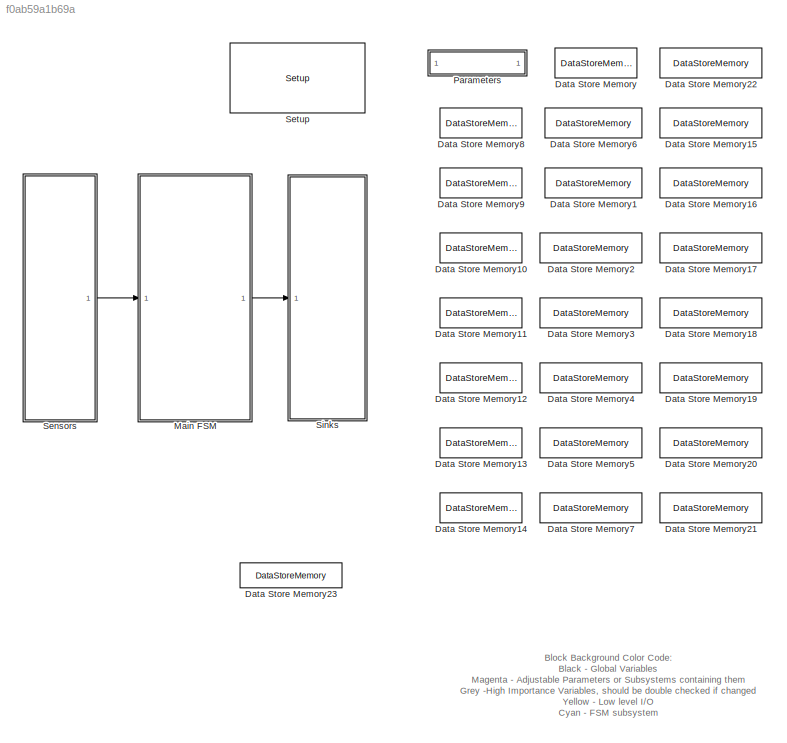
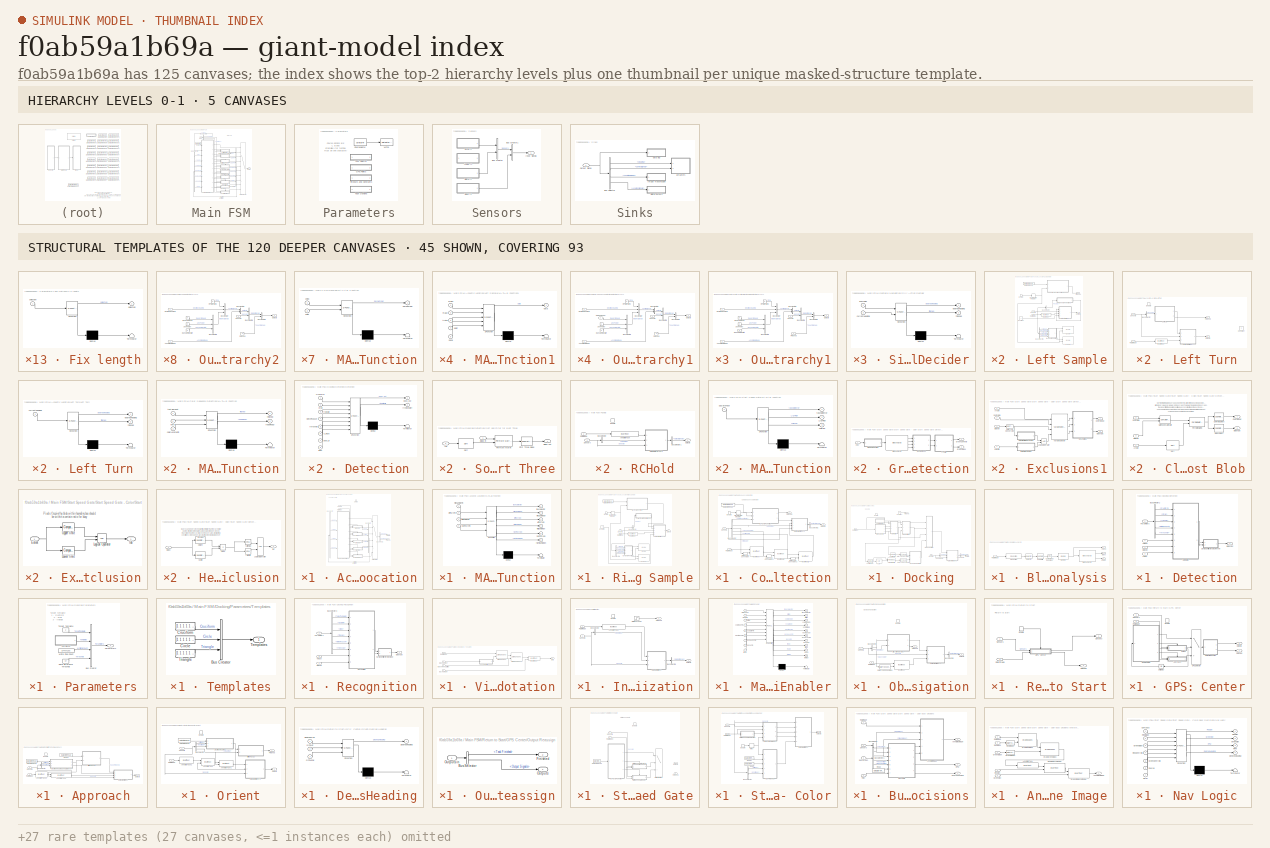
[diagram: thumbnail index - top-2 hierarchy levels (5 canvases) + 45 structural-template representatives of the remaining 120 canvases]
MODEL slx_f0ab59a1b69a
KIND model
BLOCK [DataStoreMemory] Data Store Memory
  DataStoreName = Course
  ReadBeforeWriteMsg = warning
  WriteAfterReadMsg = warning
  WriteAfterWriteMsg = warning
BLOCK [DataStoreMemory] Data Store Memory1
  DataStoreName = colorTask
  InitialValue = zeros(1,8)
  ReadBeforeWriteMsg = warning
  WriteAfterReadMsg = warning
  WriteAfterWriteMsg = warning
BLOCK [DataStoreMemory] Data Store Memory10
  DataStoreName = obstNavStartGPS
  InitialValue = zeros(1,2)
  ReadBeforeWriteMsg = warning
  WriteAfterReadMsg = warning
  WriteAfterWriteMsg = warning
BLOCK [DataStoreMemory] Data Store Memory11
  DataStoreName = obstNavEndGPS
  InitialValue = zeros(1,2)
  ReadBeforeWriteMsg = warning
  WriteAfterReadMsg = warning
  WriteAfterWriteMsg = warning
BLOCK [DataStoreMemory] Data Store Memory12
  DataStoreName = acouLocGPS
  InitialValue = zeros(1,2)
  ReadBeforeWriteMsg = warning
  WriteAfterReadMsg = warning
  WriteAfterWriteMsg = warning
BLOCK [DataStoreMemory] Data Store Memory13
  DataStoreName = dockGPS
  InitialValue = zeros(1,2)
  ReadBeforeWriteMsg = warning
  WriteAfterReadMsg = warning
  WriteAfterWriteMsg = warning
BLOCK [DataStoreMemory] Data Store Memory14
  DataStoreName = returnGPS
  InitialValue = zeros(1,2)
  ReadBeforeWriteMsg = warning
  WriteAfterReadMsg = warning
  WriteAfterWriteMsg = warning
BLOCK [DataStoreMemory] Data Store Memory15
  DataStoreName = ssGateTimeout
  ReadBeforeWriteMsg = warning
  WriteAfterReadMsg = warning
  WriteAfterWriteMsg = warning
BLOCK [DataStoreMemory] Data Store Memory16
  DataStoreName = colorTimeout
  ReadBeforeWriteMsg = warning
  WriteAfterReadMsg = warning
  WriteAfterWriteMsg = warning
BLOCK [DataStoreMemory] Data Store Memory17
  DataStoreName = obstNavTimeout
  ReadBeforeWriteMsg = warning
  WriteAfterReadMsg = warning
  WriteAfterWriteMsg = warning
BLOCK [DataStoreMemory] Data Store Memory18
  DataStoreName = acouLocTimeout
  ReadBeforeWriteMsg = warning
  WriteAfterReadMsg = warning
  WriteAfterWriteMsg = warning
BLOCK [DataStoreMemory] Data Store Memory19
  DataStoreName = dockTimeout
  ReadBeforeWriteMsg = warning
  WriteAfterReadMsg = warning
  WriteAfterWriteMsg = warning
BLOCK [DataStoreMemory] Data Store Memory2
  DataStoreName = ssGateTask
  InitialValue = zeros(1,8)
  ReadBeforeWriteMsg = warning
  WriteAfterReadMsg = warning
  WriteAfterWriteMsg = warning
BLOCK [DataStoreMemory] Data Store Memory20
  DataStoreName = GPSapproachSpeed
  ReadBeforeWriteMsg = warning
  WriteAfterReadMsg = warning
  WriteAfterWriteMsg = warning
BLOCK [DataStoreMemory] Data Store Memory21
  DataStoreName = GPSapproachDist
  ReadBeforeWriteMsg = warning
  WriteAfterReadMsg = warning
  WriteAfterWriteMsg = warning
BLOCK [DataStoreMemory] Data Store Memory22
  DataStoreName = testTimeout
  ReadBeforeWriteMsg = warning
  WriteAfterReadMsg = warning
  WriteAfterWriteMsg = warning
BLOCK [DataStoreMemory] Data Store Memory23
  DataStoreName = SpeedGateOption
  InitialValue = zeros(1,8)
  ReadBeforeWriteMsg = warning
  WriteAfterReadMsg = warning
  WriteAfterWriteMsg = warning
BLOCK [DataStoreMemory] Data Store Memory3
  DataStoreName = obstNavTask
  InitialValue = zeros(1,8)
  ReadBeforeWriteMsg = warning
  WriteAfterReadMsg = warning
  WriteAfterWriteMsg = warning
BLOCK [DataStoreMemory] Data Store Memory4
  DataStoreName = acouLocTask
  InitialValue = zeros(1,8)
  ReadBeforeWriteMsg = warning
  WriteAfterReadMsg = warning
  WriteAfterWriteMsg = warning
BLOCK [DataStoreMemory] Data Store Memory5
  DataStoreName = dockTask
  InitialValue = zeros(1,8)
  ReadBeforeWriteMsg = warning
  WriteAfterReadMsg = warning
  WriteAfterWriteMsg = warning
BLOCK [DataStoreMemory] Data Store Memory6
  DataStoreName = mainTask
  InitialValue = zeros(1,8)
  ReadBeforeWriteMsg = warning
  WriteAfterReadMsg = warning
  WriteAfterWriteMsg = warning
BLOCK [DataStoreMemory] Data Store Memory7
  DataStoreName = Return
  InitialValue = zeros(1,8)
  ReadBeforeWriteMsg = warning
  WriteAfterReadMsg = warning
  WriteAfterWriteMsg = warning
BLOCK [DataStoreMemory] Data Store Memory8
  DataStoreName = ssGateGPS
  InitialValue = zeros(1,2)
  ReadBeforeWriteMsg = warning
  WriteAfterReadMsg = warning
  WriteAfterWriteMsg = warning
BLOCK [DataStoreMemory] Data Store Memory9
  DataStoreName = colorGPS
  InitialValue = zeros(1,2)
  ReadBeforeWriteMsg = warning
  WriteAfterReadMsg = warning
  WriteAfterWriteMsg = warning
BLOCK [SubSystem] Main FSM
  Ports = [1, 1]
  RequestExecContextInheritance = off
BLOCK [SubSystem] Main FSM/Acoustic Location
  Ports = [2, 2, 1]
  RequestExecContextInheritance = off
  TreatAsAtomicUnit = on
BLOCK [BusCreator] Main FSM/Acoustic Location/Bus Creator
  DisplayOption = bar
  Ports = [4, 1]
BLOCK [BusSelector] Main FSM/Acoustic Location/Bus Selector
  OutputSignals = Mid S Fin,Left T Fin,Left S Fin,Right T Fin
  Ports = [1, 4]
BLOCK [BusSelector] Main FSM/Acoustic Location/Bus Selector1
  OutputSignals = Output Signals,Task Finished
  Ports = [1, 2]
BLOCK [EnablePort] Main FSM/Acoustic Location/Enable
  Ports = []
BLOCK [Outport] Main FSM/Acoustic Location/Finished
  IconDisplay = Port number
  Port = 2
BLOCK [SubSystem] Main FSM/Acoustic Location/Left Sample
  Ports = [2, 2, 1]
  RequestExecContextInheritance = off
  TreatAsAtomicUnit = on
BLOCK [BusSelector] Main FSM/Acoustic Location/Left Sample/Bus Selector
  OutputSignals = Serial In.Compass.Heading
  Ports = [1, 1]
BLOCK [BusSelector] Main FSM/Acoustic Location/Left Sample/Bus Selector1
  OutputSignals = Serial In.Arduino Messages.First Color,Serial In.Arduino Messages.Second Color,Serial In.Arduino Messages.Third Color,Serial In.Arduino Messages.Pinger Dist,Serial In.Arduino Messages.Pinger Angle  <repeated x3 — deduplicated; at blocks: Bus Selector1>
  Ports = [1, 5]
BLOCK [Constant] Main FSM/Acoustic Location/Left Sample/Constant
  Value = 0
  VectorParams1D = off
BLOCK [DataStoreRead] Main FSM/Acoustic Location/Left Sample/Data Store Read
  DataStoreName = testTimeout
  Ports = [0, 1]
BLOCK [DiscreteIntegrator] Main FSM/Acoustic Location/Left Sample/Discrete-Time Integrator
  ICPrevOutput = DiscIntNeverNeededParam
  ICPrevScaledInput = DiscIntNeverNeededParam
  Ports = [1, 1]
  SampleTime = 0.1
BLOCK [EnablePort] Main FSM/Acoustic Location/Left Sample/Enable
  Ports = [0, 1]
  ShowOutputPort = on
BLOCK [Outport] Main FSM/Acoustic Location/Left Sample/Finished
  IconDisplay = Port number
  Port = 2
BLOCK [Reference] Main FSM/Acoustic Location/Left Sample/Insert Text  REF=visiontextngfix/Insert Text
  Ports = [1, 1]
  SourceBlock = visiontextngfix/Insert Text
  SourceType = Insert Text
  antiAliased = on
  blockFontSize = 12
  dummyVar1 = 0
  dummyVar2 = 0
  dummyVar3 = 0
  dummyVar4 = 0
  fontFace = LucidaSansRegular
  getTextColorFrom = Specify via dialog
  getTextIntensityFrom = Specify via dialog
  getTextLocFrom = Specify via dialog
  getTextOpacityFrom = Specify via dialog
  imagePorts = One multidimensional signal
  inputType = Obsolete
  isInputTransposed = off
  textColor = [0 0 0]
  textIntensity = 0
  textLoc = [1 1]
  textOpacity = 1.0
  theText = 'Left Sample'
BLOCK [SubSystem] Main FSM/Acoustic Location/Left Sample/MATLAB Function
  ErrorFcn = Stateflow.Translate.translate
  PermitHierarchicalResolution = ExplicitOnly
  Ports = [2, 1]
  RequestExecContextInheritance = off
  SFBlockType = MATLAB Function
  TreatAsAtomicUnit = on
BLOCK [Demux] Main FSM/Acoustic Location/Left Sample/MATLAB Function/ Demux 
  Outputs = 1
  Ports = [1, 1]
BLOCK [S-Function] Main FSM/Acoustic Location/Left Sample/MATLAB Function/ SFunction 
  EnableBusSupport = on
  FunctionName = sf_sfun
  PortCounts = [2 2]
  Ports = [2, 2]
  Tag = Stateflow S-Function RoboBoatVU_2014_Athena 21
BLOCK [Terminator] Main FSM/Acoustic Location/Left Sample/MATLAB Function/ Terminator 
BLOCK [Outport] Main FSM/Acoustic Location/Left Sample/MATLAB Function/finished
  IconDisplay = Port number
BLOCK [Inport] Main FSM/Acoustic Location/Left Sample/MATLAB Function/testTimeout
  IconDisplay = Port number
BLOCK [Inport] Main FSM/Acoustic Location/Left Sample/MATLAB Function/time
  IconDisplay = Port number
  Port = 2
BLOCK [SubSystem] Main FSM/Acoustic Location/Left Sample/MATLAB Function1
  ErrorFcn = Stateflow.Translate.translate
  PermitHierarchicalResolution = ExplicitOnly
  Ports = [5, 1]
  RequestExecContextInheritance = off
  SFBlockType = MATLAB Function
  TreatAsAtomicUnit = on
BLOCK [Demux] Main FSM/Acoustic Location/Left Sample/MATLAB Function1/ Demux 
  Outputs = 1
  Ports = [1, 1]
BLOCK [S-Function] Main FSM/Acoustic Location/Left Sample/MATLAB Function1/ SFunction 
  EnableBusSupport = on
  FunctionName = sf_sfun
  PortCounts = [5 2]
  Ports = [5, 2]
  Tag = Stateflow S-Function RoboBoatVU_2014_Athena 26
BLOCK [Terminator] Main FSM/Acoustic Location/Left Sample/MATLAB Function1/ Terminator 
BLOCK [Outport] Main FSM/Acoustic Location/Left Sample/MATLAB Function1/data
  IconDisplay = Port number
BLOCK [Inport] Main FSM/Acoustic Location/Left Sample/MATLAB Function1/mag1
  IconDisplay = Port number
BLOCK [Inport] Main FSM/Acoustic Location/Left Sample/MATLAB Function1/mag2
  IconDisplay = Port number
  Port = 2
BLOCK [Inport] Main FSM/Acoustic Location/Left Sample/MATLAB Function1/pang
  IconDisplay = Port number
  Port = 5
BLOCK [Inport] Main FSM/Acoustic Location/Left Sample/MATLAB Function1/pdist
  IconDisplay = Port number
  Port = 4
BLOCK [Inport] Main FSM/Acoustic Location/Left Sample/MATLAB Function1/tratio
  IconDisplay = Port number
  Port = 3
BLOCK [SubSystem] Main FSM/Acoustic Location/Left Sample/MATLAB Function2
  ErrorFcn = Stateflow.Translate.translate
  PermitHierarchicalResolution = ExplicitOnly
  Ports = [1, 1]
  RequestExecContextInheritance = off
  SFBlockType = MATLAB Function
  TreatAsAtomicUnit = on
BLOCK [Demux] Main FSM/Acoustic Location/Left Sample/MATLAB Function2/ Demux 
  Outputs = 1
  Ports = [1, 1]
BLOCK [S-Function] Main FSM/Acoustic Location/Left Sample/MATLAB Function2/ SFunction 
  EnableBusSupport = on
  FunctionName = sf_sfun
  PortCounts = [1 2]
  Ports = [1, 2]
  Tag = Stateflow S-Function RoboBoatVU_2014_Athena 14
BLOCK [Terminator] Main FSM/Acoustic Location/Left Sample/MATLAB Function2/ Terminator 
BLOCK [Inport] Main FSM/Acoustic Location/Left Sample/MATLAB Function2/currentHeading
  IconDisplay = Port number
BLOCK [Outport] Main FSM/Acoustic Location/Left Sample/MATLAB Function2/desiredHeading
  IconDisplay = Port number
BLOCK [SubSystem] Main FSM/Acoustic Location/Left Sample/Output Heirarchy
  Ports = [4, 1]
  RequestExecContextInheritance = off
BLOCK [Inport] Main FSM/Acoustic Location/Left Sample/Output Heirarchy/Annotated Image
  IconDisplay = Port number
  Port = 3
BLOCK [BusCreator] Main FSM/Acoustic Location/Left Sample/Output Heirarchy/Bus Creator
  DisplayOption = bar
  Inputs = 3
  Ports = [3, 1]
BLOCK [BusCreator] Main FSM/Acoustic Location/Left Sample/Output Heirarchy/Bus Creator1
  DisplayOption = bar
  Inputs = 2
  Ports = [2, 1]
BLOCK [BusCreator] Main FSM/Acoustic Location/Left Sample/Output Heirarchy/Bus Creator2
  DisplayOption = bar
  Inputs = 3
  Ports = [3, 1]
BLOCK [BusCreator] Main FSM/Acoustic Location/Left Sample/Output Heirarchy/Bus Creator3
  DisplayOption = bar
  Inputs = 2
  Ports = [2, 1]
BLOCK [BusCreator] Main FSM/Acoustic Location/Left Sample/Output Heirarchy/Bus Creator4
  DisplayOption = bar
  Inputs = 2
  Ports = [2, 1]
BLOCK [Inport] Main FSM/Acoustic Location/Left Sample/Output Heirarchy/Desired Heading
  IconDisplay = Port number
BLOCK [Inport] Main FSM/Acoustic Location/Left Sample/Output Heirarchy/Due Sample Start
  IconDisplay = Port number
  Port = 4
BLOCK [Constant] Main FSM/Acoustic Location/Left Sample/Output Heirarchy/Finished
  Value = 0
BLOCK [Outport] Main FSM/Acoustic Location/Left Sample/Output Heirarchy/Outputs
  IconDisplay = Port number
BLOCK [Constant] Main FSM/Acoustic Location/Left Sample/Output Heirarchy/RPM Desired
  Value = 0
BLOCK [Constant] Main FSM/Acoustic Location/Left Sample/Output Heirarchy/Ready to Read
  Value = 0
BLOCK [Inport] Main FSM/Acoustic Location/Left Sample/Output Heirarchy/Sensors
  IconDisplay = Port number
  Port = 2
BLOCK [Constant] Main FSM/Acoustic Location/Left Sample/Output Heirarchy/Uno Power
  Value = 0
BLOCK [Outport] Main FSM/Acoustic Location/Left Sample/Outputs
  IconDisplay = Port number
BLOCK [Inport] Main FSM/Acoustic Location/Left Sample/RGB Image
  IconDisplay = Port number
  Port = 2
BLOCK [Reference] Main FSM/Acoustic Location/Left Sample/Scope   REF=slrtlib/Displays and
Logging/Scope 
  Ports = [2]
  SourceBlock = slrtlib/Displays and\nLogging/Scope
  SourceType = xpcscopeblock
  autorestart = off
  autostart = on
  dynamicfilemode = off
  filename = lsample2.dat
  formatstr = '%15.6f'
  grid = on
  interleave = 1
  maxwritefilesize = 512*1024^2
  mode = Lazy
  noprepostsamples = 0
  nosamples = 100
  scopeno = 4
  scopetype = File
  triggerlevel = 1
  triggermode = Signal triggering
  triggersample = 0
  triggerscope = 1
  triggersignal = 1
  triggerslope = Either
  trigsignalfromport = on
  viewmode = Graphical redraw
  writesize = 512
  ylimits = [0,0]
BLOCK [Reference] Main FSM/Acoustic Location/Left Sample/Scope 1  REF=slrtlib/Displays and
Logging/Scope 
  Ports = [2]
  SourceBlock = slrtlib/Displays and\nLogging/Scope
  SourceType = xpcscopeblock
  autorestart = off
  autostart = on
  dynamicfilemode = off
  filename = msample1.dat
  formatstr = '%15.6f'
  grid = on
  interleave = 1
  maxwritefilesize = 512*1024^2
  mode = Lazy
  noprepostsamples = 0
  nosamples = 100
  scopeno = 5
  scopetype = Host
  triggerlevel = 1
  triggermode = Signal triggering
  triggersample = 0
  triggerscope = 1
  triggersignal = 1
  triggerslope = Either
  trigsignalfromport = on
  viewmode = Graphical redraw
  writesize = 512
  ylimits = [0,0]
BLOCK [Inport] Main FSM/Acoustic Location/Left Sample/Sensors
  IconDisplay = Port number
BLOCK [SubSystem] Main FSM/Acoustic Location/Left Turn
  Ports = [2, 2, 1]
  RequestExecContextInheritance = off
  TreatAsAtomicUnit = on
BLOCK [BusSelector] Main FSM/Acoustic Location/Left Turn/Bus Selector
  OutputSignals = Serial In.Compass.Heading
  Ports = [1, 1]
BLOCK [Constant] Main FSM/Acoustic Location/Left Turn/Constant
  Commented = on
BLOCK [EnablePort] Main FSM/Acoustic Location/Left Turn/Enable
  Ports = []
BLOCK [Outport] Main FSM/Acoustic Location/Left Turn/Finished
  IconDisplay = Port number
  Port = 2
BLOCK [Reference] Main FSM/Acoustic Location/Left Turn/Insert Text  REF=visiontextngfix/Insert Text
  Ports = [1, 1]
  SourceBlock = visiontextngfix/Insert Text
  SourceType = Insert Text
  antiAliased = on
  blockFontSize = 12
  dummyVar1 = 0
  dummyVar2 = 0
  dummyVar3 = 0
  dummyVar4 = 0
  fontFace = LucidaSansRegular
  getTextColorFrom = Specify via dialog
  getTextIntensityFrom = Specify via dialog
  getTextLocFrom = Specify via dialog
  getTextOpacityFrom = Specify via dialog
  imagePorts = One multidimensional signal
  inputType = Obsolete
  isInputTransposed = off
  textColor = [0 0 0]
  textIntensity = 0
  textLoc = [1 1]
  textOpacity = 1.0
  theText = 'Left Turn'
BLOCK [SubSystem] Main FSM/Acoustic Location/Left Turn/Left Turn
  ErrorFcn = Stateflow.Translate.translate
  PermitHierarchicalResolution = ExplicitOnly
  Ports = [1, 2]
  RequestExecContextInheritance = off
  SFBlockType = MATLAB Function
  TreatAsAtomicUnit = on
BLOCK [Demux] Main FSM/Acoustic Location/Left Turn/Left Turn/ Demux 
  Outputs = 1
  Ports = [1, 1]
BLOCK [S-Function] Main FSM/Acoustic Location/Left Turn/Left Turn/ SFunction 
  EnableBusSupport = on
  FunctionName = sf_sfun
  PortCounts = [1 3]
  Ports = [1, 3]
  Tag = Stateflow S-Function RoboBoatVU_2014_Athena 23
BLOCK [Terminator] Main FSM/Acoustic Location/Left Turn/Left Turn/ Terminator 
BLOCK [Inport] Main FSM/Acoustic Location/Left Turn/Left Turn/currentHeading
  IconDisplay = Port number
BLOCK [Outport] Main FSM/Acoustic Location/Left Turn/Left Turn/desiredHeading
  IconDisplay = Port number
BLOCK [Outport] Main FSM/Acoustic Location/Left Turn/Left Turn/finished
  IconDisplay = Port number
  Port = 2
BLOCK [SubSystem] Main FSM/Acoustic Location/Left Turn/Output Heirarchy
  Ports = [3, 1]
  RequestExecContextInheritance = off
BLOCK [Inport] Main FSM/Acoustic Location/Left Turn/Output Heirarchy/Annotated Image
  IconDisplay = Port number
  Port = 3
BLOCK [BusCreator] Main FSM/Acoustic Location/Left Turn/Output Heirarchy/Bus Creator
  DisplayOption = bar
  Inputs = 3
  Ports = [3, 1]
BLOCK [BusCreator] Main FSM/Acoustic Location/Left Turn/Output Heirarchy/Bus Creator1
  DisplayOption = bar
  Inputs = 2
  Ports = [2, 1]
BLOCK [BusCreator] Main FSM/Acoustic Location/Left Turn/Output Heirarchy/Bus Creator2
  DisplayOption = bar
  Inputs = 3
  Ports = [3, 1]
BLOCK [BusCreator] Main FSM/Acoustic Location/Left Turn/Output Heirarchy/Bus Creator3
  DisplayOption = bar
  Inputs = 2
  Ports = [2, 1]
BLOCK [BusCreator] Main FSM/Acoustic Location/Left Turn/Output Heirarchy/Bus Creator4
  DisplayOption = bar
  Inputs = 2
  Ports = [2, 1]
BLOCK [Inport] Main FSM/Acoustic Location/Left Turn/Output Heirarchy/Desired Heading
  IconDisplay = Port number
BLOCK [Constant] Main FSM/Acoustic Location/Left Turn/Output Heirarchy/Due Sample Start
  Value = 0
BLOCK [Constant] Main FSM/Acoustic Location/Left Turn/Output Heirarchy/Finished
  Value = 0
BLOCK [Outport] Main FSM/Acoustic Location/Left Turn/Output Heirarchy/Outputs
  IconDisplay = Port number
BLOCK [Constant] Main FSM/Acoustic Location/Left Turn/Output Heirarchy/RPM Desired
  Value = 0
BLOCK [Constant] Main FSM/Acoustic Location/Left Turn/Output Heirarchy/Ready to Read
  Value = 0
BLOCK [Inport] Main FSM/Acoustic Location/Left Turn/Output Heirarchy/Sensors
  IconDisplay = Port number
  Port = 2
BLOCK [Constant] Main FSM/Acoustic Location/Left Turn/Output Heirarchy/Uno Power
  Value = 0
BLOCK [Outport] Main FSM/Acoustic Location/Left Turn/Outputs
  IconDisplay = Port number
BLOCK [Inport] Main FSM/Acoustic Location/Left Turn/RGB Image
  IconDisplay = Port number
  Port = 2
BLOCK [Inport] Main FSM/Acoustic Location/Left Turn/Sensors
  IconDisplay = Port number
BLOCK [SubSystem] Main FSM/Acoustic Location/MATLAB Function
  ErrorFcn = Stateflow.Translate.translate
  PermitHierarchicalResolution = ExplicitOnly
  Ports = [4, 6]
  RequestExecContextInheritance = off
  SFBlockType = MATLAB Function
  TreatAsAtomicUnit = on
BLOCK [Demux] Main FSM/Acoustic Location/MATLAB Function/ Demux 
  Outputs = 1
  Ports = [1, 1]
BLOCK [S-Function] Main FSM/Acoustic Location/MATLAB Function/ SFunction 
  EnableBusSupport = on
  FunctionName = sf_sfun
  PortCounts = [4 7]
  Ports = [4, 7]
  Tag = Stateflow S-Function RoboBoatVU_2014_Athena 19
BLOCK [Terminator] Main FSM/Acoustic Location/MATLAB Function/ Terminator 
BLOCK [Outport] Main FSM/Acoustic Location/MATLAB Function/leftSampleEn
  IconDisplay = Port number
  Port = 4
BLOCK [Inport] Main FSM/Acoustic Location/MATLAB Function/leftSampleFin
  IconDisplay = Port number
  Port = 3
BLOCK [Outport] Main FSM/Acoustic Location/MATLAB Function/leftTurnEn
  IconDisplay = Port number
  Port = 3
BLOCK [Inport] Main FSM/Acoustic Location/MATLAB Function/leftTurnFin
  IconDisplay = Port number
  Port = 2
BLOCK [Outport] Main FSM/Acoustic Location/MATLAB Function/midSampleEn
  IconDisplay = Port number
  Port = 2
BLOCK [Inport] Main FSM/Acoustic Location/MATLAB Function/midSampleFin
  IconDisplay = Port number
BLOCK [Outport] Main FSM/Acoustic Location/MATLAB Function/rightSampleEn
  IconDisplay = Port number
  Port = 6
BLOCK [Outport] Main FSM/Acoustic Location/MATLAB Function/rightTurnEn
  IconDisplay = Port number
  Port = 5
BLOCK [Inport] Main FSM/Acoustic Location/MATLAB Function/rightTurnFin
  IconDisplay = Port number
  Port = 4
BLOCK [Outport] Main FSM/Acoustic Location/MATLAB Function/taskSelector
  IconDisplay = Port number
BLOCK [SubSystem] Main FSM/Acoustic Location/Mid Sample
  Ports = [2, 2, 1]
  RequestExecContextInheritance = off
  TreatAsAtomicUnit = on
BLOCK [BusSelector] Main FSM/Acoustic Location/Mid Sample/Bus Selector
  OutputSignals = Serial In.Compass.Heading
  Ports = [1, 1]
BLOCK [BusSelector] Main FSM/Acoustic Location/Mid Sample/Bus Selector1
  Ports = [1, 5]
BLOCK [Constant] Main FSM/Acoustic Location/Mid Sample/Constant
  Value = 0
BLOCK [DataStoreRead] Main FSM/Acoustic Location/Mid Sample/Data Store Read
  DataStoreName = testTimeout
  Ports = [0, 1]
BLOCK [DiscreteIntegrator] Main FSM/Acoustic Location/Mid Sample/Discrete-Time Integrator
  ICPrevOutput = DiscIntNeverNeededParam
  ICPrevScaledInput = DiscIntNeverNeededParam
  Ports = [1, 1]
  SampleTime = 0.1
BLOCK [EnablePort] Main FSM/Acoustic Location/Mid Sample/Enable
  Ports = [0, 1]
  ShowOutputPort = on
BLOCK [Outport] Main FSM/Acoustic Location/Mid Sample/Finished
  IconDisplay = Port number
  Port = 2
BLOCK [Reference] Main FSM/Acoustic Location/Mid Sample/Insert Text  REF=visiontextngfix/Insert Text
  Ports = [1, 1]
  SourceBlock = visiontextngfix/Insert Text
  SourceType = Insert Text
  antiAliased = on
  blockFontSize = 12
  dummyVar1 = 0
  dummyVar2 = 0
  dummyVar3 = 0
  dummyVar4 = 0
  fontFace = LucidaSansRegular
  getTextColorFrom = Specify via dialog
  getTextIntensityFrom = Specify via dialog
  getTextLocFrom = Specify via dialog
  getTextOpacityFrom = Specify via dialog
  imagePorts = One multidimensional signal
  inputType = Obsolete
  isInputTransposed = off
  textColor = [0 0 0]
  textIntensity = 0
  textLoc = [1 1]
  textOpacity = 1.0
  theText = 'Mid Sample'
BLOCK [SubSystem] Main FSM/Acoustic Location/Mid Sample/MATLAB Function
  ErrorFcn = Stateflow.Translate.translate
  PermitHierarchicalResolution = ExplicitOnly
  Ports = [2, 1]
  RequestExecContextInheritance = off
  SFBlockType = MATLAB Function
  TreatAsAtomicUnit = on
BLOCK [Demux] Main FSM/Acoustic Location/Mid Sample/MATLAB Function/ Demux 
  Outputs = 1
  Ports = [1, 1]
BLOCK [S-Function] Main FSM/Acoustic Location/Mid Sample/MATLAB Function/ SFunction 
  EnableBusSupport = on
  FunctionName = sf_sfun
  PortCounts = [2 2]
  Ports = [2, 2]
  Tag = Stateflow S-Function RoboBoatVU_2014_Athena 20
BLOCK [Terminator] Main FSM/Acoustic Location/Mid Sample/MATLAB Function/ Terminator 
BLOCK [Outport] Main FSM/Acoustic Location/Mid Sample/MATLAB Function/finished
  IconDisplay = Port number
BLOCK [Inport] Main FSM/Acoustic Location/Mid Sample/MATLAB Function/testTimeout
  IconDisplay = Port number
BLOCK [Inport] Main FSM/Acoustic Location/Mid Sample/MATLAB Function/time
  IconDisplay = Port number
  Port = 2
BLOCK [SubSystem] Main FSM/Acoustic Location/Mid Sample/MATLAB Function1
  ErrorFcn = Stateflow.Translate.translate
  PermitHierarchicalResolution = ExplicitOnly
  Ports = [5, 1]
  RequestExecContextInheritance = off
  SFBlockType = MATLAB Function
  TreatAsAtomicUnit = on
BLOCK [Demux] Main FSM/Acoustic Location/Mid Sample/MATLAB Function1/ Demux 
  Outputs = 1
  Ports = [1, 1]
BLOCK [S-Function] Main FSM/Acoustic Location/Mid Sample/MATLAB Function1/ SFunction 
  EnableBusSupport = on
  FunctionName = sf_sfun
  PortCounts = [5 2]
  Ports = [5, 2]
  Tag = Stateflow S-Function RoboBoatVU_2014_Athena 25
BLOCK [Terminator] Main FSM/Acoustic Location/Mid Sample/MATLAB Function1/ Terminator 
BLOCK [Outport] Main FSM/Acoustic Location/Mid Sample/MATLAB Function1/data
  IconDisplay = Port number
BLOCK [Inport] Main FSM/Acoustic Location/Mid Sample/MATLAB Function1/mag1
  IconDisplay = Port number
BLOCK [Inport] Main FSM/Acoustic Location/Mid Sample/MATLAB Function1/mag2
  IconDisplay = Port number
  Port = 2
BLOCK [Inport] Main FSM/Acoustic Location/Mid Sample/MATLAB Function1/pang
  IconDisplay = Port number
  Port = 5
BLOCK [Inport] Main FSM/Acoustic Location/Mid Sample/MATLAB Function1/pdist
  IconDisplay = Port number
  Port = 4
BLOCK [Inport] Main FSM/Acoustic Location/Mid Sample/MATLAB Function1/tratio
  IconDisplay = Port number
  Port = 3
BLOCK [SubSystem] Main FSM/Acoustic Location/Mid Sample/MATLAB Function2
  ErrorFcn = Stateflow.Translate.translate
  PermitHierarchicalResolution = ExplicitOnly
  Ports = [1, 1]
  RequestExecContextInheritance = off
  SFBlockType = MATLAB Function
  TreatAsAtomicUnit = on
BLOCK [Demux] Main FSM/Acoustic Location/Mid Sample/MATLAB Function2/ Demux 
  Outputs = 1
  Ports = [1, 1]
BLOCK [S-Function] Main FSM/Acoustic Location/Mid Sample/MATLAB Function2/ SFunction 
  EnableBusSupport = on
  FunctionName = sf_sfun
  PortCounts = [1 2]
  Ports = [1, 2]
  Tag = Stateflow S-Function RoboBoatVU_2014_Athena 13
BLOCK [Terminator] Main FSM/Acoustic Location/Mid Sample/MATLAB Function2/ Terminator 
BLOCK [Inport] Main FSM/Acoustic Location/Mid Sample/MATLAB Function2/currentHeading
  IconDisplay = Port number
BLOCK [Outport] Main FSM/Acoustic Location/Mid Sample/MATLAB Function2/desiredHeading
  IconDisplay = Port number
BLOCK [SubSystem] Main FSM/Acoustic Location/Mid Sample/Output Heirarchy
  Ports = [4, 1]
  RequestExecContextInheritance = off
BLOCK [Inport] Main FSM/Acoustic Location/Mid Sample/Output Heirarchy/Annotated Image
  IconDisplay = Port number
  Port = 3
BLOCK [BusCreator] Main FSM/Acoustic Location/Mid Sample/Output Heirarchy/Bus Creator
  DisplayOption = bar
  Inputs = 3
  Ports = [3, 1]
BLOCK [BusCreator] Main FSM/Acoustic Location/Mid Sample/Output Heirarchy/Bus Creator1
  DisplayOption = bar
  Inputs = 2
  Ports = [2, 1]
BLOCK [BusCreator] Main FSM/Acoustic Location/Mid Sample/Output Heirarchy/Bus Creator2
  DisplayOption = bar
  Inputs = 3
  Ports = [3, 1]
BLOCK [BusCreator] Main FSM/Acoustic Location/Mid Sample/Output Heirarchy/Bus Creator3
  DisplayOption = bar
  Inputs = 2
  Ports = [2, 1]
BLOCK [BusCreator] Main FSM/Acoustic Location/Mid Sample/Output Heirarchy/Bus Creator4
  DisplayOption = bar
  Inputs = 2
  Ports = [2, 1]
BLOCK [Inport] Main FSM/Acoustic Location/Mid Sample/Output Heirarchy/Desired Heading
  IconDisplay = Port number
BLOCK [Inport] Main FSM/Acoustic Location/Mid Sample/Output Heirarchy/Due Sample Start
  IconDisplay = Port number
  Port = 4
BLOCK [Constant] Main FSM/Acoustic Location/Mid Sample/Output Heirarchy/Finished
  Value = 0
BLOCK [Outport] Main FSM/Acoustic Location/Mid Sample/Output Heirarchy/Outputs
  IconDisplay = Port number
BLOCK [Constant] Main FSM/Acoustic Location/Mid Sample/Output Heirarchy/RPM Desired
  Value = 0
BLOCK [Constant] Main FSM/Acoustic Location/Mid Sample/Output Heirarchy/Ready to Read
  Value = 0
BLOCK [Inport] Main FSM/Acoustic Location/Mid Sample/Output Heirarchy/Sensors
  IconDisplay = Port number
  Port = 2
BLOCK [Constant] Main FSM/Acoustic Location/Mid Sample/Output Heirarchy/Uno Power
  Value = 0
BLOCK [Outport] Main FSM/Acoustic Location/Mid Sample/Outputs
  IconDisplay = Port number
BLOCK [Inport] Main FSM/Acoustic Location/Mid Sample/RGB Image
  IconDisplay = Port number
  Port = 2
BLOCK [Reference] Main FSM/Acoustic Location/Mid Sample/Scope   REF=slrtlib/Displays and
Logging/Scope 
  Ports = [2]
  SourceBlock = slrtlib/Displays and\nLogging/Scope
  SourceType = xpcscopeblock
  autorestart = off
  autostart = on
  dynamicfilemode = off
  filename = msample2.dat
  formatstr = '%15.6f'
  grid = on
  interleave = 1
  maxwritefilesize = 512*1024^2
  mode = Lazy
  noprepostsamples = 0
  nosamples = 100
  scopeno = 2
  scopetype = File
  triggerlevel = 1
  triggermode = Signal triggering
  triggersample = 0
  triggerscope = 1
  triggersignal = 1
  triggerslope = Either
  trigsignalfromport = on
  viewmode = Graphical redraw
  writesize = 512
  ylimits = [0,0]
BLOCK [Reference] Main FSM/Acoustic Location/Mid Sample/Scope 1  REF=slrtlib/Displays and
Logging/Scope 
  Ports = [2]
  SourceBlock = slrtlib/Displays and\nLogging/Scope
  SourceType = xpcscopeblock
  autorestart = off
  autostart = on
  dynamicfilemode = off
  filename = msample1.dat
  formatstr = '%15.6f'
  grid = on
  interleave = 1
  maxwritefilesize = 512*1024^2
  mode = Lazy
  noprepostsamples = 0
  nosamples = 100
  scopeno = 3
  scopetype = Host
  triggerlevel = 1
  triggermode = Signal triggering
  triggersample = 0
  triggerscope = 1
  triggersignal = 1
  triggerslope = Either
  trigsignalfromport = on
  viewmode = Graphical redraw
  writesize = 512
  ylimits = [0,0]
BLOCK [Inport] Main FSM/Acoustic Location/Mid Sample/Sensors
  IconDisplay = Port number
BLOCK [MultiPortSwitch] Main FSM/Acoustic Location/Multiport Switch
  InputSameDT = off
  Inputs = 5
  Ports = [6, 1]
  SaturateOnIntegerOverflow = off
BLOCK [Outport] Main FSM/Acoustic Location/Outputs
  IconDisplay = Port number
BLOCK [Inport] Main FSM/Acoustic Location/RGB image
  IconDisplay = Port number
  Port = 2
BLOCK [SubSystem] Main FSM/Acoustic Location/Right Sample
  Ports = [2, 1, 1]
  RequestExecContextInheritance = off
  TreatAsAtomicUnit = on
BLOCK [BusSelector] Main FSM/Acoustic Location/Right Sample/Bus Selector
  OutputSignals = Serial In.Compass.Heading
  Ports = [1, 1]
BLOCK [BusSelector] Main FSM/Acoustic Location/Right Sample/Bus Selector1
  Ports = [1, 5]
BLOCK [Constant] Main FSM/Acoustic Location/Right Sample/Constant
  Value = 0
BLOCK [DataStoreRead] Main FSM/Acoustic Location/Right Sample/Data Store Read
  DataStoreName = testTimeout
  Ports = [0, 1]
BLOCK [DiscreteIntegrator] Main FSM/Acoustic Location/Right Sample/Discrete-Time Integrator
  ICPrevOutput = DiscIntNeverNeededParam
  ICPrevScaledInput = DiscIntNeverNeededParam
  Ports = [1, 1]
  SampleTime = 0.1
BLOCK [EnablePort] Main FSM/Acoustic Location/Right Sample/Enable
  Ports = [0, 1]
  ShowOutputPort = on
BLOCK [Reference] Main FSM/Acoustic Location/Right Sample/Insert Text  REF=visiontextngfix/Insert Text
  Ports = [1, 1]
  SourceBlock = visiontextngfix/Insert Text
  SourceType = Insert Text
  antiAliased = on
  blockFontSize = 12
  dummyVar1 = 0
  dummyVar2 = 0
  dummyVar3 = 0
  dummyVar4 = 0
  fontFace = LucidaSansRegular
  getTextColorFrom = Specify via dialog
  getTextIntensityFrom = Specify via dialog
  getTextLocFrom = Specify via dialog
  getTextOpacityFrom = Specify via dialog
  imagePorts = One multidimensional signal
  inputType = Obsolete
  isInputTransposed = off
  textColor = [0 0 0]
  textIntensity = 0
  textLoc = [1 1]
  textOpacity = 1.0
  theText = 'Right Sample'
BLOCK [SubSystem] Main FSM/Acoustic Location/Right Sample/MATLAB Function
  ErrorFcn = Stateflow.Translate.translate
  PermitHierarchicalResolution = ExplicitOnly
  Ports = [2, 1]
  RequestExecContextInheritance = off
  SFBlockType = MATLAB Function
  TreatAsAtomicUnit = on
BLOCK [Demux] Main FSM/Acoustic Location/Right Sample/MATLAB Function/ Demux 
  Outputs = 1
  Ports = [1, 1]
BLOCK [S-Function] Main FSM/Acoustic Location/Right Sample/MATLAB Function/ SFunction 
  EnableBusSupport = on
  FunctionName = sf_sfun
  PortCounts = [2 2]
  Ports = [2, 2]
  Tag = Stateflow S-Function RoboBoatVU_2014_Athena 22
BLOCK [Terminator] Main FSM/Acoustic Location/Right Sample/MATLAB Function/ Terminator 
BLOCK [Outport] Main FSM/Acoustic Location/Right Sample/MATLAB Function/finished
  IconDisplay = Port number
BLOCK [Inport] Main FSM/Acoustic Location/Right Sample/MATLAB Function/testTimeout
  IconDisplay = Port number
BLOCK [Inport] Main FSM/Acoustic Location/Right Sample/MATLAB Function/time
  IconDisplay = Port number
  Port = 2
BLOCK [SubSystem] Main FSM/Acoustic Location/Right Sample/MATLAB Function1
  ErrorFcn = Stateflow.Translate.translate
  PermitHierarchicalResolution = ExplicitOnly
  Ports = [5, 1]
  RequestExecContextInheritance = off
  SFBlockType = MATLAB Function
  TreatAsAtomicUnit = on
BLOCK [Demux] Main FSM/Acoustic Location/Right Sample/MATLAB Function1/ Demux 
  Outputs = 1
  Ports = [1, 1]
BLOCK [S-Function] Main FSM/Acoustic Location/Right Sample/MATLAB Function1/ SFunction 
  EnableBusSupport = on
  FunctionName = sf_sfun
  PortCounts = [5 2]
  Ports = [5, 2]
  Tag = Stateflow S-Function RoboBoatVU_2014_Athena 27
BLOCK [Terminator] Main FSM/Acoustic Location/Right Sample/MATLAB Function1/ Terminator 
BLOCK [Outport] Main FSM/Acoustic Location/Right Sample/MATLAB Function1/data
  IconDisplay = Port number
BLOCK [Inport] Main FSM/Acoustic Location/Right Sample/MATLAB Function1/mag1
  IconDisplay = Port number
BLOCK [Inport] Main FSM/Acoustic Location/Right Sample/MATLAB Function1/mag2
  IconDisplay = Port number
  Port = 2
BLOCK [Inport] Main FSM/Acoustic Location/Right Sample/MATLAB Function1/pang
  IconDisplay = Port number
  Port = 5
BLOCK [Inport] Main FSM/Acoustic Location/Right Sample/MATLAB Function1/pdist
  IconDisplay = Port number
  Port = 4
BLOCK [Inport] Main FSM/Acoustic Location/Right Sample/MATLAB Function1/tratio
  IconDisplay = Port number
  Port = 3
BLOCK [SubSystem] Main FSM/Acoustic Location/Right Sample/MATLAB Function2
  ErrorFcn = Stateflow.Translate.translate
  PermitHierarchicalResolution = ExplicitOnly
  Ports = [1, 1]
  RequestExecContextInheritance = off
  SFBlockType = MATLAB Function
  TreatAsAtomicUnit = on
BLOCK [Demux] Main FSM/Acoustic Location/Right Sample/MATLAB Function2/ Demux 
  Outputs = 1
  Ports = [1, 1]
BLOCK [S-Function] Main FSM/Acoustic Location/Right Sample/MATLAB Function2/ SFunction 
  EnableBusSupport = on
  FunctionName = sf_sfun
  PortCounts = [1 2]
  Ports = [1, 2]
  Tag = Stateflow S-Function RoboBoatVU_2014_Athena 15
BLOCK [Terminator] Main FSM/Acoustic Location/Right Sample/MATLAB Function2/ Terminator 
BLOCK [Inport] Main FSM/Acoustic Location/Right Sample/MATLAB Function2/currentHeading
  IconDisplay = Port number
BLOCK [Outport] Main FSM/Acoustic Location/Right Sample/MATLAB Function2/desiredHeading
  IconDisplay = Port number
BLOCK [SubSystem] Main FSM/Acoustic Location/Right Sample/Output Heirarchy1
  Ports = [5, 1]
  RequestExecContextInheritance = off
BLOCK [Inport] Main FSM/Acoustic Location/Right Sample/Output Heirarchy1/Annotated Image
  IconDisplay = Port number
  Port = 4
BLOCK [BusCreator] Main FSM/Acoustic Location/Right Sample/Output Heirarchy1/Bus Creator
  DisplayOption = bar
  Inputs = 3
  Ports = [3, 1]
BLOCK [BusCreator] Main FSM/Acoustic Location/Right Sample/Output Heirarchy1/Bus Creator1
  DisplayOption = bar
  Inputs = 2
  Ports = [2, 1]
BLOCK [BusCreator] Main FSM/Acoustic Location/Right Sample/Output Heirarchy1/Bus Creator2
  DisplayOption = bar
  Inputs = 3
  Ports = [3, 1]
BLOCK [BusCreator] Main FSM/Acoustic Location/Right Sample/Output Heirarchy1/Bus Creator3
  DisplayOption = bar
  Inputs = 2
  Ports = [2, 1]
BLOCK [BusCreator] Main FSM/Acoustic Location/Right Sample/Output Heirarchy1/Bus Creator4
  DisplayOption = bar
  Inputs = 2
  Ports = [2, 1]
BLOCK [Inport] Main FSM/Acoustic Location/Right Sample/Output Heirarchy1/Desired Heading
  IconDisplay = Port number
  Port = 2
BLOCK [Inport] Main FSM/Acoustic Location/Right Sample/Output Heirarchy1/Due Sample Start
  IconDisplay = Port number
  Port = 5
BLOCK [Inport] Main FSM/Acoustic Location/Right Sample/Output Heirarchy1/Finished
  IconDisplay = Port number
BLOCK [Outport] Main FSM/Acoustic Location/Right Sample/Output Heirarchy1/Outputs
  IconDisplay = Port number
BLOCK [Constant] Main FSM/Acoustic Location/Right Sample/Output Heirarchy1/RPM Desired
  Value = 0
BLOCK [Constant] Main FSM/Acoustic Location/Right Sample/Output Heirarchy1/Ready to Read
  Value = 0
BLOCK [Inport] Main FSM/Acoustic Location/Right Sample/Output Heirarchy1/Sensors
  IconDisplay = Port number
  Port = 3
BLOCK [Constant] Main FSM/Acoustic Location/Right Sample/Output Heirarchy1/Uno Power
  Value = 0
BLOCK [Outport] Main FSM/Acoustic Location/Right Sample/Outputs
  IconDisplay = Port number
BLOCK [Inport] Main FSM/Acoustic Location/Right Sample/RGB Image
  IconDisplay = Port number
  Port = 2
BLOCK [Reference] Main FSM/Acoustic Location/Right Sample/Scope   REF=slrtlib/Displays and
Logging/Scope 
  Ports = [2]
  SourceBlock = slrtlib/Displays and\nLogging/Scope
  SourceType = xpcscopeblock
  autorestart = off
  autostart = on
  dynamicfilemode = off
  filename = rsample3.dat
  formatstr = '%15.6f'
  grid = on
  interleave = 1
  maxwritefilesize = 512*1024^2
  mode = Lazy
  noprepostsamples = 0
  nosamples = 100
  scopeno = 6
  scopetype = File
  triggerlevel = 1
  triggermode = Signal triggering
  triggersample = 0
  triggerscope = 1
  triggersignal = 1
  triggerslope = Either
  trigsignalfromport = on
  viewmode = Graphical redraw
  writesize = 512
  ylimits = [0,0]
BLOCK [Reference] Main FSM/Acoustic Location/Right Sample/Scope 1  REF=slrtlib/Displays and
Logging/Scope 
  Ports = [2]
  SourceBlock = slrtlib/Displays and\nLogging/Scope
  SourceType = xpcscopeblock
  autorestart = off
  autostart = on
  dynamicfilemode = off
  filename = msample1.dat
  formatstr = '%15.6f'
  grid = on
  interleave = 1
  maxwritefilesize = 512*1024^2
  mode = Lazy
  noprepostsamples = 0
  nosamples = 100
  scopeno = 7
  scopetype = Host
  triggerlevel = 1
  triggermode = Signal triggering
  triggersample = 0
  triggerscope = 1
  triggersignal = 1
  triggerslope = Either
  trigsignalfromport = on
  viewmode = Graphical redraw
  writesize = 512
  ylimits = [0,0]
BLOCK [Inport] Main FSM/Acoustic Location/Right Sample/Sensors
  IconDisplay = Port number
BLOCK [SubSystem] Main FSM/Acoustic Location/Right Turn
  Ports = [2, 2, 1]
  RequestExecContextInheritance = off
  TreatAsAtomicUnit = on
BLOCK [BusSelector] Main FSM/Acoustic Location/Right Turn/Bus Selector
  OutputSignals = Serial In.Compass.Heading
  Ports = [1, 1]
BLOCK [Constant] Main FSM/Acoustic Location/Right Turn/Constant
  Commented = on
BLOCK [EnablePort] Main FSM/Acoustic Location/Right Turn/Enable
  Ports = []
BLOCK [Outport] Main FSM/Acoustic Location/Right Turn/Finished
  IconDisplay = Port number
  Port = 2
BLOCK [Reference] Main FSM/Acoustic Location/Right Turn/Insert Text  REF=visiontextngfix/Insert Text
  Ports = [1, 1]
  SourceBlock = visiontextngfix/Insert Text
  SourceType = Insert Text
  antiAliased = on
  blockFontSize = 12
  dummyVar1 = 0
  dummyVar2 = 0
  dummyVar3 = 0
  dummyVar4 = 0
  fontFace = LucidaSansRegular
  getTextColorFrom = Specify via dialog
  getTextIntensityFrom = Specify via dialog
  getTextLocFrom = Specify via dialog
  getTextOpacityFrom = Specify via dialog
  imagePorts = One multidimensional signal
  inputType = Obsolete
  isInputTransposed = off
  textColor = [0 0 0]
  textIntensity = 0
  textLoc = [1 1]
  textOpacity = 1.0
  theText = 'Right Turn'
BLOCK [SubSystem] Main FSM/Acoustic Location/Right Turn/Output Heirarchy
  Ports = [3, 1]
  RequestExecContextInheritance = off
BLOCK [Inport] Main FSM/Acoustic Location/Right Turn/Output Heirarchy/Annotated Image
  IconDisplay = Port number
  Port = 3
BLOCK [BusCreator] Main FSM/Acoustic Location/Right Turn/Output Heirarchy/Bus Creator
  DisplayOption = bar
  Inputs = 3
  Ports = [3, 1]
BLOCK [BusCreator] Main FSM/Acoustic Location/Right Turn/Output Heirarchy/Bus Creator1
  DisplayOption = bar
  Inputs = 2
  Ports = [2, 1]
BLOCK [BusCreator] Main FSM/Acoustic Location/Right Turn/Output Heirarchy/Bus Creator2
  DisplayOption = bar
  Inputs = 3
  Ports = [3, 1]
BLOCK [BusCreator] Main FSM/Acoustic Location/Right Turn/Output Heirarchy/Bus Creator3
  DisplayOption = bar
  Inputs = 2
  Ports = [2, 1]
BLOCK [BusCreator] Main FSM/Acoustic Location/Right Turn/Output Heirarchy/Bus Creator4
  DisplayOption = bar
  Inputs = 2
  Ports = [2, 1]
BLOCK [Inport] Main FSM/Acoustic Location/Right Turn/Output Heirarchy/Desired Heading
  IconDisplay = Port number
BLOCK [Constant] Main FSM/Acoustic Location/Right Turn/Output Heirarchy/Due Sample Start
  Value = 0
BLOCK [Constant] Main FSM/Acoustic Location/Right Turn/Output Heirarchy/Finished
  Value = 0
BLOCK [Outport] Main FSM/Acoustic Location/Right Turn/Output Heirarchy/Outputs
  IconDisplay = Port number
BLOCK [Constant] Main FSM/Acoustic Location/Right Turn/Output Heirarchy/RPM Desired
  Value = 0
BLOCK [Constant] Main FSM/Acoustic Location/Right Turn/Output Heirarchy/Ready to Read
  Value = 0
BLOCK [Inport] Main FSM/Acoustic Location/Right Turn/Output Heirarchy/Sensors
  IconDisplay = Port number
  Port = 2
BLOCK [Constant] Main FSM/Acoustic Location/Right Turn/Output Heirarchy/Uno Power
  Value = 0
BLOCK [Outport] Main FSM/Acoustic Location/Right Turn/Outputs
  IconDisplay = Port number
BLOCK [Inport] Main FSM/Acoustic Location/Right Turn/RGB Image
  IconDisplay = Port number
  Port = 2
BLOCK [SubSystem] Main FSM/Acoustic Location/Right Turn/Right Turn
  ErrorFcn = Stateflow.Translate.translate
  PermitHierarchicalResolution = ExplicitOnly
  Ports = [1, 2]
  RequestExecContextInheritance = off
  SFBlockType = MATLAB Function
  TreatAsAtomicUnit = on
BLOCK [Demux] Main FSM/Acoustic Location/Right Turn/Right Turn/ Demux 
  Outputs = 1
  Ports = [1, 1]
BLOCK [S-Function] Main FSM/Acoustic Location/Right Turn/Right Turn/ SFunction 
  EnableBusSupport = on
  FunctionName = sf_sfun
  PortCounts = [1 3]
  Ports = [1, 3]
  Tag = Stateflow S-Function RoboBoatVU_2014_Athena 24
BLOCK [Terminator] Main FSM/Acoustic Location/Right Turn/Right Turn/ Terminator 
BLOCK [Inport] Main FSM/Acoustic Location/Right Turn/Right Turn/currentHeading
  IconDisplay = Port number
BLOCK [Outport] Main FSM/Acoustic Location/Right Turn/Right Turn/desiredHeading
  IconDisplay = Port number
BLOCK [Outport] Main FSM/Acoustic Location/Right Turn/Right Turn/finished
  IconDisplay = Port number
  Port = 2
BLOCK [Inport] Main FSM/Acoustic Location/Right Turn/Sensors
  IconDisplay = Port number
BLOCK [Inport] Main FSM/Acoustic Location/Sensors
  IconDisplay = Port number
BLOCK [UnitDelay] Main FSM/Acoustic Location/Unit Delay
  InputProcessing = Elements as channels (sample based)
  SampleTime = -1
BLOCK [BusCreator] Main FSM/Bus Creator
  DisplayOption = bar
  Inputs = 7
  Ports = [7, 1]
BLOCK [BusSelector] Main FSM/Bus Selector1
  OutputSignals = Init Fin,Color Fin,SSGate Fin,Obst Nav Fin,Acou Loc Fin,Dock Fin,Rtn Fin
  Ports = [1, 7]
BLOCK [BusSelector] Main FSM/Bus Selector2
  OutputSignals = Sensors.Digital In.Auto RC,Sensors,RGB Image
  Ports = [1, 3]
BLOCK [SubSystem] Main FSM/Color Sequence Detection
  Ports = [2, 2, 1]
  RequestExecContextInheritance = off
  TreatAsAtomicUnit = on
BLOCK [BusSelector] Main FSM/Color Sequence Detection/Bus Selector
  OutputSignals = Digital In.Color Locate Fin,Serial In.Compass.Heading,Serial In.Arduino Messages.First Color,Serial In.Arduino Messages.Second Color,Serial In.Arduino Messages.Third Color
  Ports = [1, 5]
BLOCK [BusSelector] Main FSM/Color Sequence Detection/Bus Selector1
  OutputSignals = Output Signals
  Ports = [1, 1]
BLOCK [DataStoreRead] Main FSM/Color Sequence Detection/Data Store Read
  DataStoreName = testTimeout
  Ports = [0, 1]
BLOCK [DataTypeConversion] Main FSM/Color Sequence Detection/Data Type Conversion
  OutDataTypeStr = uint8
  RndMeth = Floor
  SaturateOnIntegerOverflow = off
BLOCK [DataTypeConversion] Main FSM/Color Sequence Detection/Data Type Conversion1
  OutDataTypeStr = uint8
  RndMeth = Floor
  SaturateOnIntegerOverflow = off
BLOCK [DataTypeConversion] Main FSM/Color Sequence Detection/Data Type Conversion2
  OutDataTypeStr = uint8
  RndMeth = Floor
  SaturateOnIntegerOverflow = off
BLOCK [DiscreteIntegrator] Main FSM/Color Sequence Detection/Discrete-Time Integrator
  ICPrevOutput = DiscIntNeverNeededParam
  ICPrevScaledInput = DiscIntNeverNeededParam
  Ports = [1, 1]
  SampleTime = 0.1
BLOCK [EnablePort] Main FSM/Color Sequence Detection/Enable
  Ports = [0, 1]
  ShowOutputPort = on
BLOCK [Outport] Main FSM/Color Sequence Detection/Finished
  IconDisplay = Port number
  Port = 2
BLOCK [Reference] Main FSM/Color Sequence Detection/Insert Text  REF=visiontextngfix/Insert Text
  Ports = [2, 1]
  SourceBlock = visiontextngfix/Insert Text
  SourceType = Insert Text
  antiAliased = on
  blockFontSize = 12
  dummyVar1 = 0
  dummyVar2 = 0
  dummyVar3 = 0
  dummyVar4 = 0
  fontFace = LucidaSansRegular
  getTextColorFrom = Specify via dialog
  getTextIntensityFrom = Specify via dialog
  getTextLocFrom = Specify via dialog
  getTextOpacityFrom = Specify via dialog
  imagePorts = One multidimensional signal
  inputType = Obsolete
  isInputTransposed = off
  textColor = [0 0 0]
  textIntensity = 0
  textLoc = [1 1]
  textOpacity = 1.0
  theText = 'First Color: %d'
BLOCK [Reference] Main FSM/Color Sequence Detection/Insert Text1  REF=visiontextngfix/Insert Text
  Ports = [2, 1]
  SourceBlock = visiontextngfix/Insert Text
  SourceType = Insert Text
  antiAliased = on
  blockFontSize = 12
  dummyVar1 = 0
  dummyVar2 = 0
  dummyVar3 = 0
  dummyVar4 = 0
  fontFace = LucidaSansRegular
  getTextColorFrom = Specify via dialog
  getTextIntensityFrom = Specify via dialog
  getTextLocFrom = Specify via dialog
  getTextOpacityFrom = Specify via dialog
  imagePorts = One multidimensional signal
  inputType = Obsolete
  isInputTransposed = off
  textColor = [0 0 0]
  textIntensity = 0
  textLoc = [1 10]
  textOpacity = 1.0
  theText = 'Second Color: %d'
BLOCK [Reference] Main FSM/Color Sequence Detection/Insert Text2  REF=visiontextngfix/Insert Text
  Ports = [2, 1]
  SourceBlock = visiontextngfix/Insert Text
  SourceType = Insert Text
  antiAliased = on
  blockFontSize = 12
  dummyVar1 = 0
  dummyVar2 = 0
  dummyVar3 = 0
  dummyVar4 = 0
  fontFace = LucidaSansRegular
  getTextColorFrom = Specify via dialog
  getTextIntensityFrom = Specify via dialog
  getTextLocFrom = Specify via dialog
  getTextOpacityFrom = Specify via dialog
  imagePorts = One multidimensional signal
  inputType = Obsolete
  isInputTransposed = off
  textColor = [0 0 0]
  textIntensity = 0
  textLoc = [1 20]
  textOpacity = 1.0
  theText = 'Third Color: %d'
BLOCK [SubSystem] Main FSM/Color Sequence Detection/MATLAB Function
  ErrorFcn = Stateflow.Translate.translate
  PermitHierarchicalResolution = ExplicitOnly
  Ports = [3, 2]
  RequestExecContextInheritance = off
  SFBlockType = MATLAB Function
  TreatAsAtomicUnit = on
BLOCK [Demux] Main FSM/Color Sequence Detection/MATLAB Function/ Demux 
  Outputs = 1
  Ports = [1, 1]
BLOCK [S-Function] Main FSM/Color Sequence Detection/MATLAB Function/ SFunction 
  EnableBusSupport = on
  FunctionName = sf_sfun
  PortCounts = [3 3]
  Ports = [3, 3]
  Tag = Stateflow S-Function RoboBoatVU_2014_Athena 18
BLOCK [Terminator] Main FSM/Color Sequence Detection/MATLAB Function/ Terminator 
BLOCK [Inport] Main FSM/Color Sequence Detection/MATLAB Function/colorLocateFin
  IconDisplay = Port number
  Port = 3
BLOCK [Outport] Main FSM/Color Sequence Detection/MATLAB Function/finished
  IconDisplay = Port number
BLOCK [Outport] Main FSM/Color Sequence Detection/MATLAB Function/readReady
  IconDisplay = Port number
  Port = 2
BLOCK [Inport] Main FSM/Color Sequence Detection/MATLAB Function/testTimeout
  IconDisplay = Port number
BLOCK [Inport] Main FSM/Color Sequence Detection/MATLAB Function/time
  IconDisplay = Port number
  Port = 2
BLOCK [SubSystem] Main FSM/Color Sequence Detection/Output Heirarchy1
  Ports = [4, 1]
  RequestExecContextInheritance = off
BLOCK [Inport] Main FSM/Color Sequence Detection/Output Heirarchy1/Annotated Image
  IconDisplay = Port number
  Port = 2
BLOCK [Inport] Main FSM/Color Sequence Detection/Output Heirarchy1/Arduino Ready
  IconDisplay = Port number
BLOCK [BusCreator] Main FSM/Color Sequence Detection/Output Heirarchy1/Bus Creator
  DisplayOption = bar
  Inputs = 3
  Ports = [3, 1]
BLOCK [BusCreator] Main FSM/Color Sequence Detection/Output Heirarchy1/Bus Creator1
  DisplayOption = bar
  Inputs = 2
  Ports = [2, 1]
BLOCK [BusCreator] Main FSM/Color Sequence Detection/Output Heirarchy1/Bus Creator2
  DisplayOption = bar
  Inputs = 3
  Ports = [3, 1]
BLOCK [BusCreator] Main FSM/Color Sequence Detection/Output Heirarchy1/Bus Creator3
  DisplayOption = bar
  Inputs = 2
  Ports = [2, 1]
BLOCK [BusCreator] Main FSM/Color Sequence Detection/Output Heirarchy1/Bus Creator4
  DisplayOption = bar
  Inputs = 2
  Ports = [2, 1]
BLOCK [Inport] Main FSM/Color Sequence Detection/Output Heirarchy1/Desired Heading
  IconDisplay = Port number
  Port = 3
BLOCK [Constant] Main FSM/Color Sequence Detection/Output Heirarchy1/Due Sample Start
  Value = 0
BLOCK [Constant] Main FSM/Color Sequence Detection/Output Heirarchy1/Finished
  Value = 0
BLOCK [Outport] Main FSM/Color Sequence Detection/Output Heirarchy1/Outputs
  IconDisplay = Port number
BLOCK [Constant] Main FSM/Color Sequence Detection/Output Heirarchy1/RPM Desired
  Value = 0
BLOCK [Inport] Main FSM/Color Sequence Detection/Output Heirarchy1/Sensors
  IconDisplay = Port number
  Port = 4
BLOCK [Constant] Main FSM/Color Sequence Detection/Output Heirarchy1/Uno Power
BLOCK [Outport] Main FSM/Color Sequence Detection/Outputs
  IconDisplay = Port number
BLOCK [Inport] Main FSM/Color Sequence Detection/RGB Image
  IconDisplay = Port number
  Port = 2
BLOCK [Inport] Main FSM/Color Sequence Detection/Sensors
  IconDisplay = Port number
BLOCK [SubSystem] Main FSM/Docking
  Ports = [2, 2, 1]
  RequestExecContextInheritance = off
  TreatAsAtomicUnit = on
BLOCK [SubSystem] Main FSM/Docking/Blob Analysis
  Ports = [1, 3]
  RequestExecContextInheritance = off
BLOCK [Outport] Main FSM/Docking/Blob Analysis/BBox 
  IconDisplay = Port number
BLOCK [Reference] Main FSM/Docking/Blob Analysis/Blob Analysis  REF=visionstatistics/Blob Analysis
  LockScale = off
  Ports = [1, 2]
  SourceBlock = visionstatistics/Blob Analysis
  SourceType = Blob Analysis
  Tag = vipblks_row_conv
  accumFracLength = 0
  accumMode = Binary point scaling
  accumWordLength = 32
  angle = off
  area = off
  bBox = on
  centroid = off
  conn = 8
  eccentricity = off
  equivDiameterSq = off
  excludeBorderBlob = on
  extent = off
  fillValues = -1
  firstCoeffFracLength = 14
  firstCoeffMode = Binary point scaling
  firstCoeffWordLength = 16
  isCount = off
  isFill = on
  isLabel = on
  isOutVarDim = off
  majorAxis = off
  maxArea = intmax('uint32')
  maxBlobs = 10
  memoryFracLength = 16
  memoryMode = Same as product output
  memoryWordLength = 32
  minArea = 700
  minorAxis = off
  outDT = double
  outputFracLength = 16
  outputMode = Binary point scaling
  outputWordLength = 32
  overflowMode = off
  perimeter = off
  prodOutputFracLength = 16
  prodOutputMode = Binary point scaling
  prodOutputWordLength = 32
  roundingMode = Floor
  secondCoeffFracLength = 16
  secondCoeffMode = Binary point scaling
  secondCoeffWordLength = 32
  useMaxArea = off
  useMinArea = on
  warnIfNumBlobsExceeded = on
BLOCK [Reference] Main FSM/Docking/Blob Analysis/Closing  REF=visionmorphops/Closing
  Ports = [1, 1]
  SourceBlock = visionmorphops/Closing
  SourceType = Closing
  nhoodsrc = Specify via dialog
  strel = strel('disk',1,4)
BLOCK [Reference] Main FSM/Docking/Blob Analysis/Compare To Constant  REF=simulink/Logic and Bit
Operations/Compare
To Constant
  OutDataTypeStr = boolean
  Ports = [1, 1]
  SourceBlock = simulink/Logic and Bit\nOperations/Compare\nTo Constant
  SourceType = Compare To Constant
  ZeroCross = on
  const = 100
  relop = <=
BLOCK [Outport] Main FSM/Docking/Blob Analysis/Label
  IconDisplay = Port number
  Port = 2
BLOCK [Inport] Main FSM/Docking/Blob Analysis/RGB Image
  IconDisplay = Port number
BLOCK [S-Function] Main FSM/Docking/Blob Analysis/S-Function
  EnableBusSupport = off
  FunctionName = rgbtohsv_int_sfun
  Ports = [1, 1]
BLOCK [Selector] Main FSM/Docking/Blob Analysis/Selector
  IndexOptions = Select all,Select all,Index vector (dialog)
  Indices = [1 3],1,3
  InputPortWidth = 3
  NumberOfDimensions = 3
  OutputSizes = 1,1,1
  Ports = [1, 1]
BLOCK [Reference] Main FSM/Docking/Blob Analysis/Submatrix  REF=dspmtrx3/Submatrix
  ColEndIndex = 1
  ColEndMode = Last
  ColSpan = Range of columns
  ColStartIndex = 128
  ColStartMode = First
  Ports = [1, 1]
  RowEndIndex = 240
  RowEndMode = Index
  RowSpan = Range of rows
  RowStartIndex = 1
  RowStartMode = First
  SourceBlock = dspmtrx3/Submatrix
  SourceType = Submatrix
BLOCK [Outport] Main FSM/Docking/Blob Analysis/V mask
  IconDisplay = Port number
  Port = 3
BLOCK [BusSelector] Main FSM/Docking/Bus Selector
  OutputSignals = Serial In.Compass.Heading
  Ports = [1, 1]
BLOCK [BusSelector] Main FSM/Docking/Bus Selector1
  OutputSignals = Output Signals
  Ports = [1, 1]
BLOCK [Constant] Main FSM/Docking/Constant
  Value = 0
BLOCK [DataTypeConversion] Main FSM/Docking/Data Type Conversion
  OutDataTypeStr = int16
  RndMeth = Floor
  SaturateOnIntegerOverflow = off
BLOCK [DataTypeConversion] Main FSM/Docking/Data Type Conversion1
  OutDataTypeStr = int16
  RndMeth = Floor
  SaturateOnIntegerOverflow = off
BLOCK [SubSystem] Main FSM/Docking/Detection
  Ports = [4, 1]
  RequestExecContextInheritance = off
BLOCK [Inport] Main FSM/Docking/Detection/BBox In
  IconDisplay = Port number
  Port = 2
BLOCK [Outport] Main FSM/Docking/Detection/BBox Out
  IconDisplay = Port number
BLOCK [BusSelector] Main FSM/Docking/Detection/Bus Selector2
  OutputSignals = Templates.Cruciform,Templates.Circle,Templates.Triangle,White Pix Count,Threshold
  Ports = [1, 5]
BLOCK [SubSystem] Main FSM/Docking/Detection/Detection
  ErrorFcn = Stateflow.Translate.translate
  PermitHierarchicalResolution = ExplicitOnly
  Ports = [8, 2]
  RequestExecContextInheritance = off
  SFBlockType = MATLAB Function
  TreatAsAtomicUnit = on
BLOCK [Demux] Main FSM/Docking/Detection/Detection/ Demux 
  Outputs = 1
  Ports = [1, 1]
BLOCK [S-Function] Main FSM/Docking/Detection/Detection/ SFunction 
  EnableBusSupport = on
  FunctionName = sf_sfun
  PortCounts = [8 3]
  Ports = [8, 3]
  Tag = Stateflow S-Function RoboBoatVU_2014_Athena 5
BLOCK [Terminator] Main FSM/Docking/Detection/Detection/ Terminator 
BLOCK [Inport] Main FSM/Docking/Detection/Detection/V_mask
  IconDisplay = Port number
  Port = 6
BLOCK [Inport] Main FSM/Docking/Detection/Detection/bbox_in
  IconDisplay = Port number
  Port = 7
BLOCK [Outport] Main FSM/Docking/Detection/Detection/bbox_out
  IconDisplay = Port number
BLOCK [Inport] Main FSM/Docking/Detection/Detection/circle
  IconDisplay = Port number
  Port = 2
BLOCK [Inport] Main FSM/Docking/Detection/Detection/cruciform
  IconDisplay = Port number
BLOCK [Inport] Main FSM/Docking/Detection/Detection/label
  IconDisplay = Port number
  Port = 8
BLOCK [Outport] Main FSM/Docking/Detection/Detection/rtnRatioDiff
  IconDisplay = Port number
  Port = 2
BLOCK [Inport] Main FSM/Docking/Detection/Detection/threshold
  IconDisplay = Port number
  Port = 5
BLOCK [Inport] Main FSM/Docking/Detection/Detection/triangle
  IconDisplay = Port number
  Port = 3
BLOCK [Inport] Main FSM/Docking/Detection/Detection/whitePixCount
  IconDisplay = Port number
  Port = 4
BLOCK [Inport] Main FSM/Docking/Detection/Label
  IconDisplay = Port number
  Port = 3
BLOCK [Inport] Main FSM/Docking/Detection/Parameters
  IconDisplay = Port number
BLOCK [SubSystem] Main FSM/Docking/Detection/Sort and Filter for Best Three
  Ports = [2, 1]
  RequestExecContextInheritance = off
BLOCK [Inport] Main FSM/Docking/Detection/Sort and Filter for Best Three/BBox in
  IconDisplay = Port number
BLOCK [Outport] Main FSM/Docking/Detection/Sort and Filter for Best Three/BBox out
  IconDisplay = Port number
BLOCK [Reference] Main FSM/Docking/Detection/Sort and Filter for Best Three/First Three BBox  REF=dspmtrx3/Submatrix
  ColEndIndex = 2
  ColEndMode = Last
  ColSpan = Range of columns
  ColStartIndex = 2
  ColStartMode = First
  Ports = [1, 1]
  RowEndIndex = 3
  RowEndMode = Index
  RowSpan = Range of rows
  RowStartIndex = 1
  RowStartMode = First
  SourceBlock = dspmtrx3/Submatrix
  SourceType = Submatrix
BLOCK [Inport] Main FSM/Docking/Detection/Sort and Filter for Best Three/Idx
  IconDisplay = Port number
  Port = 2
BLOCK [Reference] Main FSM/Docking/Detection/Sort and Filter for Best Three/Permute Matrix  REF=dspmtrx3/Permute
Matrix
  Ports = [2, 1]
  SourceBlock = dspmtrx3/Permute\nMatrix
  SourceType = Permute Matrix
  ZeroOneIdxMode = One-based
  checkDims = off
  errmode = Clip index
  mode = Rows
BLOCK [Reference] Main FSM/Docking/Detection/Sort and Filter for Best Three/Sort  REF=dspstat3/Sort
  LockScale = off
  Ports = [1, 1]
  SourceBlock = dspstat3/Sort
  SourceType = Sort
  accumDataTypeStr = Inherit: Same as product output
  accumFracLength = 30
  accumLastDataTypeStr = Inherit: Same as product output
  accumMode = Same as product output
  accumWordLength = 32
  additionalParams = off
  allowOverrides = on
  dir = Ascending
  otype = Index
  overflowMode = off
  prodOutputDataTypeStr = Inherit: Same as input
  prodOutputFracLength = 30
  prodOutputLastDataTypeStr = Inherit: Same as input
  prodOutputMode = Same as input
  prodOutputWordLength = 32
  roundingMode = Floor
  sortAlg = Quick sort
BLOCK [Inport] Main FSM/Docking/Detection/V Mask
  IconDisplay = Port number
  Port = 4
BLOCK [EnablePort] Main FSM/Docking/Enable
  Ports = []
BLOCK [Outport] Main FSM/Docking/Finished
  IconDisplay = Port number
  Port = 2
BLOCK [SubSystem] Main FSM/Docking/MATLAB Function
  ErrorFcn = Stateflow.Translate.translate
  PermitHierarchicalResolution = ExplicitOnly
  Ports = [2, 1]
  RequestExecContextInheritance = off
  SFBlockType = MATLAB Function
  TreatAsAtomicUnit = on
BLOCK [Demux] Main FSM/Docking/MATLAB Function/ Demux 
  Outputs = 1
  Ports = [1, 1]
BLOCK [S-Function] Main FSM/Docking/MATLAB Function/ SFunction 
  EnableBusSupport = on
  FunctionName = sf_sfun
  PortCounts = [2 2]
  Ports = [2, 2]
  Tag = Stateflow S-Function RoboBoatVU_2014_Athena 6
BLOCK [Terminator] Main FSM/Docking/MATLAB Function/ Terminator 
BLOCK [Outport] Main FSM/Docking/MATLAB Function/bayNumber
  IconDisplay = Port number
BLOCK [Inport] Main FSM/Docking/MATLAB Function/xDet
  IconDisplay = Port number
  Port = 2
BLOCK [Inport] Main FSM/Docking/MATLAB Function/xRec
  IconDisplay = Port number
BLOCK [SubSystem] Main FSM/Docking/Output Heirarchy2
  Ports = [3, 1]
  RequestExecContextInheritance = off
BLOCK [Inport] Main FSM/Docking/Output Heirarchy2/Annotated Image
  IconDisplay = Port number
BLOCK [BusCreator] Main FSM/Docking/Output Heirarchy2/Bus Creator
  DisplayOption = bar
  Inputs = 3
  Ports = [3, 1]
BLOCK [BusCreator] Main FSM/Docking/Output Heirarchy2/Bus Creator1
  DisplayOption = bar
  Inputs = 2
  Ports = [2, 1]
BLOCK [BusCreator] Main FSM/Docking/Output Heirarchy2/Bus Creator2
  DisplayOption = bar
  Inputs = 3
  Ports = [3, 1]
BLOCK [BusCreator] Main FSM/Docking/Output Heirarchy2/Bus Creator3
  DisplayOption = bar
  Inputs = 2
  Ports = [2, 1]
BLOCK [BusCreator] Main FSM/Docking/Output Heirarchy2/Bus Creator4
  DisplayOption = bar
  Inputs = 2
  Ports = [2, 1]
BLOCK [Inport] Main FSM/Docking/Output Heirarchy2/Desired Heading
  IconDisplay = Port number
  Port = 2
BLOCK [Constant] Main FSM/Docking/Output Heirarchy2/Due Sample Start
  Value = 0
BLOCK [Constant] Main FSM/Docking/Output Heirarchy2/Finished
  Value = 0
BLOCK [Outport] Main FSM/Docking/Output Heirarchy2/Outputs
  IconDisplay = Port number
BLOCK [Constant] Main FSM/Docking/Output Heirarchy2/RPM Desired
  Value = 0
BLOCK [Constant] Main FSM/Docking/Output Heirarchy2/Ready to Read
  Value = 0
BLOCK [Inport] Main FSM/Docking/Output Heirarchy2/Sensors
  IconDisplay = Port number
  Port = 3
BLOCK [Constant] Main FSM/Docking/Output Heirarchy2/Uno Power
  Value = 0
BLOCK [Outport] Main FSM/Docking/Outputs
  IconDisplay = Port number
BLOCK [SubSystem] Main FSM/Docking/Parameters
  Ports = [0, 1]
  RequestExecContextInheritance = off
BLOCK [BusCreator] Main FSM/Docking/Parameters/Bus Creator
  DisplayOption = bar
  Ports = [4, 1]
BLOCK [Outport] Main FSM/Docking/Parameters/Parameters
  IconDisplay = Port number
BLOCK [Constant] Main FSM/Docking/Parameters/Ratio Difference Threshold
  Value = 0.7
BLOCK [Constant] Main FSM/Docking/Parameters/Target Template
  Value = 2
BLOCK [SubSystem] Main FSM/Docking/Parameters/Templates
  Ports = [0, 1]
  RequestExecContextInheritance = off
BLOCK [BusCreator] Main FSM/Docking/Parameters/Templates/Bus Creator
  DisplayOption = bar
  Inputs = 3
  Ports = [3, 1]
BLOCK [Constant] Main FSM/Docking/Parameters/Templates/Circle
  Value = [1	1	1	1	1	1	0	0	0	0	0	0	0	1	1	1	1	1	1\n1	1	1	1	0	0	0	0	0	0	0	0	0	0	0	1	1	1	1\n1	1	0	0	0	0	0	0	0	0	0	0	0	0	0	0	0	1	1\n1	1	0	0	0	0	0	0	0	0	0	0	0	0	0	0	0	1	1\n1	0	0	0	0	0	0	0	0	0	0	0	0	0	0	0	0	0	1\n1	0	0	0	0	0	0	0	0	0	0	0	0	0	0	0	0	0	1\n0	0	0	0	0	0	0	0	0	0	0	0	0	0	0	0	0	0	0\n0	0	0	0	0	0	0	0	0	0	0	0	0	0	0	0	0	0	0\n0	0	0	0	0	0	0	0	0	0	0	0	0	0	0	0	0	0	0\n0	0	0	0	0	0	0	0	0	0	0	0	0	0	0	0	0	0	0\n0	0	0	0	0	0	0	0	0	0...<+323ch>
BLOCK [Constant] Main FSM/Docking/Parameters/Templates/Cruciform
  Value = [1	1	1	1	1	1	0	0	0	0	0	0	0	1	1	1	1	1	1\n1	1	1	1	1	1	0	0	0	0	0	0	0	1	1	1	1	1	1\n1	1	1	1	1	1	0	0	0	0	0	0	0	1	1	1	1	1	1\n1	1	1	1	1	1	0	0	0	0	0	0	0	1	1	1	1	1	1\n1	1	1	1	1	1	0	0	0	0	0	0	0	1	1	1	1	1	1\n1	1	1	1	1	1	0	0	0	0	0	0	0	1	1	1	1	1	1\n0	0	0	0	0	0	0	0	0	0	0	0	0	0	0	0	0	0	0\n0	0	0	0	0	0	0	0	0	0	0	0	0	0	0	0	0	0	0\n0	0	0	0	0	0	0	0	0	0	0	0	0	0	0	0	0	0	0\n0	0	0	0	0	0	0	0	0	0	0	0	0	0	0	0	0	0	0\n0	0	0	0	0	0	0	0	0	0...<+323ch>
BLOCK [Outport] Main FSM/Docking/Parameters/Templates/Templates
  IconDisplay = Port number
BLOCK [Constant] Main FSM/Docking/Parameters/Templates/Triangle
  Value = [1	1	1	1	1	1	1	1	1	0	1	1	1	1	1	1	1	1	1\n1	1	1	1	1	1	1	1	1	0	1	1	1	1	1	1	1	1	1\n1	1	1	1	1	1	1	1	0	0	0	1	1	1	1	1	1	1	1\n1	1	1	1	1	1	1	1	0	0	0	1	1	1	1	1	1	1	1\n1	1	1	1	1	1	1	0	0	0	0	0	1	1	1	1	1	1	1\n1	1	1	1	1	1	1	0	0	0	0	0	1	1	1	1	1	1	1\n1	1	1	1	1	1	0	0	0	0	0	0	0	1	1	1	1	1	1\n1	1	1	1	1	1	0	0	0	0	0	0	0	1	1	1	1	1	1\n1	1	1	1	1	0	0	0	0	0	0	0	0	0	1	1	1	1	1\n1	1	1	1	1	0	0	0	0	0	0	0	0	0	1	1	1	1	1\n1	1	1	1	0	0	0	0	0	0...<+323ch>
BLOCK [Constant] Main FSM/Docking/Parameters/White Pixel Count
  Value = [144	64	180]
BLOCK [Reference] Main FSM/Docking/Permute Matrix  REF=dspmtrx3/Permute
Matrix
  Ports = [2, 1]
  SourceBlock = dspmtrx3/Permute\nMatrix
  SourceType = Permute Matrix
  ZeroOneIdxMode = One-based
  checkDims = off
  errmode = Clip index
  mode = Rows
BLOCK [Inport] Main FSM/Docking/RGB image
  IconDisplay = Port number
  Port = 2
BLOCK [SubSystem] Main FSM/Docking/Recognition
  Ports = [3, 1]
  RequestExecContextInheritance = off
BLOCK [Inport] Main FSM/Docking/Recognition/BBox In
  IconDisplay = Port number
  Port = 2
BLOCK [Outport] Main FSM/Docking/Recognition/BBox Out
  IconDisplay = Port number
BLOCK [BusSelector] Main FSM/Docking/Recognition/Bus Selector3
  OutputSignals = Target Template,Templates.Cruciform,Templates.Circle,Templates.Triangle,White Pix Count,Threshold
  Ports = [1, 6]
BLOCK [Inport] Main FSM/Docking/Recognition/Parameters
  IconDisplay = Port number
BLOCK [SubSystem] Main FSM/Docking/Recognition/Recognition
  ErrorFcn = Stateflow.Translate.translate
  PermitHierarchicalResolution = ExplicitOnly
  Ports = [8, 2]
  RequestExecContextInheritance = off
  SFBlockType = MATLAB Function
  TreatAsAtomicUnit = on
BLOCK [Demux] Main FSM/Docking/Recognition/Recognition/ Demux 
  Outputs = 1
  Ports = [1, 1]
BLOCK [S-Function] Main FSM/Docking/Recognition/Recognition/ SFunction 
  EnableBusSupport = on
  FunctionName = sf_sfun
  PortCounts = [8 3]
  Ports = [8, 3]
  Tag = Stateflow S-Function RoboBoatVU_2014_Athena 7
BLOCK [Terminator] Main FSM/Docking/Recognition/Recognition/ Terminator 
BLOCK [Inport] Main FSM/Docking/Recognition/Recognition/V_mask
  IconDisplay = Port number
  Port = 7
BLOCK [Inport] Main FSM/Docking/Recognition/Recognition/bbox_in
  IconDisplay = Port number
  Port = 8
BLOCK [Outport] Main FSM/Docking/Recognition/Recognition/bbox_out
  IconDisplay = Port number
BLOCK [Inport] Main FSM/Docking/Recognition/Recognition/circle
  IconDisplay = Port number
  Port = 3
BLOCK [Inport] Main FSM/Docking/Recognition/Recognition/cruciform
  IconDisplay = Port number
  Port = 2
BLOCK [Outport] Main FSM/Docking/Recognition/Recognition/returnRatioDiff
  IconDisplay = Port number
  Port = 2
BLOCK [Inport] Main FSM/Docking/Recognition/Recognition/targetTemp
  IconDisplay = Port number
BLOCK [Inport] Main FSM/Docking/Recognition/Recognition/threshold
  IconDisplay = Port number
  Port = 6
BLOCK [Inport] Main FSM/Docking/Recognition/Recognition/triangle
  IconDisplay = Port number
  Port = 4
BLOCK [Inport] Main FSM/Docking/Recognition/Recognition/whitePixCount
  IconDisplay = Port number
  Port = 5
BLOCK [SubSystem] Main FSM/Docking/Recognition/Sort and Filter for Best One
  Ports = [2, 1]
  RequestExecContextInheritance = off
BLOCK [Inport] Main FSM/Docking/Recognition/Sort and Filter for Best One/BBox in
  IconDisplay = Port number
BLOCK [Outport] Main FSM/Docking/Recognition/Sort and Filter for Best One/BBox out
  IconDisplay = Port number
BLOCK [Reference] Main FSM/Docking/Recognition/Sort and Filter for Best One/First BBox  REF=dspmtrx3/Submatrix
  ColEndIndex = 2
  ColEndMode = Last
  ColSpan = All columns
  ColStartIndex = 2
  ColStartMode = First
  Ports = [1, 1]
  RowEndIndex = 1
  RowEndMode = Index
  RowSpan = One row
  RowStartIndex = 1
  RowStartMode = First
  SourceBlock = dspmtrx3/Submatrix
  SourceType = Submatrix
BLOCK [Inport] Main FSM/Docking/Recognition/Sort and Filter for Best One/Idx
  IconDisplay = Port number
  Port = 2
BLOCK [Reference] Main FSM/Docking/Recognition/Sort and Filter for Best One/Permute Matrix  REF=dspmtrx3/Permute
Matrix
  Ports = [2, 1]
  SourceBlock = dspmtrx3/Permute\nMatrix
  SourceType = Permute Matrix
  ZeroOneIdxMode = One-based
  checkDims = off
  errmode = Clip index
  mode = Rows
BLOCK [Reference] Main FSM/Docking/Recognition/Sort and Filter for Best One/Sort  REF=dspstat3/Sort
  LockScale = off
  Ports = [1, 1]
  SourceBlock = dspstat3/Sort
  SourceType = Sort
  accumDataTypeStr = Inherit: Same as product output
  accumFracLength = 30
  accumLastDataTypeStr = Inherit: Same as product output
  accumMode = Same as product output
  accumWordLength = 32
  additionalParams = off
  allowOverrides = on
  dir = Ascending
  otype = Index
  overflowMode = off
  prodOutputDataTypeStr = Inherit: Same as input
  prodOutputFracLength = 30
  prodOutputLastDataTypeStr = Inherit: Same as input
  prodOutputMode = Same as input
  prodOutputWordLength = 32
  roundingMode = Floor
  sortAlg = Quick sort
BLOCK [Inport] Main FSM/Docking/Recognition/V Mask
  IconDisplay = Port number
  Port = 3
BLOCK [Inport] Main FSM/Docking/Sensors
  IconDisplay = Port number
BLOCK [Reference] Main FSM/Docking/Sort  REF=dspstat3/Sort
  LockScale = off
  Ports = [1, 1]
  SourceBlock = dspstat3/Sort
  SourceType = Sort
  accumDataTypeStr = Inherit: Same as product output
  accumFracLength = 30
  accumLastDataTypeStr = Inherit: Same as product output
  accumMode = Same as product output
  accumWordLength = 32
  additionalParams = off
  allowOverrides = on
  dir = Ascending
  otype = Index
  overflowMode = off
  prodOutputDataTypeStr = Inherit: Same as input
  prodOutputFracLength = 30
  prodOutputLastDataTypeStr = Inherit: Same as input
  prodOutputMode = Same as input
  prodOutputWordLength = 32
  roundingMode = Floor
  sortAlg = Quick sort
BLOCK [SubSystem] Main FSM/Docking/Video Annotation
  Ports = [4, 1]
  RequestExecContextInheritance = off
BLOCK [Inport] Main FSM/Docking/Video Annotation/BBox Detect
  IconDisplay = Port number
  Port = 3
BLOCK [Inport] Main FSM/Docking/Video Annotation/BBox Recognition
  IconDisplay = Port number
  Port = 2
BLOCK [Inport] Main FSM/Docking/Video Annotation/Bay Number
  IconDisplay = Port number
  Port = 4
BLOCK [Reference] Main FSM/Docking/Video Annotation/Draw Shapes  REF=visiontextngfix/Draw Shapes
  LockScale = off
  Ports = [2, 1]
  SourceBlock = visiontextngfix/Draw Shapes
  SourceType = Draw Shapes
  accumFracLength = 14
  accumMode = Same as product output
  accumWordLength = 32
  antialiasing = off
  color = [0 0 100]
  display = User-specified value
  fill = on
  fillClrSource = Specify via dialog
  imagePorts = One multidimensional signal
  inType = Obsolete
  intensity = 200
  lineWidth = 1
  memoryFracLength = 14
  memoryMode = Specify word length
  memoryWordLength = 16
  opacity = 0.6
  overflowMode = off
  prodOutputFracLength = 14
  prodOutputMode = Binary point scaling
  prodOutputWordLength = 32
  roundingMode = Floor
  shape = Rectangles
  viewport = Entire image
BLOCK [Reference] Main FSM/Docking/Video Annotation/Draw Shapes1  REF=visiontextngfix/Draw Shapes
  LockScale = off
  Ports = [2, 1]
  SourceBlock = visiontextngfix/Draw Shapes
  SourceType = Draw Shapes
  accumFracLength = 14
  accumMode = Same as product output
  accumWordLength = 32
  antialiasing = off
  color = [100 0 0]
  display = User-specified value
  fill = on
  fillClrSource = Specify via dialog
  imagePorts = One multidimensional signal
  inType = Obsolete
  intensity = 200
  lineWidth = 1
  memoryFracLength = 14
  memoryMode = Specify word length
  memoryWordLength = 16
  opacity = 0.6
  overflowMode = off
  prodOutputFracLength = 14
  prodOutputMode = Binary point scaling
  prodOutputWordLength = 32
  roundingMode = Floor
  shape = Rectangles
  viewport = Entire image
BLOCK [Reference] Main FSM/Docking/Video Annotation/Insert Text  REF=visiontextngfix/Insert Text
  Ports = [2, 1]
  SourceBlock = visiontextngfix/Insert Text
  SourceType = Insert Text
  antiAliased = on
  blockFontSize = 12
  dummyVar1 = 0
  dummyVar2 = 0
  dummyVar3 = 0
  dummyVar4 = 0
  fontFace = LucidaSansRegular
  getTextColorFrom = Specify via dialog
  getTextIntensityFrom = Specify via dialog
  getTextLocFrom = Specify via dialog
  getTextOpacityFrom = Specify via dialog
  imagePorts = One multidimensional signal
  inputType = Obsolete
  isInputTransposed = off
  textColor = [0 0 0]
  textIntensity = 0
  textLoc = [1 1]
  textOpacity = 1.0
  theText = 'Target Bay: %i'
BLOCK [Outport] Main FSM/Docking/Video Annotation/Out1
  IconDisplay = Port number
BLOCK [Inport] Main FSM/Docking/Video Annotation/RGB Image
  IconDisplay = Port number
BLOCK [SubSystem] Main FSM/Docking/Video Annotation/x shift
  Commented = through
  ErrorFcn = Stateflow.Translate.translate
  PermitHierarchicalResolution = ExplicitOnly
  Ports = [1, 1]
  RequestExecContextInheritance = off
  SFBlockType = MATLAB Function
  TreatAsAtomicUnit = on
BLOCK [Demux] Main FSM/Docking/Video Annotation/x shift/ Demux 
  Outputs = 1
  Ports = [1, 1]
BLOCK [S-Function] Main FSM/Docking/Video Annotation/x shift/ SFunction 
  EnableBusSupport = on
  FunctionName = sf_sfun
  PortCounts = [1 2]
  Ports = [1, 2]
  Tag = Stateflow S-Function RoboBoatVU_2014_Athena 8
BLOCK [Terminator] Main FSM/Docking/Video Annotation/x shift/ Terminator 
BLOCK [Inport] Main FSM/Docking/Video Annotation/x shift/bbox_in
  IconDisplay = Port number
BLOCK [Outport] Main FSM/Docking/Video Annotation/x shift/bbox_out
  IconDisplay = Port number
BLOCK [Reference] Main FSM/Docking/x position det  REF=dspmtrx3/Submatrix
  ColEndIndex = 1
  ColEndMode = Last
  ColSpan = One column
  ColStartIndex = 1
  ColStartMode = First
  Ports = [1, 1]
  RowEndIndex = 1
  RowEndMode = Last
  RowSpan = Range of rows
  RowStartIndex = 1
  RowStartMode = First
  SourceBlock = dspmtrx3/Submatrix
  SourceType = Submatrix
BLOCK [Reference] Main FSM/Docking/x position rec  REF=dspmtrx3/Submatrix
  ColEndIndex = 1
  ColEndMode = Last
  ColSpan = One column
  ColStartIndex = 1
  ColStartMode = First
  Ports = [1, 1]
  RowEndIndex = 1
  RowEndMode = Last
  RowSpan = Range of rows
  RowStartIndex = 1
  RowStartMode = First
  SourceBlock = dspmtrx3/Submatrix
  SourceType = Submatrix
BLOCK [SubSystem] Main FSM/Initialization
  Ports = [2, 2, 1]
  RequestExecContextInheritance = off
BLOCK [Reference] Main FSM/Initialization/Annotate Task  REF=visiontextngfix/Insert Text
  Ports = [1, 1]
  SourceBlock = visiontextngfix/Insert Text
  SourceType = Insert Text
  antiAliased = on
  blockFontSize = 12
  dummyVar1 = 0
  dummyVar2 = 0
  dummyVar3 = 0
  dummyVar4 = 0
  fontFace = LucidaSansRegular
  getTextColorFrom = Specify via dialog
  getTextIntensityFrom = Specify via dialog
  getTextLocFrom = Specify via dialog
  getTextOpacityFrom = Specify via dialog
  imagePorts = One multidimensional signal
  inputType = Obsolete
  isInputTransposed = off
  textColor = [0 0 255]
  textIntensity = 0
  textLoc = [10 10]
  textOpacity = 1.0
  theText = 'Initializing...'
BLOCK [BusSelector] Main FSM/Initialization/Bus Selector
  OutputSignals = Serial In.Compass.Heading
  Ports = [1, 1]
BLOCK [BusSelector] Main FSM/Initialization/Bus Selector1
  OutputSignals = Output Signals
  Ports = [1, 1]
BLOCK [EnablePort] Main FSM/Initialization/Enable
  Ports = []
BLOCK [Outport] Main FSM/Initialization/Finished
  IconDisplay = Port number
  Port = 2
BLOCK [SubSystem] Main FSM/Initialization/Output Heirarchy
  Ports = [3, 1]
  RequestExecContextInheritance = off
BLOCK [Inport] Main FSM/Initialization/Output Heirarchy/Annotated Image
  IconDisplay = Port number
BLOCK [BusCreator] Main FSM/Initialization/Output Heirarchy/Bus Creator
  DisplayOption = bar
  Inputs = 3
  Ports = [3, 1]
BLOCK [BusCreator] Main FSM/Initialization/Output Heirarchy/Bus Creator1
  DisplayOption = bar
  Inputs = 2
  Ports = [2, 1]
BLOCK [BusCreator] Main FSM/Initialization/Output Heirarchy/Bus Creator2
  DisplayOption = bar
  Inputs = 3
  Ports = [3, 1]
BLOCK [BusCreator] Main FSM/Initialization/Output Heirarchy/Bus Creator3
  DisplayOption = bar
  Inputs = 2
  Ports = [2, 1]
BLOCK [BusCreator] Main FSM/Initialization/Output Heirarchy/Bus Creator4
  DisplayOption = bar
  Inputs = 2
  Ports = [2, 1]
BLOCK [Inport] Main FSM/Initialization/Output Heirarchy/Desired Heading
  IconDisplay = Port number
  Port = 2
BLOCK [Constant] Main FSM/Initialization/Output Heirarchy/Due Sample Start
  Value = 0
BLOCK [Constant] Main FSM/Initialization/Output Heirarchy/Finished
  Value = 0
BLOCK [Outport] Main FSM/Initialization/Output Heirarchy/Outputs
  IconDisplay = Port number
BLOCK [Constant] Main FSM/Initialization/Output Heirarchy/RPM Desired
  Value = 0
BLOCK [Constant] Main FSM/Initialization/Output Heirarchy/Ready to Read
  Value = 0
BLOCK [Inport] Main FSM/Initialization/Output Heirarchy/Sensors
  IconDisplay = Port number
  Port = 3
BLOCK [Constant] Main FSM/Initialization/Output Heirarchy/Uno Power
  Value = 0
BLOCK [Outport] Main FSM/Initialization/Outputs
  IconDisplay = Port number
BLOCK [Inport] Main FSM/Initialization/RGB image
  IconDisplay = Port number
  Port = 2
BLOCK [Inport] Main FSM/Initialization/Sensors
  IconDisplay = Port number
BLOCK [Step] Main FSM/Initialization/Wait 3 seconds
  SampleTime = 0
  Time = 3
BLOCK [Inport] Main FSM/Input
  IconDisplay = Port number
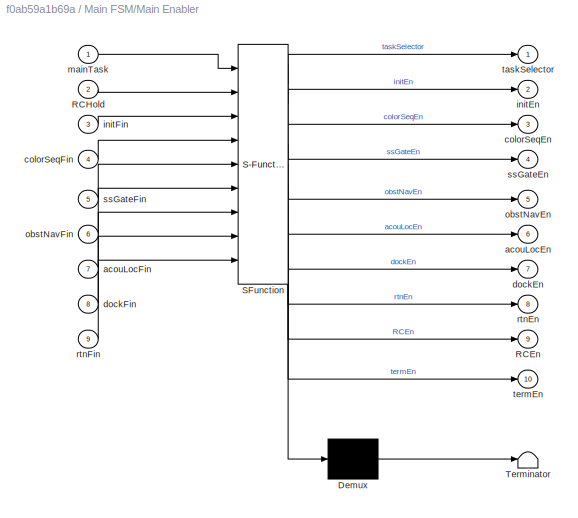
BLOCK [SubSystem] Main FSM/Main Enabler
  ErrorFcn = Stateflow.Translate.translate
  PermitHierarchicalResolution = ExplicitOnly
  Ports = [9, 10]
  RequestExecContextInheritance = off
  SFBlockType = MATLAB Function
  TreatAsAtomicUnit = on
BLOCK [Demux] Main FSM/Main Enabler/ Demux 
  Outputs = 1
  Ports = [1, 1]
BLOCK [S-Function] Main FSM/Main Enabler/ SFunction 
  EnableBusSupport = on
  FunctionName = sf_sfun
  PortCounts = [9 11]
  Ports = [9, 11]
  Tag = Stateflow S-Function RoboBoatVU_2014_Athena 1
BLOCK [Terminator] Main FSM/Main Enabler/ Terminator 
BLOCK [Outport] Main FSM/Main Enabler/RCEn
  IconDisplay = Port number
  Port = 9
BLOCK [Inport] Main FSM/Main Enabler/RCHold
  IconDisplay = Port number
  Port = 2
BLOCK [Outport] Main FSM/Main Enabler/acouLocEn
  IconDisplay = Port number
  Port = 6
BLOCK [Inport] Main FSM/Main Enabler/acouLocFin
  IconDisplay = Port number
  Port = 7
BLOCK [Outport] Main FSM/Main Enabler/colorSeqEn
  IconDisplay = Port number
  Port = 3
BLOCK [Inport] Main FSM/Main Enabler/colorSeqFin
  IconDisplay = Port number
  Port = 4
BLOCK [Outport] Main FSM/Main Enabler/dockEn
  IconDisplay = Port number
  Port = 7
BLOCK [Inport] Main FSM/Main Enabler/dockFin
  IconDisplay = Port number
  Port = 8
BLOCK [Outport] Main FSM/Main Enabler/initEn
  IconDisplay = Port number
  Port = 2
BLOCK [Inport] Main FSM/Main Enabler/initFin
  IconDisplay = Port number
  Port = 3
BLOCK [Inport] Main FSM/Main Enabler/mainTask
  IconDisplay = Port number
BLOCK [Outport] Main FSM/Main Enabler/obstNavEn
  IconDisplay = Port number
  Port = 5
BLOCK [Inport] Main FSM/Main Enabler/obstNavFin
  IconDisplay = Port number
  Port = 6
BLOCK [Outport] Main FSM/Main Enabler/rtnEn
  IconDisplay = Port number
  Port = 8
BLOCK [Inport] Main FSM/Main Enabler/rtnFin
  IconDisplay = Port number
  Port = 9
BLOCK [Outport] Main FSM/Main Enabler/ssGateEn
  IconDisplay = Port number
  Port = 4
BLOCK [Inport] Main FSM/Main Enabler/ssGateFin
  IconDisplay = Port number
  Port = 5
BLOCK [Outport] Main FSM/Main Enabler/taskSelector
  IconDisplay = Port number
BLOCK [Outport] Main FSM/Main Enabler/termEn
  IconDisplay = Port number
  Port = 10
BLOCK [MultiPortSwitch] Main FSM/Main Selector
  InputSameDT = off
  Inputs = 9
  Ports = [10, 1]
  SaturateOnIntegerOverflow = off
BLOCK [SubSystem] Main FSM/Obstacle Navigation
  Ports = [2, 2, 1]
  RequestExecContextInheritance = off
  TreatAsAtomicUnit = on
BLOCK [BusSelector] Main FSM/Obstacle Navigation/Bus Selector
  OutputSignals = Serial In.Buoy Color,Serial In.Compass.Heading
  Ports = [1, 2]
BLOCK [BusSelector] Main FSM/Obstacle Navigation/Bus Selector1
  OutputSignals = Output Signals
  Ports = [1, 1]
BLOCK [DataTypeConversion] Main FSM/Obstacle Navigation/Data Type Conversion
  OutDataTypeStr = uint8
  RndMeth = Floor
  SaturateOnIntegerOverflow = off
BLOCK [EnablePort] Main FSM/Obstacle Navigation/Enable
  Ports = []
BLOCK [Outport] Main FSM/Obstacle Navigation/Finished
  IconDisplay = Port number
  Port = 2
BLOCK [Reference] Main FSM/Obstacle Navigation/Insert Text  REF=visiontextngfix/Insert Text
  Ports = [2, 1]
  SourceBlock = visiontextngfix/Insert Text
  SourceType = Insert Text
  antiAliased = on
  blockFontSize = 12
  dummyVar1 = 0
  dummyVar2 = 0
  dummyVar3 = 0
  dummyVar4 = 0
  fontFace = LucidaSansRegular
  getTextColorFrom = Specify via dialog
  getTextIntensityFrom = Specify via dialog
  getTextLocFrom = Specify via dialog
  getTextOpacityFrom = Specify via dialog
  imagePorts = One multidimensional signal
  inputType = Obsolete
  isInputTransposed = off
  textColor = [0 0 0]
  textIntensity = 0
  textLoc = [1 1]
  textOpacity = 1.0
  theText = 'Buoy Color: %d'
BLOCK [SubSystem] Main FSM/Obstacle Navigation/Output Heirarchy1
  Ports = [3, 1]
  RequestExecContextInheritance = off
BLOCK [Inport] Main FSM/Obstacle Navigation/Output Heirarchy1/Annotated Image
  IconDisplay = Port number
  Port = 3
BLOCK [BusCreator] Main FSM/Obstacle Navigation/Output Heirarchy1/Bus Creator
  DisplayOption = bar
  Inputs = 3
  Ports = [3, 1]
BLOCK [BusCreator] Main FSM/Obstacle Navigation/Output Heirarchy1/Bus Creator1
  DisplayOption = bar
  Inputs = 2
  Ports = [2, 1]
BLOCK [BusCreator] Main FSM/Obstacle Navigation/Output Heirarchy1/Bus Creator2
  DisplayOption = bar
  Inputs = 3
  Ports = [3, 1]
BLOCK [BusCreator] Main FSM/Obstacle Navigation/Output Heirarchy1/Bus Creator3
  DisplayOption = bar
  Inputs = 2
  Ports = [2, 1]
BLOCK [BusCreator] Main FSM/Obstacle Navigation/Output Heirarchy1/Bus Creator4
  DisplayOption = bar
  Inputs = 2
  Ports = [2, 1]
BLOCK [Inport] Main FSM/Obstacle Navigation/Output Heirarchy1/Desired Heading
  IconDisplay = Port number
BLOCK [Constant] Main FSM/Obstacle Navigation/Output Heirarchy1/Due Sample Start
  Value = 0
BLOCK [Constant] Main FSM/Obstacle Navigation/Output Heirarchy1/Finished
  Value = 0
BLOCK [Outport] Main FSM/Obstacle Navigation/Output Heirarchy1/Outputs
  IconDisplay = Port number
BLOCK [Constant] Main FSM/Obstacle Navigation/Output Heirarchy1/RPM Desired
  Value = 0
BLOCK [Constant] Main FSM/Obstacle Navigation/Output Heirarchy1/Ready to Read
  Value = 0
BLOCK [Inport] Main FSM/Obstacle Navigation/Output Heirarchy1/Sensors
  IconDisplay = Port number
  Port = 2
BLOCK [Constant] Main FSM/Obstacle Navigation/Output Heirarchy1/Uno Power
  Value = 0
BLOCK [Outport] Main FSM/Obstacle Navigation/Outputs
  IconDisplay = Port number
BLOCK [Inport] Main FSM/Obstacle Navigation/RGB image
  IconDisplay = Port number
  Port = 2
BLOCK [Inport] Main FSM/Obstacle Navigation/Sensors
  IconDisplay = Port number
BLOCK [SubSystem] Main FSM/Obstacle Navigation/Silly Action Decider
  ErrorFcn = Stateflow.Translate.translate
  PermitHierarchicalResolution = ExplicitOnly
  Ports = [2, 2]
  RequestExecContextInheritance = off
  SFBlockType = MATLAB Function
  TreatAsAtomicUnit = on
BLOCK [Demux] Main FSM/Obstacle Navigation/Silly Action Decider/ Demux 
  Outputs = 1
  Ports = [1, 1]
BLOCK [S-Function] Main FSM/Obstacle Navigation/Silly Action Decider/ SFunction 
  EnableBusSupport = on
  FunctionName = sf_sfun
  PortCounts = [2 3]
  Ports = [2, 3]
  Tag = Stateflow S-Function RoboBoatVU_2014_Athena 17
BLOCK [Terminator] Main FSM/Obstacle Navigation/Silly Action Decider/ Terminator 
BLOCK [Inport] Main FSM/Obstacle Navigation/Silly Action Decider/buoyColor
  IconDisplay = Port number
BLOCK [Inport] Main FSM/Obstacle Navigation/Silly Action Decider/currentHeading
  IconDisplay = Port number
  Port = 2
BLOCK [Outport] Main FSM/Obstacle Navigation/Silly Action Decider/desiredHeading
  IconDisplay = Port number
BLOCK [Outport] Main FSM/Obstacle Navigation/Silly Action Decider/finished
  IconDisplay = Port number
  Port = 2
BLOCK [Outport] Main FSM/Output
  IconDisplay = Port number
BLOCK [SubSystem] Main FSM/RCHold
  Ports = [2, 1, 1]
  RequestExecContextInheritance = off
BLOCK [Reference] Main FSM/RCHold/Annotate Task  REF=visiontextngfix/Insert Text
  Ports = [1, 1]
  SourceBlock = visiontextngfix/Insert Text
  SourceType = Insert Text
  antiAliased = on
  blockFontSize = 12
  dummyVar1 = 0
  dummyVar2 = 0
  dummyVar3 = 0
  dummyVar4 = 0
  fontFace = LucidaSansRegular
  getTextColorFrom = Specify via dialog
  getTextIntensityFrom = Specify via dialog
  getTextLocFrom = Specify via dialog
  getTextOpacityFrom = Specify via dialog
  imagePorts = One multidimensional signal
  inputType = Obsolete
  isInputTransposed = off
  textColor = [0 0 255]
  textIntensity = 0
  textLoc = [10 10]
  textOpacity = 1.0
  theText = 'RC Hold'
BLOCK [BusSelector] Main FSM/RCHold/Bus Selector
  OutputSignals = Serial In.Compass.Heading
  Ports = [1, 1]
BLOCK [BusSelector] Main FSM/RCHold/Bus Selector1
  OutputSignals = Output Signals
  Ports = [1, 1]
BLOCK [EnablePort] Main FSM/RCHold/Enable
  Ports = []
BLOCK [SubSystem] Main FSM/RCHold/Output Heirarchy1
  Ports = [3, 1]
  RequestExecContextInheritance = off
BLOCK [Inport] Main FSM/RCHold/Output Heirarchy1/Annotated Image
  IconDisplay = Port number
BLOCK [BusCreator] Main FSM/RCHold/Output Heirarchy1/Bus Creator
  DisplayOption = bar
  Inputs = 3
  Ports = [3, 1]
BLOCK [BusCreator] Main FSM/RCHold/Output Heirarchy1/Bus Creator1
  DisplayOption = bar
  Inputs = 2
  Ports = [2, 1]
BLOCK [BusCreator] Main FSM/RCHold/Output Heirarchy1/Bus Creator2
  DisplayOption = bar
  Inputs = 3
  Ports = [3, 1]
BLOCK [BusCreator] Main FSM/RCHold/Output Heirarchy1/Bus Creator3
  DisplayOption = bar
  Inputs = 2
  Ports = [2, 1]
BLOCK [BusCreator] Main FSM/RCHold/Output Heirarchy1/Bus Creator4
  DisplayOption = bar
  Inputs = 2
  Ports = [2, 1]
BLOCK [Inport] Main FSM/RCHold/Output Heirarchy1/Desired Heading
  IconDisplay = Port number
  Port = 2
BLOCK [Constant] Main FSM/RCHold/Output Heirarchy1/Due Sample Start
  Value = 0
BLOCK [Constant] Main FSM/RCHold/Output Heirarchy1/Finished
  Value = 0
BLOCK [Outport] Main FSM/RCHold/Output Heirarchy1/Outputs
  IconDisplay = Port number
BLOCK [Constant] Main FSM/RCHold/Output Heirarchy1/RPM Desired
  Value = 0
BLOCK [Constant] Main FSM/RCHold/Output Heirarchy1/Ready to Read
  Value = 0
BLOCK [Inport] Main FSM/RCHold/Output Heirarchy1/Sensors
  IconDisplay = Port number
  Port = 3
BLOCK [Constant] Main FSM/RCHold/Output Heirarchy1/Uno Power
  Value = 0
BLOCK [Outport] Main FSM/RCHold/Outputs
  IconDisplay = Port number
BLOCK [Inport] Main FSM/RCHold/RGB image
  IconDisplay = Port number
  Port = 2
BLOCK [Inport] Main FSM/RCHold/Sensors
  IconDisplay = Port number
BLOCK [DataStoreRead] Main FSM/Read
  DataStoreName = mainTask
  Ports = [0, 1]
  SampleTime = 0.1
BLOCK [SubSystem] Main FSM/Return to Start
  Ports = [2, 2, 1]
  RequestExecContextInheritance = off
  TreatAsAtomicUnit = on
BLOCK [EnablePort] Main FSM/Return to Start/Enable
  Ports = [0, 1]
  ShowOutputPort = on
BLOCK [Outport] Main FSM/Return to Start/Finished
  IconDisplay = Port number
  Port = 2
BLOCK [SubSystem] Main FSM/Return to Start/GPS: Center
  Ports = [2, 2, 1]
  RequestExecContextInheritance = off
  TreatAsAtomicUnit = on
BLOCK [SubSystem] Main FSM/Return to Start/GPS: Center/Approach
  Ports = [2, 1, 1]
  RequestExecContextInheritance = off
  TreatAsAtomicUnit = on
BLOCK [Reference] Main FSM/Return to Start/GPS: Center/Approach/Annotate Task  REF=visiontextngfix/Insert Text
  Ports = [2, 1]
  SourceBlock = visiontextngfix/Insert Text
  SourceType = Insert Text
  antiAliased = on
  blockFontSize = 12
  dummyVar1 = 0
  dummyVar2 = 0
  dummyVar3 = 0
  dummyVar4 = 0
  fontFace = LucidaSansRegular
  getTextColorFrom = Specify via dialog
  getTextIntensityFrom = Specify via dialog
  getTextLocFrom = Specify via dialog
  getTextOpacityFrom = Specify via dialog
  imagePorts = One multidimensional signal
  inputType = Obsolete
  isInputTransposed = off
  textColor = [255 0 0]
  textIntensity = 0
  textLoc = [10 70]
  textOpacity = 1.0
  theText = 'GPS - Center: Approach - Distance: %f'
BLOCK [Reference] Main FSM/Return to Start/GPS: Center/Approach/Annotate Task2  REF=visiontextngfix/Insert Text
  Ports = [1, 1]
  SourceBlock = visiontextngfix/Insert Text
  SourceType = Insert Text
  antiAliased = on
  blockFontSize = 12
  dummyVar1 = 0
  dummyVar2 = 0
  dummyVar3 = 0
  dummyVar4 = 0
  fontFace = LucidaSansRegular
  getTextColorFrom = Specify via dialog
  getTextIntensityFrom = Specify via dialog
  getTextLocFrom = Specify via dialog
  getTextOpacityFrom = Specify via dialog
  imagePorts = One multidimensional signal
  inputType = Obsolete
  isInputTransposed = off
  textColor = [0 0 0]
  textIntensity = 0
  textLoc = [1 1]
  textOpacity = 1.0
  theText = 'Return to Start'
BLOCK [BusSelector] Main FSM/Return to Start/GPS: Center/Approach/Bus Selector
  OutputSignals = Serial In.GPS.latitude,Serial In.GPS.longitude
  Ports = [1, 2]
BLOCK [DataStoreRead] Main FSM/Return to Start/GPS: Center/Approach/Data Store Read
  DataStoreName = colorGPS
  Ports = [0, 1]
  SampleTime = 0.1
BLOCK [SubSystem] Main FSM/Return to Start/GPS: Center/Approach/Desired Heading and Distance
  ErrorFcn = Stateflow.Translate.translate
  PermitHierarchicalResolution = ExplicitOnly
  Ports = [3, 2]
  RequestExecContextInheritance = off
  SFBlockType = MATLAB Function
  TreatAsAtomicUnit = on
BLOCK [Demux] Main FSM/Return to Start/GPS: Center/Approach/Desired Heading and Distance/ Demux 
  Outputs = 1
  Ports = [1, 1]
BLOCK [S-Function] Main FSM/Return to Start/GPS: Center/Approach/Desired Heading and Distance/ SFunction 
  EnableBusSupport = on
  FunctionName = sf_sfun
  PortCounts = [3 3]
  Ports = [3, 3]
  Tag = Stateflow S-Function RoboBoatVU_2014_Athena 9
BLOCK [Terminator] Main FSM/Return to Start/GPS: Center/Approach/Desired Heading and Distance/ Terminator 
BLOCK [Inport] Main FSM/Return to Start/GPS: Center/Approach/Desired Heading and Distance/DesiredGPS
  IconDisplay = Port number
BLOCK [Outport] Main FSM/Return to Start/GPS: Center/Approach/Desired Heading and Distance/DesiredHeading
  IconDisplay = Port number
  Port = 2
BLOCK [Outport] Main FSM/Return to Start/GPS: Center/Approach/Desired Heading and Distance/Distance
  IconDisplay = Port number
BLOCK [Inport] Main FSM/Return to Start/GPS: Center/Approach/Desired Heading and Distance/GPSLat
  IconDisplay = Port number
  Port = 2
BLOCK [Inport] Main FSM/Return to Start/GPS: Center/Approach/Desired Heading and Distance/GPSLong
  IconDisplay = Port number
  Port = 3
BLOCK [EnablePort] Main FSM/Return to Start/GPS: Center/Approach/Enable
  Ports = []
BLOCK [SubSystem] Main FSM/Return to Start/GPS: Center/Approach/Output Heirarchy
  Ports = [4, 1]
  RequestExecContextInheritance = off
BLOCK [Inport] Main FSM/Return to Start/GPS: Center/Approach/Output Heirarchy/Annotated Image
  IconDisplay = Port number
  Port = 3
BLOCK [BusCreator] Main FSM/Return to Start/GPS: Center/Approach/Output Heirarchy/Bus Creator
  DisplayOption = bar
  Inputs = 3
  Ports = [3, 1]
BLOCK [BusCreator] Main FSM/Return to Start/GPS: Center/Approach/Output Heirarchy/Bus Creator1
  DisplayOption = bar
  Inputs = 2
  Ports = [2, 1]
BLOCK [BusCreator] Main FSM/Return to Start/GPS: Center/Approach/Output Heirarchy/Bus Creator2
  DisplayOption = bar
  Inputs = 3
  Ports = [3, 1]
BLOCK [BusCreator] Main FSM/Return to Start/GPS: Center/Approach/Output Heirarchy/Bus Creator3
  DisplayOption = bar
  Inputs = 2
  Ports = [2, 1]
BLOCK [BusCreator] Main FSM/Return to Start/GPS: Center/Approach/Output Heirarchy/Bus Creator4
  DisplayOption = bar
  Inputs = 2
  Ports = [2, 1]
BLOCK [Inport] Main FSM/Return to Start/GPS: Center/Approach/Output Heirarchy/Desired Heading
  IconDisplay = Port number
  Port = 2
BLOCK [Constant] Main FSM/Return to Start/GPS: Center/Approach/Output Heirarchy/Due Sample Start
  Value = 0
BLOCK [Inport] Main FSM/Return to Start/GPS: Center/Approach/Output Heirarchy/Finished
  IconDisplay = Port number
BLOCK [Outport] Main FSM/Return to Start/GPS: Center/Approach/Output Heirarchy/Outputs
  IconDisplay = Port number
BLOCK [Constant] Main FSM/Return to Start/GPS: Center/Approach/Output Heirarchy/RPM Desired
  Value = 0
BLOCK [Constant] Main FSM/Return to Start/GPS: Center/Approach/Output Heirarchy/Ready to Read
  Value = 0
BLOCK [Inport] Main FSM/Return to Start/GPS: Center/Approach/Output Heirarchy/Sensors
  IconDisplay = Port number
  Port = 4
BLOCK [Constant] Main FSM/Return to Start/GPS: Center/Approach/Output Heirarchy/Uno Power
  Value = 0
BLOCK [Outport] Main FSM/Return to Start/GPS: Center/Approach/Outputs
  IconDisplay = Port number
BLOCK [Inport] Main FSM/Return to Start/GPS: Center/Approach/RGB image
  IconDisplay = Port number
  Port = 2
BLOCK [DataStoreRead] Main FSM/Return to Start/GPS: Center/Approach/Read1
  DataStoreName = GPSapproachDist
  Ports = [0, 1]
  SampleTime = 0.1
BLOCK [Inport] Main FSM/Return to Start/GPS: Center/Approach/Sensors
  IconDisplay = Port number
BLOCK [SubSystem] Main FSM/Return to Start/GPS: Center/Approach/Within Range
  ErrorFcn = Stateflow.Translate.translate
  PermitHierarchicalResolution = ExplicitOnly
  Ports = [2, 1]
  RequestExecContextInheritance = off
  SFBlockType = MATLAB Function
  TreatAsAtomicUnit = on
BLOCK [Demux] Main FSM/Return to Start/GPS: Center/Approach/Within Range/ Demux 
  Outputs = 1
  Ports = [1, 1]
BLOCK [S-Function] Main FSM/Return to Start/GPS: Center/Approach/Within Range/ SFunction 
  EnableBusSupport = on
  FunctionName = sf_sfun
  PortCounts = [2 2]
  Ports = [2, 2]
  Tag = Stateflow S-Function RoboBoatVU_2014_Athena 10
BLOCK [Terminator] Main FSM/Return to Start/GPS: Center/Approach/Within Range/ Terminator 
BLOCK [Inport] Main FSM/Return to Start/GPS: Center/Approach/Within Range/Distance
  IconDisplay = Port number
  Port = 2
BLOCK [Outport] Main FSM/Return to Start/GPS: Center/Approach/Within Range/Finished
  IconDisplay = Port number
BLOCK [Inport] Main FSM/Return to Start/GPS: Center/Approach/Within Range/GPSApproachDist
  IconDisplay = Port number
BLOCK [EnablePort] Main FSM/Return to Start/GPS: Center/Enable
  Ports = []
BLOCK [Outport] Main FSM/Return to Start/GPS: Center/Finished
  IconDisplay = Port number
  Port = 2
BLOCK [SubSystem] Main FSM/Return to Start/GPS: Center/GPS Enabler
  ErrorFcn = Stateflow.Translate.translate
  PermitHierarchicalResolution = ExplicitOnly
  Ports = [1, 3]
  RequestExecContextInheritance = off
  SFBlockType = MATLAB Function
  TreatAsAtomicUnit = on
BLOCK [Demux] Main FSM/Return to Start/GPS: Center/GPS Enabler/ Demux 
  Outputs = 1
  Ports = [1, 1]
BLOCK [S-Function] Main FSM/Return to Start/GPS: Center/GPS Enabler/ SFunction 
  EnableBusSupport = on
  FunctionName = sf_sfun
  PortCounts = [1 4]
  Ports = [1, 4]
  Tag = Stateflow S-Function RoboBoatVU_2014_Athena 11
BLOCK [Terminator] Main FSM/Return to Start/GPS: Center/GPS Enabler/ Terminator 
BLOCK [Outport] Main FSM/Return to Start/GPS: Center/GPS Enabler/ApproachEnable
  IconDisplay = Port number
  Port = 3
BLOCK [Inport] Main FSM/Return to Start/GPS: Center/GPS Enabler/Finished
  IconDisplay = Port number
BLOCK [Outport] Main FSM/Return to Start/GPS: Center/GPS Enabler/GPSMode
  IconDisplay = Port number
BLOCK [Outport] Main FSM/Return to Start/GPS: Center/GPS Enabler/OrientEnable
  IconDisplay = Port number
  Port = 2
BLOCK [MultiPortSwitch] Main FSM/Return to Start/GPS: Center/GPS Selector
  InputSameDT = off
  Inputs = 2
  Ports = [3, 1]
  SaturateOnIntegerOverflow = off
BLOCK [SubSystem] Main FSM/Return to Start/GPS: Center/Orient
  Ports = [2, 2, 1]
  RequestExecContextInheritance = off
  TreatAsAtomicUnit = on
BLOCK [Reference] Main FSM/Return to Start/GPS: Center/Orient/Annotate Task  REF=visiontextngfix/Insert Text
  Ports = [2, 1]
  SourceBlock = visiontextngfix/Insert Text
  SourceType = Insert Text
  antiAliased = on
  blockFontSize = 12
  dummyVar1 = 0
  dummyVar2 = 0
  dummyVar3 = 0
  dummyVar4 = 0
  fontFace = LucidaSansRegular
  getTextColorFrom = Specify via dialog
  getTextIntensityFrom = Specify via dialog
  getTextLocFrom = Specify via dialog
  getTextOpacityFrom = Specify via dialog
  imagePorts = One multidimensional signal
  inputType = Obsolete
  isInputTransposed = off
  textColor = [255 0 0]
  textIntensity = 0
  textLoc = [10 70]
  textOpacity = 1.0
  theText = 'GPS - Center: Orient %f'
BLOCK [Reference] Main FSM/Return to Start/GPS: Center/Orient/Annotate Task1  REF=visiontextngfix/Insert Text
  Ports = [2, 1]
  SourceBlock = visiontextngfix/Insert Text
  SourceType = Insert Text
  antiAliased = on
  blockFontSize = 12
  dummyVar1 = 0
  dummyVar2 = 0
  dummyVar3 = 0
  dummyVar4 = 0
  fontFace = LucidaSansRegular
  getTextColorFrom = Specify via dialog
  getTextIntensityFrom = Specify via dialog
  getTextLocFrom = Specify via dialog
  getTextOpacityFrom = Specify via dialog
  imagePorts = One multidimensional signal
  inputType = Obsolete
  isInputTransposed = off
  textColor = [255 0 0]
  textIntensity = 0
  textLoc = [10 40]
  textOpacity = 1.0
  theText = 'Current Heading %f'
BLOCK [Reference] Main FSM/Return to Start/GPS: Center/Orient/Annotate Task2  REF=visiontextngfix/Insert Text
  Ports = [1, 1]
  SourceBlock = visiontextngfix/Insert Text
  SourceType = Insert Text
  antiAliased = on
  blockFontSize = 12
  dummyVar1 = 0
  dummyVar2 = 0
  dummyVar3 = 0
  dummyVar4 = 0
  fontFace = LucidaSansRegular
  getTextColorFrom = Specify via dialog
  getTextIntensityFrom = Specify via dialog
  getTextLocFrom = Specify via dialog
  getTextOpacityFrom = Specify via dialog
  imagePorts = One multidimensional signal
  inputType = Obsolete
  isInputTransposed = off
  textColor = [0 0 0]
  textIntensity = 0
  textLoc = [1 1]
  textOpacity = 1.0
  theText = 'Return to Start'
BLOCK [BusSelector] Main FSM/Return to Start/GPS: Center/Orient/Bus Selector
  OutputSignals = Serial In.GPS.latitude,Serial In.GPS.longitude,Serial In.Compass.Heading
  Ports = [1, 3]
BLOCK [DataStoreRead] Main FSM/Return to Start/GPS: Center/Orient/Data Store Read
  DataStoreName = colorGPS
  Ports = [0, 1]
  SampleTime = 0.1
BLOCK [SubSystem] Main FSM/Return to Start/GPS: Center/Orient/Desired Heading
  ErrorFcn = Stateflow.Translate.translate
  PermitHierarchicalResolution = ExplicitOnly
  Ports = [3, 1]
  RequestExecContextInheritance = off
  SFBlockType = MATLAB Function
  TreatAsAtomicUnit = on
BLOCK [Demux] Main FSM/Return to Start/GPS: Center/Orient/Desired Heading/ Demux 
  Outputs = 1
  Ports = [1, 1]
BLOCK [S-Function] Main FSM/Return to Start/GPS: Center/Orient/Desired Heading/ SFunction 
  EnableBusSupport = on
  FunctionName = sf_sfun
  PortCounts = [3 2]
  Ports = [3, 2]
  Tag = Stateflow S-Function RoboBoatVU_2014_Athena 12
BLOCK [Terminator] Main FSM/Return to Start/GPS: Center/Orient/Desired Heading/ Terminator 
BLOCK [Inport] Main FSM/Return to Start/GPS: Center/Orient/Desired Heading/DesiredGPS
  IconDisplay = Port number
BLOCK [Outport] Main FSM/Return to Start/GPS: Center/Orient/Desired Heading/DesiredHeading
  IconDisplay = Port number
BLOCK [Inport] Main FSM/Return to Start/GPS: Center/Orient/Desired Heading/GPSLat
  IconDisplay = Port number
  Port = 2
BLOCK [Inport] Main FSM/Return to Start/GPS: Center/Orient/Desired Heading/GPSLong
  IconDisplay = Port number
  Port = 3
BLOCK [EnablePort] Main FSM/Return to Start/GPS: Center/Orient/Enable
  Ports = []
BLOCK [Outport] Main FSM/Return to Start/GPS: Center/Orient/Finished
  IconDisplay = Port number
  Port = 2
BLOCK [SubSystem] Main FSM/Return to Start/GPS: Center/Orient/Output Heirarchy1
  Ports = [3, 1]
  RequestExecContextInheritance = off
BLOCK [Inport] Main FSM/Return to Start/GPS: Center/Orient/Output Heirarchy1/Annotated Image
  IconDisplay = Port number
BLOCK [BusCreator] Main FSM/Return to Start/GPS: Center/Orient/Output Heirarchy1/Bus Creator
  DisplayOption = bar
  Inputs = 3
  Ports = [3, 1]
BLOCK [BusCreator] Main FSM/Return to Start/GPS: Center/Orient/Output Heirarchy1/Bus Creator1
  DisplayOption = bar
  Inputs = 2
  Ports = [2, 1]
BLOCK [BusCreator] Main FSM/Return to Start/GPS: Center/Orient/Output Heirarchy1/Bus Creator2
  DisplayOption = bar
  Inputs = 3
  Ports = [3, 1]
BLOCK [BusCreator] Main FSM/Return to Start/GPS: Center/Orient/Output Heirarchy1/Bus Creator3
  DisplayOption = bar
  Inputs = 2
  Ports = [2, 1]
BLOCK [BusCreator] Main FSM/Return to Start/GPS: Center/Orient/Output Heirarchy1/Bus Creator4
  DisplayOption = bar
  Inputs = 2
  Ports = [2, 1]
BLOCK [Inport] Main FSM/Return to Start/GPS: Center/Orient/Output Heirarchy1/Desired Heading
  IconDisplay = Port number
  Port = 2
BLOCK [Constant] Main FSM/Return to Start/GPS: Center/Orient/Output Heirarchy1/Due Sample Start
  Value = 0
BLOCK [Constant] Main FSM/Return to Start/GPS: Center/Orient/Output Heirarchy1/Finished
  Value = 0
BLOCK [Outport] Main FSM/Return to Start/GPS: Center/Orient/Output Heirarchy1/Outputs
  IconDisplay = Port number
BLOCK [Constant] Main FSM/Return to Start/GPS: Center/Orient/Output Heirarchy1/RPM Desired
  Value = 0
BLOCK [Constant] Main FSM/Return to Start/GPS: Center/Orient/Output Heirarchy1/Ready to Read
  Value = 0
BLOCK [Inport] Main FSM/Return to Start/GPS: Center/Orient/Output Heirarchy1/Sensors
  IconDisplay = Port number
  Port = 3
BLOCK [Constant] Main FSM/Return to Start/GPS: Center/Orient/Output Heirarchy1/Uno Power
  Value = 0
BLOCK [Outport] Main FSM/Return to Start/GPS: Center/Orient/Outputs
  IconDisplay = Port number
BLOCK [Inport] Main FSM/Return to Start/GPS: Center/Orient/RGB image
  IconDisplay = Port number
  Port = 2
BLOCK [Inport] Main FSM/Return to Start/GPS: Center/Orient/Sensors
  IconDisplay = Port number
BLOCK [SubSystem] Main FSM/Return to Start/GPS: Center/Orient/Within Range
  ErrorFcn = Stateflow.Translate.translate
  PermitHierarchicalResolution = ExplicitOnly
  Ports = [2, 1]
  RequestExecContextInheritance = off
  SFBlockType = MATLAB Function
  TreatAsAtomicUnit = on
BLOCK [Demux] Main FSM/Return to Start/GPS: Center/Orient/Within Range/ Demux 
  Outputs = 1
  Ports = [1, 1]
BLOCK [S-Function] Main FSM/Return to Start/GPS: Center/Orient/Within Range/ SFunction 
  EnableBusSupport = on
  FunctionName = sf_sfun
  PortCounts = [2 2]
  Ports = [2, 2]
  Tag = Stateflow S-Function RoboBoatVU_2014_Athena 16
BLOCK [Terminator] Main FSM/Return to Start/GPS: Center/Orient/Within Range/ Terminator 
BLOCK [Inport] Main FSM/Return to Start/GPS: Center/Orient/Within Range/Compass
  IconDisplay = Port number
  Port = 2
BLOCK [Inport] Main FSM/Return to Start/GPS: Center/Orient/Within Range/DesiredHeading
  IconDisplay = Port number
BLOCK [Outport] Main FSM/Return to Start/GPS: Center/Orient/Within Range/Finished
  IconDisplay = Port number
BLOCK [SubSystem] Main FSM/Return to Start/GPS: Center/Output Reassign
  Ports = [1, 2]
  RequestExecContextInheritance = off
BLOCK [BusSelector] Main FSM/Return to Start/GPS: Center/Output Reassign/Bus Selector
  OutputSignals = Task Finished,Output Signals
  Ports = [1, 2]
BLOCK [Outport] Main FSM/Return to Start/GPS: Center/Output Reassign/Finished
  IconDisplay = Port number
  Port = 2
BLOCK [Outport] Main FSM/Return to Start/GPS: Center/Output Reassign/Outputs
  IconDisplay = Port number
BLOCK [Inport] Main FSM/Return to Start/GPS: Center/Output Reassign/Outputs in
  IconDisplay = Port number
BLOCK [Outport] Main FSM/Return to Start/GPS: Center/Outputs
  IconDisplay = Port number
BLOCK [Inport] Main FSM/Return to Start/GPS: Center/RGB image
  IconDisplay = Port number
  Port = 2
BLOCK [Inport] Main FSM/Return to Start/GPS: Center/Sensors
  IconDisplay = Port number
BLOCK [UnitDelay] Main FSM/Return to Start/GPS: Center/Unit Delay
  InputProcessing = Elements as channels (sample based)
  SampleTime = -1
BLOCK [Outport] Main FSM/Return to Start/Outputs
  IconDisplay = Port number
BLOCK [Inport] Main FSM/Return to Start/RGB image
  IconDisplay = Port number
  Port = 2
BLOCK [Inport] Main FSM/Return to Start/Sensors
  IconDisplay = Port number
BLOCK [SubSystem] Main FSM/Start Speed Gate
  Ports = [2, 2, 1]
  RequestExecContextInheritance = off
  TreatAsAtomicUnit = on
BLOCK [DataStoreRead] Main FSM/Start Speed Gate/Data Store Read
  DataStoreName = ssGateTask
  Ports = [0, 1]
BLOCK [EnablePort] Main FSM/Start Speed Gate/Enable
  Ports = []
BLOCK [Outport] Main FSM/Start Speed Gate/Finished
  IconDisplay = Port number
  Port = 2
BLOCK [SubSystem] Main FSM/Start Speed Gate/MATLAB Function
  ErrorFcn = Stateflow.Translate.translate
  PermitHierarchicalResolution = ExplicitOnly
  Ports = [1, 3]
  RequestExecContextInheritance = off
  SFBlockType = MATLAB Function
  TreatAsAtomicUnit = on
BLOCK [Demux] Main FSM/Start Speed Gate/MATLAB Function/ Demux 
  Outputs = 1
  Ports = [1, 1]
BLOCK [S-Function] Main FSM/Start Speed Gate/MATLAB Function/ SFunction 
  EnableBusSupport = off
  FunctionName = sf_sfun
  PortCounts = [1 4]
  Ports = [1, 4]
  Tag = Stateflow S-Function RoboBoatVU_2014_Athena 28
BLOCK [Terminator] Main FSM/Start Speed Gate/MATLAB Function/ Terminator 
BLOCK [Outport] Main FSM/Start Speed Gate/MATLAB Function/LIDAREn
  IconDisplay = Port number
  Port = 2
BLOCK [Inport] Main FSM/Start Speed Gate/MATLAB Function/SSGateTask
  IconDisplay = Port number
BLOCK [Outport] Main FSM/Start Speed Gate/MATLAB Function/colorEn
  IconDisplay = Port number
  Port = 3
BLOCK [Outport] Main FSM/Start Speed Gate/MATLAB Function/taskSelector
  IconDisplay = Port number
BLOCK [MultiPortSwitch] Main FSM/Start Speed Gate/Multiport Switch
  InputSameDT = off
  Inputs = 2
  Ports = [3, 1]
  SaturateOnIntegerOverflow = off
BLOCK [Outport] Main FSM/Start Speed Gate/Outputs
  IconDisplay = Port number
BLOCK [Inport] Main FSM/Start Speed Gate/RGB image
  IconDisplay = Port number
  Port = 2
BLOCK [Inport] Main FSM/Start Speed Gate/Sensors
  IconDisplay = Port number
BLOCK [SubSystem] Main FSM/Start Speed Gate/Start Speed Gate - Color
  Ports = [2, 1, 1]
  RequestExecContextInheritance = off
  TreatAsAtomicUnit = on
BLOCK [SubSystem] Main FSM/Start Speed Gate/Start Speed Gate - Color/Buoy Decisions
  Ports = [4, 3]
  RequestExecContextInheritance = off
BLOCK [SubSystem] Main FSM/Start Speed Gate/Start Speed Gate - Color/Buoy Decisions/Annotate Image
  Ports = [5, 1]
  RequestExecContextInheritance = off
BLOCK [Reference] Main FSM/Start Speed Gate/Start Speed Gate - Color/Buoy Decisions/Annotate Image/Annotate Task  REF=visiontextngfix/Insert Text
  Ports = [1, 1]
  SourceBlock = visiontextngfix/Insert Text
  SourceType = Insert Text
  antiAliased = on
  blockFontSize = 12
  dummyVar1 = 0
  dummyVar2 = 0
  dummyVar3 = 0
  dummyVar4 = 0
  fontFace = LucidaSansRegular
  getTextColorFrom = Specify via dialog
  getTextIntensityFrom = Specify via dialog
  getTextLocFrom = Specify via dialog
  getTextOpacityFrom = Specify via dialog
  imagePorts = One multidimensional signal
  inputType = Obsolete
  isInputTransposed = off
  textColor = [0 0 255]
  textIntensity = 0
  textLoc = [10 10]
  textOpacity = 1.0
  theText = 'Buoy Navigation'
BLOCK [Outport] Main FSM/Start Speed Gate/Start Speed Gate - Color/Buoy Decisions/Annotate Image/Annotated Image
  IconDisplay = Port number
BLOCK [Reference] Main FSM/Start Speed Gate/Start Speed Gate - Color/Buoy Decisions/Annotate Image/Draw Green BBox  REF=visiontextngfix/Draw Shapes
  LockScale = off
  Ports = [2, 1]
  SourceBlock = visiontextngfix/Draw Shapes
  SourceType = Draw Shapes
  accumFracLength = 14
  accumMode = Same as product output
  accumWordLength = 32
  antialiasing = off
  color = [0 255 0]
  display = User-specified value
  fill = on
  fillClrSource = Specify via dialog
  imagePorts = One multidimensional signal
  inType = Obsolete
  intensity = 200
  lineWidth = 1
  memoryFracLength = 14
  memoryMode = Specify word length
  memoryWordLength = 16
  opacity = 0.6
  overflowMode = off
  prodOutputFracLength = 14
  prodOutputMode = Binary point scaling
  prodOutputWordLength = 32
  roundingMode = Floor
  shape = Rectangles
  viewport = Entire image
BLOCK [Reference] Main FSM/Start Speed Gate/Start Speed Gate - Color/Buoy Decisions/Annotate Image/Draw Red BBox  REF=visiontextngfix/Draw Shapes
  LockScale = off
  Ports = [2, 1]
  SourceBlock = visiontextngfix/Draw Shapes
  SourceType = Draw Shapes
  accumFracLength = 14
  accumMode = Same as product output
  accumWordLength = 32
  antialiasing = off
  color = [255 0 0]
  display = User-specified value
  fill = on
  fillClrSource = Specify via dialog
  imagePorts = One multidimensional signal
  inType = Obsolete
  intensity = 200
  lineWidth = 1
  memoryFracLength = 14
  memoryMode = Specify word length
  memoryWordLength = 16
  opacity = 0.6
  overflowMode = off
  prodOutputFracLength = 14
  prodOutputMode = Binary point scaling
  prodOutputWordLength = 32
  roundingMode = Floor
  shape = Rectangles
  viewport = Entire image
BLOCK [Inport] Main FSM/Start Speed Gate/Start Speed Gate - Color/Buoy Decisions/Annotate Image/Green BBox
  IconDisplay = Port number
  Port = 3
BLOCK [Inport] Main FSM/Start Speed Gate/Start Speed Gate - Color/Buoy Decisions/Annotate Image/Green Dist
  IconDisplay = Port number
  Port = 5
BLOCK [Reference] Main FSM/Start Speed Gate/Start Speed Gate - Color/Buoy Decisions/Annotate Image/Green Distance Display  REF=visiontextngfix/Insert Text
  Ports = [2, 1]
  SourceBlock = visiontextngfix/Insert Text
  SourceType = Insert Text
  antiAliased = on
  blockFontSize = 12
  dummyVar1 = 0
  dummyVar2 = 0
  dummyVar3 = 0
  dummyVar4 = 0
  fontFace = LucidaSansRegular
  getTextColorFrom = Specify via dialog
  getTextIntensityFrom = Specify via dialog
  getTextLocFrom = Specify via dialog
  getTextOpacityFrom = Specify via dialog
  imagePorts = One multidimensional signal
  inputType = Obsolete
  isInputTransposed = off
  textColor = [0 255 0]
  textIntensity = 0
  textLoc = [10 130]
  textOpacity = 1.0
  theText = 'Green Distance: %f m'
BLOCK [DataTypeConversion] Main FSM/Start Speed Gate/Start Speed Gate - Color/Buoy Decisions/Annotate Image/Green integer
  OutDataTypeStr = int32
  RndMeth = Floor
  SaturateOnIntegerOverflow = off
BLOCK [Inport] Main FSM/Start Speed Gate/Start Speed Gate - Color/Buoy Decisions/Annotate Image/RGB image
  IconDisplay = Port number
BLOCK [Inport] Main FSM/Start Speed Gate/Start Speed Gate - Color/Buoy Decisions/Annotate Image/Red BBox
  IconDisplay = Port number
  Port = 2
BLOCK [Inport] Main FSM/Start Speed Gate/Start Speed Gate - Color/Buoy Decisions/Annotate Image/Red Dist
  IconDisplay = Port number
  Port = 4
BLOCK [Reference] Main FSM/Start Speed Gate/Start Speed Gate - Color/Buoy Decisions/Annotate Image/Red Distance Display  REF=visiontextngfix/Insert Text
  Ports = [2, 1]
  SourceBlock = visiontextngfix/Insert Text
  SourceType = Insert Text
  antiAliased = on
  blockFontSize = 12
  dummyVar1 = 0
  dummyVar2 = 0
  dummyVar3 = 0
  dummyVar4 = 0
  fontFace = LucidaSansRegular
  getTextColorFrom = Specify via dialog
  getTextIntensityFrom = Specify via dialog
  getTextLocFrom = Specify via dialog
  getTextOpacityFrom = Specify via dialog
  imagePorts = One multidimensional signal
  inputType = Obsolete
  isInputTransposed = off
  textColor = [255 0 0]
  textIntensity = 0
  textLoc = [10 70]
  textOpacity = 1.0
  theText = 'Red Distance: %f m'
BLOCK [DataTypeConversion] Main FSM/Start Speed Gate/Start Speed Gate - Color/Buoy Decisions/Annotate Image/Red integer
  OutDataTypeStr = int32
  RndMeth = Floor
  SaturateOnIntegerOverflow = off
BLOCK [Outport] Main FSM/Start Speed Gate/Start Speed Gate - Color/Buoy Decisions/Annotated Image
  IconDisplay = Port number
BLOCK [BusSelector] Main FSM/Start Speed Gate/Start Speed Gate - Color/Buoy Decisions/Bus Selector
  OutputSignals = Serial In.Compass.Heading
  Ports = [1, 1]
BLOCK [BusSelector] Main FSM/Start Speed Gate/Start Speed Gate - Color/Buoy Decisions/Bus Selector1
  OutputSignals = Red BBox,Green BBox,Red Centroid,Green Centroid
  Ports = [1, 4]
BLOCK [Outport] Main FSM/Start Speed Gate/Start Speed Gate - Color/Buoy Decisions/Desired Heading
  IconDisplay = Port number
  Port = 3
BLOCK [SubSystem] Main FSM/Start Speed Gate/Start Speed Gate - Color/Buoy Decisions/Nav Logic
  ErrorFcn = Stateflow.Translate.translate
  PermitHierarchicalResolution = ExplicitOnly
  Ports = [7, 4]
  RequestExecContextInheritance = off
  SFBlockType = MATLAB Function
  TreatAsAtomicUnit = on
BLOCK [Demux] Main FSM/Start Speed Gate/Start Speed Gate - Color/Buoy Decisions/Nav Logic/ Demux 
  Outputs = 1
  Ports = [1, 1]
BLOCK [S-Function] Main FSM/Start Speed Gate/Start Speed Gate - Color/Buoy Decisions/Nav Logic/ SFunction 
  EnableBusSupport = on
  FunctionName = sf_sfun
  PortCounts = [7 5]
  Ports = [7, 5]
  Tag = Stateflow S-Function RoboBoatVU_2014_Athena 88
BLOCK [Terminator] Main FSM/Start Speed Gate/Start Speed Gate - Color/Buoy Decisions/Nav Logic/ Terminator 
BLOCK [Inport] Main FSM/Start Speed Gate/Start Speed Gate - Color/Buoy Decisions/Nav Logic/Compass
  IconDisplay = Port number
BLOCK [Inport] Main FSM/Start Speed Gate/Start Speed Gate - Color/Buoy Decisions/Nav Logic/Course
  IconDisplay = Port number
  Port = 6
BLOCK [Outport] Main FSM/Start Speed Gate/Start Speed Gate - Color/Buoy Decisions/Nav Logic/DesiredHeading
  IconDisplay = Port number
  Port = 4
BLOCK [Inport] Main FSM/Start Speed Gate/Start Speed Gate - Color/Buoy Decisions/Nav Logic/GreenBBox
  IconDisplay = Port number
  Port = 3
BLOCK [Inport] Main FSM/Start Speed Gate/Start Speed Gate - Color/Buoy Decisions/Nav Logic/GreenCentroid
  IconDisplay = Port number
  Port = 5
BLOCK [Outport] Main FSM/Start Speed Gate/Start Speed Gate - Color/Buoy Decisions/Nav Logic/GreenDist
  IconDisplay = Port number
  Port = 2
BLOCK [Outport] Main FSM/Start Speed Gate/Start Speed Gate - Color/Buoy Decisions/Nav Logic/RPM
  IconDisplay = Port number
  Port = 3
BLOCK [Inport] Main FSM/Start Speed Gate/Start Speed Gate - Color/Buoy Decisions/Nav Logic/RedBBox
  IconDisplay = Port number
  Port = 2
BLOCK [Inport] Main FSM/Start Speed Gate/Start Speed Gate - Color/Buoy Decisions/Nav Logic/RedCentroid
  IconDisplay = Port number
  Port = 4
BLOCK [Outport] Main FSM/Start Speed Gate/Start Speed Gate - Color/Buoy Decisions/Nav Logic/RedDist
  IconDisplay = Port number
BLOCK [Inport] Main FSM/Start Speed Gate/Start Speed Gate - Color/Buoy Decisions/Nav Logic/Timer
  IconDisplay = Port number
  Port = 7
BLOCK [Inport] Main FSM/Start Speed Gate/Start Speed Gate - Color/Buoy Decisions/RGB image
  IconDisplay = Port number
  Port = 2
BLOCK [Outport] Main FSM/Start Speed Gate/Start Speed Gate - Color/Buoy Decisions/RPM
  IconDisplay = Port number
  Port = 2
BLOCK [DataStoreRead] Main FSM/Start Speed Gate/Start Speed Gate - Color/Buoy Decisions/Read
  DataStoreName = Course
  Ports = [0, 1]
BLOCK [Inport] Main FSM/Start Speed Gate/Start Speed Gate - Color/Buoy Decisions/Red + Green
  IconDisplay = Port number
  Port = 3
BLOCK [Inport] Main FSM/Start Speed Gate/Start Speed Gate - Color/Buoy Decisions/Sensors
  IconDisplay = Port number
BLOCK [Inport] Main FSM/Start Speed Gate/Start Speed Gate - Color/Buoy Decisions/Timer
  IconDisplay = Port number
  Port = 4
BLOCK [BusSelector] Main FSM/Start Speed Gate/Start Speed Gate - Color/Bus Selector
  OutputSignals = Serial In.GPS.latitude,Serial In.GPS.longitude
  Ports = [1, 2]
BLOCK [EnablePort] Main FSM/Start Speed Gate/Start Speed Gate - Color/Enable
  Ports = [0, 1]
  ShowOutputPort = on
BLOCK [SubSystem] Main FSM/Start Speed Gate/Start Speed Gate - Color/Nav Finished
  ErrorFcn = Stateflow.Translate.translate
  PermitHierarchicalResolution = ExplicitOnly
  Ports = [5, 1]
  RequestExecContextInheritance = off
  SFBlockType = MATLAB Function
  TreatAsAtomicUnit = on
BLOCK [Demux] Main FSM/Start Speed Gate/Start Speed Gate - Color/Nav Finished/ Demux 
  Outputs = 1
  Ports = [1, 1]
BLOCK [S-Function] Main FSM/Start Speed Gate/Start Speed Gate - Color/Nav Finished/ SFunction 
  EnableBusSupport = on
  FunctionName = sf_sfun
  PortCounts = [5 2]
  Ports = [5, 2]
  Tag = Stateflow S-Function RoboBoatVU_2014_Athena 53
BLOCK [Terminator] Main FSM/Start Speed Gate/Start Speed Gate - Color/Nav Finished/ Terminator 
BLOCK [Inport] Main FSM/Start Speed Gate/Start Speed Gate - Color/Nav Finished/EndGPS
  IconDisplay = Port number
  Port = 3
BLOCK [Outport] Main FSM/Start Speed Gate/Start Speed Gate - Color/Nav Finished/Finished
  IconDisplay = Port number
BLOCK [Inport] Main FSM/Start Speed Gate/Start Speed Gate - Color/Nav Finished/Latitude
  IconDisplay = Port number
  Port = 4
BLOCK [Inport] Main FSM/Start Speed Gate/Start Speed Gate - Color/Nav Finished/Longitude
  IconDisplay = Port number
  Port = 5
BLOCK [Inport] Main FSM/Start Speed Gate/Start Speed Gate - Color/Nav Finished/Timeout
  IconDisplay = Port number
  Port = 2
BLOCK [Inport] Main FSM/Start Speed Gate/Start Speed Gate - Color/Nav Finished/Timer
  IconDisplay = Port number
BLOCK [SubSystem] Main FSM/Start Speed Gate/Start Speed Gate - Color/Output Heirarchy
  Ports = [5, 1]
  RequestExecContextInheritance = off
BLOCK [Inport] Main FSM/Start Speed Gate/Start Speed Gate - Color/Output Heirarchy/Annotated Image
  IconDisplay = Port number
  Port = 2
BLOCK [BusCreator] Main FSM/Start Speed Gate/Start Speed Gate - Color/Output Heirarchy/Bus Creator
  DisplayOption = bar
  Inputs = 3
  Ports = [3, 1]
BLOCK [BusCreator] Main FSM/Start Speed Gate/Start Speed Gate - Color/Output Heirarchy/Bus Creator1
  DisplayOption = bar
  Inputs = 2
  Ports = [2, 1]
BLOCK [BusCreator] Main FSM/Start Speed Gate/Start Speed Gate - Color/Output Heirarchy/Bus Creator2
  DisplayOption = bar
  Inputs = 3
  Ports = [3, 1]
BLOCK [BusCreator] Main FSM/Start Speed Gate/Start Speed Gate - Color/Output Heirarchy/Bus Creator3
  DisplayOption = bar
  Inputs = 2
  Ports = [2, 1]
BLOCK [BusCreator] Main FSM/Start Speed Gate/Start Speed Gate - Color/Output Heirarchy/Bus Creator4
  DisplayOption = bar
  Inputs = 2
  Ports = [2, 1]
BLOCK [Inport] Main FSM/Start Speed Gate/Start Speed Gate - Color/Output Heirarchy/Desired Heading
  IconDisplay = Port number
  Port = 4
BLOCK [Constant] Main FSM/Start Speed Gate/Start Speed Gate - Color/Output Heirarchy/Due Sample Start
  Value = 0
BLOCK [Inport] Main FSM/Start Speed Gate/Start Speed Gate - Color/Output Heirarchy/Finished
  IconDisplay = Port number
  Port = 5
BLOCK [Outport] Main FSM/Start Speed Gate/Start Speed Gate - Color/Output Heirarchy/Outputs
  IconDisplay = Port number
BLOCK [Inport] Main FSM/Start Speed Gate/Start Speed Gate - Color/Output Heirarchy/RPM
  IconDisplay = Port number
  Port = 3
BLOCK [Constant] Main FSM/Start Speed Gate/Start Speed Gate - Color/Output Heirarchy/Ready to Read
  Value = 0
BLOCK [Inport] Main FSM/Start Speed Gate/Start Speed Gate - Color/Output Heirarchy/Sensors
  IconDisplay = Port number
BLOCK [Constant] Main FSM/Start Speed Gate/Start Speed Gate - Color/Output Heirarchy/Uno Power
  Value = 0
BLOCK [Outport] Main FSM/Start Speed Gate/Start Speed Gate - Color/Outputs
  IconDisplay = Port number
BLOCK [Inport] Main FSM/Start Speed Gate/Start Speed Gate - Color/RGB Image
  IconDisplay = Port number
  Port = 2
BLOCK [DataStoreRead] Main FSM/Start Speed Gate/Start Speed Gate - Color/Read
  DataStoreName = ssGateGPS
  Ports = [0, 1]
BLOCK [DataStoreRead] Main FSM/Start Speed Gate/Start Speed Gate - Color/Read1
  DataStoreName = ssGateTimeout
  Ports = [0, 1]
BLOCK [Inport] Main FSM/Start Speed Gate/Start Speed Gate - Color/Sensors
  IconDisplay = Port number
BLOCK [SubSystem] Main FSM/Start Speed Gate/Start Speed Gate - Color/Start Speed Gate Detection
  Ports = [1, 1]
  RequestExecContextInheritance = off
BLOCK [BusCreator] Main FSM/Start Speed Gate/Start Speed Gate - Color/Start Speed Gate Detection/Bus Creator
  DisplayOption = bar
  Ports = [4, 1]
BLOCK [SubSystem] Main FSM/Start Speed Gate/Start Speed Gate - Color/Start Speed Gate Detection/Green Detection
  Ports = [1, 2]
  RequestExecContextInheritance = off
BLOCK [Reference] Main FSM/Start Speed Gate/Start Speed Gate - Color/Start Speed Gate Detection/Green Detection/Blob Analysis  REF=visionstatistics/Blob Analysis
  LockScale = off
  Ports = [1, 4]
  SourceBlock = visionstatistics/Blob Analysis
  SourceType = Blob Analysis
  Tag = vipblks_row_conv
  accumFracLength = 0
  accumMode = Binary point scaling
  accumWordLength = 32
  angle = off
  area = on
  bBox = on
  centroid = on
  conn = 8
  eccentricity = off
  equivDiameterSq = off
  excludeBorderBlob = off
  extent = on
  fillValues = -1
  firstCoeffFracLength = 14
  firstCoeffMode = Binary point scaling
  firstCoeffWordLength = 16
  isCount = off
  isFill = on
  isLabel = off
  isOutVarDim = off
  majorAxis = off
  maxArea = 6000
  maxBlobs = 4
  memoryFracLength = 16
  memoryMode = Same as product output
  memoryWordLength = 32
  minArea = 130
  minorAxis = off
  outDT = double
  outputFracLength = 16
  outputMode = Binary point scaling
  outputWordLength = 32
  overflowMode = off
  perimeter = off
  prodOutputFracLength = 16
  prodOutputMode = Binary point scaling
  prodOutputWordLength = 32
  roundingMode = Floor
  secondCoeffFracLength = 16
  secondCoeffMode = Binary point scaling
  secondCoeffWordLength = 32
  useMaxArea = off
  useMinArea = on
  warnIfNumBlobsExceeded = on
BLOCK [SubSystem] Main FSM/Start Speed Gate/Start Speed Gate - Color/Start Speed Gate Detection/Green Detection/Exclusions1
  Ports = [4, 2]
  RequestExecContextInheritance = off
BLOCK [Inport] Main FSM/Start Speed Gate/Start Speed Gate - Color/Start Speed Gate Detection/Green Detection/Exclusions1/Area In
  IconDisplay = Port number
BLOCK [Inport] Main FSM/Start Speed Gate/Start Speed Gate - Color/Start Speed Gate Detection/Green Detection/Exclusions1/BBox In
  IconDisplay = Port number
  Port = 3
BLOCK [Outport] Main FSM/Start Speed Gate/Start Speed Gate - Color/Start Speed Gate Detection/Green Detection/Exclusions1/BBox Out
  IconDisplay = Port number
  Port = 2
BLOCK [Inport] Main FSM/Start Speed Gate/Start Speed Gate - Color/Start Speed Gate Detection/Green Detection/Exclusions1/Centroid In
  IconDisplay = Port number
  Port = 2
BLOCK [Outport] Main FSM/Start Speed Gate/Start Speed Gate - Color/Start Speed Gate Detection/Green Detection/Exclusions1/Centroid Out
  IconDisplay = Port number
BLOCK [SubSystem] Main FSM/Start Speed Gate/Start Speed Gate - Color/Start Speed Gate Detection/Green Detection/Exclusions1/Closest Blob
  Ports = [3, 2]
  RequestExecContextInheritance = off
BLOCK [Inport] Main FSM/Start Speed Gate/Start Speed Gate - Color/Start Speed Gate Detection/Green Detection/Exclusions1/Closest Blob/Area In
  IconDisplay = Port number
BLOCK [Inport] Main FSM/Start Speed Gate/Start Speed Gate - Color/Start Speed Gate Detection/Green Detection/Exclusions1/Closest Blob/BBox In
  IconDisplay = Port number
  Port = 3
BLOCK [Outport] Main FSM/Start Speed Gate/Start Speed Gate - Color/Start Speed Gate Detection/Green Detection/Exclusions1/Closest Blob/BBox Out
  IconDisplay = Port number
  Port = 2
BLOCK [Reference] Main FSM/Start Speed Gate/Start Speed Gate - Color/Start Speed Gate Detection/Green Detection/Exclusions1/Closest Blob/BBox Select  REF=dspmtrx3/Submatrix
  ColEndIndex = 1
  ColEndMode = Last
  ColSpan = Range of columns
  ColStartIndex = 3
  ColStartMode = Index
  Ports = [1, 1]
  RowEndIndex = 1
  RowEndMode = Last
  RowSpan = One row
  RowStartIndex = 1
  RowStartMode = First
  SourceBlock = dspmtrx3/Submatrix
  SourceType = Submatrix
BLOCK [Inport] Main FSM/Start Speed Gate/Start Speed Gate - Color/Start Speed Gate Detection/Green Detection/Exclusions1/Closest Blob/Centroid In
  IconDisplay = Port number
  Port = 2
BLOCK [Outport] Main FSM/Start Speed Gate/Start Speed Gate - Color/Start Speed Gate Detection/Green Detection/Exclusions1/Closest Blob/Centroid Out
  IconDisplay = Port number
BLOCK [Reference] Main FSM/Start Speed Gate/Start Speed Gate - Color/Start Speed Gate Detection/Green Detection/Exclusions1/Closest Blob/Centroid Select  REF=dspmtrx3/Submatrix
  ColEndIndex = 2
  ColEndMode = Index
  ColSpan = Range of columns
  ColStartIndex = 2
  ColStartMode = First
  Ports = [1, 1]
  RowEndIndex = 1
  RowEndMode = Last
  RowSpan = One row
  RowStartIndex = 1
  RowStartMode = First
  SourceBlock = dspmtrx3/Submatrix
  SourceType = Submatrix
BLOCK [Concatenate] Main FSM/Start Speed Gate/Start Speed Gate - Color/Start Speed Gate Detection/Green Detection/Exclusions1/Closest Blob/Matrix Concatenate
  ConcatenateDimension = 2
  Mode = Multidimensional array
  Ports = [2, 1]
BLOCK [Reference] Main FSM/Start Speed Gate/Start Speed Gate - Color/Start Speed Gate Detection/Green Detection/Exclusions1/Closest Blob/Permute Matrix  REF=dspmtrx3/Permute
Matrix
  Ports = [2, 1]
  SourceBlock = dspmtrx3/Permute\nMatrix
  SourceType = Permute Matrix
  ZeroOneIdxMode = One-based
  checkDims = off
  errmode = Clip index
  mode = Rows
BLOCK [Reference] Main FSM/Start Speed Gate/Start Speed Gate - Color/Start Speed Gate Detection/Green Detection/Exclusions1/Closest Blob/Sort  REF=dspstat3/Sort
  LockScale = off
  Ports = [1, 1]
  SourceBlock = dspstat3/Sort
  SourceType = Sort
  accumDataTypeStr = Inherit: Same as product output
  accumFracLength = 30
  accumLastDataTypeStr = Inherit: Same as product output
  accumMode = Same as product output
  accumWordLength = 32
  additionalParams = off
  allowOverrides = on
  dir = Descending
  otype = Index
  overflowMode = off
  prodOutputDataTypeStr = Inherit: Same as input
  prodOutputFracLength = 30
  prodOutputLastDataTypeStr = Inherit: Same as input
  prodOutputMode = Same as input
  prodOutputWordLength = 32
  roundingMode = Floor
  sortAlg = Quick sort
BLOCK [DataTypeConversion] Main FSM/Start Speed Gate/Start Speed Gate - Color/Start Speed Gate Detection/Green Detection/Exclusions1/Data Type Conversion
  OutDataTypeStr = double
  RndMeth = Floor
  SaturateOnIntegerOverflow = off
BLOCK [SubSystem] Main FSM/Start Speed Gate/Start Speed Gate - Color/Start Speed Gate Detection/Green Detection/Exclusions1/Extent Exclusion
  Ports = [1, 1]
  RequestExecContextInheritance = off
BLOCK [Inport] Main FSM/Start Speed Gate/Start Speed Gate - Color/Start Speed Gate Detection/Green Detection/Exclusions1/Extent Exclusion/Extent
  IconDisplay = Port number
BLOCK [Outport] Main FSM/Start Speed Gate/Start Speed Gate - Color/Start Speed Gate Detection/Green Detection/Exclusions1/Extent Exclusion/Idx
  IconDisplay = Port number
BLOCK [Logic] Main FSM/Start Speed Gate/Start Speed Gate - Color/Start Speed Gate Detection/Green Detection/Exclusions1/Extent Exclusion/Logical Operator
  AllPortsSameDT = off
  OutDataTypeStr = boolean
  Ports = [2, 1]
BLOCK [Reference] Main FSM/Start Speed Gate/Start Speed Gate - Color/Start Speed Gate Detection/Green Detection/Exclusions1/Extent Exclusion/Lower limit  REF=simulink/Logic and Bit
Operations/Compare
To Constant
  OutDataTypeStr = boolean
  Ports = [1, 1]
  SourceBlock = simulink/Logic and Bit\nOperations/Compare\nTo Constant
  SourceType = Compare To Constant
  ZeroCross = on
  const = 0.4
  relop = >=
BLOCK [Reference] Main FSM/Start Speed Gate/Start Speed Gate - Color/Start Speed Gate Detection/Green Detection/Exclusions1/Extent Exclusion/Upper limit  REF=simulink/Logic and Bit
Operations/Compare
To Constant
  OutDataTypeStr = boolean
  Ports = [1, 1]
  SourceBlock = simulink/Logic and Bit\nOperations/Compare\nTo Constant
  SourceType = Compare To Constant
  ZeroCross = on
  const = 0.9
  relop = <=
BLOCK [Inport] Main FSM/Start Speed Gate/Start Speed Gate - Color/Start Speed Gate Detection/Green Detection/Exclusions1/Extent In
  IconDisplay = Port number
  Port = 4
BLOCK [SubSystem] Main FSM/Start Speed Gate/Start Speed Gate - Color/Start Speed Gate Detection/Green Detection/Exclusions1/Height to Width Exclusion
  Ports = [1, 1]
  RequestExecContextInheritance = off
BLOCK [Inport] Main FSM/Start Speed Gate/Start Speed Gate - Color/Start Speed Gate Detection/Green Detection/Exclusions1/Height to Width Exclusion/BBox
  IconDisplay = Port number
BLOCK [Product] Main FSM/Start Speed Gate/Start Speed Gate - Color/Start Speed Gate Detection/Green Detection/Exclusions1/Height to Width Exclusion/Divide
  InputSameDT = off
  Inputs = */
  OutDataTypeStr = Inherit: Inherit via internal rule
  Ports = [2, 1]
  RndMeth = Floor
  SaturateOnIntegerOverflow = off
BLOCK [Reference] Main FSM/Start Speed Gate/Start Speed Gate - Color/Start Speed Gate Detection/Green Detection/Exclusions1/Height to Width Exclusion/Height  REF=dspmtrx3/Submatrix
  ColEndIndex = 1
  ColEndMode = Last
  ColSpan = One column
  ColStartIndex = 4
  ColStartMode = Index
  Ports = [1, 1]
  RowEndIndex = 1
  RowEndMode = Last
  RowSpan = All rows
  RowStartIndex = 1
  RowStartMode = First
  SourceBlock = dspmtrx3/Submatrix
  SourceType = Submatrix
BLOCK [Outport] Main FSM/Start Speed Gate/Start Speed Gate - Color/Start Speed Gate Detection/Green Detection/Exclusions1/Height to Width Exclusion/Idx
  IconDisplay = Port number
BLOCK [Logic] Main FSM/Start Speed Gate/Start Speed Gate - Color/Start Speed Gate Detection/Green Detection/Exclusions1/Height to Width Exclusion/Logical Operator
  AllPortsSameDT = off
  OutDataTypeStr = boolean
  Ports = [2, 1]
BLOCK [Reference] Main FSM/Start Speed Gate/Start Speed Gate - Color/Start Speed Gate Detection/Green Detection/Exclusions1/Height to Width Exclusion/Width  REF=dspmtrx3/Submatrix
  ColEndIndex = 1
  ColEndMode = Last
  ColSpan = One column
  ColStartIndex = 3
  ColStartMode = Index
  Ports = [1, 1]
  RowEndIndex = 1
  RowEndMode = Last
  RowSpan = All rows
  RowStartIndex = 1
  RowStartMode = First
  SourceBlock = dspmtrx3/Submatrix
  SourceType = Submatrix
BLOCK [Reference] Main FSM/Start Speed Gate/Start Speed Gate - Color/Start Speed Gate Detection/Green Detection/Exclusions1/Height to Width Exclusion/ratio max  REF=simulink/Logic and Bit
Operations/Compare
To Constant
  OutDataTypeStr = boolean
  Ports = [1, 1]
  SourceBlock = simulink/Logic and Bit\nOperations/Compare\nTo Constant
  SourceType = Compare To Constant
  ZeroCross = on
  const = 5
  relop = <=
BLOCK [Reference] Main FSM/Start Speed Gate/Start Speed Gate - Color/Start Speed Gate Detection/Green Detection/Exclusions1/Height to Width Exclusion/ratio min  REF=simulink/Logic and Bit
Operations/Compare
To Constant
  OutDataTypeStr = boolean
  Ports = [1, 1]
  SourceBlock = simulink/Logic and Bit\nOperations/Compare\nTo Constant
  SourceType = Compare To Constant
  ZeroCross = on
  const = 1.5
  relop = >=
BLOCK [Logic] Main FSM/Start Speed Gate/Start Speed Gate - Color/Start Speed Gate Detection/Green Detection/Exclusions1/Logical Operator
  AllPortsSameDT = off
  OutDataTypeStr = boolean
  Ports = [2, 1]
BLOCK [Reference] Main FSM/Start Speed Gate/Start Speed Gate - Color/Start Speed Gate Detection/Green Detection/Exclusions1/Variable Selector  REF=dspindex/Variable
Selector
  Elements = [1 3]
  FillMode = on
  FillValues = -1
  IdxMode = Variable
  NumInputs = 3
  Ports = [4, 3]
  ShowPortLabels = off
  SourceBlock = dspindex/Variable\nSelector
  SourceType = Variable Selector
  ZerOneIdxMode = One-based
  errmode = Clip Index
  rowsOrCols = Rows
BLOCK [Outport] Main FSM/Start Speed Gate/Start Speed Gate - Color/Start Speed Gate Detection/Green Detection/Green BBox
  IconDisplay = Port number
  Port = 2
BLOCK [Outport] Main FSM/Start Speed Gate/Start Speed Gate - Color/Start Speed Gate Detection/Green Detection/Green Centroid
  IconDisplay = Port number
BLOCK [Inport] Main FSM/Start Speed Gate/Start Speed Gate - Color/Start Speed Gate Detection/Green Detection/HSV
  IconDisplay = Port number
BLOCK [SubSystem] Main FSM/Start Speed Gate/Start Speed Gate - Color/Start Speed Gate Detection/Green Detection/Image Reduction
  Ports = [1, 1]
  RequestExecContextInheritance = off
BLOCK [Reference] Main FSM/Start Speed Gate/Start Speed Gate - Color/Start Speed Gate Detection/Green Detection/Image Reduction/Cut Out Sky  REF=dspmtrx3/Submatrix
  ColEndIndex = 1
  ColEndMode = Last
  ColSpan = Range of columns
  ColStartIndex = 1
  ColStartMode = First
  Ports = [1, 1]
  RowEndIndex = 280
  RowEndMode = Index
  RowSpan = Range of rows
  RowStartIndex = 1
  RowStartMode = First
  SourceBlock = dspmtrx3/Submatrix
  SourceType = Submatrix
BLOCK [Reference] Main FSM/Start Speed Gate/Start Speed Gate - Color/Start Speed Gate Detection/Green Detection/Image Reduction/Cut Out Sky1  REF=dspmtrx3/Submatrix
  ColEndIndex = 1
  ColEndMode = Last
  ColSpan = Range of columns
  ColStartIndex = 1
  ColStartMode = First
  Ports = [1, 1]
  RowEndIndex = 280
  RowEndMode = Index
  RowSpan = Range of rows
  RowStartIndex = 1
  RowStartMode = First
  SourceBlock = dspmtrx3/Submatrix
  SourceType = Submatrix
BLOCK [Outport] Main FSM/Start Speed Gate/Start Speed Gate - Color/Start Speed Gate Detection/Green Detection/Image Reduction/Green BW
  IconDisplay = Port number
BLOCK [Selector] Main FSM/Start Speed Gate/Start Speed Gate - Color/Start Speed Gate Detection/Green Detection/Image Reduction/H
  IndexOptions = Select all,Select all,Index vector (dialog)
  Indices = [1 3],1,1
  InputPortWidth = 3
  NumberOfDimensions = 3
  OutputSizes = 1,1,1
  Ports = [1, 1]
BLOCK [Inport] Main FSM/Start Speed Gate/Start Speed Gate - Color/Start Speed Gate Detection/Green Detection/Image Reduction/HSV
  IconDisplay = Port number
BLOCK [Logic] Main FSM/Start Speed Gate/Start Speed Gate - Color/Start Speed Gate Detection/Green Detection/Image Reduction/Logical Operator
  AllPortsSameDT = off
  OutDataTypeStr = boolean
  Ports = [2, 1]
BLOCK [Logic] Main FSM/Start Speed Gate/Start Speed Gate - Color/Start Speed Gate Detection/Green Detection/Image Reduction/Logical Operator1
  AllPortsSameDT = off
  OutDataTypeStr = boolean
  Ports = [2, 1]
BLOCK [Logic] Main FSM/Start Speed Gate/Start Speed Gate - Color/Start Speed Gate Detection/Green Detection/Image Reduction/Logical Operator2
  AllPortsSameDT = off
  OutDataTypeStr = boolean
  Ports = [2, 1]
BLOCK [Reference] Main FSM/Start Speed Gate/Start Speed Gate - Color/Start Speed Gate Detection/Green Detection/Image Reduction/Upper limit  REF=simulink/Logic and Bit
Operations/Compare
To Constant
  OutDataTypeStr = boolean
  Ports = [1, 1]
  SourceBlock = simulink/Logic and Bit\nOperations/Compare\nTo Constant
  SourceType = Compare To Constant
  ZeroCross = on
  const = 110
  relop = <=
BLOCK [Reference] Main FSM/Start Speed Gate/Start Speed Gate - Color/Start Speed Gate Detection/Green Detection/Image Reduction/Upper limit1  REF=simulink/Logic and Bit
Operations/Compare
To Constant
  OutDataTypeStr = boolean
  Ports = [1, 1]
  SourceBlock = simulink/Logic and Bit\nOperations/Compare\nTo Constant
  SourceType = Compare To Constant
  ZeroCross = on
  const = 90
  relop = >=
BLOCK [Reference] Main FSM/Start Speed Gate/Start Speed Gate - Color/Start Speed Gate Detection/Green Detection/Image Reduction/Upper limit2  REF=simulink/Logic and Bit
Operations/Compare
To Constant
  OutDataTypeStr = boolean
  Ports = [1, 1]
  SourceBlock = simulink/Logic and Bit\nOperations/Compare\nTo Constant
  SourceType = Compare To Constant
  ZeroCross = on
  const = 60
  relop = >=
BLOCK [Reference] Main FSM/Start Speed Gate/Start Speed Gate - Color/Start Speed Gate Detection/Green Detection/Image Reduction/Upper limit3  REF=simulink/Logic and Bit
Operations/Compare
To Constant
  OutDataTypeStr = boolean
  Ports = [1, 1]
  SourceBlock = simulink/Logic and Bit\nOperations/Compare\nTo Constant
  SourceType = Compare To Constant
  ZeroCross = on
  const = 160
  relop = <=
BLOCK [Selector] Main FSM/Start Speed Gate/Start Speed Gate - Color/Start Speed Gate Detection/Green Detection/Image Reduction/V
  IndexOptions = Select all,Select all,Index vector (dialog)
  Indices = [1 3],1,3
  InputPortWidth = 3
  NumberOfDimensions = 3
  OutputSizes = 1,1,1
  Ports = [1, 1]
BLOCK [SubSystem] Main FSM/Start Speed Gate/Start Speed Gate - Color/Start Speed Gate Detection/Green Detection/y-shift
  Commented = through
  ErrorFcn = Stateflow.Translate.translate
  PermitHierarchicalResolution = ExplicitOnly
  Ports = [2, 2]
  RequestExecContextInheritance = off
  SFBlockType = MATLAB Function
  TreatAsAtomicUnit = on
BLOCK [Demux] Main FSM/Start Speed Gate/Start Speed Gate - Color/Start Speed Gate Detection/Green Detection/y-shift/ Demux 
  Outputs = 1
  Ports = [1, 1]
BLOCK [S-Function] Main FSM/Start Speed Gate/Start Speed Gate - Color/Start Speed Gate Detection/Green Detection/y-shift/ SFunction 
  EnableBusSupport = on
  FunctionName = sf_sfun
  PortCounts = [2 3]
  Ports = [2, 3]
  Tag = Stateflow S-Function RoboBoatVU_2014_Athena 2
BLOCK [Terminator] Main FSM/Start Speed Gate/Start Speed Gate - Color/Start Speed Gate Detection/Green Detection/y-shift/ Terminator 
BLOCK [Inport] Main FSM/Start Speed Gate/Start Speed Gate - Color/Start Speed Gate Detection/Green Detection/y-shift/BBoxIn
  IconDisplay = Port number
  Port = 2
BLOCK [Outport] Main FSM/Start Speed Gate/Start Speed Gate - Color/Start Speed Gate Detection/Green Detection/y-shift/BBoxOut
  IconDisplay = Port number
  Port = 2
BLOCK [Inport] Main FSM/Start Speed Gate/Start Speed Gate - Color/Start Speed Gate Detection/Green Detection/y-shift/CentroidIn
  IconDisplay = Port number
BLOCK [Outport] Main FSM/Start Speed Gate/Start Speed Gate - Color/Start Speed Gate Detection/Green Detection/y-shift/CentroidOut
  IconDisplay = Port number
BLOCK [Inport] Main FSM/Start Speed Gate/Start Speed Gate - Color/Start Speed Gate Detection/RGB
  IconDisplay = Port number
BLOCK [Outport] Main FSM/Start Speed Gate/Start Speed Gate - Color/Start Speed Gate Detection/Red + Green
  IconDisplay = Port number
BLOCK [SubSystem] Main FSM/Start Speed Gate/Start Speed Gate - Color/Start Speed Gate Detection/Red Detection
  Ports = [1, 2]
  RequestExecContextInheritance = off
BLOCK [Reference] Main FSM/Start Speed Gate/Start Speed Gate - Color/Start Speed Gate Detection/Red Detection/Blob Analysis  REF=visionstatistics/Blob Analysis
  LockScale = off
  Ports = [1, 4]
  SourceBlock = visionstatistics/Blob Analysis
  SourceType = Blob Analysis
  Tag = vipblks_row_conv
  accumFracLength = 0
  accumMode = Binary point scaling
  accumWordLength = 32
  angle = off
  area = on
  bBox = on
  centroid = on
  conn = 8
  eccentricity = off
  equivDiameterSq = off
  excludeBorderBlob = off
  extent = on
  fillValues = -1
  firstCoeffFracLength = 14
  firstCoeffMode = Binary point scaling
  firstCoeffWordLength = 16
  isCount = off
  isFill = on
  isLabel = off
  isOutVarDim = off
  majorAxis = off
  maxArea = 6000
  maxBlobs = 4
  memoryFracLength = 16
  memoryMode = Same as product output
  memoryWordLength = 32
  minArea = 130
  minorAxis = off
  outDT = double
  outputFracLength = 16
  outputMode = Binary point scaling
  outputWordLength = 32
  overflowMode = off
  perimeter = off
  prodOutputFracLength = 16
  prodOutputMode = Binary point scaling
  prodOutputWordLength = 32
  roundingMode = Floor
  secondCoeffFracLength = 16
  secondCoeffMode = Binary point scaling
  secondCoeffWordLength = 32
  useMaxArea = off
  useMinArea = on
  warnIfNumBlobsExceeded = on
BLOCK [SubSystem] Main FSM/Start Speed Gate/Start Speed Gate - Color/Start Speed Gate Detection/Red Detection/Exclusions
  Ports = [4, 2]
  RequestExecContextInheritance = off
BLOCK [Inport] Main FSM/Start Speed Gate/Start Speed Gate - Color/Start Speed Gate Detection/Red Detection/Exclusions/Area In
  IconDisplay = Port number
BLOCK [Inport] Main FSM/Start Speed Gate/Start Speed Gate - Color/Start Speed Gate Detection/Red Detection/Exclusions/BBox In
  IconDisplay = Port number
  Port = 3
BLOCK [Outport] Main FSM/Start Speed Gate/Start Speed Gate - Color/Start Speed Gate Detection/Red Detection/Exclusions/BBox Out
  IconDisplay = Port number
  Port = 2
BLOCK [Inport] Main FSM/Start Speed Gate/Start Speed Gate - Color/Start Speed Gate Detection/Red Detection/Exclusions/Centroid In
  IconDisplay = Port number
  Port = 2
BLOCK [Outport] Main FSM/Start Speed Gate/Start Speed Gate - Color/Start Speed Gate Detection/Red Detection/Exclusions/Centroid Out
  IconDisplay = Port number
BLOCK [SubSystem] Main FSM/Start Speed Gate/Start Speed Gate - Color/Start Speed Gate Detection/Red Detection/Exclusions/Closest Blob
  Ports = [3, 2]
  RequestExecContextInheritance = off
BLOCK [Inport] Main FSM/Start Speed Gate/Start Speed Gate - Color/Start Speed Gate Detection/Red Detection/Exclusions/Closest Blob/Area In
  IconDisplay = Port number
BLOCK [Inport] Main FSM/Start Speed Gate/Start Speed Gate - Color/Start Speed Gate Detection/Red Detection/Exclusions/Closest Blob/BBox In
  IconDisplay = Port number
  Port = 3
BLOCK [Outport] Main FSM/Start Speed Gate/Start Speed Gate - Color/Start Speed Gate Detection/Red Detection/Exclusions/Closest Blob/BBox Out
  IconDisplay = Port number
  Port = 2
BLOCK [Reference] Main FSM/Start Speed Gate/Start Speed Gate - Color/Start Speed Gate Detection/Red Detection/Exclusions/Closest Blob/BBox Select  REF=dspmtrx3/Submatrix
  ColEndIndex = 1
  ColEndMode = Last
  ColSpan = Range of columns
  ColStartIndex = 3
  ColStartMode = Index
  Ports = [1, 1]
  RowEndIndex = 1
  RowEndMode = Last
  RowSpan = One row
  RowStartIndex = 1
  RowStartMode = First
  SourceBlock = dspmtrx3/Submatrix
  SourceType = Submatrix
BLOCK [Inport] Main FSM/Start Speed Gate/Start Speed Gate - Color/Start Speed Gate Detection/Red Detection/Exclusions/Closest Blob/Centroid In
  IconDisplay = Port number
  Port = 2
BLOCK [Outport] Main FSM/Start Speed Gate/Start Speed Gate - Color/Start Speed Gate Detection/Red Detection/Exclusions/Closest Blob/Centroid Out
  IconDisplay = Port number
BLOCK [Reference] Main FSM/Start Speed Gate/Start Speed Gate - Color/Start Speed Gate Detection/Red Detection/Exclusions/Closest Blob/Centroid Select  REF=dspmtrx3/Submatrix
  ColEndIndex = 2
  ColEndMode = Index
  ColSpan = Range of columns
  ColStartIndex = 2
  ColStartMode = First
  Ports = [1, 1]
  RowEndIndex = 1
  RowEndMode = Last
  RowSpan = One row
  RowStartIndex = 1
  RowStartMode = First
  SourceBlock = dspmtrx3/Submatrix
  SourceType = Submatrix
BLOCK [Concatenate] Main FSM/Start Speed Gate/Start Speed Gate - Color/Start Speed Gate Detection/Red Detection/Exclusions/Closest Blob/Matrix Concatenate
  ConcatenateDimension = 2
  Mode = Multidimensional array
  Ports = [2, 1]
BLOCK [Reference] Main FSM/Start Speed Gate/Start Speed Gate - Color/Start Speed Gate Detection/Red Detection/Exclusions/Closest Blob/Permute Matrix  REF=dspmtrx3/Permute
Matrix
  Ports = [2, 1]
  SourceBlock = dspmtrx3/Permute\nMatrix
  SourceType = Permute Matrix
  ZeroOneIdxMode = One-based
  checkDims = off
  errmode = Clip index
  mode = Rows
BLOCK [Reference] Main FSM/Start Speed Gate/Start Speed Gate - Color/Start Speed Gate Detection/Red Detection/Exclusions/Closest Blob/Sort  REF=dspstat3/Sort
  LockScale = off
  Ports = [1, 1]
  SourceBlock = dspstat3/Sort
  SourceType = Sort
  accumDataTypeStr = Inherit: Same as product output
  accumFracLength = 30
  accumLastDataTypeStr = Inherit: Same as product output
  accumMode = Same as product output
  accumWordLength = 32
  additionalParams = off
  allowOverrides = on
  dir = Descending
  otype = Index
  overflowMode = off
  prodOutputDataTypeStr = Inherit: Same as input
  prodOutputFracLength = 30
  prodOutputLastDataTypeStr = Inherit: Same as input
  prodOutputMode = Same as input
  prodOutputWordLength = 32
  roundingMode = Floor
  sortAlg = Quick sort
BLOCK [DataTypeConversion] Main FSM/Start Speed Gate/Start Speed Gate - Color/Start Speed Gate Detection/Red Detection/Exclusions/Data Type Conversion
  OutDataTypeStr = double
  RndMeth = Floor
  SaturateOnIntegerOverflow = off
BLOCK [SubSystem] Main FSM/Start Speed Gate/Start Speed Gate - Color/Start Speed Gate Detection/Red Detection/Exclusions/Extent Exclusion
  Ports = [1, 1]
  RequestExecContextInheritance = off
BLOCK [Inport] Main FSM/Start Speed Gate/Start Speed Gate - Color/Start Speed Gate Detection/Red Detection/Exclusions/Extent Exclusion/Extent
  IconDisplay = Port number
BLOCK [Outport] Main FSM/Start Speed Gate/Start Speed Gate - Color/Start Speed Gate Detection/Red Detection/Exclusions/Extent Exclusion/Idx
  IconDisplay = Port number
BLOCK [Logic] Main FSM/Start Speed Gate/Start Speed Gate - Color/Start Speed Gate Detection/Red Detection/Exclusions/Extent Exclusion/Logical Operator
  AllPortsSameDT = off
  OutDataTypeStr = boolean
  Ports = [2, 1]
BLOCK [Reference] Main FSM/Start Speed Gate/Start Speed Gate - Color/Start Speed Gate Detection/Red Detection/Exclusions/Extent Exclusion/Lower limit  REF=simulink/Logic and Bit
Operations/Compare
To Constant
  OutDataTypeStr = boolean
  Ports = [1, 1]
  SourceBlock = simulink/Logic and Bit\nOperations/Compare\nTo Constant
  SourceType = Compare To Constant
  ZeroCross = on
  const = 0.35
  relop = >=
BLOCK [Reference] Main FSM/Start Speed Gate/Start Speed Gate - Color/Start Speed Gate Detection/Red Detection/Exclusions/Extent Exclusion/Upper limit  REF=simulink/Logic and Bit
Operations/Compare
To Constant
  OutDataTypeStr = boolean
  Ports = [1, 1]
  SourceBlock = simulink/Logic and Bit\nOperations/Compare\nTo Constant
  SourceType = Compare To Constant
  ZeroCross = on
  const = 0.9
  relop = <=
BLOCK [Inport] Main FSM/Start Speed Gate/Start Speed Gate - Color/Start Speed Gate Detection/Red Detection/Exclusions/Extent In
  IconDisplay = Port number
  Port = 4
BLOCK [SubSystem] Main FSM/Start Speed Gate/Start Speed Gate - Color/Start Speed Gate Detection/Red Detection/Exclusions/Height to Width Exclusion
  Ports = [1, 1]
  RequestExecContextInheritance = off
BLOCK [Inport] Main FSM/Start Speed Gate/Start Speed Gate - Color/Start Speed Gate Detection/Red Detection/Exclusions/Height to Width Exclusion/BBox
  IconDisplay = Port number
BLOCK [Product] Main FSM/Start Speed Gate/Start Speed Gate - Color/Start Speed Gate Detection/Red Detection/Exclusions/Height to Width Exclusion/Divide
  InputSameDT = off
  Inputs = */
  OutDataTypeStr = Inherit: Inherit via internal rule
  Ports = [2, 1]
  RndMeth = Floor
  SaturateOnIntegerOverflow = off
BLOCK [Reference] Main FSM/Start Speed Gate/Start Speed Gate - Color/Start Speed Gate Detection/Red Detection/Exclusions/Height to Width Exclusion/Height  REF=dspmtrx3/Submatrix
  ColEndIndex = 1
  ColEndMode = Last
  ColSpan = One column
  ColStartIndex = 4
  ColStartMode = Index
  Ports = [1, 1]
  RowEndIndex = 1
  RowEndMode = Last
  RowSpan = All rows
  RowStartIndex = 1
  RowStartMode = First
  SourceBlock = dspmtrx3/Submatrix
  SourceType = Submatrix
BLOCK [Outport] Main FSM/Start Speed Gate/Start Speed Gate - Color/Start Speed Gate Detection/Red Detection/Exclusions/Height to Width Exclusion/Idx
  IconDisplay = Port number
BLOCK [Logic] Main FSM/Start Speed Gate/Start Speed Gate - Color/Start Speed Gate Detection/Red Detection/Exclusions/Height to Width Exclusion/Logical Operator
  AllPortsSameDT = off
  OutDataTypeStr = boolean
  Ports = [2, 1]
BLOCK [Reference] Main FSM/Start Speed Gate/Start Speed Gate - Color/Start Speed Gate Detection/Red Detection/Exclusions/Height to Width Exclusion/Width  REF=dspmtrx3/Submatrix
  ColEndIndex = 1
  ColEndMode = Last
  ColSpan = One column
  ColStartIndex = 3
  ColStartMode = Index
  Ports = [1, 1]
  RowEndIndex = 1
  RowEndMode = Last
  RowSpan = All rows
  RowStartIndex = 1
  RowStartMode = First
  SourceBlock = dspmtrx3/Submatrix
  SourceType = Submatrix
BLOCK [Reference] Main FSM/Start Speed Gate/Start Speed Gate - Color/Start Speed Gate Detection/Red Detection/Exclusions/Height to Width Exclusion/ratio max  REF=simulink/Logic and Bit
Operations/Compare
To Constant
  OutDataTypeStr = boolean
  Ports = [1, 1]
  SourceBlock = simulink/Logic and Bit\nOperations/Compare\nTo Constant
  SourceType = Compare To Constant
  ZeroCross = on
  const = 5
  relop = <=
BLOCK [Reference] Main FSM/Start Speed Gate/Start Speed Gate - Color/Start Speed Gate Detection/Red Detection/Exclusions/Height to Width Exclusion/ratio min  REF=simulink/Logic and Bit
Operations/Compare
To Constant
  OutDataTypeStr = boolean
  Ports = [1, 1]
  SourceBlock = simulink/Logic and Bit\nOperations/Compare\nTo Constant
  SourceType = Compare To Constant
  ZeroCross = on
  const = 1.5
  relop = >=
BLOCK [Logic] Main FSM/Start Speed Gate/Start Speed Gate - Color/Start Speed Gate Detection/Red Detection/Exclusions/Logical Operator
  AllPortsSameDT = off
  OutDataTypeStr = boolean
  Ports = [2, 1]
BLOCK [Reference] Main FSM/Start Speed Gate/Start Speed Gate - Color/Start Speed Gate Detection/Red Detection/Exclusions/Variable Selector  REF=dspindex/Variable
Selector
  Elements = [1 3]
  FillMode = on
  FillValues = -1
  IdxMode = Variable
  NumInputs = 3
  Ports = [4, 3]
  ShowPortLabels = off
  SourceBlock = dspindex/Variable\nSelector
  SourceType = Variable Selector
  ZerOneIdxMode = One-based
  errmode = Clip Index
  rowsOrCols = Rows
BLOCK [Inport] Main FSM/Start Speed Gate/Start Speed Gate - Color/Start Speed Gate Detection/Red Detection/HSV
  IconDisplay = Port number
BLOCK [SubSystem] Main FSM/Start Speed Gate/Start Speed Gate - Color/Start Speed Gate Detection/Red Detection/Image Reduction
  Ports = [1, 1]
  RequestExecContextInheritance = off
BLOCK [Reference] Main FSM/Start Speed Gate/Start Speed Gate - Color/Start Speed Gate Detection/Red Detection/Image Reduction/Cut Out Sky  REF=dspmtrx3/Submatrix
  ColEndIndex = 1
  ColEndMode = Last
  ColSpan = Range of columns
  ColStartIndex = 1
  ColStartMode = First
  Ports = [1, 1]
  RowEndIndex = 280
  RowEndMode = Index
  RowSpan = Range of rows
  RowStartIndex = 1
  RowStartMode = First
  SourceBlock = dspmtrx3/Submatrix
  SourceType = Submatrix
BLOCK [Reference] Main FSM/Start Speed Gate/Start Speed Gate - Color/Start Speed Gate Detection/Red Detection/Image Reduction/Cut Out Sky1  REF=dspmtrx3/Submatrix
  ColEndIndex = 1
  ColEndMode = Last
  ColSpan = Range of columns
  ColStartIndex = 1
  ColStartMode = First
  Ports = [1, 1]
  RowEndIndex = 280
  RowEndMode = Index
  RowSpan = Range of rows
  RowStartIndex = 1
  RowStartMode = First
  SourceBlock = dspmtrx3/Submatrix
  SourceType = Submatrix
BLOCK [Selector] Main FSM/Start Speed Gate/Start Speed Gate - Color/Start Speed Gate Detection/Red Detection/Image Reduction/H
  IndexOptions = Select all,Select all,Index vector (dialog)
  Indices = [1 3],1,1
  InputPortWidth = 3
  NumberOfDimensions = 3
  OutputSizes = 1,1,1
  Ports = [1, 1]
BLOCK [Reference] Main FSM/Start Speed Gate/Start Speed Gate - Color/Start Speed Gate Detection/Red Detection/Image Reduction/H Range 1  REF=simulink/Logic and Bit
Operations/Compare
To Constant
  OutDataTypeStr = boolean
  Ports = [1, 1]
  SourceBlock = simulink/Logic and Bit\nOperations/Compare\nTo Constant
  SourceType = Compare To Constant
  ZeroCross = on
  const = 5
  relop = <=
BLOCK [Reference] Main FSM/Start Speed Gate/Start Speed Gate - Color/Start Speed Gate Detection/Red Detection/Image Reduction/H Range 2  REF=simulink/Logic and Bit
Operations/Compare
To Constant
  OutDataTypeStr = boolean
  Ports = [1, 1]
  SourceBlock = simulink/Logic and Bit\nOperations/Compare\nTo Constant
  SourceType = Compare To Constant
  ZeroCross = on
  const = 0
  relop = >=
BLOCK [Reference] Main FSM/Start Speed Gate/Start Speed Gate - Color/Start Speed Gate Detection/Red Detection/Image Reduction/H Range 3  REF=simulink/Logic and Bit
Operations/Compare
To Constant
  OutDataTypeStr = boolean
  Ports = [1, 1]
  SourceBlock = simulink/Logic and Bit\nOperations/Compare\nTo Constant
  SourceType = Compare To Constant
  ZeroCross = on
  const = 255
  relop = <=
BLOCK [Reference] Main FSM/Start Speed Gate/Start Speed Gate - Color/Start Speed Gate Detection/Red Detection/Image Reduction/H Range 4  REF=simulink/Logic and Bit
Operations/Compare
To Constant
  OutDataTypeStr = boolean
  Ports = [1, 1]
  SourceBlock = simulink/Logic and Bit\nOperations/Compare\nTo Constant
  SourceType = Compare To Constant
  ZeroCross = on
  const = 220
  relop = >=
BLOCK [Inport] Main FSM/Start Speed Gate/Start Speed Gate - Color/Start Speed Gate Detection/Red Detection/Image Reduction/HSV
  IconDisplay = Port number
BLOCK [Logic] Main FSM/Start Speed Gate/Start Speed Gate - Color/Start Speed Gate Detection/Red Detection/Image Reduction/Logical Operator
  AllPortsSameDT = off
  OutDataTypeStr = boolean
  Ports = [2, 1]
BLOCK [Logic] Main FSM/Start Speed Gate/Start Speed Gate - Color/Start Speed Gate Detection/Red Detection/Image Reduction/Logical Operator1
  AllPortsSameDT = off
  OutDataTypeStr = boolean
  Ports = [2, 1]
BLOCK [Logic] Main FSM/Start Speed Gate/Start Speed Gate - Color/Start Speed Gate Detection/Red Detection/Image Reduction/Logical Operator2
  AllPortsSameDT = off
  Operator = OR
  OutDataTypeStr = boolean
  Ports = [2, 1]
BLOCK [Logic] Main FSM/Start Speed Gate/Start Speed Gate - Color/Start Speed Gate Detection/Red Detection/Image Reduction/Logical Operator3
  AllPortsSameDT = off
  OutDataTypeStr = boolean
  Ports = [2, 1]
BLOCK [Logic] Main FSM/Start Speed Gate/Start Speed Gate - Color/Start Speed Gate Detection/Red Detection/Image Reduction/Logical Operator4
  AllPortsSameDT = off
  OutDataTypeStr = boolean
  Ports = [2, 1]
BLOCK [Outport] Main FSM/Start Speed Gate/Start Speed Gate - Color/Start Speed Gate Detection/Red Detection/Image Reduction/Red BW
  IconDisplay = Port number
BLOCK [Selector] Main FSM/Start Speed Gate/Start Speed Gate - Color/Start Speed Gate Detection/Red Detection/Image Reduction/V
  IndexOptions = Select all,Select all,Index vector (dialog)
  Indices = [1 3],1,3
  InputPortWidth = 3
  NumberOfDimensions = 3
  OutputSizes = 1,1,1
  Ports = [1, 1]
BLOCK [Reference] Main FSM/Start Speed Gate/Start Speed Gate - Color/Start Speed Gate Detection/Red Detection/Image Reduction/V Range  REF=simulink/Logic and Bit
Operations/Compare
To Constant
  OutDataTypeStr = boolean
  Ports = [1, 1]
  SourceBlock = simulink/Logic and Bit\nOperations/Compare\nTo Constant
  SourceType = Compare To Constant
  ZeroCross = on
  const = 60
  relop = >=
BLOCK [Reference] Main FSM/Start Speed Gate/Start Speed Gate - Color/Start Speed Gate Detection/Red Detection/Image Reduction/V Range1  REF=simulink/Logic and Bit
Operations/Compare
To Constant
  OutDataTypeStr = boolean
  Ports = [1, 1]
  SourceBlock = simulink/Logic and Bit\nOperations/Compare\nTo Constant
  SourceType = Compare To Constant
  ZeroCross = on
  const = 200
  relop = <=
BLOCK [Outport] Main FSM/Start Speed Gate/Start Speed Gate - Color/Start Speed Gate Detection/Red Detection/Red BBox
  IconDisplay = Port number
  Port = 2
BLOCK [Outport] Main FSM/Start Speed Gate/Start Speed Gate - Color/Start Speed Gate Detection/Red Detection/Red Centroid
  IconDisplay = Port number
BLOCK [SubSystem] Main FSM/Start Speed Gate/Start Speed Gate - Color/Start Speed Gate Detection/Red Detection/y-shift
  Commented = through
  ErrorFcn = Stateflow.Translate.translate
  PermitHierarchicalResolution = ExplicitOnly
  Ports = [2, 2]
  RequestExecContextInheritance = off
  SFBlockType = MATLAB Function
  TreatAsAtomicUnit = on
BLOCK [Demux] Main FSM/Start Speed Gate/Start Speed Gate - Color/Start Speed Gate Detection/Red Detection/y-shift/ Demux 
  Outputs = 1
  Ports = [1, 1]
BLOCK [S-Function] Main FSM/Start Speed Gate/Start Speed Gate - Color/Start Speed Gate Detection/Red Detection/y-shift/ SFunction 
  EnableBusSupport = on
  FunctionName = sf_sfun
  PortCounts = [2 3]
  Ports = [2, 3]
  Tag = Stateflow S-Function RoboBoatVU_2014_Athena 4
BLOCK [Terminator] Main FSM/Start Speed Gate/Start Speed Gate - Color/Start Speed Gate Detection/Red Detection/y-shift/ Terminator 
BLOCK [Inport] Main FSM/Start Speed Gate/Start Speed Gate - Color/Start Speed Gate Detection/Red Detection/y-shift/BBoxIn
  IconDisplay = Port number
  Port = 2
BLOCK [Outport] Main FSM/Start Speed Gate/Start Speed Gate - Color/Start Speed Gate Detection/Red Detection/y-shift/BBoxOut
  IconDisplay = Port number
  Port = 2
BLOCK [Inport] Main FSM/Start Speed Gate/Start Speed Gate - Color/Start Speed Gate Detection/Red Detection/y-shift/CentroidIn
  IconDisplay = Port number
BLOCK [Outport] Main FSM/Start Speed Gate/Start Speed Gate - Color/Start Speed Gate Detection/Red Detection/y-shift/CentroidOut
  IconDisplay = Port number
BLOCK [S-Function] Main FSM/Start Speed Gate/Start Speed Gate - Color/Start Speed Gate Detection/S-Function
  EnableBusSupport = off
  FunctionName = rgbtohsv_int_sfun
  Ports = [1, 1]
BLOCK [DiscreteIntegrator] Main FSM/Start Speed Gate/Start Speed Gate - Color/Timer
  ICPrevOutput = DiscIntNeverNeededParam
  ICPrevScaledInput = DiscIntNeverNeededParam
  Ports = [1, 1]
  SampleTime = -1
BLOCK [SubSystem] Main FSM/Start Speed Gate/Start Speed Gate - LIDAR
  Ports = [2, 1, 1]
  RequestExecContextInheritance = off
  TreatAsAtomicUnit = on
BLOCK [EnablePort] Main FSM/Start Speed Gate/Start Speed Gate - LIDAR/Enable
  Ports = []
BLOCK [Outport] Main FSM/Start Speed Gate/Start Speed Gate - LIDAR/Output
  IconDisplay = Port number
BLOCK [SubSystem] Main FSM/Start Speed Gate/Start Speed Gate - LIDAR/Output Heirarchy
  Ports = [5, 1]
  RequestExecContextInheritance = off
BLOCK [Inport] Main FSM/Start Speed Gate/Start Speed Gate - LIDAR/Output Heirarchy/Annotated Image
  IconDisplay = Port number
  Port = 2
BLOCK [BusCreator] Main FSM/Start Speed Gate/Start Speed Gate - LIDAR/Output Heirarchy/Bus Creator
  DisplayOption = bar
  Inputs = 3
  Ports = [3, 1]
BLOCK [BusCreator] Main FSM/Start Speed Gate/Start Speed Gate - LIDAR/Output Heirarchy/Bus Creator1
  DisplayOption = bar
  Inputs = 2
  Ports = [2, 1]
BLOCK [BusCreator] Main FSM/Start Speed Gate/Start Speed Gate - LIDAR/Output Heirarchy/Bus Creator2
  DisplayOption = bar
  Inputs = 3
  Ports = [3, 1]
BLOCK [BusCreator] Main FSM/Start Speed Gate/Start Speed Gate - LIDAR/Output Heirarchy/Bus Creator3
  DisplayOption = bar
  Inputs = 2
  Ports = [2, 1]
BLOCK [BusCreator] Main FSM/Start Speed Gate/Start Speed Gate - LIDAR/Output Heirarchy/Bus Creator4
  DisplayOption = bar
  Inputs = 2
  Ports = [2, 1]
BLOCK [Inport] Main FSM/Start Speed Gate/Start Speed Gate - LIDAR/Output Heirarchy/Desired Heading
  IconDisplay = Port number
  Port = 4
BLOCK [Constant] Main FSM/Start Speed Gate/Start Speed Gate - LIDAR/Output Heirarchy/Due Sample Start
  Value = 0
BLOCK [Inport] Main FSM/Start Speed Gate/Start Speed Gate - LIDAR/Output Heirarchy/Finished
  IconDisplay = Port number
  Port = 5
BLOCK [Outport] Main FSM/Start Speed Gate/Start Speed Gate - LIDAR/Output Heirarchy/Outputs
  IconDisplay = Port number
BLOCK [Inport] Main FSM/Start Speed Gate/Start Speed Gate - LIDAR/Output Heirarchy/RPM
  IconDisplay = Port number
  Port = 3
BLOCK [Constant] Main FSM/Start Speed Gate/Start Speed Gate - LIDAR/Output Heirarchy/Ready to Read
  Value = 0
BLOCK [Inport] Main FSM/Start Speed Gate/Start Speed Gate - LIDAR/Output Heirarchy/Sensors
  IconDisplay = Port number
BLOCK [Constant] Main FSM/Start Speed Gate/Start Speed Gate - LIDAR/Output Heirarchy/Uno Power
  Value = 0
BLOCK [Inport] Main FSM/Start Speed Gate/Start Speed Gate - LIDAR/RGB Image
  IconDisplay = Port number
  Port = 2
BLOCK [Inport] Main FSM/Start Speed Gate/Start Speed Gate - LIDAR/Sensors
  IconDisplay = Port number
BLOCK [SubSystem] Main FSM/Termination
  Ports = [2, 1, 1]
  RequestExecContextInheritance = off
  TreatAsAtomicUnit = on
BLOCK [Reference] Main FSM/Termination/Annotate Task  REF=visiontextngfix/Insert Text
  Ports = [1, 1]
  SourceBlock = visiontextngfix/Insert Text
  SourceType = Insert Text
  antiAliased = on
  blockFontSize = 12
  dummyVar1 = 0
  dummyVar2 = 0
  dummyVar3 = 0
  dummyVar4 = 0
  fontFace = LucidaSansRegular
  getTextColorFrom = Specify via dialog
  getTextIntensityFrom = Specify via dialog
  getTextLocFrom = Specify via dialog
  getTextOpacityFrom = Specify via dialog
  imagePorts = One multidimensional signal
  inputType = Obsolete
  isInputTransposed = off
  textColor = [0 0 255]
  textIntensity = 0
  textLoc = [10 10]
  textOpacity = 1.0
  theText = 'Terminating...'
BLOCK [BusSelector] Main FSM/Termination/Bus Selector
  OutputSignals = Serial In.Compass.Heading
  Ports = [1, 1]
BLOCK [BusSelector] Main FSM/Termination/Bus Selector1
  OutputSignals = Output Signals
  Ports = [1, 1]
BLOCK [EnablePort] Main FSM/Termination/Enable
  Ports = []
BLOCK [SubSystem] Main FSM/Termination/Output Heirarchy1
  Ports = [3, 1]
  RequestExecContextInheritance = off
BLOCK [Inport] Main FSM/Termination/Output Heirarchy1/Annotated Image
  IconDisplay = Port number
BLOCK [BusCreator] Main FSM/Termination/Output Heirarchy1/Bus Creator
  DisplayOption = bar
  Inputs = 3
  Ports = [3, 1]
BLOCK [BusCreator] Main FSM/Termination/Output Heirarchy1/Bus Creator1
  DisplayOption = bar
  Inputs = 2
  Ports = [2, 1]
BLOCK [BusCreator] Main FSM/Termination/Output Heirarchy1/Bus Creator2
  DisplayOption = bar
  Inputs = 3
  Ports = [3, 1]
BLOCK [BusCreator] Main FSM/Termination/Output Heirarchy1/Bus Creator3
  DisplayOption = bar
  Inputs = 2
  Ports = [2, 1]
BLOCK [BusCreator] Main FSM/Termination/Output Heirarchy1/Bus Creator4
  DisplayOption = bar
  Inputs = 2
  Ports = [2, 1]
BLOCK [Inport] Main FSM/Termination/Output Heirarchy1/Desired Heading
  IconDisplay = Port number
  Port = 2
BLOCK [Constant] Main FSM/Termination/Output Heirarchy1/Due Sample Start
  Value = 0
BLOCK [Constant] Main FSM/Termination/Output Heirarchy1/Finished
  Value = 0
BLOCK [Outport] Main FSM/Termination/Output Heirarchy1/Outputs
  IconDisplay = Port number
BLOCK [Constant] Main FSM/Termination/Output Heirarchy1/RPM Desired
  Value = 0
BLOCK [Constant] Main FSM/Termination/Output Heirarchy1/Ready to Read
  Value = 0
BLOCK [Inport] Main FSM/Termination/Output Heirarchy1/Sensors
  IconDisplay = Port number
  Port = 3
BLOCK [Constant] Main FSM/Termination/Output Heirarchy1/Uno Power
  Value = 0
BLOCK [Outport] Main FSM/Termination/Outputs
  IconDisplay = Port number
BLOCK [Inport] Main FSM/Termination/RGB image
  IconDisplay = Port number
  Port = 2
BLOCK [Inport] Main FSM/Termination/Sensors
  IconDisplay = Port number
BLOCK [UnitDelay] Main FSM/Unit Delay
  InputProcessing = Elements as channels (sample based)
  SampleTime = -1
BLOCK [SubSystem] Parameters
  Ports = []
  RequestExecContextInheritance = off
BLOCK [Constant] Parameters/CourseName
  Value = uint8('T')
  VectorParams1D = off
BLOCK [SubSystem] Parameters/GPS Points
  Ports = []
  RequestExecContextInheritance = off
BLOCK [Constant] Parameters/GPS Points/Acoustic Location A
  SampleTime = 0.1
  Value = [1,1]
BLOCK [Constant] Parameters/GPS Points/Acoustic Location B
  SampleTime = 0.1
  Value = [1,1]
BLOCK [Constant] Parameters/GPS Points/Acoustic Location T
  SampleTime = 0.1
  Value = [1,1]
BLOCK [Constant] Parameters/GPS Points/Color A
  SampleTime = 0.1
  Value = [1,1]
BLOCK [Constant] Parameters/GPS Points/Color B
  SampleTime = 0.1
  Value = [1,1]
BLOCK [Constant] Parameters/GPS Points/Color T
  SampleTime = 0.1
  Value = [4009.4942 7532.9490]
BLOCK [DataStoreRead] Parameters/GPS Points/Data Store Read
  DataStoreName = Course
  DialogController = Simulink.DDGSource
  Ports = [0, 1]
  SampleTime = 0.1
BLOCK [DataStoreWrite] Parameters/GPS Points/Data Store Write
  DataStoreName = ssGateGPS
  DialogController = Simulink.DDGSource
  Ports = [1]
BLOCK [DataStoreWrite] Parameters/GPS Points/Data Store Write1
  DataStoreName = colorGPS
  Ports = [1]
BLOCK [DataStoreWrite] Parameters/GPS Points/Data Store Write2
  DataStoreName = obstNavStartGPS
  Ports = [1]
BLOCK [DataStoreWrite] Parameters/GPS Points/Data Store Write3
  DataStoreName = obstNavEndGPS
  Ports = [1]
BLOCK [DataStoreWrite] Parameters/GPS Points/Data Store Write4
  DataStoreName = acouLocGPS
  Ports = [1]
BLOCK [DataStoreWrite] Parameters/GPS Points/Data Store Write5
  DataStoreName = dockGPS
  Ports = [1]
BLOCK [DataStoreWrite] Parameters/GPS Points/Data Store Write6
  DataStoreName = returnGPS
  Ports = [1]
BLOCK [Constant] Parameters/GPS Points/Dock A
  SampleTime = 0.1
  Value = [1,1]
BLOCK [Constant] Parameters/GPS Points/Dock B
  SampleTime = 0.1
  Value = [1,1]
BLOCK [Constant] Parameters/GPS Points/Dock T
  SampleTime = 0.1
  Value = [1,1]
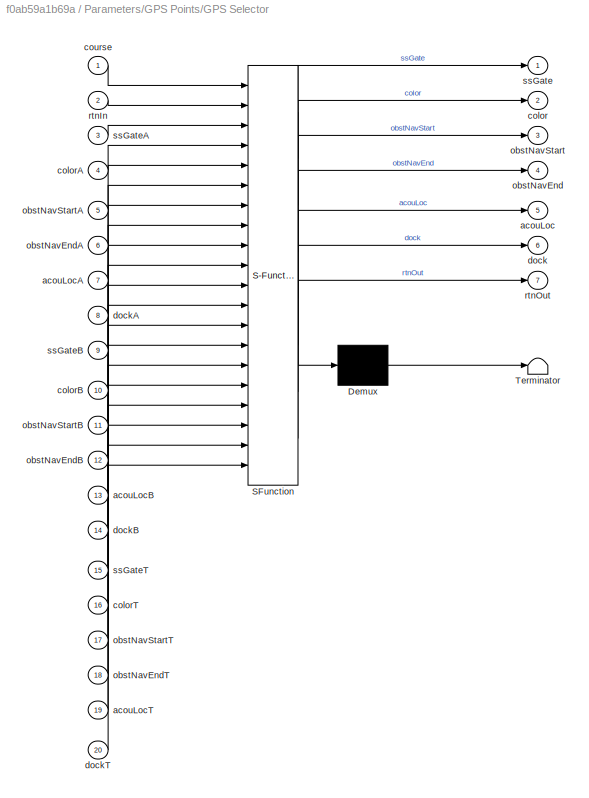
BLOCK [SubSystem] Parameters/GPS Points/GPS Selector
  ErrorFcn = Stateflow.Translate.translate
  PermitHierarchicalResolution = ExplicitOnly
  Ports = [20, 7]
  RequestExecContextInheritance = off
  SFBlockType = MATLAB Function
  TreatAsAtomicUnit = on
BLOCK [Demux] Parameters/GPS Points/GPS Selector/ Demux 
  Outputs = 1
  Ports = [1, 1]
BLOCK [S-Function] Parameters/GPS Points/GPS Selector/ SFunction 
  EnableBusSupport = on
  FunctionName = sf_sfun
  PortCounts = [20 8]
  Ports = [20, 8]
  Tag = Stateflow S-Function RoboBoatVU_2014_Athena 54
BLOCK [Terminator] Parameters/GPS Points/GPS Selector/ Terminator 
BLOCK [Outport] Parameters/GPS Points/GPS Selector/acouLoc
  IconDisplay = Port number
  Port = 5
BLOCK [Inport] Parameters/GPS Points/GPS Selector/acouLocA
  IconDisplay = Port number
  Port = 7
BLOCK [Inport] Parameters/GPS Points/GPS Selector/acouLocB
  IconDisplay = Port number
  Port = 13
BLOCK [Inport] Parameters/GPS Points/GPS Selector/acouLocT
  IconDisplay = Port number
  Port = 19
BLOCK [Outport] Parameters/GPS Points/GPS Selector/color
  IconDisplay = Port number
  Port = 2
BLOCK [Inport] Parameters/GPS Points/GPS Selector/colorA
  IconDisplay = Port number
  Port = 4
BLOCK [Inport] Parameters/GPS Points/GPS Selector/colorB
  IconDisplay = Port number
  Port = 10
BLOCK [Inport] Parameters/GPS Points/GPS Selector/colorT
  IconDisplay = Port number
  Port = 16
BLOCK [Inport] Parameters/GPS Points/GPS Selector/course
  IconDisplay = Port number
BLOCK [Outport] Parameters/GPS Points/GPS Selector/dock
  IconDisplay = Port number
  Port = 6
BLOCK [Inport] Parameters/GPS Points/GPS Selector/dockA
  IconDisplay = Port number
  Port = 8
BLOCK [Inport] Parameters/GPS Points/GPS Selector/dockB
  IconDisplay = Port number
  Port = 14
BLOCK [Inport] Parameters/GPS Points/GPS Selector/dockT
  IconDisplay = Port number
  Port = 20
BLOCK [Outport] Parameters/GPS Points/GPS Selector/obstNavEnd
  IconDisplay = Port number
  Port = 4
BLOCK [Inport] Parameters/GPS Points/GPS Selector/obstNavEndA
  IconDisplay = Port number
  Port = 6
BLOCK [Inport] Parameters/GPS Points/GPS Selector/obstNavEndB
  IconDisplay = Port number
  Port = 12
BLOCK [Inport] Parameters/GPS Points/GPS Selector/obstNavEndT
  IconDisplay = Port number
  Port = 18
BLOCK [Outport] Parameters/GPS Points/GPS Selector/obstNavStart
  IconDisplay = Port number
  Port = 3
BLOCK [Inport] Parameters/GPS Points/GPS Selector/obstNavStartA
  IconDisplay = Port number
  Port = 5
BLOCK [Inport] Parameters/GPS Points/GPS Selector/obstNavStartB
  IconDisplay = Port number
  Port = 11
BLOCK [Inport] Parameters/GPS Points/GPS Selector/obstNavStartT
  IconDisplay = Port number
  Port = 17
BLOCK [Inport] Parameters/GPS Points/GPS Selector/rtnIn
  IconDisplay = Port number
  Port = 2
BLOCK [Outport] Parameters/GPS Points/GPS Selector/rtnOut
  IconDisplay = Port number
  Port = 7
BLOCK [Outport] Parameters/GPS Points/GPS Selector/ssGate
  IconDisplay = Port number
BLOCK [Inport] Parameters/GPS Points/GPS Selector/ssGateA
  IconDisplay = Port number
  Port = 3
BLOCK [Inport] Parameters/GPS Points/GPS Selector/ssGateB
  IconDisplay = Port number
  Port = 9
BLOCK [Inport] Parameters/GPS Points/GPS Selector/ssGateT
  IconDisplay = Port number
  Port = 15
BLOCK [Constant] Parameters/GPS Points/Obst Nav End A
  SampleTime = 0.1
  Value = [1,1]
BLOCK [Constant] Parameters/GPS Points/Obst Nav End B
  SampleTime = 0.1
  Value = [1,1]
BLOCK [Constant] Parameters/GPS Points/Obst Nav End T
  SampleTime = 0.1
  Value = [1,1]
BLOCK [Constant] Parameters/GPS Points/Obst Nav Start A
  SampleTime = 0.1
  Value = [1,1]
BLOCK [Constant] Parameters/GPS Points/Obst Nav Start B
  SampleTime = 0.1
  Value = [1,1]
BLOCK [Constant] Parameters/GPS Points/Obst Nav Start T
  SampleTime = 0.1
  Value = [1,1]
BLOCK [Constant] Parameters/GPS Points/Return
  SampleTime = 0.1
  Value = [1,1]
BLOCK [Constant] Parameters/GPS Points/SpeedGate A
  SampleTime = 0.1
  Value = [1,1]
BLOCK [Constant] Parameters/GPS Points/SpeedGate B
  SampleTime = 0.1
  Value = [1,1]
BLOCK [Constant] Parameters/GPS Points/SpeedGate T
  SampleTime = 0.1
  Value = [4009.5023 7532.9450]
BLOCK [SubSystem] Parameters/Task Options
  Ports = []
  RequestExecContextInheritance = off
BLOCK [SubSystem] Parameters/Task Options/Fix length
  ErrorFcn = Stateflow.Translate.translate
  PermitHierarchicalResolution = ExplicitOnly
  Ports = [1, 1]
  RequestExecContextInheritance = off
  SFBlockType = MATLAB Function
  TreatAsAtomicUnit = on
BLOCK [Demux] Parameters/Task Options/Fix length/ Demux 
  Outputs = 1
  Ports = [1, 1]
BLOCK [S-Function] Parameters/Task Options/Fix length/ SFunction 
  EnableBusSupport = on
  FunctionName = sf_sfun
  PortCounts = [1 2]
  Ports = [1, 2]
  Tag = Stateflow S-Function RoboBoatVU_2014_Athena 80
BLOCK [Terminator] Parameters/Task Options/Fix length/ Terminator 
BLOCK [Outport] Parameters/Task Options/Fix length/adjusted
  IconDisplay = Port number
BLOCK [Inport] Parameters/Task Options/Fix length/selection
  IconDisplay = Port number
BLOCK [Constant] Parameters/Task Options/Speed Gate Option
  Value = uint8('Shotgun')
BLOCK [DataStoreWrite] Parameters/Task Options/Write
  DataStoreName = SpeedGateOption
  Ports = [1]
BLOCK [SubSystem] Parameters/Task Selector
  Ports = []
  RequestExecContextInheritance = off
BLOCK [Constant] Parameters/Task Selector/Acoutstic Location
  SampleTime = 0.1
  Value = uint8('All')
BLOCK [Constant] Parameters/Task Selector/Color Sequence
  SampleTime = 0.1
  Value = uint8('All')
BLOCK [DataStoreWrite] Parameters/Task Selector/Data Store Write
  DataStoreName = mainTask
  Ports = [1]
BLOCK [DataStoreWrite] Parameters/Task Selector/Data Store Write1
  DataStoreName = colorTask
  DialogController = Simulink.DDGSource
  Ports = [1]
BLOCK [DataStoreWrite] Parameters/Task Selector/Data Store Write2
  DataStoreName = ssGateTask
  Ports = [1]
BLOCK [DataStoreWrite] Parameters/Task Selector/Data Store Write3
  DataStoreName = obstNavTask
  Ports = [1]
BLOCK [DataStoreWrite] Parameters/Task Selector/Data Store Write4
  DataStoreName = acouLocTask
  Ports = [1]
BLOCK [DataStoreWrite] Parameters/Task Selector/Data Store Write5
  DataStoreName = dockTask
  Ports = [1]
BLOCK [DataStoreWrite] Parameters/Task Selector/Data Store Write6
  DataStoreName = Return
  Ports = [1]
BLOCK [Constant] Parameters/Task Selector/Docking Task
  SampleTime = 0.1
  Value = uint8('All')
BLOCK [Constant] Parameters/Task Selector/Main Task
  SampleTime = 0.1
  Value = uint8('Dock')
BLOCK [SubSystem] Parameters/Task Selector/Message Composer
  ErrorFcn = Stateflow.Translate.translate
  PermitHierarchicalResolution = ExplicitOnly
  Ports = [1, 1]
  RequestExecContextInheritance = off
  SFBlockType = MATLAB Function
  TreatAsAtomicUnit = on
BLOCK [Demux] Parameters/Task Selector/Message Composer/ Demux 
  Outputs = 1
  Ports = [1, 1]
BLOCK [S-Function] Parameters/Task Selector/Message Composer/ SFunction 
  EnableBusSupport = on
  FunctionName = sf_sfun
  PortCounts = [1 2]
  Ports = [1, 2]
  Tag = Stateflow S-Function RoboBoatVU_2014_Athena 56
BLOCK [Terminator] Parameters/Task Selector/Message Composer/ Terminator 
BLOCK [Outport] Parameters/Task Selector/Message Composer/taskStrAdj
  IconDisplay = Port number
BLOCK [Inport] Parameters/Task Selector/Message Composer/taskStrInit
  IconDisplay = Port number
BLOCK [SubSystem] Parameters/Task Selector/Message Composer1
  ErrorFcn = Stateflow.Translate.translate
  PermitHierarchicalResolution = ExplicitOnly
  Ports = [1, 1]
  RequestExecContextInheritance = off
  SFBlockType = MATLAB Function
  TreatAsAtomicUnit = on
BLOCK [Demux] Parameters/Task Selector/Message Composer1/ Demux 
  Outputs = 1
  Ports = [1, 1]
BLOCK [S-Function] Parameters/Task Selector/Message Composer1/ SFunction 
  EnableBusSupport = on
  FunctionName = sf_sfun
  PortCounts = [1 2]
  Ports = [1, 2]
  Tag = Stateflow S-Function RoboBoatVU_2014_Athena 57
BLOCK [Terminator] Parameters/Task Selector/Message Composer1/ Terminator 
BLOCK [Outport] Parameters/Task Selector/Message Composer1/taskStrAdj
  IconDisplay = Port number
BLOCK [Inport] Parameters/Task Selector/Message Composer1/taskStrInit
  IconDisplay = Port number
BLOCK [SubSystem] Parameters/Task Selector/Message Composer2
  ErrorFcn = Stateflow.Translate.translate
  PermitHierarchicalResolution = ExplicitOnly
  Ports = [1, 1]
  RequestExecContextInheritance = off
  SFBlockType = MATLAB Function
  TreatAsAtomicUnit = on
BLOCK [Demux] Parameters/Task Selector/Message Composer2/ Demux 
  Outputs = 1
  Ports = [1, 1]
BLOCK [S-Function] Parameters/Task Selector/Message Composer2/ SFunction 
  EnableBusSupport = on
  FunctionName = sf_sfun
  PortCounts = [1 2]
  Ports = [1, 2]
  Tag = Stateflow S-Function RoboBoatVU_2014_Athena 58
BLOCK [Terminator] Parameters/Task Selector/Message Composer2/ Terminator 
BLOCK [Outport] Parameters/Task Selector/Message Composer2/taskStrAdj
  IconDisplay = Port number
BLOCK [Inport] Parameters/Task Selector/Message Composer2/taskStrInit
  IconDisplay = Port number
BLOCK [SubSystem] Parameters/Task Selector/Message Composer3
  ErrorFcn = Stateflow.Translate.translate
  PermitHierarchicalResolution = ExplicitOnly
  Ports = [1, 1]
  RequestExecContextInheritance = off
  SFBlockType = MATLAB Function
  TreatAsAtomicUnit = on
BLOCK [Demux] Parameters/Task Selector/Message Composer3/ Demux 
  Outputs = 1
  Ports = [1, 1]
BLOCK [S-Function] Parameters/Task Selector/Message Composer3/ SFunction 
  EnableBusSupport = on
  FunctionName = sf_sfun
  PortCounts = [1 2]
  Ports = [1, 2]
  Tag = Stateflow S-Function RoboBoatVU_2014_Athena 59
BLOCK [Terminator] Parameters/Task Selector/Message Composer3/ Terminator 
BLOCK [Outport] Parameters/Task Selector/Message Composer3/taskStrAdj
  IconDisplay = Port number
BLOCK [Inport] Parameters/Task Selector/Message Composer3/taskStrInit
  IconDisplay = Port number
BLOCK [SubSystem] Parameters/Task Selector/Message Composer4
  ErrorFcn = Stateflow.Translate.translate
  PermitHierarchicalResolution = ExplicitOnly
  Ports = [1, 1]
  RequestExecContextInheritance = off
  SFBlockType = MATLAB Function
  TreatAsAtomicUnit = on
BLOCK [Demux] Parameters/Task Selector/Message Composer4/ Demux 
  Outputs = 1
  Ports = [1, 1]
BLOCK [S-Function] Parameters/Task Selector/Message Composer4/ SFunction 
  EnableBusSupport = on
  FunctionName = sf_sfun
  PortCounts = [1 2]
  Ports = [1, 2]
  Tag = Stateflow S-Function RoboBoatVU_2014_Athena 60
BLOCK [Terminator] Parameters/Task Selector/Message Composer4/ Terminator 
BLOCK [Outport] Parameters/Task Selector/Message Composer4/taskStrAdj
  IconDisplay = Port number
BLOCK [Inport] Parameters/Task Selector/Message Composer4/taskStrInit
  IconDisplay = Port number
BLOCK [SubSystem] Parameters/Task Selector/Message Composer5
  ErrorFcn = Stateflow.Translate.translate
  PermitHierarchicalResolution = ExplicitOnly
  Ports = [1, 1]
  RequestExecContextInheritance = off
  SFBlockType = MATLAB Function
  TreatAsAtomicUnit = on
BLOCK [Demux] Parameters/Task Selector/Message Composer5/ Demux 
  Outputs = 1
  Ports = [1, 1]
BLOCK [S-Function] Parameters/Task Selector/Message Composer5/ SFunction 
  EnableBusSupport = on
  FunctionName = sf_sfun
  PortCounts = [1 2]
  Ports = [1, 2]
  Tag = Stateflow S-Function RoboBoatVU_2014_Athena 61
BLOCK [Terminator] Parameters/Task Selector/Message Composer5/ Terminator 
BLOCK [Outport] Parameters/Task Selector/Message Composer5/taskStrAdj
  IconDisplay = Port number
BLOCK [Inport] Parameters/Task Selector/Message Composer5/taskStrInit
  IconDisplay = Port number
BLOCK [SubSystem] Parameters/Task Selector/Message Composer6
  ErrorFcn = Stateflow.Translate.translate
  PermitHierarchicalResolution = ExplicitOnly
  Ports = [1, 1]
  RequestExecContextInheritance = off
  SFBlockType = MATLAB Function
  TreatAsAtomicUnit = on
BLOCK [Demux] Parameters/Task Selector/Message Composer6/ Demux 
  Outputs = 1
  Ports = [1, 1]
BLOCK [S-Function] Parameters/Task Selector/Message Composer6/ SFunction 
  EnableBusSupport = on
  FunctionName = sf_sfun
  PortCounts = [1 2]
  Ports = [1, 2]
  Tag = Stateflow S-Function RoboBoatVU_2014_Athena 62
BLOCK [Terminator] Parameters/Task Selector/Message Composer6/ Terminator 
BLOCK [Outport] Parameters/Task Selector/Message Composer6/taskStrAdj
  IconDisplay = Port number
BLOCK [Inport] Parameters/Task Selector/Message Composer6/taskStrInit
  IconDisplay = Port number
BLOCK [Constant] Parameters/Task Selector/Obstacle Nav
  SampleTime = 0.1
  Value = uint8('All')
BLOCK [Constant] Parameters/Task Selector/Return
  SampleTime = 0.1
  Value = uint8('All')
BLOCK [Constant] Parameters/Task Selector/Start Speed Gate
  SampleTime = 0.1
  Value = uint8('Color')
BLOCK [SubSystem] Parameters/Timeouts and Constants
  Ports = []
  RequestExecContextInheritance = off
BLOCK [Constant] Parameters/Timeouts and Constants/Acoustic Location Timeout
  SampleTime = 0.1
  Value = 30
BLOCK [Constant] Parameters/Timeouts and Constants/Color Timeout
  SampleTime = 0.1
  Value = 30
BLOCK [DataStoreWrite] Parameters/Timeouts and Constants/Data Store Write
  DataStoreName = ssGateTimeout
  Ports = [1]
BLOCK [DataStoreWrite] Parameters/Timeouts and Constants/Data Store Write1
  DataStoreName = colorTimeout
  Ports = [1]
BLOCK [DataStoreWrite] Parameters/Timeouts and Constants/Data Store Write2
  DataStoreName = obstNavTimeout
  Ports = [1]
BLOCK [DataStoreWrite] Parameters/Timeouts and Constants/Data Store Write3
  DataStoreName = acouLocTimeout
  Ports = [1]
BLOCK [DataStoreWrite] Parameters/Timeouts and Constants/Data Store Write4
  DataStoreName = dockTimeout
  Ports = [1]
BLOCK [DataStoreWrite] Parameters/Timeouts and Constants/Data Store Write5
  DataStoreName = GPSapproachSpeed
  Ports = [1]
BLOCK [DataStoreWrite] Parameters/Timeouts and Constants/Data Store Write6
  DataStoreName = GPSapproachDist
  Ports = [1]
BLOCK [DataStoreWrite] Parameters/Timeouts and Constants/Data Store Write7
  DataStoreName = testTimeout
  Ports = [1]
BLOCK [Constant] Parameters/Timeouts and Constants/Docking Timeout
  SampleTime = 0.1
  Value = 30
BLOCK [Constant] Parameters/Timeouts and Constants/GPS Approach Distance
  SampleTime = 0.1
  Value = 3
BLOCK [Constant] Parameters/Timeouts and Constants/GPS Approach Speed
  SampleTime = 0.1
  Value = 4000
BLOCK [Constant] Parameters/Timeouts and Constants/Obstacle Nav Timeout
  SampleTime = 0.1
  Value = 30
BLOCK [Constant] Parameters/Timeouts and Constants/Start Speed Gate Timeout
  SampleTime = 0.1
  Value = 120
BLOCK [Constant] Parameters/Timeouts and Constants/Test Timeout
  SampleTime = 0.1
  Value = 15
BLOCK [DataStoreWrite] Parameters/Write
  DataStoreName = Course
  Ports = [1]
BLOCK [SubSystem] Sensors
  Ports = [0, 1]
  RequestExecContextInheritance = off
BLOCK [SubSystem] Sensors/Analog In
  Ports = []
  RequestExecContextInheritance = off
BLOCK [Reference] Sensors/Analog In/Analog input  REF=speedgoatlib_IO102/Analog input
  Ports = [0, 16]
  SourceBlock = speedgoatlib_IO102/Analog input
  SourceType = ad_IO102
  adCoupling = 1
  channels = [1,2,3,4,5,6,7,8,9,10,11,12,13,14,15,16]
  high_voltage = off
  id = 1
  pciSlot = -1
  range = 2
  ts = 0.1
BLOCK [Terminator] Sensors/Analog In/Terminator
BLOCK [Terminator] Sensors/Analog In/Terminator1
BLOCK [Terminator] Sensors/Analog In/Terminator10
BLOCK [Terminator] Sensors/Analog In/Terminator11
BLOCK [Terminator] Sensors/Analog In/Terminator12
BLOCK [Terminator] Sensors/Analog In/Terminator13
BLOCK [Terminator] Sensors/Analog In/Terminator14
BLOCK [Terminator] Sensors/Analog In/Terminator15
BLOCK [Terminator] Sensors/Analog In/Terminator2
BLOCK [Terminator] Sensors/Analog In/Terminator3
BLOCK [Terminator] Sensors/Analog In/Terminator4
BLOCK [Terminator] Sensors/Analog In/Terminator5
BLOCK [Terminator] Sensors/Analog In/Terminator6
BLOCK [Terminator] Sensors/Analog In/Terminator7
BLOCK [Terminator] Sensors/Analog In/Terminator8
BLOCK [Terminator] Sensors/Analog In/Terminator9
BLOCK [BusCreator] Sensors/Bus Creator
  DisplayOption = bar
  Inputs = 2
  Ports = [2, 1]
BLOCK [BusCreator] Sensors/Bus Creator1
  DisplayOption = bar
  Inputs = 2
  Ports = [2, 1]
BLOCK [SubSystem] Sensors/Digital In
  Ports = [0, 1]
  RequestExecContextInheritance = off
BLOCK [BusCreator] Sensors/Digital In/Bus Creator
  DisplayOption = bar
  Inputs = 2
  Ports = [2, 1]
BLOCK [Outport] Sensors/Digital In/Digital In
  IconDisplay = Port number
BLOCK [Reference] Sensors/Digital In/Digital input  REF=speedgoatlib_IO102/Digital input
  Ports = [0, 8]
  SourceBlock = speedgoatlib_IO102/Digital input
  SourceType = di_IO102
  channels = [1,2,3,4,5,6,7,8]
  id = 1
  pciSlot = -1
  ts = 0.1
BLOCK [Terminator] Sensors/Digital In/Terminator17
BLOCK [Terminator] Sensors/Digital In/Terminator18
BLOCK [Terminator] Sensors/Digital In/Terminator19
BLOCK [Terminator] Sensors/Digital In/Terminator20
BLOCK [Terminator] Sensors/Digital In/Terminator21
BLOCK [Terminator] Sensors/Digital In/Terminator22
BLOCK [Outport] Sensors/Input Signals
  IconDisplay = Port number
BLOCK [SubSystem] Sensors/Serial In
  Ports = [0, 1]
  RequestExecContextInheritance = off
BLOCK [SubSystem] Sensors/Serial In/ GPS
  Ports = [1, 1]
  RequestExecContextInheritance = off
BLOCK [BusCreator] Sensors/Serial In/ GPS/Bus Creator
  DisplayOption = bar
  Inputs = 5
  Ports = [5, 1]
BLOCK [Reference] Sensors/Serial In/ GPS/Decode GPGGA  REF=xpcseriallib/ASCII Decode 
  Ports = [1, 8]
  SourceBlock = xpcseriallib/ASCII Decode
  SourceType = ASCII Decode
  format = $GPGGA,%d,%f,%c%f,%c%f,%f,%f
  nvars = 8
  vartypes = { }
BLOCK [Reference] Sensors/Serial In/ GPS/Decode GPRMC  REF=xpcseriallib/ASCII Decode 
  Ports = [1, 8]
  SourceBlock = xpcseriallib/ASCII Decode
  SourceType = ASCII Decode
  format = $GPRMC,%f,%c%f,%c%f,%c%f,%f
  nvars = 8
  vartypes = { }
BLOCK [Reference] Sensors/Serial In/ GPS/FIFO ASCII read 1  REF=xpcseriallib/FIFO ASCII read 
  Ports = [1, 2]
  SourceBlock = xpcseriallib/FIFO ASCII read
  SourceType = Asynchronous FIFO Block: reader
  enable = off
  header = {'$GPGGA','$GPRMC'}
  hold = Zero output if no new data
  maxsize = 1024
  outputtype = 8 bit uint null terminated
  sampletime = -1
  term = [13 10]
BLOCK [Inport] Sensors/Serial In/ GPS/GPS NMEA
  IconDisplay = Port number
BLOCK [Outport] Sensors/Serial In/ GPS/GPS data (5)
  IconDisplay = Port number
BLOCK [Terminator] Sensors/Serial In/ GPS/Terminator1
BLOCK [Terminator] Sensors/Serial In/ GPS/Terminator10
BLOCK [Terminator] Sensors/Serial In/ GPS/Terminator11
BLOCK [Terminator] Sensors/Serial In/ GPS/Terminator2
BLOCK [Terminator] Sensors/Serial In/ GPS/Terminator3
BLOCK [Terminator] Sensors/Serial In/ GPS/Terminator4
BLOCK [Terminator] Sensors/Serial In/ GPS/Terminator5
BLOCK [Terminator] Sensors/Serial In/ GPS/Terminator6
BLOCK [Terminator] Sensors/Serial In/ GPS/Terminator7
BLOCK [Terminator] Sensors/Serial In/ GPS/Terminator8
BLOCK [Terminator] Sensors/Serial In/ GPS/Terminator9
BLOCK [Reference] Sensors/Serial In/ASCII Encode   REF=xpcseriallib/ASCII Encode 
  Ports = [0, 1]
  SourceBlock = xpcseriallib/ASCII Encode
  SourceType = ASCII Encode
  format = MSGS\r\n
  maxlength = 128
  nvars = 0
  vartypes = { 'double' }
BLOCK [SubSystem] Sensors/Serial In/Arduino Due
  Ports = [1, 1]
  RequestExecContextInheritance = off
BLOCK [Reference] Sensors/Serial In/Arduino Due/ASCII Decode 1  REF=xpcseriallib/ASCII Decode 
  Ports = [1, 5]
  SourceBlock = xpcseriallib/ASCII Decode
  SourceType = ASCII Decode
  format = FC:%04d,SC:%04d,TC:%04d,PD:%04d,PA:%04d\r\n
  nvars = 5
  vartypes = {'double'}
BLOCK [Inport] Sensors/Serial In/Arduino Due/Arduino Due In
  IconDisplay = Port number
BLOCK [Outport] Sensors/Serial In/Arduino Due/Arduino Due Out
  IconDisplay = Port number
BLOCK [BusCreator] Sensors/Serial In/Arduino Due/Bus Creator
  DisplayOption = bar
  Inputs = 5
  Ports = [5, 1]
BLOCK [Reference] Sensors/Serial In/Arduino Due/FIFO ASCII read   REF=xpcseriallib/FIFO ASCII read 
  Ports = [1, 1]
  SourceBlock = xpcseriallib/FIFO ASCII read
  SourceType = Asynchronous FIFO Block: reader
  enable = off
  header = {'FC:'}
  hold = Zero output if no new data
  maxsize = 1024
  outputtype = 8 bit uint null terminated
  sampletime = 0.1
  term = [13 10]
BLOCK [Reference] Sensors/Serial In/Baseboard Serial F  REF=xpcseriallib/Mainboard/Baseboard
Serial F
  Ports = [2, 2]
  SourceBlock = xpcseriallib/Mainboard/Baseboard\nSerial F
  SourceType = Baseboard RS232 Send Receive
  automode1 = on
  automode2 = on
  baud1 = 19200
  baud2 = 115200
  config = Com1/Com3
  fifomode1 = 64 deep
  fifomode2 = 64 deep
  group = Basic Setup
  irqnum = 4
  ndata1 = 8
  ndata2 = 8
  nstop1 = 1
  nstop2 = 1
  parity1 = None
  parity2 = None
  port = 2
  rcvfifosize1 = 1024
  rcvfifosize2 = 1024
  rlevel1 = half full
  rlevel2 = half full
  saddr1 = 0x3f8
  saddr2 = 0x3e8
  xmtdatatype1 = 8 bit uint null terminated
  xmtdatatype2 = 8 bit uint null terminated
  xmtfifosize1 = 1024
  xmtfifosize2 = 1024
BLOCK [Reference] Sensors/Serial In/Baseboard Serial F1  REF=xpcseriallib/Mainboard/Baseboard
Serial F
  Ports = [2, 2]
  SourceBlock = xpcseriallib/Mainboard/Baseboard\nSerial F
  SourceType = Baseboard RS232 Send Receive
  automode1 = on
  automode2 = on
  baud1 = 19200
  baud2 = 115200
  config = Com2/Com4
  fifomode1 = 64 deep
  fifomode2 = 64 deep
  group = Basic Setup
  irqnum = 4
  ndata1 = 8
  ndata2 = 8
  nstop1 = 1
  nstop2 = 1
  parity1 = None
  parity2 = None
  port = 2
  rcvfifosize1 = 1024
  rcvfifosize2 = 1024
  rlevel1 = half full
  rlevel2 = half full
  saddr1 = 0x3f8
  saddr2 = 0x3e8
  xmtdatatype1 = 8 bit uint null terminated
  xmtdatatype2 = 8 bit uint null terminated
  xmtfifosize1 = 1024
  xmtfifosize2 = 1024
BLOCK [BusCreator] Sensors/Serial In/Bus Creator
  DisplayOption = bar
  Ports = [4, 1]
BLOCK [SubSystem] Sensors/Serial In/Decode Compass
  Ports = [1, 1]
  RequestExecContextInheritance = off
BLOCK [Reference] Sensors/Serial In/Decode Compass/ASCII Decode   REF=xpcseriallib/ASCII Decode 
  Ports = [1, 7]
  SourceBlock = xpcseriallib/ASCII Decode
  SourceType = ASCII Decode
  format = $PTNTHPR,%f,%c%f,%c%f,%c
  nvars = 7
  vartypes = { }
BLOCK [BusCreator] Sensors/Serial In/Decode Compass/Bus Creator
  DisplayOption = bar
  Inputs = 3
  Ports = [3, 1]
BLOCK [Inport] Sensors/Serial In/Decode Compass/Compass NMEA
  IconDisplay = Port number
BLOCK [Outport] Sensors/Serial In/Decode Compass/Compass data (3)
  IconDisplay = Port number
BLOCK [SubSystem] Sensors/Serial In/Decode Compass/Correct Heading Angle Magnetic to True North
  Ports = [1, 1]
  RequestExecContextInheritance = off
BLOCK [Inport] Sensors/Serial In/Decode Compass/Correct Heading Angle Magnetic to True North/Heading Mag
  IconDisplay = Port number
BLOCK [Outport] Sensors/Serial In/Decode Compass/Correct Heading Angle Magnetic to True North/Heading True
  IconDisplay = Port number
BLOCK [SubSystem] Sensors/Serial In/Decode Compass/Correct Heading Angle Magnetic to True North/Magnetic to True North Conversion
  ErrorFcn = Stateflow.Translate.translate
  PermitHierarchicalResolution = ExplicitOnly
  Ports = [1, 1]
  RequestExecContextInheritance = off
  SFBlockType = MATLAB Function
  TreatAsAtomicUnit = on
BLOCK [Demux] Sensors/Serial In/Decode Compass/Correct Heading Angle Magnetic to True North/Magnetic to True North Conversion/ Demux 
  Outputs = 1
  Ports = [1, 1]
BLOCK [S-Function] Sensors/Serial In/Decode Compass/Correct Heading Angle Magnetic to True North/Magnetic to True North Conversion/ SFunction 
  EnableBusSupport = on
  FunctionName = sf_sfun
  PortCounts = [1 2]
  Ports = [1, 2]
  Tag = Stateflow S-Function RoboBoatVU_2014_Athena 44
BLOCK [Terminator] Sensors/Serial In/Decode Compass/Correct Heading Angle Magnetic to True North/Magnetic to True North Conversion/ Terminator 
BLOCK [Inport] Sensors/Serial In/Decode Compass/Correct Heading Angle Magnetic to True North/Magnetic to True North Conversion/HeadingM
  IconDisplay = Port number
BLOCK [Outport] Sensors/Serial In/Decode Compass/Correct Heading Angle Magnetic to True North/Magnetic to True North Conversion/HeadingT
  IconDisplay = Port number
BLOCK [Reference] Sensors/Serial In/Decode Compass/FIFO ASCII read   REF=xpcseriallib/FIFO ASCII read 
  Ports = [1, 1]
  SourceBlock = xpcseriallib/FIFO ASCII read
  SourceType = Asynchronous FIFO Block: reader
  enable = off
  header = {'$PTNTHPR'}
  hold = Zero output if no new data
  maxsize = 64
  outputtype = 8 bit uint null terminated
  sampletime = -1
  term = [13 10]
BLOCK [Terminator] Sensors/Serial In/Decode Compass/Terminator
BLOCK [Terminator] Sensors/Serial In/Decode Compass/Terminator1
BLOCK [Terminator] Sensors/Serial In/Decode Compass/Terminator2
BLOCK [Terminator] Sensors/Serial In/Decode Compass/Terminator3
BLOCK [Ground] Sensors/Serial In/Ground
BLOCK [Ground] Sensors/Serial In/Ground1
BLOCK [Ground] Sensors/Serial In/Ground2
BLOCK [Ground] Sensors/Serial In/Ground3
BLOCK [Ground] Sensors/Serial In/Ground4
BLOCK [SubSystem] Sensors/Serial In/LIDAR Panda
  Ports = [1, 1]
  RequestExecContextInheritance = off
BLOCK [Reference] Sensors/Serial In/LIDAR Panda/ASCII Decode 2  REF=xpcseriallib/ASCII Decode 
  Ports = [1, 1]
  SourceBlock = xpcseriallib/ASCII Decode
  SourceType = ASCII Decode
  format = Color:%d\r\n
  nvars = 1
  vartypes = {'double'}
BLOCK [Reference] Sensors/Serial In/LIDAR Panda/FIFO ASCII read 1  REF=xpcseriallib/FIFO ASCII read 
  Ports = [1, 1]
  SourceBlock = xpcseriallib/FIFO ASCII read
  SourceType = Asynchronous FIFO Block: reader
  enable = off
  header = {'Color:'}
  hold = Hold last output if no new data
  maxsize = 1024
  outputtype = 8 bit uint null terminated
  sampletime = 0.1
  term = [13 10]
BLOCK [Inport] Sensors/Serial In/LIDAR Panda/LIDAR Panda In
  IconDisplay = Port number
BLOCK [Outport] Sensors/Serial In/LIDAR Panda/LIDAR Panda Out
  IconDisplay = Port number
BLOCK [Outport] Sensors/Serial In/Serial In
  IconDisplay = Port number
BLOCK [Reference] Sensors/Serial In/TPMC465  REF=speedgoatlib/IO504/TPMC465  (lib defined in mdl_2b10c7445f81, mdl_649b3eec89a6, +4 more)
  Ports = [8, 8]
  SourceBlock = speedgoatlib/IO504/TPMC465
  SourceType = sendreceive_IO504
  baud1 = 115200
  baud2 = 115200
  baud3 = 115200
  baud4 = 115200
  baud5 = 115200
  baud6 = 115200
  baud7 = 115200
  baud8 = 115200
  bauddivisor1 = 1
  bauddivisor2 = 1
  bauddivisor3 = 1
  bauddivisor4 = 1
  bauddivisor5 = 1
  bauddivisor6 = 1
  bauddivisor7 = 1
  bauddivisor8 = 1
  group = Basic Setup
  hwmode1 = none
  hwmode2 = none
  hwmode3 = none
  hwmode4 = none
  hwmode5 = none
  hwmode6 = none
  hwmode7 = none
  hwmode8 = none
  irqnum = 9
  ndata1 = 8
  ndata2 = 8
  ndata3 = 8
  ndata4 = 8
  ndata5 = 8
  ndata6 = 8
  ndata7 = 8
  ndata8 = 8
  nstop1 = 1
  nstop2 = 1
  nstop3 = 1
  nstop4 = 1
  nstop5 = 1
  nstop6 = 1
  nstop7 = 1
  nstop8 = 1
  parity1 = None
  parity2 = None
  parity3 = None
  parity4 = None
  parity5 = None
  parity6 = None
  parity7 = None
  parity8 = None
  port = 1
  prescale1 = off
  prescale2 = off
  prescale3 = off
  prescale4 = off
  prescale5 = off
  prescale6 = off
  prescale7 = off
  prescale8 = off
  rcvfifosize1 = 1024
  rcvfifosize2 = 1024
  rcvfifosize3 = 1024
  rcvfifosize4 = 1024
  rcvfifosize5 = 1024
  rcvfifosize6 = 1024
  rcvfifosize7 = 1024
  rcvfifosize8 = 1024
  rlevel1 = half full (32)
  rlevel2 = half full (32)
  rlevel3 = half full (32)
  rlevel4 = half full (32)
  rlevel5 = 1
  rlevel6 = 1
  rlevel7 = 1
  rlevel8 = 1
  rs485auto1 = off
  rs485auto2 = off
  rs485auto3 = off
  rs485auto4 = off
  rs485auto5 = off
  rs485auto6 = off
  rs485auto7 = off
  rs485auto8 = off
  rs485delay1 = 0
  rs485delay2 = 0
  rs485delay3 = 0
  rs485delay4 = 0
  rs485delay5 = 0
  rs485delay6 = 0
  rs485delay7 = 0
  rs485delay8 = 0
  sampling1 = 16x (standard)
  sampling2 = 16x (standard)
  sampling3 = 16x (standard)
  sampling4 = 16x (standard)
  sampling5 = 16x (standard)
  sampling6 = 16x (standard)
  sampling7 = 16x (standard)
  sampling8 = 16x (standard)
  slot = -1
  standard1 = on
  standard2 = on
  standard3 = on
  standard4 = on
  standard5 = on
  standard6 = on
  standard7 = on
  standard8 = on
  swmode1 = none
  swmode2 = none
  swmode3 = none
  swmode4 = none
  swmode5 = none
  swmode6 = none
  swmode7 = none
  swmode8 = none
  transceiver1 = RS232 (max 921.6kb/s)
  transceiver2 = RS232 (max 921.6kb/s)
  transceiver3 = RS232 (max 921.6kb/s)
  transceiver4 = RS232 (max 921.6kb/s)
  transceiver5 = RS232 (max 921.6kb/s)
  transceiver6 = RS232 (max 921.6kb/s)
  transceiver7 = RS232 (max 921.6kb/s)
  transceiver8 = RS232 (max 921.6kb/s)
  xmtdatatype1 = 8 bit uint null terminated
  xmtdatatype2 = 8 bit uint null terminated
  xmtdatatype3 = 8 bit uint null terminated
  xmtdatatype4 = 8 bit uint null terminated
  xmtdatatype5 = 8 bit uint null terminated
  xmtdatatype6 = 8 bit uint null terminated
  xmtdatatype7 = 8 bit uint null terminated
  xmtdatatype8 = 8 bit uint null terminated
  xmtfifosize1 = 1024
  xmtfifosize2 = 1024
  xmtfifosize3 = 1024
  xmtfifosize4 = 1024
  xmtfifosize5 = 1024
  xmtfifosize6 = 1024
  xmtfifosize7 = 1024
  xmtfifosize8 = 1024
  xoffchar1 = 19
  xoffchar2 = 19
  xoffchar3 = 19
  xoffchar4 = 19
  xoffchar5 = 19
  xoffchar6 = 19
  xoffchar7 = 19
  xoffchar8 = 19
  xonchar1 = 17
  xonchar2 = 17
  xonchar3 = 17
  xonchar4 = 17
  xonchar5 = 17
  xonchar6 = 17
  xonchar7 = 17
  xonchar8 = 17
BLOCK [Terminator] Sensors/Serial In/Terminator1
BLOCK [Terminator] Sensors/Serial In/Terminator2
BLOCK [Terminator] Sensors/Serial In/Terminator3
BLOCK [Terminator] Sensors/Serial In/Terminator4
BLOCK [Terminator] Sensors/Serial In/Terminator5
BLOCK [Terminator] Sensors/Serial In/Terminator6
BLOCK [Terminator] Sensors/Serial In/Terminator7
BLOCK [Terminator] Sensors/Serial In/Terminator8
BLOCK [SubSystem] Sensors/Video In
  Ports = [0, 1]
  RequestExecContextInheritance = off
BLOCK [Constant] Sensors/Video In/Constant
  Commented = on
  Value = uint8(255*ones(480,640,3))
BLOCK [Reference] Sensors/Video In/From USB Video Device  REF=xpcvideousblib/From USB Video Device
  Ports = [0, 1]
  SourceBlock = xpcvideousblib/From USB Video Device
  SourceType = xpcvideousb
  cfmt = RGB24 (8:8:8)
  ffmt = Uncompressed
  fint = 1/10
  iheight = 480
  isig = One multidimensional signal
  iwidth = 640
  paddr = -1
  sconf = <Select a configuration>
  status = off
  trigger = off
  updateBlock = 1
BLOCK [Outport] Sensors/Video In/RGB image
  IconDisplay = Port number
BLOCK [Reference] Sensors/Video In/USB Video Device List  REF=xpcvideousblib/USB Video Device List
  Ports = []
  ShowInLibBrowser = 0
  SourceBlock = xpcvideousblib/USB Video Device List
  SourceType = xpcusbsearch
  UserDataPersistent = on
  usb_search = on
BLOCK [Reference] Setup  REF=speedgoatlib_IO102/Setup
  Ports = []
  SourceBlock = speedgoatlib_IO102/Setup
  SourceType = setup_IO102
  adChannel = 16
  adChannelMode = Multiple-channel (enter number of channels below)
  adCoupling = Differential
  cal = off
  daChannel = [1,2,3,4]
  daInitValue = [0]
  daReset = [1]
  diChannel = [1,2,3,4,5,6,7,8]
  doChannel = [1,2,3,4,5,6,7,8]
  doInitValue = [0]
  doReset = [1]
  group = Digital output setup
  id = 1
  pciSlot = -1
  range = +-5V
BLOCK [SubSystem] Sinks
  Ports = [1]
  RequestExecContextInheritance = off
BLOCK [BusSelector] Sinks/Bus Selector
  OutputSignals = Sensors.Serial In.Compass.Heading,Outputs.Control Signals,Outputs.Annotated Image,Outputs.Control Signals.Arduino Signals
  Ports = [1, 4]
BLOCK [SubSystem] Sinks/Digital Outputs
  Ports = [1]
  RequestExecContextInheritance = off
BLOCK [BusSelector] Sinks/Digital Outputs/Bus Selector
  OutputSignals = Ready to Read,Due Sample Start
  Ports = [1, 2]
BLOCK [Inport] Sinks/Digital Outputs/Digital Outputs
  IconDisplay = Port number
BLOCK [Reference] Sinks/Digital Outputs/Digital output  REF=speedgoatlib_IO102/Digital output
  Ports = [8]
  SourceBlock = speedgoatlib_IO102/Digital output
  SourceType = do_IO102
  channels = [1,2,3,4,5,6,7,8]
  id = 1
  pciSlot = -1
  ts = 0.1
BLOCK [Ground] Sinks/Digital Outputs/Ground
BLOCK [SubSystem] Sinks/Image Transmission
  Ports = [1]
  RequestExecContextInheritance = off
BLOCK [Reference] Sinks/Image Transmission/Image Transmit  REF=xpcvideoutillib/Image Transmit
  Ports = [2]
  SourceBlock = xpcvideoutillib/Image Transmit
  SourceType = xpcimagetransmit
  ipAddress = 255.255.255.255
  ipPort = 25000
  localPort = -1
  maxpacket = 40*1024
  sampletime = -1
  vblLen = on
BLOCK [Reference] Sinks/Image Transmission/Jpeg Compression1  REF=xpcvideoutillib/Jpeg Compression
  Ports = [1, 2]
  SourceBlock = xpcvideoutillib/Jpeg Compression
  SourceType = CJPEG
  cspace = RGB
  isig = One multidimensional signal
  length = on
  maxsize = 640*480
  quality = 20
BLOCK [Inport] Sinks/Image Transmission/RGB Image
  IconDisplay = Port number
BLOCK [RateTransition] Sinks/Image Transmission/Rate Transition
  OutPortSampleTime = 1
BLOCK [Inport] Sinks/Output Signal
  IconDisplay = Port number
BLOCK [SubSystem] Sinks/actuators
  Ports = [2]
  RequestExecContextInheritance = off
BLOCK [Inport] Sinks/actuators/Compass Heading
  IconDisplay = Port number
BLOCK [Inport] Sinks/actuators/Control Signals
  IconDisplay = Port number
  Port = 2
BLOCK [SubSystem] Sinks/actuators/analog output
  Ports = [2]
  RequestExecContextInheritance = off
BLOCK [Reference] Sinks/actuators/analog output/Analog output  REF=speedgoatlib_IO102/Analog output
  Ports = [4]
  SourceBlock = speedgoatlib_IO102/Analog output
  SourceType = da_IO102
  channels = [1,2,3,4]
  id = 1
  pciSlot = -1
  range = 2
  ts = 0.1
BLOCK [Inport] Sinks/actuators/analog output/Compass Heading
  IconDisplay = Port number
BLOCK [Inport] Sinks/actuators/analog output/Control Signals
  IconDisplay = Port number
  Port = 2
BLOCK [Ground] Sinks/actuators/analog output/Ground
BLOCK [SubSystem] Sinks/actuators/analog output/Subsystem
  Ports = [2, 2]
  RequestExecContextInheritance = off
BLOCK [BusSelector] Sinks/actuators/analog output/Subsystem/Bus Selector
  OutputSignals = RPM,Desired Heading
  Ports = [1, 2]
BLOCK [Inport] Sinks/actuators/analog output/Subsystem/Compass Heading
  IconDisplay = Port number
BLOCK [Inport] Sinks/actuators/analog output/Subsystem/Control Signals
  IconDisplay = Port number
  Port = 2
BLOCK [SubSystem] Sinks/actuators/analog output/Subsystem/Heading Controller
  Ports = [2, 1]
  RequestExecContextInheritance = off
BLOCK [Inport] Sinks/actuators/analog output/Subsystem/Heading Controller/Compass Heading
  IconDisplay = Port number
  Port = 2
BLOCK [Gain] Sinks/actuators/analog output/Subsystem/Heading Controller/Gain
  Gain = -0.05
  OutDataTypeStr = Inherit: Inherit via internal rule
  ParamDataTypeStr = Inherit: Inherit via internal rule
  SaturateOnIntegerOverflow = off
BLOCK [Inport] Sinks/actuators/analog output/Subsystem/Heading Controller/Heading Desired
  IconDisplay = Port number
BLOCK [SubSystem] Sinks/actuators/analog output/Subsystem/Heading Controller/MATLAB Function
  ErrorFcn = Stateflow.Translate.translate
  PermitHierarchicalResolution = ExplicitOnly
  Ports = [2, 1]
  RequestExecContextInheritance = off
  SFBlockType = MATLAB Function
  TreatAsAtomicUnit = on
BLOCK [Demux] Sinks/actuators/analog output/Subsystem/Heading Controller/MATLAB Function/ Demux 
  Outputs = 1
  Ports = [1, 1]
BLOCK [S-Function] Sinks/actuators/analog output/Subsystem/Heading Controller/MATLAB Function/ SFunction 
  EnableBusSupport = on
  FunctionName = sf_sfun
  PortCounts = [2 2]
  Ports = [2, 2]
  Tag = Stateflow S-Function RoboBoatVU_2014_Athena 3
BLOCK [Terminator] Sinks/actuators/analog output/Subsystem/Heading Controller/MATLAB Function/ Terminator 
BLOCK [Inport] Sinks/actuators/analog output/Subsystem/Heading Controller/MATLAB Function/CompassHeading
  IconDisplay = Port number
  Port = 2
BLOCK [Inport] Sinks/actuators/analog output/Subsystem/Heading Controller/MATLAB Function/HeadingDesired
  IconDisplay = Port number
BLOCK [Outport] Sinks/actuators/analog output/Subsystem/Heading Controller/MATLAB Function/steering
  IconDisplay = Port number
BLOCK [Saturate] Sinks/actuators/analog output/Subsystem/Heading Controller/Saturation
  InputPortMap = u0
  LowerLimit = 0
  Ports = [1, 1]
  UpperLimit = 5
BLOCK [Outport] Sinks/actuators/analog output/Subsystem/Heading Controller/Steering
  IconDisplay = Port number
BLOCK [Sum] Sinks/actuators/analog output/Subsystem/Heading Controller/Sum
  IconShape = round
  InputSameDT = off
  Inputs = ++|
  OutDataTypeStr = Inherit: Inherit via internal rule
  Ports = [2, 1]
  SaturateOnIntegerOverflow = off
BLOCK [Constant] Sinks/actuators/analog output/Subsystem/Heading Controller/Voltage Nuetral
  Value = 2.5
BLOCK [Outport] Sinks/actuators/analog output/Subsystem/Propulsion
  IconDisplay = Port number
BLOCK [SubSystem] Sinks/actuators/analog output/Subsystem/Propulsion Controller
  Ports = [1, 1]
  RequestExecContextInheritance = off
BLOCK [Outport] Sinks/actuators/analog output/Subsystem/Propulsion Controller/Propulsion
  IconDisplay = Port number
BLOCK [Inport] Sinks/actuators/analog output/Subsystem/Propulsion Controller/RPM
  IconDisplay = Port number
BLOCK [Saturate] Sinks/actuators/analog output/Subsystem/Propulsion Controller/Saturation
  InputPortMap = u0
  LowerLimit = 0
  Ports = [1, 1]
  UpperLimit = 5
BLOCK [Sum] Sinks/actuators/analog output/Subsystem/Propulsion Controller/Sum
  IconShape = round
  InputSameDT = off
  Inputs = ++|
  OutDataTypeStr = Inherit: Inherit via internal rule
  Ports = [2, 1]
  SaturateOnIntegerOverflow = off
BLOCK [Constant] Sinks/actuators/analog output/Subsystem/Propulsion Controller/Voltage Neutral
  Value = 2.5
BLOCK [Gain] Sinks/actuators/analog output/Subsystem/Propulsion Controller/Volts // RPM
  Gain = 2.5/6000
  OutDataTypeStr = Inherit: Inherit via internal rule
  ParamDataTypeStr = Inherit: Inherit via internal rule
  SaturateOnIntegerOverflow = off
BLOCK [Outport] Sinks/actuators/analog output/Subsystem/Steering
  IconDisplay = Port number
  Port = 2
BLOCK [SubSystem] Sinks/actuators/digital output
  Ports = [1]
  RequestExecContextInheritance = off
BLOCK [Inport] Sinks/actuators/digital output/Digital Out
  IconDisplay = Port number
BLOCK [Reference] Sinks/actuators/digital output/Digital output  REF=speedgoatlib_IO102/Digital output
  Ports = [8]
  SourceBlock = speedgoatlib_IO102/Digital output
  SourceType = do_IO102
  channels = [1,2,3,4,5,6,7,8]
  id = 1
  pciSlot = -1
  ts = 0.1
BLOCK [Ground] Sinks/actuators/digital output/Ground
BLOCK [Terminator] Sinks/actuators/digital output/Terminator
BLOCK [SubSystem] Sinks/data log
  Commented = on
  Ports = [1]
  RequestExecContextInheritance = off
BLOCK [Inport] Sinks/data log/Output signal
  IconDisplay = Port number
BLOCK [Reference] Sinks/data log/Scope   REF=slrtlib/Displays and
Logging/Scope 
  Ports = [2]
  SourceBlock = slrtlib/Displays and\nLogging/Scope
  SourceType = xpcscopeblock
  autorestart = off
  autostart = on
  dynamicfilemode = off
  filename = data.dat
  formatstr = '%15.6f'
  grid = on
  interleave = 1
  maxwritefilesize = 512*1024^2
  mode = Lazy
  noprepostsamples = 0
  nosamples = 250
  scopeno = 1
  scopetype = File
  triggerlevel = 1
  triggermode = Signal triggering
  triggersample = 0
  triggerscope = 1
  triggersignal = 1
  triggerslope = Rising
  trigsignalfromport = on
  viewmode = Graphical redraw
  writesize = 512
  ylimits = [0,0]
ANNOTATION (root): Block Background Color Code: Black - Global Variables Magenta - Adjustable Parameters or Subsystems containing them Grey -High Importance Variables, should be double checked if changed Yellow - Low level I/O Cyan - FSM subsystem Light Blue - Conditional Selector Block Dark Green - Task Enablers Orange - Output Selectors Green - Signal Bussing Blocks Red - Logic blocks. Determine signals for output...<+28ch>
ANNOTATION Main FSM: Main FSM
ANNOTATION Main FSM/Acoustic Location: Acoustic Location
ANNOTATION Main FSM/Color Sequence Detection: Color Sequence Detection
ANNOTATION Main FSM/Docking: Docking
ANNOTATION Main FSM/Docking/Parameters: Target template 1 - cruciform 2 - circle 3 - triangle
ANNOTATION Main FSM/Obstacle Navigation: Obstacle Navigation
ANNOTATION Main FSM/Return to Start: Return to Start
ANNOTATION Main FSM/Start Speed Gate: Start Speed Gate
ANNOTATION Main FSM/Start Speed Gate/Start Speed Gate - Color/Start Speed Gate Detection/Green Detection/Exclusions1/Closest Blob: Sorts the list of viable buoys based on the Y location of the bounding box, those with higher values are lower on the screen. The lower the blob is on the screen, the closer it is to the boat, since all the buoys are floating on the surface of the water. The submatrix then selects the centroid and bbox of the blob with the highest Y value and passes it as the closest blob.
ANNOTATION Main FSM/Start Speed Gate/Start Speed Gate - Color/Start Speed Gate Detection/Green Detection/Exclusions1/Extent Exclusion: Pixels Occpied by blob within bounding box should be within a certain ratio for buoy
ANNOTATION Main FSM/Start Speed Gate/Start Speed Gate - Color/Start Speed Gate Detection/Green Detection/Exclusions1/Height to Width Exclusion: Buoys can be percieved significantly taller than they are wide due to relfections in the water, but should not be percieved much wider than they are tall - even in oversaturated lighting conditions (which generally cuts off some height, but doesn't effect width)
ANNOTATION Main FSM/Start Speed Gate/Start Speed Gate - Color/Start Speed Gate Detection/Red Detection/Exclusions/Closest Blob: Sorts the list of viable buoys based on the Y location of the bounding box, those with higher values are lower on the screen. The lower the blob is on the screen, the closer it is to the boat, since all the buoys are floating on the surface of the water. The submatrix then selects the centroid and bbox of the blob with the highest Y value and passes it as the closest blob.
ANNOTATION Main FSM/Start Speed Gate/Start Speed Gate - Color/Start Speed Gate Detection/Red Detection/Exclusions/Extent Exclusion: Pixels Occpied by blob within bounding box should be within a certain ratio for buoy
ANNOTATION Main FSM/Start Speed Gate/Start Speed Gate - Color/Start Speed Gate Detection/Red Detection/Exclusions/Height to Width Exclusion: Buoys can be percieved significantly taller than they are wide due to relfections in the water, but should not be percieved much wider than they are tall - even in oversaturated lighting conditions (which generally cuts off some height, but doesn't effect width)
ANNOTATION Parameters: Course options are: A, B and otherwise (for testing, must be one character)
ANNOTATION Parameters/Task Options: *note* left course generally has issues treating the gates as buoys. tends to find right course gates and head towards them
ANNOTATION Parameters/Task Options: Options: Shotgun GPS
ANNOTATION Parameters/Task Options: otherwise skips and treats as buoys
ANNOTATION Parameters/Task Selector: Acoustic Location Options: All
ANNOTATION Parameters/Task Selector: Color Task Options: Sensor Camera
ANNOTATION Parameters/Task Selector: Docking Task Options: All
ANNOTATION Parameters/Task Selector: Main Task Options: All Color SSGate Obstacle Acoustic Dock Return
ANNOTATION Parameters/Task Selector: Obstacle Nav Options: All
ANNOTATION Parameters/Task Selector: Return Options: All
ANNOTATION Parameters/Task Selector: Start Speed Gate Options: LIDAR Color
ANNOTATION Sensors/Serial In/ GPS: GPGGA lines: 6 - GPS quality indication 7 - number of satellites 8 - horizontal dilution of precision
ANNOTATION Sensors/Serial In/ GPS: GPRMC lines: 2 - Status 3- Lattitude (ddmm.mmmmm) 5 - Longittude (dm.mmmmm) 7 - Speed over ground (knots)
ANNOTATION Sensors/Serial In/Decode Compass: Compas NMEA- Raw data from the Compass
ANNOTATION Sensors/Serial In/Decode Compass: Status Field can be one of the following: L = low alarm M= low warning N = Normal O = High Warning P = High Alarm C = Tuning analog circuit
ANNOTATION Sinks/Image Transmission: Image Transmission
ANNOTATION Sinks/data log: need to play with the boat to figure out how this works properly
LINE Main FSM/Acoustic Location/Bus Creator:1 -> Main FSM/Acoustic Location/Unit Delay:1
LINE Main FSM/Acoustic Location/Bus Selector1:1 -> Main FSM/Acoustic Location/Outputs:1
LINE Main FSM/Acoustic Location/Bus Selector1:2 -> Main FSM/Acoustic Location/Finished:1
LINE Main FSM/Acoustic Location/Bus Selector:1 -> Main FSM/Acoustic Location/MATLAB Function:1
LINE Main FSM/Acoustic Location/Bus Selector:2 -> Main FSM/Acoustic Location/MATLAB Function:2
LINE Main FSM/Acoustic Location/Bus Selector:3 -> Main FSM/Acoustic Location/MATLAB Function:3
LINE Main FSM/Acoustic Location/Bus Selector:4 -> Main FSM/Acoustic Location/MATLAB Function:4
LINE Main FSM/Acoustic Location/Left Sample/Bus Selector1:1 -> Main FSM/Acoustic Location/Left Sample/MATLAB Function1:1
LINE Main FSM/Acoustic Location/Left Sample/Bus Selector1:2 -> Main FSM/Acoustic Location/Left Sample/MATLAB Function1:2
LINE Main FSM/Acoustic Location/Left Sample/Bus Selector1:3 -> Main FSM/Acoustic Location/Left Sample/MATLAB Function1:3
LINE Main FSM/Acoustic Location/Left Sample/Bus Selector1:4 -> Main FSM/Acoustic Location/Left Sample/MATLAB Function1:4
LINE Main FSM/Acoustic Location/Left Sample/Bus Selector1:5 -> Main FSM/Acoustic Location/Left Sample/MATLAB Function1:5
LINE Main FSM/Acoustic Location/Left Sample/Bus Selector:1 -> Main FSM/Acoustic Location/Left Sample/MATLAB Function2:1
LINE Main FSM/Acoustic Location/Left Sample/Constant:1 -> Main FSM/Acoustic Location/Left Sample/Output Heirarchy:4
LINE Main FSM/Acoustic Location/Left Sample/Data Store Read:1 -> Main FSM/Acoustic Location/Left Sample/MATLAB Function:1
NET Main FSM/Acoustic Location/Left Sample/Discrete-Time Integrator:1 -> Main FSM/Acoustic Location/Left Sample/MATLAB Function:2, Main FSM/Acoustic Location/Left Sample/Scope 1:2, Main FSM/Acoustic Location/Left Sample/Scope :2
LINE Main FSM/Acoustic Location/Left Sample/Enable:1 -> Main FSM/Acoustic Location/Left Sample/Discrete-Time Integrator:1
LINE Main FSM/Acoustic Location/Left Sample/Insert Text:1 -> Main FSM/Acoustic Location/Left Sample/Output Heirarchy:3
NET Main FSM/Acoustic Location/Left Sample/MATLAB Function1:1 -> Main FSM/Acoustic Location/Left Sample/Scope 1:1, Main FSM/Acoustic Location/Left Sample/Scope :1
LINE Main FSM/Acoustic Location/Left Sample/MATLAB Function2:1 -> Main FSM/Acoustic Location/Left Sample/Output Heirarchy:1
LINE Main FSM/Acoustic Location/Left Sample/MATLAB Function:1 -> Main FSM/Acoustic Location/Left Sample/Finished:1
LINE Main FSM/Acoustic Location/Left Sample/Output Heirarchy/Annotated Image:1 -> Main FSM/Acoustic Location/Left Sample/Output Heirarchy/Bus Creator1:2
LINE Main FSM/Acoustic Location/Left Sample/Output Heirarchy/Bus Creator1:1 -> Main FSM/Acoustic Location/Left Sample/Output Heirarchy/Bus Creator4:1
LINE Main FSM/Acoustic Location/Left Sample/Output Heirarchy/Bus Creator2:1 -> Main FSM/Acoustic Location/Left Sample/Output Heirarchy/Bus Creator:3
LINE Main FSM/Acoustic Location/Left Sample/Output Heirarchy/Bus Creator3:1 -> Main FSM/Acoustic Location/Left Sample/Output Heirarchy/Outputs:1
LINE Main FSM/Acoustic Location/Left Sample/Output Heirarchy/Bus Creator4:1 -> Main FSM/Acoustic Location/Left Sample/Output Heirarchy/Bus Creator3:1
LINE Main FSM/Acoustic Location/Left Sample/Output Heirarchy/Bus Creator:1 -> Main FSM/Acoustic Location/Left Sample/Output Heirarchy/Bus Creator1:1
LINE Main FSM/Acoustic Location/Left Sample/Output Heirarchy/Desired Heading:1 -> Main FSM/Acoustic Location/Left Sample/Output Heirarchy/Bus Creator:2
LINE Main FSM/Acoustic Location/Left Sample/Output Heirarchy/Due Sample Start:1 -> Main FSM/Acoustic Location/Left Sample/Output Heirarchy/Bus Creator2:3
LINE Main FSM/Acoustic Location/Left Sample/Output Heirarchy/Finished:1 -> Main FSM/Acoustic Location/Left Sample/Output Heirarchy/Bus Creator3:2
LINE Main FSM/Acoustic Location/Left Sample/Output Heirarchy/RPM Desired:1 -> Main FSM/Acoustic Location/Left Sample/Output Heirarchy/Bus Creator:1
LINE Main FSM/Acoustic Location/Left Sample/Output Heirarchy/Ready to Read:1 -> Main FSM/Acoustic Location/Left Sample/Output Heirarchy/Bus Creator2:1
LINE Main FSM/Acoustic Location/Left Sample/Output Heirarchy/Sensors:1 -> Main FSM/Acoustic Location/Left Sample/Output Heirarchy/Bus Creator4:2
LINE Main FSM/Acoustic Location/Left Sample/Output Heirarchy/Uno Power:1 -> Main FSM/Acoustic Location/Left Sample/Output Heirarchy/Bus Creator2:2
LINE Main FSM/Acoustic Location/Left Sample/Output Heirarchy:1 -> Main FSM/Acoustic Location/Left Sample/Outputs:1
LINE Main FSM/Acoustic Location/Left Sample/RGB Image:1 -> Main FSM/Acoustic Location/Left Sample/Insert Text:1
NET Main FSM/Acoustic Location/Left Sample/Sensors:1 -> Main FSM/Acoustic Location/Left Sample/Bus Selector1:1, Main FSM/Acoustic Location/Left Sample/Bus Selector:1, Main FSM/Acoustic Location/Left Sample/Output Heirarchy:2
LINE Main FSM/Acoustic Location/Left Sample:1 -> Main FSM/Acoustic Location/Multiport Switch:4
LINE Main FSM/Acoustic Location/Left Sample:2 -> Main FSM/Acoustic Location/Bus Creator:3
LINE Main FSM/Acoustic Location/Left Turn/Bus Selector:1 -> Main FSM/Acoustic Location/Left Turn/Left Turn:1
LINE Main FSM/Acoustic Location/Left Turn/Insert Text:1 -> Main FSM/Acoustic Location/Left Turn/Output Heirarchy:3
LINE Main FSM/Acoustic Location/Left Turn/Left Turn:1 -> Main FSM/Acoustic Location/Left Turn/Output Heirarchy:1
LINE Main FSM/Acoustic Location/Left Turn/Left Turn:2 -> Main FSM/Acoustic Location/Left Turn/Finished:1
LINE Main FSM/Acoustic Location/Left Turn/Output Heirarchy/Annotated Image:1 -> Main FSM/Acoustic Location/Left Turn/Output Heirarchy/Bus Creator1:2
LINE Main FSM/Acoustic Location/Left Turn/Output Heirarchy/Bus Creator1:1 -> Main FSM/Acoustic Location/Left Turn/Output Heirarchy/Bus Creator4:1
LINE Main FSM/Acoustic Location/Left Turn/Output Heirarchy/Bus Creator2:1 -> Main FSM/Acoustic Location/Left Turn/Output Heirarchy/Bus Creator:3
LINE Main FSM/Acoustic Location/Left Turn/Output Heirarchy/Bus Creator3:1 -> Main FSM/Acoustic Location/Left Turn/Output Heirarchy/Outputs:1
LINE Main FSM/Acoustic Location/Left Turn/Output Heirarchy/Bus Creator4:1 -> Main FSM/Acoustic Location/Left Turn/Output Heirarchy/Bus Creator3:1
LINE Main FSM/Acoustic Location/Left Turn/Output Heirarchy/Bus Creator:1 -> Main FSM/Acoustic Location/Left Turn/Output Heirarchy/Bus Creator1:1
LINE Main FSM/Acoustic Location/Left Turn/Output Heirarchy/Desired Heading:1 -> Main FSM/Acoustic Location/Left Turn/Output Heirarchy/Bus Creator:2
LINE Main FSM/Acoustic Location/Left Turn/Output Heirarchy/Due Sample Start:1 -> Main FSM/Acoustic Location/Left Turn/Output Heirarchy/Bus Creator2:3
LINE Main FSM/Acoustic Location/Left Turn/Output Heirarchy/Finished:1 -> Main FSM/Acoustic Location/Left Turn/Output Heirarchy/Bus Creator3:2
LINE Main FSM/Acoustic Location/Left Turn/Output Heirarchy/RPM Desired:1 -> Main FSM/Acoustic Location/Left Turn/Output Heirarchy/Bus Creator:1
LINE Main FSM/Acoustic Location/Left Turn/Output Heirarchy/Ready to Read:1 -> Main FSM/Acoustic Location/Left Turn/Output Heirarchy/Bus Creator2:1
LINE Main FSM/Acoustic Location/Left Turn/Output Heirarchy/Sensors:1 -> Main FSM/Acoustic Location/Left Turn/Output Heirarchy/Bus Creator4:2
LINE Main FSM/Acoustic Location/Left Turn/Output Heirarchy/Uno Power:1 -> Main FSM/Acoustic Location/Left Turn/Output Heirarchy/Bus Creator2:2
LINE Main FSM/Acoustic Location/Left Turn/Output Heirarchy:1 -> Main FSM/Acoustic Location/Left Turn/Outputs:1
LINE Main FSM/Acoustic Location/Left Turn/RGB Image:1 -> Main FSM/Acoustic Location/Left Turn/Insert Text:1
NET Main FSM/Acoustic Location/Left Turn/Sensors:1 -> Main FSM/Acoustic Location/Left Turn/Bus Selector:1, Main FSM/Acoustic Location/Left Turn/Output Heirarchy:2
LINE Main FSM/Acoustic Location/Left Turn:1 -> Main FSM/Acoustic Location/Multiport Switch:3
LINE Main FSM/Acoustic Location/Left Turn:2 -> Main FSM/Acoustic Location/Bus Creator:2
LINE Main FSM/Acoustic Location/MATLAB Function:1 -> Main FSM/Acoustic Location/Multiport Switch:1
LINE Main FSM/Acoustic Location/MATLAB Function:2 -> Main FSM/Acoustic Location/Mid Sample:enable
LINE Main FSM/Acoustic Location/MATLAB Function:3 -> Main FSM/Acoustic Location/Left Turn:enable
LINE Main FSM/Acoustic Location/MATLAB Function:4 -> Main FSM/Acoustic Location/Left Sample:enable
LINE Main FSM/Acoustic Location/MATLAB Function:5 -> Main FSM/Acoustic Location/Right Turn:enable
LINE Main FSM/Acoustic Location/MATLAB Function:6 -> Main FSM/Acoustic Location/Right Sample:enable
LINE Main FSM/Acoustic Location/Mid Sample/Bus Selector1:1 -> Main FSM/Acoustic Location/Mid Sample/MATLAB Function1:1
LINE Main FSM/Acoustic Location/Mid Sample/Bus Selector1:2 -> Main FSM/Acoustic Location/Mid Sample/MATLAB Function1:2
LINE Main FSM/Acoustic Location/Mid Sample/Bus Selector1:3 -> Main FSM/Acoustic Location/Mid Sample/MATLAB Function1:3
LINE Main FSM/Acoustic Location/Mid Sample/Bus Selector1:4 -> Main FSM/Acoustic Location/Mid Sample/MATLAB Function1:4
LINE Main FSM/Acoustic Location/Mid Sample/Bus Selector1:5 -> Main FSM/Acoustic Location/Mid Sample/MATLAB Function1:5
LINE Main FSM/Acoustic Location/Mid Sample/Bus Selector:1 -> Main FSM/Acoustic Location/Mid Sample/MATLAB Function2:1
LINE Main FSM/Acoustic Location/Mid Sample/Constant:1 -> Main FSM/Acoustic Location/Mid Sample/Output Heirarchy:4
LINE Main FSM/Acoustic Location/Mid Sample/Data Store Read:1 -> Main FSM/Acoustic Location/Mid Sample/MATLAB Function:1
NET Main FSM/Acoustic Location/Mid Sample/Discrete-Time Integrator:1 -> Main FSM/Acoustic Location/Mid Sample/MATLAB Function:2, Main FSM/Acoustic Location/Mid Sample/Scope 1:2, Main FSM/Acoustic Location/Mid Sample/Scope :2
LINE Main FSM/Acoustic Location/Mid Sample/Enable:1 -> Main FSM/Acoustic Location/Mid Sample/Discrete-Time Integrator:1
LINE Main FSM/Acoustic Location/Mid Sample/Insert Text:1 -> Main FSM/Acoustic Location/Mid Sample/Output Heirarchy:3
NET Main FSM/Acoustic Location/Mid Sample/MATLAB Function1:1 -> Main FSM/Acoustic Location/Mid Sample/Scope 1:1, Main FSM/Acoustic Location/Mid Sample/Scope :1
LINE Main FSM/Acoustic Location/Mid Sample/MATLAB Function2:1 -> Main FSM/Acoustic Location/Mid Sample/Output Heirarchy:1
LINE Main FSM/Acoustic Location/Mid Sample/MATLAB Function:1 -> Main FSM/Acoustic Location/Mid Sample/Finished:1
LINE Main FSM/Acoustic Location/Mid Sample/Output Heirarchy/Annotated Image:1 -> Main FSM/Acoustic Location/Mid Sample/Output Heirarchy/Bus Creator1:2
LINE Main FSM/Acoustic Location/Mid Sample/Output Heirarchy/Bus Creator1:1 -> Main FSM/Acoustic Location/Mid Sample/Output Heirarchy/Bus Creator4:1
LINE Main FSM/Acoustic Location/Mid Sample/Output Heirarchy/Bus Creator2:1 -> Main FSM/Acoustic Location/Mid Sample/Output Heirarchy/Bus Creator:3
LINE Main FSM/Acoustic Location/Mid Sample/Output Heirarchy/Bus Creator3:1 -> Main FSM/Acoustic Location/Mid Sample/Output Heirarchy/Outputs:1
LINE Main FSM/Acoustic Location/Mid Sample/Output Heirarchy/Bus Creator4:1 -> Main FSM/Acoustic Location/Mid Sample/Output Heirarchy/Bus Creator3:1
LINE Main FSM/Acoustic Location/Mid Sample/Output Heirarchy/Bus Creator:1 -> Main FSM/Acoustic Location/Mid Sample/Output Heirarchy/Bus Creator1:1
LINE Main FSM/Acoustic Location/Mid Sample/Output Heirarchy/Desired Heading:1 -> Main FSM/Acoustic Location/Mid Sample/Output Heirarchy/Bus Creator:2
LINE Main FSM/Acoustic Location/Mid Sample/Output Heirarchy/Due Sample Start:1 -> Main FSM/Acoustic Location/Mid Sample/Output Heirarchy/Bus Creator2:3
LINE Main FSM/Acoustic Location/Mid Sample/Output Heirarchy/Finished:1 -> Main FSM/Acoustic Location/Mid Sample/Output Heirarchy/Bus Creator3:2
LINE Main FSM/Acoustic Location/Mid Sample/Output Heirarchy/RPM Desired:1 -> Main FSM/Acoustic Location/Mid Sample/Output Heirarchy/Bus Creator:1
LINE Main FSM/Acoustic Location/Mid Sample/Output Heirarchy/Ready to Read:1 -> Main FSM/Acoustic Location/Mid Sample/Output Heirarchy/Bus Creator2:1
LINE Main FSM/Acoustic Location/Mid Sample/Output Heirarchy/Sensors:1 -> Main FSM/Acoustic Location/Mid Sample/Output Heirarchy/Bus Creator4:2
LINE Main FSM/Acoustic Location/Mid Sample/Output Heirarchy/Uno Power:1 -> Main FSM/Acoustic Location/Mid Sample/Output Heirarchy/Bus Creator2:2
LINE Main FSM/Acoustic Location/Mid Sample/Output Heirarchy:1 -> Main FSM/Acoustic Location/Mid Sample/Outputs:1
LINE Main FSM/Acoustic Location/Mid Sample/RGB Image:1 -> Main FSM/Acoustic Location/Mid Sample/Insert Text:1
NET Main FSM/Acoustic Location/Mid Sample/Sensors:1 -> Main FSM/Acoustic Location/Mid Sample/Bus Selector1:1, Main FSM/Acoustic Location/Mid Sample/Bus Selector:1, Main FSM/Acoustic Location/Mid Sample/Output Heirarchy:2
LINE Main FSM/Acoustic Location/Mid Sample:1 -> Main FSM/Acoustic Location/Multiport Switch:2
LINE Main FSM/Acoustic Location/Mid Sample:2 -> Main FSM/Acoustic Location/Bus Creator:1
LINE Main FSM/Acoustic Location/Multiport Switch:1 -> Main FSM/Acoustic Location/Bus Selector1:1
NET Main FSM/Acoustic Location/RGB image:1 -> Main FSM/Acoustic Location/Left Sample:2, Main FSM/Acoustic Location/Left Turn:2, Main FSM/Acoustic Location/Mid Sample:2, Main FSM/Acoustic Location/Right Sample:2, Main FSM/Acoustic Location/Right Turn:2
LINE Main FSM/Acoustic Location/Right Sample/Bus Selector1:1 -> Main FSM/Acoustic Location/Right Sample/MATLAB Function1:1
LINE Main FSM/Acoustic Location/Right Sample/Bus Selector1:2 -> Main FSM/Acoustic Location/Right Sample/MATLAB Function1:2
LINE Main FSM/Acoustic Location/Right Sample/Bus Selector1:3 -> Main FSM/Acoustic Location/Right Sample/MATLAB Function1:3
LINE Main FSM/Acoustic Location/Right Sample/Bus Selector1:4 -> Main FSM/Acoustic Location/Right Sample/MATLAB Function1:4
LINE Main FSM/Acoustic Location/Right Sample/Bus Selector1:5 -> Main FSM/Acoustic Location/Right Sample/MATLAB Function1:5
LINE Main FSM/Acoustic Location/Right Sample/Bus Selector:1 -> Main FSM/Acoustic Location/Right Sample/MATLAB Function2:1
LINE Main FSM/Acoustic Location/Right Sample/Constant:1 -> Main FSM/Acoustic Location/Right Sample/Output Heirarchy1:5
LINE Main FSM/Acoustic Location/Right Sample/Data Store Read:1 -> Main FSM/Acoustic Location/Right Sample/MATLAB Function:1
NET Main FSM/Acoustic Location/Right Sample/Discrete-Time Integrator:1 -> Main FSM/Acoustic Location/Right Sample/MATLAB Function:2, Main FSM/Acoustic Location/Right Sample/Scope 1:2, Main FSM/Acoustic Location/Right Sample/Scope :2
LINE Main FSM/Acoustic Location/Right Sample/Enable:1 -> Main FSM/Acoustic Location/Right Sample/Discrete-Time Integrator:1
LINE Main FSM/Acoustic Location/Right Sample/Insert Text:1 -> Main FSM/Acoustic Location/Right Sample/Output Heirarchy1:4
NET Main FSM/Acoustic Location/Right Sample/MATLAB Function1:1 -> Main FSM/Acoustic Location/Right Sample/Scope 1:1, Main FSM/Acoustic Location/Right Sample/Scope :1
LINE Main FSM/Acoustic Location/Right Sample/MATLAB Function2:1 -> Main FSM/Acoustic Location/Right Sample/Output Heirarchy1:2
LINE Main FSM/Acoustic Location/Right Sample/MATLAB Function:1 -> Main FSM/Acoustic Location/Right Sample/Output Heirarchy1:1
LINE Main FSM/Acoustic Location/Right Sample/Output Heirarchy1/Annotated Image:1 -> Main FSM/Acoustic Location/Right Sample/Output Heirarchy1/Bus Creator1:2
LINE Main FSM/Acoustic Location/Right Sample/Output Heirarchy1/Bus Creator1:1 -> Main FSM/Acoustic Location/Right Sample/Output Heirarchy1/Bus Creator4:1
LINE Main FSM/Acoustic Location/Right Sample/Output Heirarchy1/Bus Creator2:1 -> Main FSM/Acoustic Location/Right Sample/Output Heirarchy1/Bus Creator:3
LINE Main FSM/Acoustic Location/Right Sample/Output Heirarchy1/Bus Creator3:1 -> Main FSM/Acoustic Location/Right Sample/Output Heirarchy1/Outputs:1
LINE Main FSM/Acoustic Location/Right Sample/Output Heirarchy1/Bus Creator4:1 -> Main FSM/Acoustic Location/Right Sample/Output Heirarchy1/Bus Creator3:1
LINE Main FSM/Acoustic Location/Right Sample/Output Heirarchy1/Bus Creator:1 -> Main FSM/Acoustic Location/Right Sample/Output Heirarchy1/Bus Creator1:1
LINE Main FSM/Acoustic Location/Right Sample/Output Heirarchy1/Desired Heading:1 -> Main FSM/Acoustic Location/Right Sample/Output Heirarchy1/Bus Creator:2
LINE Main FSM/Acoustic Location/Right Sample/Output Heirarchy1/Due Sample Start:1 -> Main FSM/Acoustic Location/Right Sample/Output Heirarchy1/Bus Creator2:3
LINE Main FSM/Acoustic Location/Right Sample/Output Heirarchy1/Finished:1 -> Main FSM/Acoustic Location/Right Sample/Output Heirarchy1/Bus Creator3:2
LINE Main FSM/Acoustic Location/Right Sample/Output Heirarchy1/RPM Desired:1 -> Main FSM/Acoustic Location/Right Sample/Output Heirarchy1/Bus Creator:1
LINE Main FSM/Acoustic Location/Right Sample/Output Heirarchy1/Ready to Read:1 -> Main FSM/Acoustic Location/Right Sample/Output Heirarchy1/Bus Creator2:1
LINE Main FSM/Acoustic Location/Right Sample/Output Heirarchy1/Sensors:1 -> Main FSM/Acoustic Location/Right Sample/Output Heirarchy1/Bus Creator4:2
LINE Main FSM/Acoustic Location/Right Sample/Output Heirarchy1/Uno Power:1 -> Main FSM/Acoustic Location/Right Sample/Output Heirarchy1/Bus Creator2:2
LINE Main FSM/Acoustic Location/Right Sample/Output Heirarchy1:1 -> Main FSM/Acoustic Location/Right Sample/Outputs:1
LINE Main FSM/Acoustic Location/Right Sample/RGB Image:1 -> Main FSM/Acoustic Location/Right Sample/Insert Text:1
NET Main FSM/Acoustic Location/Right Sample/Sensors:1 -> Main FSM/Acoustic Location/Right Sample/Bus Selector1:1, Main FSM/Acoustic Location/Right Sample/Bus Selector:1, Main FSM/Acoustic Location/Right Sample/Output Heirarchy1:3
LINE Main FSM/Acoustic Location/Right Sample:1 -> Main FSM/Acoustic Location/Multiport Switch:6
LINE Main FSM/Acoustic Location/Right Turn/Bus Selector:1 -> Main FSM/Acoustic Location/Right Turn/Right Turn:1
LINE Main FSM/Acoustic Location/Right Turn/Insert Text:1 -> Main FSM/Acoustic Location/Right Turn/Output Heirarchy:3
LINE Main FSM/Acoustic Location/Right Turn/Output Heirarchy/Annotated Image:1 -> Main FSM/Acoustic Location/Right Turn/Output Heirarchy/Bus Creator1:2
LINE Main FSM/Acoustic Location/Right Turn/Output Heirarchy/Bus Creator1:1 -> Main FSM/Acoustic Location/Right Turn/Output Heirarchy/Bus Creator4:1
LINE Main FSM/Acoustic Location/Right Turn/Output Heirarchy/Bus Creator2:1 -> Main FSM/Acoustic Location/Right Turn/Output Heirarchy/Bus Creator:3
LINE Main FSM/Acoustic Location/Right Turn/Output Heirarchy/Bus Creator3:1 -> Main FSM/Acoustic Location/Right Turn/Output Heirarchy/Outputs:1
LINE Main FSM/Acoustic Location/Right Turn/Output Heirarchy/Bus Creator4:1 -> Main FSM/Acoustic Location/Right Turn/Output Heirarchy/Bus Creator3:1
LINE Main FSM/Acoustic Location/Right Turn/Output Heirarchy/Bus Creator:1 -> Main FSM/Acoustic Location/Right Turn/Output Heirarchy/Bus Creator1:1
LINE Main FSM/Acoustic Location/Right Turn/Output Heirarchy/Desired Heading:1 -> Main FSM/Acoustic Location/Right Turn/Output Heirarchy/Bus Creator:2
LINE Main FSM/Acoustic Location/Right Turn/Output Heirarchy/Due Sample Start:1 -> Main FSM/Acoustic Location/Right Turn/Output Heirarchy/Bus Creator2:3
LINE Main FSM/Acoustic Location/Right Turn/Output Heirarchy/Finished:1 -> Main FSM/Acoustic Location/Right Turn/Output Heirarchy/Bus Creator3:2
LINE Main FSM/Acoustic Location/Right Turn/Output Heirarchy/RPM Desired:1 -> Main FSM/Acoustic Location/Right Turn/Output Heirarchy/Bus Creator:1
LINE Main FSM/Acoustic Location/Right Turn/Output Heirarchy/Ready to Read:1 -> Main FSM/Acoustic Location/Right Turn/Output Heirarchy/Bus Creator2:1
LINE Main FSM/Acoustic Location/Right Turn/Output Heirarchy/Sensors:1 -> Main FSM/Acoustic Location/Right Turn/Output Heirarchy/Bus Creator4:2
LINE Main FSM/Acoustic Location/Right Turn/Output Heirarchy/Uno Power:1 -> Main FSM/Acoustic Location/Right Turn/Output Heirarchy/Bus Creator2:2
LINE Main FSM/Acoustic Location/Right Turn/Output Heirarchy:1 -> Main FSM/Acoustic Location/Right Turn/Outputs:1
LINE Main FSM/Acoustic Location/Right Turn/RGB Image:1 -> Main FSM/Acoustic Location/Right Turn/Insert Text:1
LINE Main FSM/Acoustic Location/Right Turn/Right Turn:1 -> Main FSM/Acoustic Location/Right Turn/Output Heirarchy:1
LINE Main FSM/Acoustic Location/Right Turn/Right Turn:2 -> Main FSM/Acoustic Location/Right Turn/Finished:1
NET Main FSM/Acoustic Location/Right Turn/Sensors:1 -> Main FSM/Acoustic Location/Right Turn/Bus Selector:1, Main FSM/Acoustic Location/Right Turn/Output Heirarchy:2
LINE Main FSM/Acoustic Location/Right Turn:1 -> Main FSM/Acoustic Location/Multiport Switch:5
LINE Main FSM/Acoustic Location/Right Turn:2 -> Main FSM/Acoustic Location/Bus Creator:4
NET Main FSM/Acoustic Location/Sensors:1 -> Main FSM/Acoustic Location/Left Sample:1, Main FSM/Acoustic Location/Left Turn:1, Main FSM/Acoustic Location/Mid Sample:1, Main FSM/Acoustic Location/Right Sample:1, Main FSM/Acoustic Location/Right Turn:1
LINE Main FSM/Acoustic Location/Unit Delay:1 -> Main FSM/Acoustic Location/Bus Selector:1
LINE Main FSM/Acoustic Location:1 -> Main FSM/Main Selector:6
LINE Main FSM/Acoustic Location:2 -> Main FSM/Bus Creator:5
LINE Main FSM/Bus Creator:1 -> Main FSM/Unit Delay:1
LINE Main FSM/Bus Selector1:1 -> Main FSM/Main Enabler:3
LINE Main FSM/Bus Selector1:2 -> Main FSM/Main Enabler:4
LINE Main FSM/Bus Selector1:3 -> Main FSM/Main Enabler:5
LINE Main FSM/Bus Selector1:4 -> Main FSM/Main Enabler:6
LINE Main FSM/Bus Selector1:5 -> Main FSM/Main Enabler:7
LINE Main FSM/Bus Selector1:6 -> Main FSM/Main Enabler:8
LINE Main FSM/Bus Selector1:7 -> Main FSM/Main Enabler:9
LINE Main FSM/Bus Selector2:1 -> Main FSM/Main Enabler:2
NET Main FSM/Bus Selector2:2 -> Main FSM/Acoustic Location:1, Main FSM/Color Sequence Detection:1, Main FSM/Docking:1, Main FSM/Initialization:1, Main FSM/Obstacle Navigation:1, Main FSM/RCHold:1, Main FSM/Return to Start:1, Main FSM/Start Speed Gate:1, Main FSM/Termination:1
NET Main FSM/Bus Selector2:3 -> Main FSM/Acoustic Location:2, Main FSM/Color Sequence Detection:2, Main FSM/Docking:2, Main FSM/Initialization:2, Main FSM/Obstacle Navigation:2, Main FSM/RCHold:2, Main FSM/Return to Start:2, Main FSM/Start Speed Gate:2, Main FSM/Termination:2
LINE Main FSM/Color Sequence Detection/Bus Selector1:1 -> Main FSM/Color Sequence Detection/Outputs:1
LINE Main FSM/Color Sequence Detection/Bus Selector:1 -> Main FSM/Color Sequence Detection/MATLAB Function:3
LINE Main FSM/Color Sequence Detection/Bus Selector:2 -> Main FSM/Color Sequence Detection/Output Heirarchy1:3
LINE Main FSM/Color Sequence Detection/Bus Selector:3 -> Main FSM/Color Sequence Detection/Data Type Conversion:1
LINE Main FSM/Color Sequence Detection/Bus Selector:4 -> Main FSM/Color Sequence Detection/Data Type Conversion1:1
LINE Main FSM/Color Sequence Detection/Bus Selector:5 -> Main FSM/Color Sequence Detection/Data Type Conversion2:1
LINE Main FSM/Color Sequence Detection/Data Store Read:1 -> Main FSM/Color Sequence Detection/MATLAB Function:1
LINE Main FSM/Color Sequence Detection/Data Type Conversion1:1 -> Main FSM/Color Sequence Detection/Insert Text1:2
LINE Main FSM/Color Sequence Detection/Data Type Conversion2:1 -> Main FSM/Color Sequence Detection/Insert Text2:2
LINE Main FSM/Color Sequence Detection/Data Type Conversion:1 -> Main FSM/Color Sequence Detection/Insert Text:2
LINE Main FSM/Color Sequence Detection/Discrete-Time Integrator:1 -> Main FSM/Color Sequence Detection/MATLAB Function:2
LINE Main FSM/Color Sequence Detection/Enable:1 -> Main FSM/Color Sequence Detection/Discrete-Time Integrator:1
LINE Main FSM/Color Sequence Detection/Insert Text1:1 -> Main FSM/Color Sequence Detection/Insert Text2:1
LINE Main FSM/Color Sequence Detection/Insert Text2:1 -> Main FSM/Color Sequence Detection/Output Heirarchy1:2
LINE Main FSM/Color Sequence Detection/Insert Text:1 -> Main FSM/Color Sequence Detection/Insert Text1:1
LINE Main FSM/Color Sequence Detection/MATLAB Function:1 -> Main FSM/Color Sequence Detection/Finished:1
LINE Main FSM/Color Sequence Detection/MATLAB Function:2 -> Main FSM/Color Sequence Detection/Output Heirarchy1:1
LINE Main FSM/Color Sequence Detection/Output Heirarchy1/Annotated Image:1 -> Main FSM/Color Sequence Detection/Output Heirarchy1/Bus Creator1:2
LINE Main FSM/Color Sequence Detection/Output Heirarchy1/Arduino Ready:1 -> Main FSM/Color Sequence Detection/Output Heirarchy1/Bus Creator2:1
LINE Main FSM/Color Sequence Detection/Output Heirarchy1/Bus Creator1:1 -> Main FSM/Color Sequence Detection/Output Heirarchy1/Bus Creator4:1
LINE Main FSM/Color Sequence Detection/Output Heirarchy1/Bus Creator2:1 -> Main FSM/Color Sequence Detection/Output Heirarchy1/Bus Creator:3
LINE Main FSM/Color Sequence Detection/Output Heirarchy1/Bus Creator3:1 -> Main FSM/Color Sequence Detection/Output Heirarchy1/Outputs:1
LINE Main FSM/Color Sequence Detection/Output Heirarchy1/Bus Creator4:1 -> Main FSM/Color Sequence Detection/Output Heirarchy1/Bus Creator3:1
LINE Main FSM/Color Sequence Detection/Output Heirarchy1/Bus Creator:1 -> Main FSM/Color Sequence Detection/Output Heirarchy1/Bus Creator1:1
LINE Main FSM/Color Sequence Detection/Output Heirarchy1/Desired Heading:1 -> Main FSM/Color Sequence Detection/Output Heirarchy1/Bus Creator:2
LINE Main FSM/Color Sequence Detection/Output Heirarchy1/Due Sample Start:1 -> Main FSM/Color Sequence Detection/Output Heirarchy1/Bus Creator2:3
LINE Main FSM/Color Sequence Detection/Output Heirarchy1/Finished:1 -> Main FSM/Color Sequence Detection/Output Heirarchy1/Bus Creator3:2
LINE Main FSM/Color Sequence Detection/Output Heirarchy1/RPM Desired:1 -> Main FSM/Color Sequence Detection/Output Heirarchy1/Bus Creator:1
LINE Main FSM/Color Sequence Detection/Output Heirarchy1/Sensors:1 -> Main FSM/Color Sequence Detection/Output Heirarchy1/Bus Creator4:2
LINE Main FSM/Color Sequence Detection/Output Heirarchy1/Uno Power:1 -> Main FSM/Color Sequence Detection/Output Heirarchy1/Bus Creator2:2
LINE Main FSM/Color Sequence Detection/Output Heirarchy1:1 -> Main FSM/Color Sequence Detection/Bus Selector1:1
LINE Main FSM/Color Sequence Detection/RGB Image:1 -> Main FSM/Color Sequence Detection/Insert Text:1
NET Main FSM/Color Sequence Detection/Sensors:1 -> Main FSM/Color Sequence Detection/Bus Selector:1, Main FSM/Color Sequence Detection/Output Heirarchy1:4
LINE Main FSM/Color Sequence Detection:1 -> Main FSM/Main Selector:3
LINE Main FSM/Color Sequence Detection:2 -> Main FSM/Bus Creator:2
LINE Main FSM/Docking/Blob Analysis/Blob Analysis:1 -> Main FSM/Docking/Blob Analysis/BBox :1
LINE Main FSM/Docking/Blob Analysis/Blob Analysis:2 -> Main FSM/Docking/Blob Analysis/Label:1
NET Main FSM/Docking/Blob Analysis/Closing:1 -> Main FSM/Docking/Blob Analysis/Blob Analysis:1, Main FSM/Docking/Blob Analysis/V mask:1
LINE Main FSM/Docking/Blob Analysis/Compare To Constant:1 -> Main FSM/Docking/Blob Analysis/Closing:1
LINE Main FSM/Docking/Blob Analysis/RGB Image:1 -> Main FSM/Docking/Blob Analysis/S-Function:1
LINE Main FSM/Docking/Blob Analysis/S-Function:1 -> Main FSM/Docking/Blob Analysis/Selector:1
LINE Main FSM/Docking/Blob Analysis/Selector:1 -> Main FSM/Docking/Blob Analysis/Submatrix:1
LINE Main FSM/Docking/Blob Analysis/Submatrix:1 -> Main FSM/Docking/Blob Analysis/Compare To Constant:1
LINE Main FSM/Docking/Blob Analysis:1 -> Main FSM/Docking/Detection:2
LINE Main FSM/Docking/Blob Analysis:2 -> Main FSM/Docking/Detection:3
NET Main FSM/Docking/Blob Analysis:3 -> Main FSM/Docking/Detection:4, Main FSM/Docking/Recognition:3
LINE Main FSM/Docking/Bus Selector1:1 -> Main FSM/Docking/Outputs:1
LINE Main FSM/Docking/Bus Selector:1 -> Main FSM/Docking/Output Heirarchy2:2
LINE Main FSM/Docking/Constant:1 -> Main FSM/Docking/Finished:1
LINE Main FSM/Docking/Data Type Conversion1:1 -> Main FSM/Docking/MATLAB Function:1
LINE Main FSM/Docking/Data Type Conversion:1 -> Main FSM/Docking/MATLAB Function:2
LINE Main FSM/Docking/Detection/BBox In:1 -> Main FSM/Docking/Detection/Detection:7
LINE Main FSM/Docking/Detection/Bus Selector2:1 -> Main FSM/Docking/Detection/Detection:1
LINE Main FSM/Docking/Detection/Bus Selector2:2 -> Main FSM/Docking/Detection/Detection:2
LINE Main FSM/Docking/Detection/Bus Selector2:3 -> Main FSM/Docking/Detection/Detection:3
LINE Main FSM/Docking/Detection/Bus Selector2:4 -> Main FSM/Docking/Detection/Detection:4
LINE Main FSM/Docking/Detection/Bus Selector2:5 -> Main FSM/Docking/Detection/Detection:5
LINE Main FSM/Docking/Detection/Detection:1 -> Main FSM/Docking/Detection/Sort and Filter for Best Three:1
LINE Main FSM/Docking/Detection/Detection:2 -> Main FSM/Docking/Detection/Sort and Filter for Best Three:2
LINE Main FSM/Docking/Detection/Label:1 -> Main FSM/Docking/Detection/Detection:8
LINE Main FSM/Docking/Detection/Parameters:1 -> Main FSM/Docking/Detection/Bus Selector2:1
LINE Main FSM/Docking/Detection/Sort and Filter for Best Three/BBox in:1 -> Main FSM/Docking/Detection/Sort and Filter for Best Three/Permute Matrix:1
LINE Main FSM/Docking/Detection/Sort and Filter for Best Three/First Three BBox:1 -> Main FSM/Docking/Detection/Sort and Filter for Best Three/BBox out:1
LINE Main FSM/Docking/Detection/Sort and Filter for Best Three/Idx:1 -> Main FSM/Docking/Detection/Sort and Filter for Best Three/Sort:1
LINE Main FSM/Docking/Detection/Sort and Filter for Best Three/Permute Matrix:1 -> Main FSM/Docking/Detection/Sort and Filter for Best Three/First Three BBox:1
LINE Main FSM/Docking/Detection/Sort and Filter for Best Three/Sort:1 -> Main FSM/Docking/Detection/Sort and Filter for Best Three/Permute Matrix:2
LINE Main FSM/Docking/Detection/Sort and Filter for Best Three:1 -> Main FSM/Docking/Detection/BBox Out:1
LINE Main FSM/Docking/Detection/V Mask:1 -> Main FSM/Docking/Detection/Detection:6
NET Main FSM/Docking/Detection:1 -> Main FSM/Docking/Recognition:2, Main FSM/Docking/Video Annotation:3, Main FSM/Docking/x position det:1
LINE Main FSM/Docking/MATLAB Function:1 -> Main FSM/Docking/Video Annotation:4
LINE Main FSM/Docking/Output Heirarchy2/Annotated Image:1 -> Main FSM/Docking/Output Heirarchy2/Bus Creator1:2
LINE Main FSM/Docking/Output Heirarchy2/Bus Creator1:1 -> Main FSM/Docking/Output Heirarchy2/Bus Creator4:1
LINE Main FSM/Docking/Output Heirarchy2/Bus Creator2:1 -> Main FSM/Docking/Output Heirarchy2/Bus Creator:3
LINE Main FSM/Docking/Output Heirarchy2/Bus Creator3:1 -> Main FSM/Docking/Output Heirarchy2/Outputs:1
LINE Main FSM/Docking/Output Heirarchy2/Bus Creator4:1 -> Main FSM/Docking/Output Heirarchy2/Bus Creator3:1
LINE Main FSM/Docking/Output Heirarchy2/Bus Creator:1 -> Main FSM/Docking/Output Heirarchy2/Bus Creator1:1
LINE Main FSM/Docking/Output Heirarchy2/Desired Heading:1 -> Main FSM/Docking/Output Heirarchy2/Bus Creator:2
LINE Main FSM/Docking/Output Heirarchy2/Due Sample Start:1 -> Main FSM/Docking/Output Heirarchy2/Bus Creator2:3
LINE Main FSM/Docking/Output Heirarchy2/Finished:1 -> Main FSM/Docking/Output Heirarchy2/Bus Creator3:2
LINE Main FSM/Docking/Output Heirarchy2/RPM Desired:1 -> Main FSM/Docking/Output Heirarchy2/Bus Creator:1
LINE Main FSM/Docking/Output Heirarchy2/Ready to Read:1 -> Main FSM/Docking/Output Heirarchy2/Bus Creator2:1
LINE Main FSM/Docking/Output Heirarchy2/Sensors:1 -> Main FSM/Docking/Output Heirarchy2/Bus Creator4:2
LINE Main FSM/Docking/Output Heirarchy2/Uno Power:1 -> Main FSM/Docking/Output Heirarchy2/Bus Creator2:2
LINE Main FSM/Docking/Output Heirarchy2:1 -> Main FSM/Docking/Bus Selector1:1
LINE Main FSM/Docking/Parameters/Bus Creator:1 -> Main FSM/Docking/Parameters/Parameters:1
LINE Main FSM/Docking/Parameters/Ratio Difference Threshold:1 -> Main FSM/Docking/Parameters/Bus Creator:4
LINE Main FSM/Docking/Parameters/Target Template:1 -> Main FSM/Docking/Parameters/Bus Creator:1
LINE Main FSM/Docking/Parameters/Templates/Bus Creator:1 -> Main FSM/Docking/Parameters/Templates/Templates:1
LINE Main FSM/Docking/Parameters/Templates/Circle:1 -> Main FSM/Docking/Parameters/Templates/Bus Creator:2
LINE Main FSM/Docking/Parameters/Templates/Cruciform:1 -> Main FSM/Docking/Parameters/Templates/Bus Creator:1
LINE Main FSM/Docking/Parameters/Templates/Triangle:1 -> Main FSM/Docking/Parameters/Templates/Bus Creator:3
LINE Main FSM/Docking/Parameters/Templates:1 -> Main FSM/Docking/Parameters/Bus Creator:2
LINE Main FSM/Docking/Parameters/White Pixel Count:1 -> Main FSM/Docking/Parameters/Bus Creator:3
NET Main FSM/Docking/Parameters:1 -> Main FSM/Docking/Detection:1, Main FSM/Docking/Recognition:1
LINE Main FSM/Docking/Permute Matrix:1 -> Main FSM/Docking/Data Type Conversion:1
NET Main FSM/Docking/RGB image:1 -> Main FSM/Docking/Blob Analysis:1, Main FSM/Docking/Video Annotation:1
LINE Main FSM/Docking/Recognition/BBox In:1 -> Main FSM/Docking/Recognition/Recognition:8
LINE Main FSM/Docking/Recognition/Bus Selector3:1 -> Main FSM/Docking/Recognition/Recognition:1
LINE Main FSM/Docking/Recognition/Bus Selector3:2 -> Main FSM/Docking/Recognition/Recognition:2
LINE Main FSM/Docking/Recognition/Bus Selector3:3 -> Main FSM/Docking/Recognition/Recognition:3
LINE Main FSM/Docking/Recognition/Bus Selector3:4 -> Main FSM/Docking/Recognition/Recognition:4
LINE Main FSM/Docking/Recognition/Bus Selector3:5 -> Main FSM/Docking/Recognition/Recognition:5
LINE Main FSM/Docking/Recognition/Bus Selector3:6 -> Main FSM/Docking/Recognition/Recognition:6
LINE Main FSM/Docking/Recognition/Parameters:1 -> Main FSM/Docking/Recognition/Bus Selector3:1
LINE Main FSM/Docking/Recognition/Recognition:1 -> Main FSM/Docking/Recognition/Sort and Filter for Best One:1
LINE Main FSM/Docking/Recognition/Recognition:2 -> Main FSM/Docking/Recognition/Sort and Filter for Best One:2
LINE Main FSM/Docking/Recognition/Sort and Filter for Best One/BBox in:1 -> Main FSM/Docking/Recognition/Sort and Filter for Best One/Permute Matrix:1
LINE Main FSM/Docking/Recognition/Sort and Filter for Best One/First BBox:1 -> Main FSM/Docking/Recognition/Sort and Filter for Best One/BBox out:1
LINE Main FSM/Docking/Recognition/Sort and Filter for Best One/Idx:1 -> Main FSM/Docking/Recognition/Sort and Filter for Best One/Sort:1
LINE Main FSM/Docking/Recognition/Sort and Filter for Best One/Permute Matrix:1 -> Main FSM/Docking/Recognition/Sort and Filter for Best One/First BBox:1
LINE Main FSM/Docking/Recognition/Sort and Filter for Best One/Sort:1 -> Main FSM/Docking/Recognition/Sort and Filter for Best One/Permute Matrix:2
LINE Main FSM/Docking/Recognition/Sort and Filter for Best One:1 -> Main FSM/Docking/Recognition/BBox Out:1
LINE Main FSM/Docking/Recognition/V Mask:1 -> Main FSM/Docking/Recognition/Recognition:7
NET Main FSM/Docking/Recognition:1 -> Main FSM/Docking/Video Annotation:2, Main FSM/Docking/x position rec:1
NET Main FSM/Docking/Sensors:1 -> Main FSM/Docking/Bus Selector:1, Main FSM/Docking/Output Heirarchy2:3
LINE Main FSM/Docking/Sort:1 -> Main FSM/Docking/Permute Matrix:2
LINE Main FSM/Docking/Video Annotation/BBox Detect:1 -> Main FSM/Docking/Video Annotation/x shift:1
LINE Main FSM/Docking/Video Annotation/BBox Recognition:1 -> Main FSM/Docking/Video Annotation/Draw Shapes1:2
LINE Main FSM/Docking/Video Annotation/Bay Number:1 -> Main FSM/Docking/Video Annotation/Insert Text:2
LINE Main FSM/Docking/Video Annotation/Draw Shapes1:1 -> Main FSM/Docking/Video Annotation/Insert Text:1
LINE Main FSM/Docking/Video Annotation/Draw Shapes:1 -> Main FSM/Docking/Video Annotation/Draw Shapes1:1
LINE Main FSM/Docking/Video Annotation/Insert Text:1 -> Main FSM/Docking/Video Annotation/Out1:1
LINE Main FSM/Docking/Video Annotation/RGB Image:1 -> Main FSM/Docking/Video Annotation/Draw Shapes:1
LINE Main FSM/Docking/Video Annotation/x shift:1 -> Main FSM/Docking/Video Annotation/Draw Shapes:2
LINE Main FSM/Docking/Video Annotation:1 -> Main FSM/Docking/Output Heirarchy2:1
NET Main FSM/Docking/x position det:1 -> Main FSM/Docking/Permute Matrix:1, Main FSM/Docking/Sort:1
LINE Main FSM/Docking/x position rec:1 -> Main FSM/Docking/Data Type Conversion1:1
LINE Main FSM/Docking:1 -> Main FSM/Main Selector:7
LINE Main FSM/Docking:2 -> Main FSM/Bus Creator:6
LINE Main FSM/Initialization/Annotate Task:1 -> Main FSM/Initialization/Output Heirarchy:1
LINE Main FSM/Initialization/Bus Selector1:1 -> Main FSM/Initialization/Outputs:1
LINE Main FSM/Initialization/Bus Selector:1 -> Main FSM/Initialization/Output Heirarchy:2
LINE Main FSM/Initialization/Output Heirarchy/Annotated Image:1 -> Main FSM/Initialization/Output Heirarchy/Bus Creator1:2
LINE Main FSM/Initialization/Output Heirarchy/Bus Creator1:1 -> Main FSM/Initialization/Output Heirarchy/Bus Creator4:1
LINE Main FSM/Initialization/Output Heirarchy/Bus Creator2:1 -> Main FSM/Initialization/Output Heirarchy/Bus Creator:3
LINE Main FSM/Initialization/Output Heirarchy/Bus Creator3:1 -> Main FSM/Initialization/Output Heirarchy/Outputs:1
LINE Main FSM/Initialization/Output Heirarchy/Bus Creator4:1 -> Main FSM/Initialization/Output Heirarchy/Bus Creator3:1
LINE Main FSM/Initialization/Output Heirarchy/Bus Creator:1 -> Main FSM/Initialization/Output Heirarchy/Bus Creator1:1
LINE Main FSM/Initialization/Output Heirarchy/Desired Heading:1 -> Main FSM/Initialization/Output Heirarchy/Bus Creator:2
LINE Main FSM/Initialization/Output Heirarchy/Due Sample Start:1 -> Main FSM/Initialization/Output Heirarchy/Bus Creator2:3
LINE Main FSM/Initialization/Output Heirarchy/Finished:1 -> Main FSM/Initialization/Output Heirarchy/Bus Creator3:2
LINE Main FSM/Initialization/Output Heirarchy/RPM Desired:1 -> Main FSM/Initialization/Output Heirarchy/Bus Creator:1
LINE Main FSM/Initialization/Output Heirarchy/Ready to Read:1 -> Main FSM/Initialization/Output Heirarchy/Bus Creator2:1
LINE Main FSM/Initialization/Output Heirarchy/Sensors:1 -> Main FSM/Initialization/Output Heirarchy/Bus Creator4:2
LINE Main FSM/Initialization/Output Heirarchy/Uno Power:1 -> Main FSM/Initialization/Output Heirarchy/Bus Creator2:2
LINE Main FSM/Initialization/Output Heirarchy:1 -> Main FSM/Initialization/Bus Selector1:1
LINE Main FSM/Initialization/RGB image:1 -> Main FSM/Initialization/Annotate Task:1
NET Main FSM/Initialization/Sensors:1 -> Main FSM/Initialization/Bus Selector:1, Main FSM/Initialization/Output Heirarchy:3
LINE Main FSM/Initialization/Wait 3 seconds:1 -> Main FSM/Initialization/Finished:1
LINE Main FSM/Initialization:1 -> Main FSM/Main Selector:2
LINE Main FSM/Initialization:2 -> Main FSM/Bus Creator:1
LINE Main FSM/Input:1 -> Main FSM/Bus Selector2:1
LINE Main FSM/Main Enabler:1 -> Main FSM/Main Selector:1
LINE Main FSM/Main Enabler:10 -> Main FSM/Termination:enable
LINE Main FSM/Main Enabler:2 -> Main FSM/Initialization:enable
LINE Main FSM/Main Enabler:3 -> Main FSM/Color Sequence Detection:enable
LINE Main FSM/Main Enabler:4 -> Main FSM/Start Speed Gate:enable
LINE Main FSM/Main Enabler:5 -> Main FSM/Obstacle Navigation:enable
LINE Main FSM/Main Enabler:6 -> Main FSM/Acoustic Location:enable
LINE Main FSM/Main Enabler:7 -> Main FSM/Docking:enable
LINE Main FSM/Main Enabler:8 -> Main FSM/Return to Start:enable
LINE Main FSM/Main Enabler:9 -> Main FSM/RCHold:enable
LINE Main FSM/Main Selector:1 -> Main FSM/Output:1
LINE Main FSM/Obstacle Navigation/Bus Selector1:1 -> Main FSM/Obstacle Navigation/Outputs:1
NET Main FSM/Obstacle Navigation/Bus Selector:1 -> Main FSM/Obstacle Navigation/Data Type Conversion:1, Main FSM/Obstacle Navigation/Silly Action Decider:1
LINE Main FSM/Obstacle Navigation/Bus Selector:2 -> Main FSM/Obstacle Navigation/Silly Action Decider:2
LINE Main FSM/Obstacle Navigation/Data Type Conversion:1 -> Main FSM/Obstacle Navigation/Insert Text:2
LINE Main FSM/Obstacle Navigation/Insert Text:1 -> Main FSM/Obstacle Navigation/Output Heirarchy1:3
LINE Main FSM/Obstacle Navigation/Output Heirarchy1/Annotated Image:1 -> Main FSM/Obstacle Navigation/Output Heirarchy1/Bus Creator1:2
LINE Main FSM/Obstacle Navigation/Output Heirarchy1/Bus Creator1:1 -> Main FSM/Obstacle Navigation/Output Heirarchy1/Bus Creator4:1
LINE Main FSM/Obstacle Navigation/Output Heirarchy1/Bus Creator2:1 -> Main FSM/Obstacle Navigation/Output Heirarchy1/Bus Creator:3
LINE Main FSM/Obstacle Navigation/Output Heirarchy1/Bus Creator3:1 -> Main FSM/Obstacle Navigation/Output Heirarchy1/Outputs:1
LINE Main FSM/Obstacle Navigation/Output Heirarchy1/Bus Creator4:1 -> Main FSM/Obstacle Navigation/Output Heirarchy1/Bus Creator3:1
LINE Main FSM/Obstacle Navigation/Output Heirarchy1/Bus Creator:1 -> Main FSM/Obstacle Navigation/Output Heirarchy1/Bus Creator1:1
LINE Main FSM/Obstacle Navigation/Output Heirarchy1/Desired Heading:1 -> Main FSM/Obstacle Navigation/Output Heirarchy1/Bus Creator:2
LINE Main FSM/Obstacle Navigation/Output Heirarchy1/Due Sample Start:1 -> Main FSM/Obstacle Navigation/Output Heirarchy1/Bus Creator2:3
LINE Main FSM/Obstacle Navigation/Output Heirarchy1/Finished:1 -> Main FSM/Obstacle Navigation/Output Heirarchy1/Bus Creator3:2
LINE Main FSM/Obstacle Navigation/Output Heirarchy1/RPM Desired:1 -> Main FSM/Obstacle Navigation/Output Heirarchy1/Bus Creator:1
LINE Main FSM/Obstacle Navigation/Output Heirarchy1/Ready to Read:1 -> Main FSM/Obstacle Navigation/Output Heirarchy1/Bus Creator2:1
LINE Main FSM/Obstacle Navigation/Output Heirarchy1/Sensors:1 -> Main FSM/Obstacle Navigation/Output Heirarchy1/Bus Creator4:2
LINE Main FSM/Obstacle Navigation/Output Heirarchy1/Uno Power:1 -> Main FSM/Obstacle Navigation/Output Heirarchy1/Bus Creator2:2
LINE Main FSM/Obstacle Navigation/Output Heirarchy1:1 -> Main FSM/Obstacle Navigation/Bus Selector1:1
LINE Main FSM/Obstacle Navigation/RGB image:1 -> Main FSM/Obstacle Navigation/Insert Text:1
NET Main FSM/Obstacle Navigation/Sensors:1 -> Main FSM/Obstacle Navigation/Bus Selector:1, Main FSM/Obstacle Navigation/Output Heirarchy1:2
LINE Main FSM/Obstacle Navigation/Silly Action Decider:1 -> Main FSM/Obstacle Navigation/Output Heirarchy1:1
LINE Main FSM/Obstacle Navigation/Silly Action Decider:2 -> Main FSM/Obstacle Navigation/Finished:1
LINE Main FSM/Obstacle Navigation:1 -> Main FSM/Main Selector:5
LINE Main FSM/Obstacle Navigation:2 -> Main FSM/Bus Creator:4
LINE Main FSM/RCHold/Annotate Task:1 -> Main FSM/RCHold/Output Heirarchy1:1
LINE Main FSM/RCHold/Bus Selector1:1 -> Main FSM/RCHold/Outputs:1
LINE Main FSM/RCHold/Bus Selector:1 -> Main FSM/RCHold/Output Heirarchy1:2
LINE Main FSM/RCHold/Output Heirarchy1/Annotated Image:1 -> Main FSM/RCHold/Output Heirarchy1/Bus Creator1:2
LINE Main FSM/RCHold/Output Heirarchy1/Bus Creator1:1 -> Main FSM/RCHold/Output Heirarchy1/Bus Creator4:1
LINE Main FSM/RCHold/Output Heirarchy1/Bus Creator2:1 -> Main FSM/RCHold/Output Heirarchy1/Bus Creator:3
LINE Main FSM/RCHold/Output Heirarchy1/Bus Creator3:1 -> Main FSM/RCHold/Output Heirarchy1/Outputs:1
LINE Main FSM/RCHold/Output Heirarchy1/Bus Creator4:1 -> Main FSM/RCHold/Output Heirarchy1/Bus Creator3:1
LINE Main FSM/RCHold/Output Heirarchy1/Bus Creator:1 -> Main FSM/RCHold/Output Heirarchy1/Bus Creator1:1
LINE Main FSM/RCHold/Output Heirarchy1/Desired Heading:1 -> Main FSM/RCHold/Output Heirarchy1/Bus Creator:2
LINE Main FSM/RCHold/Output Heirarchy1/Due Sample Start:1 -> Main FSM/RCHold/Output Heirarchy1/Bus Creator2:3
LINE Main FSM/RCHold/Output Heirarchy1/Finished:1 -> Main FSM/RCHold/Output Heirarchy1/Bus Creator3:2
LINE Main FSM/RCHold/Output Heirarchy1/RPM Desired:1 -> Main FSM/RCHold/Output Heirarchy1/Bus Creator:1
LINE Main FSM/RCHold/Output Heirarchy1/Ready to Read:1 -> Main FSM/RCHold/Output Heirarchy1/Bus Creator2:1
LINE Main FSM/RCHold/Output Heirarchy1/Sensors:1 -> Main FSM/RCHold/Output Heirarchy1/Bus Creator4:2
LINE Main FSM/RCHold/Output Heirarchy1/Uno Power:1 -> Main FSM/RCHold/Output Heirarchy1/Bus Creator2:2
LINE Main FSM/RCHold/Output Heirarchy1:1 -> Main FSM/RCHold/Bus Selector1:1
LINE Main FSM/RCHold/RGB image:1 -> Main FSM/RCHold/Annotate Task:1
NET Main FSM/RCHold/Sensors:1 -> Main FSM/RCHold/Bus Selector:1, Main FSM/RCHold/Output Heirarchy1:3
LINE Main FSM/RCHold:1 -> Main FSM/Main Selector:9
LINE Main FSM/Read:1 -> Main FSM/Main Enabler:1
LINE Main FSM/Return to Start/Enable:1 -> Main FSM/Return to Start/GPS: Center:enable
LINE Main FSM/Return to Start/GPS: Center/Approach/Annotate Task2:1 -> Main FSM/Return to Start/GPS: Center/Approach/Annotate Task:1
LINE Main FSM/Return to Start/GPS: Center/Approach/Annotate Task:1 -> Main FSM/Return to Start/GPS: Center/Approach/Output Heirarchy:3
LINE Main FSM/Return to Start/GPS: Center/Approach/Bus Selector:1 -> Main FSM/Return to Start/GPS: Center/Approach/Desired Heading and Distance:2
LINE Main FSM/Return to Start/GPS: Center/Approach/Bus Selector:2 -> Main FSM/Return to Start/GPS: Center/Approach/Desired Heading and Distance:3
LINE Main FSM/Return to Start/GPS: Center/Approach/Data Store Read:1 -> Main FSM/Return to Start/GPS: Center/Approach/Desired Heading and Distance:1
NET Main FSM/Return to Start/GPS: Center/Approach/Desired Heading and Distance:1 -> Main FSM/Return to Start/GPS: Center/Approach/Annotate Task:2, Main FSM/Return to Start/GPS: Center/Approach/Within Range:2
LINE Main FSM/Return to Start/GPS: Center/Approach/Desired Heading and Distance:2 -> Main FSM/Return to Start/GPS: Center/Approach/Output Heirarchy:2
LINE Main FSM/Return to Start/GPS: Center/Approach/Output Heirarchy/Annotated Image:1 -> Main FSM/Return to Start/GPS: Center/Approach/Output Heirarchy/Bus Creator1:2
LINE Main FSM/Return to Start/GPS: Center/Approach/Output Heirarchy/Bus Creator1:1 -> Main FSM/Return to Start/GPS: Center/Approach/Output Heirarchy/Bus Creator4:1
LINE Main FSM/Return to Start/GPS: Center/Approach/Output Heirarchy/Bus Creator2:1 -> Main FSM/Return to Start/GPS: Center/Approach/Output Heirarchy/Bus Creator:3
LINE Main FSM/Return to Start/GPS: Center/Approach/Output Heirarchy/Bus Creator3:1 -> Main FSM/Return to Start/GPS: Center/Approach/Output Heirarchy/Outputs:1
LINE Main FSM/Return to Start/GPS: Center/Approach/Output Heirarchy/Bus Creator4:1 -> Main FSM/Return to Start/GPS: Center/Approach/Output Heirarchy/Bus Creator3:1
LINE Main FSM/Return to Start/GPS: Center/Approach/Output Heirarchy/Bus Creator:1 -> Main FSM/Return to Start/GPS: Center/Approach/Output Heirarchy/Bus Creator1:1
LINE Main FSM/Return to Start/GPS: Center/Approach/Output Heirarchy/Desired Heading:1 -> Main FSM/Return to Start/GPS: Center/Approach/Output Heirarchy/Bus Creator:2
LINE Main FSM/Return to Start/GPS: Center/Approach/Output Heirarchy/Due Sample Start:1 -> Main FSM/Return to Start/GPS: Center/Approach/Output Heirarchy/Bus Creator2:3
LINE Main FSM/Return to Start/GPS: Center/Approach/Output Heirarchy/Finished:1 -> Main FSM/Return to Start/GPS: Center/Approach/Output Heirarchy/Bus Creator3:2
LINE Main FSM/Return to Start/GPS: Center/Approach/Output Heirarchy/RPM Desired:1 -> Main FSM/Return to Start/GPS: Center/Approach/Output Heirarchy/Bus Creator:1
LINE Main FSM/Return to Start/GPS: Center/Approach/Output Heirarchy/Ready to Read:1 -> Main FSM/Return to Start/GPS: Center/Approach/Output Heirarchy/Bus Creator2:1
LINE Main FSM/Return to Start/GPS: Center/Approach/Output Heirarchy/Sensors:1 -> Main FSM/Return to Start/GPS: Center/Approach/Output Heirarchy/Bus Creator4:2
LINE Main FSM/Return to Start/GPS: Center/Approach/Output Heirarchy/Uno Power:1 -> Main FSM/Return to Start/GPS: Center/Approach/Output Heirarchy/Bus Creator2:2
LINE Main FSM/Return to Start/GPS: Center/Approach/Output Heirarchy:1 -> Main FSM/Return to Start/GPS: Center/Approach/Outputs:1
LINE Main FSM/Return to Start/GPS: Center/Approach/RGB image:1 -> Main FSM/Return to Start/GPS: Center/Approach/Annotate Task2:1
LINE Main FSM/Return to Start/GPS: Center/Approach/Read1:1 -> Main FSM/Return to Start/GPS: Center/Approach/Within Range:1
NET Main FSM/Return to Start/GPS: Center/Approach/Sensors:1 -> Main FSM/Return to Start/GPS: Center/Approach/Bus Selector:1, Main FSM/Return to Start/GPS: Center/Approach/Output Heirarchy:4
LINE Main FSM/Return to Start/GPS: Center/Approach/Within Range:1 -> Main FSM/Return to Start/GPS: Center/Approach/Output Heirarchy:1
LINE Main FSM/Return to Start/GPS: Center/Approach:1 -> Main FSM/Return to Start/GPS: Center/GPS Selector:3
LINE Main FSM/Return to Start/GPS: Center/GPS Enabler:1 -> Main FSM/Return to Start/GPS: Center/GPS Selector:1
LINE Main FSM/Return to Start/GPS: Center/GPS Enabler:2 -> Main FSM/Return to Start/GPS: Center/Orient:enable
LINE Main FSM/Return to Start/GPS: Center/GPS Enabler:3 -> Main FSM/Return to Start/GPS: Center/Approach:enable
LINE Main FSM/Return to Start/GPS: Center/GPS Selector:1 -> Main FSM/Return to Start/GPS: Center/Output Reassign:1
LINE Main FSM/Return to Start/GPS: Center/Orient/Annotate Task1:1 -> Main FSM/Return to Start/GPS: Center/Orient/Output Heirarchy1:1
LINE Main FSM/Return to Start/GPS: Center/Orient/Annotate Task2:1 -> Main FSM/Return to Start/GPS: Center/Orient/Annotate Task:1
LINE Main FSM/Return to Start/GPS: Center/Orient/Annotate Task:1 -> Main FSM/Return to Start/GPS: Center/Orient/Annotate Task1:1
LINE Main FSM/Return to Start/GPS: Center/Orient/Bus Selector:1 -> Main FSM/Return to Start/GPS: Center/Orient/Desired Heading:2
LINE Main FSM/Return to Start/GPS: Center/Orient/Bus Selector:2 -> Main FSM/Return to Start/GPS: Center/Orient/Desired Heading:3
NET Main FSM/Return to Start/GPS: Center/Orient/Bus Selector:3 -> Main FSM/Return to Start/GPS: Center/Orient/Annotate Task1:2, Main FSM/Return to Start/GPS: Center/Orient/Within Range:2
LINE Main FSM/Return to Start/GPS: Center/Orient/Data Store Read:1 -> Main FSM/Return to Start/GPS: Center/Orient/Desired Heading:1
NET Main FSM/Return to Start/GPS: Center/Orient/Desired Heading:1 -> Main FSM/Return to Start/GPS: Center/Orient/Annotate Task:2, Main FSM/Return to Start/GPS: Center/Orient/Output Heirarchy1:2, Main FSM/Return to Start/GPS: Center/Orient/Within Range:1
LINE Main FSM/Return to Start/GPS: Center/Orient/Output Heirarchy1/Annotated Image:1 -> Main FSM/Return to Start/GPS: Center/Orient/Output Heirarchy1/Bus Creator1:2
LINE Main FSM/Return to Start/GPS: Center/Orient/Output Heirarchy1/Bus Creator1:1 -> Main FSM/Return to Start/GPS: Center/Orient/Output Heirarchy1/Bus Creator4:1
LINE Main FSM/Return to Start/GPS: Center/Orient/Output Heirarchy1/Bus Creator2:1 -> Main FSM/Return to Start/GPS: Center/Orient/Output Heirarchy1/Bus Creator:3
LINE Main FSM/Return to Start/GPS: Center/Orient/Output Heirarchy1/Bus Creator3:1 -> Main FSM/Return to Start/GPS: Center/Orient/Output Heirarchy1/Outputs:1
LINE Main FSM/Return to Start/GPS: Center/Orient/Output Heirarchy1/Bus Creator4:1 -> Main FSM/Return to Start/GPS: Center/Orient/Output Heirarchy1/Bus Creator3:1
LINE Main FSM/Return to Start/GPS: Center/Orient/Output Heirarchy1/Bus Creator:1 -> Main FSM/Return to Start/GPS: Center/Orient/Output Heirarchy1/Bus Creator1:1
LINE Main FSM/Return to Start/GPS: Center/Orient/Output Heirarchy1/Desired Heading:1 -> Main FSM/Return to Start/GPS: Center/Orient/Output Heirarchy1/Bus Creator:2
LINE Main FSM/Return to Start/GPS: Center/Orient/Output Heirarchy1/Due Sample Start:1 -> Main FSM/Return to Start/GPS: Center/Orient/Output Heirarchy1/Bus Creator2:3
LINE Main FSM/Return to Start/GPS: Center/Orient/Output Heirarchy1/Finished:1 -> Main FSM/Return to Start/GPS: Center/Orient/Output Heirarchy1/Bus Creator3:2
LINE Main FSM/Return to Start/GPS: Center/Orient/Output Heirarchy1/RPM Desired:1 -> Main FSM/Return to Start/GPS: Center/Orient/Output Heirarchy1/Bus Creator:1
LINE Main FSM/Return to Start/GPS: Center/Orient/Output Heirarchy1/Ready to Read:1 -> Main FSM/Return to Start/GPS: Center/Orient/Output Heirarchy1/Bus Creator2:1
LINE Main FSM/Return to Start/GPS: Center/Orient/Output Heirarchy1/Sensors:1 -> Main FSM/Return to Start/GPS: Center/Orient/Output Heirarchy1/Bus Creator4:2
LINE Main FSM/Return to Start/GPS: Center/Orient/Output Heirarchy1/Uno Power:1 -> Main FSM/Return to Start/GPS: Center/Orient/Output Heirarchy1/Bus Creator2:2
LINE Main FSM/Return to Start/GPS: Center/Orient/Output Heirarchy1:1 -> Main FSM/Return to Start/GPS: Center/Orient/Outputs:1
LINE Main FSM/Return to Start/GPS: Center/Orient/RGB image:1 -> Main FSM/Return to Start/GPS: Center/Orient/Annotate Task2:1
NET Main FSM/Return to Start/GPS: Center/Orient/Sensors:1 -> Main FSM/Return to Start/GPS: Center/Orient/Bus Selector:1, Main FSM/Return to Start/GPS: Center/Orient/Output Heirarchy1:3
LINE Main FSM/Return to Start/GPS: Center/Orient/Within Range:1 -> Main FSM/Return to Start/GPS: Center/Orient/Finished:1
LINE Main FSM/Return to Start/GPS: Center/Orient:1 -> Main FSM/Return to Start/GPS: Center/GPS Selector:2
LINE Main FSM/Return to Start/GPS: Center/Orient:2 -> Main FSM/Return to Start/GPS: Center/Unit Delay:1
LINE Main FSM/Return to Start/GPS: Center/Output Reassign/Bus Selector:1 -> Main FSM/Return to Start/GPS: Center/Output Reassign/Finished:1
LINE Main FSM/Return to Start/GPS: Center/Output Reassign/Bus Selector:2 -> Main FSM/Return to Start/GPS: Center/Output Reassign/Outputs:1
LINE Main FSM/Return to Start/GPS: Center/Output Reassign/Outputs in:1 -> Main FSM/Return to Start/GPS: Center/Output Reassign/Bus Selector:1
LINE Main FSM/Return to Start/GPS: Center/Output Reassign:1 -> Main FSM/Return to Start/GPS: Center/Outputs:1
LINE Main FSM/Return to Start/GPS: Center/Output Reassign:2 -> Main FSM/Return to Start/GPS: Center/Finished:1
NET Main FSM/Return to Start/GPS: Center/RGB image:1 -> Main FSM/Return to Start/GPS: Center/Approach:2, Main FSM/Return to Start/GPS: Center/Orient:2
NET Main FSM/Return to Start/GPS: Center/Sensors:1 -> Main FSM/Return to Start/GPS: Center/Approach:1, Main FSM/Return to Start/GPS: Center/Orient:1
LINE Main FSM/Return to Start/GPS: Center/Unit Delay:1 -> Main FSM/Return to Start/GPS: Center/GPS Enabler:1
LINE Main FSM/Return to Start/GPS: Center:1 -> Main FSM/Return to Start/Outputs:1
LINE Main FSM/Return to Start/GPS: Center:2 -> Main FSM/Return to Start/Finished:1
LINE Main FSM/Return to Start/RGB image:1 -> Main FSM/Return to Start/GPS: Center:2
LINE Main FSM/Return to Start/Sensors:1 -> Main FSM/Return to Start/GPS: Center:1
LINE Main FSM/Return to Start:1 -> Main FSM/Main Selector:8
LINE Main FSM/Return to Start:2 -> Main FSM/Bus Creator:7
LINE Main FSM/Start Speed Gate/Data Store Read:1 -> Main FSM/Start Speed Gate/MATLAB Function:1
LINE Main FSM/Start Speed Gate/MATLAB Function:1 -> Main FSM/Start Speed Gate/Multiport Switch:1
LINE Main FSM/Start Speed Gate/MATLAB Function:2 -> Main FSM/Start Speed Gate/Start Speed Gate - LIDAR:enable
LINE Main FSM/Start Speed Gate/MATLAB Function:3 -> Main FSM/Start Speed Gate/Start Speed Gate - Color:enable
NET Main FSM/Start Speed Gate/RGB image:1 -> Main FSM/Start Speed Gate/Start Speed Gate - Color:2, Main FSM/Start Speed Gate/Start Speed Gate - LIDAR:2
NET Main FSM/Start Speed Gate/Sensors:1 -> Main FSM/Start Speed Gate/Start Speed Gate - Color:1, Main FSM/Start Speed Gate/Start Speed Gate - LIDAR:1
LINE Main FSM/Start Speed Gate/Start Speed Gate - Color/Buoy Decisions/Annotate Image/Annotate Task:1 -> Main FSM/Start Speed Gate/Start Speed Gate - Color/Buoy Decisions/Annotate Image/Red Distance Display:1
LINE Main FSM/Start Speed Gate/Start Speed Gate - Color/Buoy Decisions/Annotate Image/Draw Green BBox:1 -> Main FSM/Start Speed Gate/Start Speed Gate - Color/Buoy Decisions/Annotate Image/Annotate Task:1
LINE Main FSM/Start Speed Gate/Start Speed Gate - Color/Buoy Decisions/Annotate Image/Draw Red BBox:1 -> Main FSM/Start Speed Gate/Start Speed Gate - Color/Buoy Decisions/Annotate Image/Draw Green BBox:1
LINE Main FSM/Start Speed Gate/Start Speed Gate - Color/Buoy Decisions/Annotate Image/Green BBox:1 -> Main FSM/Start Speed Gate/Start Speed Gate - Color/Buoy Decisions/Annotate Image/Green integer:1
LINE Main FSM/Start Speed Gate/Start Speed Gate - Color/Buoy Decisions/Annotate Image/Green Dist:1 -> Main FSM/Start Speed Gate/Start Speed Gate - Color/Buoy Decisions/Annotate Image/Green Distance Display:2
LINE Main FSM/Start Speed Gate/Start Speed Gate - Color/Buoy Decisions/Annotate Image/Green Distance Display:1 -> Main FSM/Start Speed Gate/Start Speed Gate - Color/Buoy Decisions/Annotate Image/Annotated Image:1
LINE Main FSM/Start Speed Gate/Start Speed Gate - Color/Buoy Decisions/Annotate Image/Green integer:1 -> Main FSM/Start Speed Gate/Start Speed Gate - Color/Buoy Decisions/Annotate Image/Draw Green BBox:2
LINE Main FSM/Start Speed Gate/Start Speed Gate - Color/Buoy Decisions/Annotate Image/RGB image:1 -> Main FSM/Start Speed Gate/Start Speed Gate - Color/Buoy Decisions/Annotate Image/Draw Red BBox:1
LINE Main FSM/Start Speed Gate/Start Speed Gate - Color/Buoy Decisions/Annotate Image/Red BBox:1 -> Main FSM/Start Speed Gate/Start Speed Gate - Color/Buoy Decisions/Annotate Image/Red integer:1
LINE Main FSM/Start Speed Gate/Start Speed Gate - Color/Buoy Decisions/Annotate Image/Red Dist:1 -> Main FSM/Start Speed Gate/Start Speed Gate - Color/Buoy Decisions/Annotate Image/Red Distance Display:2
LINE Main FSM/Start Speed Gate/Start Speed Gate - Color/Buoy Decisions/Annotate Image/Red Distance Display:1 -> Main FSM/Start Speed Gate/Start Speed Gate - Color/Buoy Decisions/Annotate Image/Green Distance Display:1
LINE Main FSM/Start Speed Gate/Start Speed Gate - Color/Buoy Decisions/Annotate Image/Red integer:1 -> Main FSM/Start Speed Gate/Start Speed Gate - Color/Buoy Decisions/Annotate Image/Draw Red BBox:2
LINE Main FSM/Start Speed Gate/Start Speed Gate - Color/Buoy Decisions/Annotate Image:1 -> Main FSM/Start Speed Gate/Start Speed Gate - Color/Buoy Decisions/Annotated Image:1
NET Main FSM/Start Speed Gate/Start Speed Gate - Color/Buoy Decisions/Bus Selector1:1 -> Main FSM/Start Speed Gate/Start Speed Gate - Color/Buoy Decisions/Annotate Image:2, Main FSM/Start Speed Gate/Start Speed Gate - Color/Buoy Decisions/Nav Logic:2
NET Main FSM/Start Speed Gate/Start Speed Gate - Color/Buoy Decisions/Bus Selector1:2 -> Main FSM/Start Speed Gate/Start Speed Gate - Color/Buoy Decisions/Annotate Image:3, Main FSM/Start Speed Gate/Start Speed Gate - Color/Buoy Decisions/Nav Logic:3
LINE Main FSM/Start Speed Gate/Start Speed Gate - Color/Buoy Decisions/Bus Selector1:3 -> Main FSM/Start Speed Gate/Start Speed Gate - Color/Buoy Decisions/Nav Logic:4
LINE Main FSM/Start Speed Gate/Start Speed Gate - Color/Buoy Decisions/Bus Selector1:4 -> Main FSM/Start Speed Gate/Start Speed Gate - Color/Buoy Decisions/Nav Logic:5
LINE Main FSM/Start Speed Gate/Start Speed Gate - Color/Buoy Decisions/Bus Selector:1 -> Main FSM/Start Speed Gate/Start Speed Gate - Color/Buoy Decisions/Nav Logic:1
LINE Main FSM/Start Speed Gate/Start Speed Gate - Color/Buoy Decisions/Nav Logic:1 -> Main FSM/Start Speed Gate/Start Speed Gate - Color/Buoy Decisions/Annotate Image:4
LINE Main FSM/Start Speed Gate/Start Speed Gate - Color/Buoy Decisions/Nav Logic:2 -> Main FSM/Start Speed Gate/Start Speed Gate - Color/Buoy Decisions/Annotate Image:5
LINE Main FSM/Start Speed Gate/Start Speed Gate - Color/Buoy Decisions/Nav Logic:3 -> Main FSM/Start Speed Gate/Start Speed Gate - Color/Buoy Decisions/RPM:1
LINE Main FSM/Start Speed Gate/Start Speed Gate - Color/Buoy Decisions/Nav Logic:4 -> Main FSM/Start Speed Gate/Start Speed Gate - Color/Buoy Decisions/Desired Heading:1
LINE Main FSM/Start Speed Gate/Start Speed Gate - Color/Buoy Decisions/RGB image:1 -> Main FSM/Start Speed Gate/Start Speed Gate - Color/Buoy Decisions/Annotate Image:1
LINE Main FSM/Start Speed Gate/Start Speed Gate - Color/Buoy Decisions/Read:1 -> Main FSM/Start Speed Gate/Start Speed Gate - Color/Buoy Decisions/Nav Logic:6
LINE Main FSM/Start Speed Gate/Start Speed Gate - Color/Buoy Decisions/Red + Green:1 -> Main FSM/Start Speed Gate/Start Speed Gate - Color/Buoy Decisions/Bus Selector1:1
LINE Main FSM/Start Speed Gate/Start Speed Gate - Color/Buoy Decisions/Sensors:1 -> Main FSM/Start Speed Gate/Start Speed Gate - Color/Buoy Decisions/Bus Selector:1
LINE Main FSM/Start Speed Gate/Start Speed Gate - Color/Buoy Decisions/Timer:1 -> Main FSM/Start Speed Gate/Start Speed Gate - Color/Buoy Decisions/Nav Logic:7
LINE Main FSM/Start Speed Gate/Start Speed Gate - Color/Buoy Decisions:1 -> Main FSM/Start Speed Gate/Start Speed Gate - Color/Output Heirarchy:2
LINE Main FSM/Start Speed Gate/Start Speed Gate - Color/Buoy Decisions:2 -> Main FSM/Start Speed Gate/Start Speed Gate - Color/Output Heirarchy:3
LINE Main FSM/Start Speed Gate/Start Speed Gate - Color/Buoy Decisions:3 -> Main FSM/Start Speed Gate/Start Speed Gate - Color/Output Heirarchy:4
LINE Main FSM/Start Speed Gate/Start Speed Gate - Color/Bus Selector:1 -> Main FSM/Start Speed Gate/Start Speed Gate - Color/Nav Finished:4
LINE Main FSM/Start Speed Gate/Start Speed Gate - Color/Bus Selector:2 -> Main FSM/Start Speed Gate/Start Speed Gate - Color/Nav Finished:5
LINE Main FSM/Start Speed Gate/Start Speed Gate - Color/Enable:1 -> Main FSM/Start Speed Gate/Start Speed Gate - Color/Timer:1
LINE Main FSM/Start Speed Gate/Start Speed Gate - Color/Nav Finished:1 -> Main FSM/Start Speed Gate/Start Speed Gate - Color/Output Heirarchy:5
LINE Main FSM/Start Speed Gate/Start Speed Gate - Color/Output Heirarchy/Annotated Image:1 -> Main FSM/Start Speed Gate/Start Speed Gate - Color/Output Heirarchy/Bus Creator1:2
LINE Main FSM/Start Speed Gate/Start Speed Gate - Color/Output Heirarchy/Bus Creator1:1 -> Main FSM/Start Speed Gate/Start Speed Gate - Color/Output Heirarchy/Bus Creator4:1
LINE Main FSM/Start Speed Gate/Start Speed Gate - Color/Output Heirarchy/Bus Creator2:1 -> Main FSM/Start Speed Gate/Start Speed Gate - Color/Output Heirarchy/Bus Creator:3
LINE Main FSM/Start Speed Gate/Start Speed Gate - Color/Output Heirarchy/Bus Creator3:1 -> Main FSM/Start Speed Gate/Start Speed Gate - Color/Output Heirarchy/Outputs:1
LINE Main FSM/Start Speed Gate/Start Speed Gate - Color/Output Heirarchy/Bus Creator4:1 -> Main FSM/Start Speed Gate/Start Speed Gate - Color/Output Heirarchy/Bus Creator3:1
LINE Main FSM/Start Speed Gate/Start Speed Gate - Color/Output Heirarchy/Bus Creator:1 -> Main FSM/Start Speed Gate/Start Speed Gate - Color/Output Heirarchy/Bus Creator1:1
LINE Main FSM/Start Speed Gate/Start Speed Gate - Color/Output Heirarchy/Desired Heading:1 -> Main FSM/Start Speed Gate/Start Speed Gate - Color/Output Heirarchy/Bus Creator:2
LINE Main FSM/Start Speed Gate/Start Speed Gate - Color/Output Heirarchy/Due Sample Start:1 -> Main FSM/Start Speed Gate/Start Speed Gate - Color/Output Heirarchy/Bus Creator2:3
LINE Main FSM/Start Speed Gate/Start Speed Gate - Color/Output Heirarchy/Finished:1 -> Main FSM/Start Speed Gate/Start Speed Gate - Color/Output Heirarchy/Bus Creator3:2
LINE Main FSM/Start Speed Gate/Start Speed Gate - Color/Output Heirarchy/RPM:1 -> Main FSM/Start Speed Gate/Start Speed Gate - Color/Output Heirarchy/Bus Creator:1
LINE Main FSM/Start Speed Gate/Start Speed Gate - Color/Output Heirarchy/Ready to Read:1 -> Main FSM/Start Speed Gate/Start Speed Gate - Color/Output Heirarchy/Bus Creator2:1
LINE Main FSM/Start Speed Gate/Start Speed Gate - Color/Output Heirarchy/Sensors:1 -> Main FSM/Start Speed Gate/Start Speed Gate - Color/Output Heirarchy/Bus Creator4:2
LINE Main FSM/Start Speed Gate/Start Speed Gate - Color/Output Heirarchy/Uno Power:1 -> Main FSM/Start Speed Gate/Start Speed Gate - Color/Output Heirarchy/Bus Creator2:2
LINE Main FSM/Start Speed Gate/Start Speed Gate - Color/Output Heirarchy:1 -> Main FSM/Start Speed Gate/Start Speed Gate - Color/Outputs:1
NET Main FSM/Start Speed Gate/Start Speed Gate - Color/RGB Image:1 -> Main FSM/Start Speed Gate/Start Speed Gate - Color/Buoy Decisions:2, Main FSM/Start Speed Gate/Start Speed Gate - Color/Start Speed Gate Detection:1
LINE Main FSM/Start Speed Gate/Start Speed Gate - Color/Read1:1 -> Main FSM/Start Speed Gate/Start Speed Gate - Color/Nav Finished:2
LINE Main FSM/Start Speed Gate/Start Speed Gate - Color/Read:1 -> Main FSM/Start Speed Gate/Start Speed Gate - Color/Nav Finished:3
NET Main FSM/Start Speed Gate/Start Speed Gate - Color/Sensors:1 -> Main FSM/Start Speed Gate/Start Speed Gate - Color/Buoy Decisions:1, Main FSM/Start Speed Gate/Start Speed Gate - Color/Bus Selector:1, Main FSM/Start Speed Gate/Start Speed Gate - Color/Output Heirarchy:1
LINE Main FSM/Start Speed Gate/Start Speed Gate - Color/Start Speed Gate Detection/Bus Creator:1 -> Main FSM/Start Speed Gate/Start Speed Gate - Color/Start Speed Gate Detection/Red + Green:1
LINE Main FSM/Start Speed Gate/Start Speed Gate - Color/Start Speed Gate Detection/Green Detection/Blob Analysis:1 -> Main FSM/Start Speed Gate/Start Speed Gate - Color/Start Speed Gate Detection/Green Detection/Exclusions1:1
LINE Main FSM/Start Speed Gate/Start Speed Gate - Color/Start Speed Gate Detection/Green Detection/Blob Analysis:2 -> Main FSM/Start Speed Gate/Start Speed Gate - Color/Start Speed Gate Detection/Green Detection/Exclusions1:2
LINE Main FSM/Start Speed Gate/Start Speed Gate - Color/Start Speed Gate Detection/Green Detection/Blob Analysis:3 -> Main FSM/Start Speed Gate/Start Speed Gate - Color/Start Speed Gate Detection/Green Detection/Exclusions1:3
LINE Main FSM/Start Speed Gate/Start Speed Gate - Color/Start Speed Gate Detection/Green Detection/Blob Analysis:4 -> Main FSM/Start Speed Gate/Start Speed Gate - Color/Start Speed Gate Detection/Green Detection/Exclusions1:4
LINE Main FSM/Start Speed Gate/Start Speed Gate - Color/Start Speed Gate Detection/Green Detection/Exclusions1/Area In:1 -> Main FSM/Start Speed Gate/Start Speed Gate - Color/Start Speed Gate Detection/Green Detection/Exclusions1/Variable Selector:1
LINE Main FSM/Start Speed Gate/Start Speed Gate - Color/Start Speed Gate Detection/Green Detection/Exclusions1/BBox In:1 -> Main FSM/Start Speed Gate/Start Speed Gate - Color/Start Speed Gate Detection/Green Detection/Exclusions1/Data Type Conversion:1
LINE Main FSM/Start Speed Gate/Start Speed Gate - Color/Start Speed Gate Detection/Green Detection/Exclusions1/Centroid In:1 -> Main FSM/Start Speed Gate/Start Speed Gate - Color/Start Speed Gate Detection/Green Detection/Exclusions1/Variable Selector:2
LINE Main FSM/Start Speed Gate/Start Speed Gate - Color/Start Speed Gate Detection/Green Detection/Exclusions1/Closest Blob/Area In:1 -> Main FSM/Start Speed Gate/Start Speed Gate - Color/Start Speed Gate Detection/Green Detection/Exclusions1/Closest Blob/Sort:1
LINE Main FSM/Start Speed Gate/Start Speed Gate - Color/Start Speed Gate Detection/Green Detection/Exclusions1/Closest Blob/BBox In:1 -> Main FSM/Start Speed Gate/Start Speed Gate - Color/Start Speed Gate Detection/Green Detection/Exclusions1/Closest Blob/Matrix Concatenate:2
LINE Main FSM/Start Speed Gate/Start Speed Gate - Color/Start Speed Gate Detection/Green Detection/Exclusions1/Closest Blob/BBox Select:1 -> Main FSM/Start Speed Gate/Start Speed Gate - Color/Start Speed Gate Detection/Green Detection/Exclusions1/Closest Blob/BBox Out:1
LINE Main FSM/Start Speed Gate/Start Speed Gate - Color/Start Speed Gate Detection/Green Detection/Exclusions1/Closest Blob/Centroid In:1 -> Main FSM/Start Speed Gate/Start Speed Gate - Color/Start Speed Gate Detection/Green Detection/Exclusions1/Closest Blob/Matrix Concatenate:1
LINE Main FSM/Start Speed Gate/Start Speed Gate - Color/Start Speed Gate Detection/Green Detection/Exclusions1/Closest Blob/Centroid Select:1 -> Main FSM/Start Speed Gate/Start Speed Gate - Color/Start Speed Gate Detection/Green Detection/Exclusions1/Closest Blob/Centroid Out:1
LINE Main FSM/Start Speed Gate/Start Speed Gate - Color/Start Speed Gate Detection/Green Detection/Exclusions1/Closest Blob/Matrix Concatenate:1 -> Main FSM/Start Speed Gate/Start Speed Gate - Color/Start Speed Gate Detection/Green Detection/Exclusions1/Closest Blob/Permute Matrix:1
NET Main FSM/Start Speed Gate/Start Speed Gate - Color/Start Speed Gate Detection/Green Detection/Exclusions1/Closest Blob/Permute Matrix:1 -> Main FSM/Start Speed Gate/Start Speed Gate - Color/Start Speed Gate Detection/Green Detection/Exclusions1/Closest Blob/BBox Select:1, Main FSM/Start Speed Gate/Start Speed Gate - Color/Start Speed Gate Detection/Green Detection/Exclusions1/Closest Blob/Centroid Select:1
LINE Main FSM/Start Speed Gate/Start Speed Gate - Color/Start Speed Gate Detection/Green Detection/Exclusions1/Closest Blob/Sort:1 -> Main FSM/Start Speed Gate/Start Speed Gate - Color/Start Speed Gate Detection/Green Detection/Exclusions1/Closest Blob/Permute Matrix:2
LINE Main FSM/Start Speed Gate/Start Speed Gate - Color/Start Speed Gate Detection/Green Detection/Exclusions1/Closest Blob:1 -> Main FSM/Start Speed Gate/Start Speed Gate - Color/Start Speed Gate Detection/Green Detection/Exclusions1/Centroid Out:1
LINE Main FSM/Start Speed Gate/Start Speed Gate - Color/Start Speed Gate Detection/Green Detection/Exclusions1/Closest Blob:2 -> Main FSM/Start Speed Gate/Start Speed Gate - Color/Start Speed Gate Detection/Green Detection/Exclusions1/BBox Out:1
NET Main FSM/Start Speed Gate/Start Speed Gate - Color/Start Speed Gate Detection/Green Detection/Exclusions1/Data Type Conversion:1 -> Main FSM/Start Speed Gate/Start Speed Gate - Color/Start Speed Gate Detection/Green Detection/Exclusions1/Height to Width Exclusion:1, Main FSM/Start Speed Gate/Start Speed Gate - Color/Start Speed Gate Detection/Green Detection/Exclusions1/Variable Selector:3
NET Main FSM/Start Speed Gate/Start Speed Gate - Color/Start Speed Gate Detection/Green Detection/Exclusions1/Extent Exclusion/Extent:1 -> Main FSM/Start Speed Gate/Start Speed Gate - Color/Start Speed Gate Detection/Green Detection/Exclusions1/Extent Exclusion/Lower limit:1, Main FSM/Start Speed Gate/Start Speed Gate - Color/Start Speed Gate Detection/Green Detection/Exclusions1/Extent Exclusion/Upper limit:1
LINE Main FSM/Start Speed Gate/Start Speed Gate - Color/Start Speed Gate Detection/Green Detection/Exclusions1/Extent Exclusion/Logical Operator:1 -> Main FSM/Start Speed Gate/Start Speed Gate - Color/Start Speed Gate Detection/Green Detection/Exclusions1/Extent Exclusion/Idx:1
LINE Main FSM/Start Speed Gate/Start Speed Gate - Color/Start Speed Gate Detection/Green Detection/Exclusions1/Extent Exclusion/Lower limit:1 -> Main FSM/Start Speed Gate/Start Speed Gate - Color/Start Speed Gate Detection/Green Detection/Exclusions1/Extent Exclusion/Logical Operator:2
LINE Main FSM/Start Speed Gate/Start Speed Gate - Color/Start Speed Gate Detection/Green Detection/Exclusions1/Extent Exclusion/Upper limit:1 -> Main FSM/Start Speed Gate/Start Speed Gate - Color/Start Speed Gate Detection/Green Detection/Exclusions1/Extent Exclusion/Logical Operator:1
LINE Main FSM/Start Speed Gate/Start Speed Gate - Color/Start Speed Gate Detection/Green Detection/Exclusions1/Extent Exclusion:1 -> Main FSM/Start Speed Gate/Start Speed Gate - Color/Start Speed Gate Detection/Green Detection/Exclusions1/Logical Operator:2
LINE Main FSM/Start Speed Gate/Start Speed Gate - Color/Start Speed Gate Detection/Green Detection/Exclusions1/Extent In:1 -> Main FSM/Start Speed Gate/Start Speed Gate - Color/Start Speed Gate Detection/Green Detection/Exclusions1/Extent Exclusion:1
NET Main FSM/Start Speed Gate/Start Speed Gate - Color/Start Speed Gate Detection/Green Detection/Exclusions1/Height to Width Exclusion/BBox:1 -> Main FSM/Start Speed Gate/Start Speed Gate - Color/Start Speed Gate Detection/Green Detection/Exclusions1/Height to Width Exclusion/Height:1, Main FSM/Start Speed Gate/Start Speed Gate - Color/Start Speed Gate Detection/Green Detection/Exclusions1/Height to Width Exclusion/Width:1
NET Main FSM/Start Speed Gate/Start Speed Gate - Color/Start Speed Gate Detection/Green Detection/Exclusions1/Height to Width Exclusion/Divide:1 -> Main FSM/Start Speed Gate/Start Speed Gate - Color/Start Speed Gate Detection/Green Detection/Exclusions1/Height to Width Exclusion/ratio max:1, Main FSM/Start Speed Gate/Start Speed Gate - Color/Start Speed Gate Detection/Green Detection/Exclusions1/Height to Width Exclusion/ratio min:1
LINE Main FSM/Start Speed Gate/Start Speed Gate - Color/Start Speed Gate Detection/Green Detection/Exclusions1/Height to Width Exclusion/Height:1 -> Main FSM/Start Speed Gate/Start Speed Gate - Color/Start Speed Gate Detection/Green Detection/Exclusions1/Height to Width Exclusion/Divide:1
LINE Main FSM/Start Speed Gate/Start Speed Gate - Color/Start Speed Gate Detection/Green Detection/Exclusions1/Height to Width Exclusion/Logical Operator:1 -> Main FSM/Start Speed Gate/Start Speed Gate - Color/Start Speed Gate Detection/Green Detection/Exclusions1/Height to Width Exclusion/Idx:1
LINE Main FSM/Start Speed Gate/Start Speed Gate - Color/Start Speed Gate Detection/Green Detection/Exclusions1/Height to Width Exclusion/Width:1 -> Main FSM/Start Speed Gate/Start Speed Gate - Color/Start Speed Gate Detection/Green Detection/Exclusions1/Height to Width Exclusion/Divide:2
LINE Main FSM/Start Speed Gate/Start Speed Gate - Color/Start Speed Gate Detection/Green Detection/Exclusions1/Height to Width Exclusion/ratio max:1 -> Main FSM/Start Speed Gate/Start Speed Gate - Color/Start Speed Gate Detection/Green Detection/Exclusions1/Height to Width Exclusion/Logical Operator:1
LINE Main FSM/Start Speed Gate/Start Speed Gate - Color/Start Speed Gate Detection/Green Detection/Exclusions1/Height to Width Exclusion/ratio min:1 -> Main FSM/Start Speed Gate/Start Speed Gate - Color/Start Speed Gate Detection/Green Detection/Exclusions1/Height to Width Exclusion/Logical Operator:2
LINE Main FSM/Start Speed Gate/Start Speed Gate - Color/Start Speed Gate Detection/Green Detection/Exclusions1/Height to Width Exclusion:1 -> Main FSM/Start Speed Gate/Start Speed Gate - Color/Start Speed Gate Detection/Green Detection/Exclusions1/Logical Operator:1
LINE Main FSM/Start Speed Gate/Start Speed Gate - Color/Start Speed Gate Detection/Green Detection/Exclusions1/Logical Operator:1 -> Main FSM/Start Speed Gate/Start Speed Gate - Color/Start Speed Gate Detection/Green Detection/Exclusions1/Variable Selector:4
LINE Main FSM/Start Speed Gate/Start Speed Gate - Color/Start Speed Gate Detection/Green Detection/Exclusions1/Variable Selector:1 -> Main FSM/Start Speed Gate/Start Speed Gate - Color/Start Speed Gate Detection/Green Detection/Exclusions1/Closest Blob:1
LINE Main FSM/Start Speed Gate/Start Speed Gate - Color/Start Speed Gate Detection/Green Detection/Exclusions1/Variable Selector:2 -> Main FSM/Start Speed Gate/Start Speed Gate - Color/Start Speed Gate Detection/Green Detection/Exclusions1/Closest Blob:2
LINE Main FSM/Start Speed Gate/Start Speed Gate - Color/Start Speed Gate Detection/Green Detection/Exclusions1/Variable Selector:3 -> Main FSM/Start Speed Gate/Start Speed Gate - Color/Start Speed Gate Detection/Green Detection/Exclusions1/Closest Blob:3
LINE Main FSM/Start Speed Gate/Start Speed Gate - Color/Start Speed Gate Detection/Green Detection/Exclusions1:1 -> Main FSM/Start Speed Gate/Start Speed Gate - Color/Start Speed Gate Detection/Green Detection/y-shift:1
LINE Main FSM/Start Speed Gate/Start Speed Gate - Color/Start Speed Gate Detection/Green Detection/Exclusions1:2 -> Main FSM/Start Speed Gate/Start Speed Gate - Color/Start Speed Gate Detection/Green Detection/y-shift:2
LINE Main FSM/Start Speed Gate/Start Speed Gate - Color/Start Speed Gate Detection/Green Detection/HSV:1 -> Main FSM/Start Speed Gate/Start Speed Gate - Color/Start Speed Gate Detection/Green Detection/Image Reduction:1
NET Main FSM/Start Speed Gate/Start Speed Gate - Color/Start Speed Gate Detection/Green Detection/Image Reduction/Cut Out Sky1:1 -> Main FSM/Start Speed Gate/Start Speed Gate - Color/Start Speed Gate Detection/Green Detection/Image Reduction/Upper limit2:1, Main FSM/Start Speed Gate/Start Speed Gate - Color/Start Speed Gate Detection/Green Detection/Image Reduction/Upper limit3:1
NET Main FSM/Start Speed Gate/Start Speed Gate - Color/Start Speed Gate Detection/Green Detection/Image Reduction/Cut Out Sky:1 -> Main FSM/Start Speed Gate/Start Speed Gate - Color/Start Speed Gate Detection/Green Detection/Image Reduction/Upper limit1:1, Main FSM/Start Speed Gate/Start Speed Gate - Color/Start Speed Gate Detection/Green Detection/Image Reduction/Upper limit:1
LINE Main FSM/Start Speed Gate/Start Speed Gate - Color/Start Speed Gate Detection/Green Detection/Image Reduction/H:1 -> Main FSM/Start Speed Gate/Start Speed Gate - Color/Start Speed Gate Detection/Green Detection/Image Reduction/Cut Out Sky:1
NET Main FSM/Start Speed Gate/Start Speed Gate - Color/Start Speed Gate Detection/Green Detection/Image Reduction/HSV:1 -> Main FSM/Start Speed Gate/Start Speed Gate - Color/Start Speed Gate Detection/Green Detection/Image Reduction/H:1, Main FSM/Start Speed Gate/Start Speed Gate - Color/Start Speed Gate Detection/Green Detection/Image Reduction/V:1
LINE Main FSM/Start Speed Gate/Start Speed Gate - Color/Start Speed Gate Detection/Green Detection/Image Reduction/Logical Operator1:1 -> Main FSM/Start Speed Gate/Start Speed Gate - Color/Start Speed Gate Detection/Green Detection/Image Reduction/Green BW:1
LINE Main FSM/Start Speed Gate/Start Speed Gate - Color/Start Speed Gate Detection/Green Detection/Image Reduction/Logical Operator2:1 -> Main FSM/Start Speed Gate/Start Speed Gate - Color/Start Speed Gate Detection/Green Detection/Image Reduction/Logical Operator1:2
LINE Main FSM/Start Speed Gate/Start Speed Gate - Color/Start Speed Gate Detection/Green Detection/Image Reduction/Logical Operator:1 -> Main FSM/Start Speed Gate/Start Speed Gate - Color/Start Speed Gate Detection/Green Detection/Image Reduction/Logical Operator1:1
LINE Main FSM/Start Speed Gate/Start Speed Gate - Color/Start Speed Gate Detection/Green Detection/Image Reduction/Upper limit1:1 -> Main FSM/Start Speed Gate/Start Speed Gate - Color/Start Speed Gate Detection/Green Detection/Image Reduction/Logical Operator:2
LINE Main FSM/Start Speed Gate/Start Speed Gate - Color/Start Speed Gate Detection/Green Detection/Image Reduction/Upper limit2:1 -> Main FSM/Start Speed Gate/Start Speed Gate - Color/Start Speed Gate Detection/Green Detection/Image Reduction/Logical Operator2:1
LINE Main FSM/Start Speed Gate/Start Speed Gate - Color/Start Speed Gate Detection/Green Detection/Image Reduction/Upper limit3:1 -> Main FSM/Start Speed Gate/Start Speed Gate - Color/Start Speed Gate Detection/Green Detection/Image Reduction/Logical Operator2:2
LINE Main FSM/Start Speed Gate/Start Speed Gate - Color/Start Speed Gate Detection/Green Detection/Image Reduction/Upper limit:1 -> Main FSM/Start Speed Gate/Start Speed Gate - Color/Start Speed Gate Detection/Green Detection/Image Reduction/Logical Operator:1
LINE Main FSM/Start Speed Gate/Start Speed Gate - Color/Start Speed Gate Detection/Green Detection/Image Reduction/V:1 -> Main FSM/Start Speed Gate/Start Speed Gate - Color/Start Speed Gate Detection/Green Detection/Image Reduction/Cut Out Sky1:1
LINE Main FSM/Start Speed Gate/Start Speed Gate - Color/Start Speed Gate Detection/Green Detection/Image Reduction:1 -> Main FSM/Start Speed Gate/Start Speed Gate - Color/Start Speed Gate Detection/Green Detection/Blob Analysis:1
LINE Main FSM/Start Speed Gate/Start Speed Gate - Color/Start Speed Gate Detection/Green Detection/y-shift:1 -> Main FSM/Start Speed Gate/Start Speed Gate - Color/Start Speed Gate Detection/Green Detection/Green Centroid:1
LINE Main FSM/Start Speed Gate/Start Speed Gate - Color/Start Speed Gate Detection/Green Detection/y-shift:2 -> Main FSM/Start Speed Gate/Start Speed Gate - Color/Start Speed Gate Detection/Green Detection/Green BBox:1
LINE Main FSM/Start Speed Gate/Start Speed Gate - Color/Start Speed Gate Detection/Green Detection:1 -> Main FSM/Start Speed Gate/Start Speed Gate - Color/Start Speed Gate Detection/Bus Creator:3
LINE Main FSM/Start Speed Gate/Start Speed Gate - Color/Start Speed Gate Detection/Green Detection:2 -> Main FSM/Start Speed Gate/Start Speed Gate - Color/Start Speed Gate Detection/Bus Creator:4
LINE Main FSM/Start Speed Gate/Start Speed Gate - Color/Start Speed Gate Detection/RGB:1 -> Main FSM/Start Speed Gate/Start Speed Gate - Color/Start Speed Gate Detection/S-Function:1
LINE Main FSM/Start Speed Gate/Start Speed Gate - Color/Start Speed Gate Detection/Red Detection/Blob Analysis:1 -> Main FSM/Start Speed Gate/Start Speed Gate - Color/Start Speed Gate Detection/Red Detection/Exclusions:1
LINE Main FSM/Start Speed Gate/Start Speed Gate - Color/Start Speed Gate Detection/Red Detection/Blob Analysis:2 -> Main FSM/Start Speed Gate/Start Speed Gate - Color/Start Speed Gate Detection/Red Detection/Exclusions:2
LINE Main FSM/Start Speed Gate/Start Speed Gate - Color/Start Speed Gate Detection/Red Detection/Blob Analysis:3 -> Main FSM/Start Speed Gate/Start Speed Gate - Color/Start Speed Gate Detection/Red Detection/Exclusions:3
LINE Main FSM/Start Speed Gate/Start Speed Gate - Color/Start Speed Gate Detection/Red Detection/Blob Analysis:4 -> Main FSM/Start Speed Gate/Start Speed Gate - Color/Start Speed Gate Detection/Red Detection/Exclusions:4
LINE Main FSM/Start Speed Gate/Start Speed Gate - Color/Start Speed Gate Detection/Red Detection/Exclusions/Area In:1 -> Main FSM/Start Speed Gate/Start Speed Gate - Color/Start Speed Gate Detection/Red Detection/Exclusions/Variable Selector:1
LINE Main FSM/Start Speed Gate/Start Speed Gate - Color/Start Speed Gate Detection/Red Detection/Exclusions/BBox In:1 -> Main FSM/Start Speed Gate/Start Speed Gate - Color/Start Speed Gate Detection/Red Detection/Exclusions/Data Type Conversion:1
LINE Main FSM/Start Speed Gate/Start Speed Gate - Color/Start Speed Gate Detection/Red Detection/Exclusions/Centroid In:1 -> Main FSM/Start Speed Gate/Start Speed Gate - Color/Start Speed Gate Detection/Red Detection/Exclusions/Variable Selector:2
LINE Main FSM/Start Speed Gate/Start Speed Gate - Color/Start Speed Gate Detection/Red Detection/Exclusions/Closest Blob/Area In:1 -> Main FSM/Start Speed Gate/Start Speed Gate - Color/Start Speed Gate Detection/Red Detection/Exclusions/Closest Blob/Sort:1
LINE Main FSM/Start Speed Gate/Start Speed Gate - Color/Start Speed Gate Detection/Red Detection/Exclusions/Closest Blob/BBox In:1 -> Main FSM/Start Speed Gate/Start Speed Gate - Color/Start Speed Gate Detection/Red Detection/Exclusions/Closest Blob/Matrix Concatenate:2
LINE Main FSM/Start Speed Gate/Start Speed Gate - Color/Start Speed Gate Detection/Red Detection/Exclusions/Closest Blob/BBox Select:1 -> Main FSM/Start Speed Gate/Start Speed Gate - Color/Start Speed Gate Detection/Red Detection/Exclusions/Closest Blob/BBox Out:1
LINE Main FSM/Start Speed Gate/Start Speed Gate - Color/Start Speed Gate Detection/Red Detection/Exclusions/Closest Blob/Centroid In:1 -> Main FSM/Start Speed Gate/Start Speed Gate - Color/Start Speed Gate Detection/Red Detection/Exclusions/Closest Blob/Matrix Concatenate:1
LINE Main FSM/Start Speed Gate/Start Speed Gate - Color/Start Speed Gate Detection/Red Detection/Exclusions/Closest Blob/Centroid Select:1 -> Main FSM/Start Speed Gate/Start Speed Gate - Color/Start Speed Gate Detection/Red Detection/Exclusions/Closest Blob/Centroid Out:1
LINE Main FSM/Start Speed Gate/Start Speed Gate - Color/Start Speed Gate Detection/Red Detection/Exclusions/Closest Blob/Matrix Concatenate:1 -> Main FSM/Start Speed Gate/Start Speed Gate - Color/Start Speed Gate Detection/Red Detection/Exclusions/Closest Blob/Permute Matrix:1
NET Main FSM/Start Speed Gate/Start Speed Gate - Color/Start Speed Gate Detection/Red Detection/Exclusions/Closest Blob/Permute Matrix:1 -> Main FSM/Start Speed Gate/Start Speed Gate - Color/Start Speed Gate Detection/Red Detection/Exclusions/Closest Blob/BBox Select:1, Main FSM/Start Speed Gate/Start Speed Gate - Color/Start Speed Gate Detection/Red Detection/Exclusions/Closest Blob/Centroid Select:1
LINE Main FSM/Start Speed Gate/Start Speed Gate - Color/Start Speed Gate Detection/Red Detection/Exclusions/Closest Blob/Sort:1 -> Main FSM/Start Speed Gate/Start Speed Gate - Color/Start Speed Gate Detection/Red Detection/Exclusions/Closest Blob/Permute Matrix:2
LINE Main FSM/Start Speed Gate/Start Speed Gate - Color/Start Speed Gate Detection/Red Detection/Exclusions/Closest Blob:1 -> Main FSM/Start Speed Gate/Start Speed Gate - Color/Start Speed Gate Detection/Red Detection/Exclusions/Centroid Out:1
LINE Main FSM/Start Speed Gate/Start Speed Gate - Color/Start Speed Gate Detection/Red Detection/Exclusions/Closest Blob:2 -> Main FSM/Start Speed Gate/Start Speed Gate - Color/Start Speed Gate Detection/Red Detection/Exclusions/BBox Out:1
NET Main FSM/Start Speed Gate/Start Speed Gate - Color/Start Speed Gate Detection/Red Detection/Exclusions/Data Type Conversion:1 -> Main FSM/Start Speed Gate/Start Speed Gate - Color/Start Speed Gate Detection/Red Detection/Exclusions/Height to Width Exclusion:1, Main FSM/Start Speed Gate/Start Speed Gate - Color/Start Speed Gate Detection/Red Detection/Exclusions/Variable Selector:3
NET Main FSM/Start Speed Gate/Start Speed Gate - Color/Start Speed Gate Detection/Red Detection/Exclusions/Extent Exclusion/Extent:1 -> Main FSM/Start Speed Gate/Start Speed Gate - Color/Start Speed Gate Detection/Red Detection/Exclusions/Extent Exclusion/Lower limit:1, Main FSM/Start Speed Gate/Start Speed Gate - Color/Start Speed Gate Detection/Red Detection/Exclusions/Extent Exclusion/Upper limit:1
LINE Main FSM/Start Speed Gate/Start Speed Gate - Color/Start Speed Gate Detection/Red Detection/Exclusions/Extent Exclusion/Logical Operator:1 -> Main FSM/Start Speed Gate/Start Speed Gate - Color/Start Speed Gate Detection/Red Detection/Exclusions/Extent Exclusion/Idx:1
LINE Main FSM/Start Speed Gate/Start Speed Gate - Color/Start Speed Gate Detection/Red Detection/Exclusions/Extent Exclusion/Lower limit:1 -> Main FSM/Start Speed Gate/Start Speed Gate - Color/Start Speed Gate Detection/Red Detection/Exclusions/Extent Exclusion/Logical Operator:2
LINE Main FSM/Start Speed Gate/Start Speed Gate - Color/Start Speed Gate Detection/Red Detection/Exclusions/Extent Exclusion/Upper limit:1 -> Main FSM/Start Speed Gate/Start Speed Gate - Color/Start Speed Gate Detection/Red Detection/Exclusions/Extent Exclusion/Logical Operator:1
LINE Main FSM/Start Speed Gate/Start Speed Gate - Color/Start Speed Gate Detection/Red Detection/Exclusions/Extent Exclusion:1 -> Main FSM/Start Speed Gate/Start Speed Gate - Color/Start Speed Gate Detection/Red Detection/Exclusions/Logical Operator:2
LINE Main FSM/Start Speed Gate/Start Speed Gate - Color/Start Speed Gate Detection/Red Detection/Exclusions/Extent In:1 -> Main FSM/Start Speed Gate/Start Speed Gate - Color/Start Speed Gate Detection/Red Detection/Exclusions/Extent Exclusion:1
NET Main FSM/Start Speed Gate/Start Speed Gate - Color/Start Speed Gate Detection/Red Detection/Exclusions/Height to Width Exclusion/BBox:1 -> Main FSM/Start Speed Gate/Start Speed Gate - Color/Start Speed Gate Detection/Red Detection/Exclusions/Height to Width Exclusion/Height:1, Main FSM/Start Speed Gate/Start Speed Gate - Color/Start Speed Gate Detection/Red Detection/Exclusions/Height to Width Exclusion/Width:1
NET Main FSM/Start Speed Gate/Start Speed Gate - Color/Start Speed Gate Detection/Red Detection/Exclusions/Height to Width Exclusion/Divide:1 -> Main FSM/Start Speed Gate/Start Speed Gate - Color/Start Speed Gate Detection/Red Detection/Exclusions/Height to Width Exclusion/ratio max:1, Main FSM/Start Speed Gate/Start Speed Gate - Color/Start Speed Gate Detection/Red Detection/Exclusions/Height to Width Exclusion/ratio min:1
LINE Main FSM/Start Speed Gate/Start Speed Gate - Color/Start Speed Gate Detection/Red Detection/Exclusions/Height to Width Exclusion/Height:1 -> Main FSM/Start Speed Gate/Start Speed Gate - Color/Start Speed Gate Detection/Red Detection/Exclusions/Height to Width Exclusion/Divide:1
LINE Main FSM/Start Speed Gate/Start Speed Gate - Color/Start Speed Gate Detection/Red Detection/Exclusions/Height to Width Exclusion/Logical Operator:1 -> Main FSM/Start Speed Gate/Start Speed Gate - Color/Start Speed Gate Detection/Red Detection/Exclusions/Height to Width Exclusion/Idx:1
LINE Main FSM/Start Speed Gate/Start Speed Gate - Color/Start Speed Gate Detection/Red Detection/Exclusions/Height to Width Exclusion/Width:1 -> Main FSM/Start Speed Gate/Start Speed Gate - Color/Start Speed Gate Detection/Red Detection/Exclusions/Height to Width Exclusion/Divide:2
LINE Main FSM/Start Speed Gate/Start Speed Gate - Color/Start Speed Gate Detection/Red Detection/Exclusions/Height to Width Exclusion/ratio max:1 -> Main FSM/Start Speed Gate/Start Speed Gate - Color/Start Speed Gate Detection/Red Detection/Exclusions/Height to Width Exclusion/Logical Operator:1
LINE Main FSM/Start Speed Gate/Start Speed Gate - Color/Start Speed Gate Detection/Red Detection/Exclusions/Height to Width Exclusion/ratio min:1 -> Main FSM/Start Speed Gate/Start Speed Gate - Color/Start Speed Gate Detection/Red Detection/Exclusions/Height to Width Exclusion/Logical Operator:2
LINE Main FSM/Start Speed Gate/Start Speed Gate - Color/Start Speed Gate Detection/Red Detection/Exclusions/Height to Width Exclusion:1 -> Main FSM/Start Speed Gate/Start Speed Gate - Color/Start Speed Gate Detection/Red Detection/Exclusions/Logical Operator:1
LINE Main FSM/Start Speed Gate/Start Speed Gate - Color/Start Speed Gate Detection/Red Detection/Exclusions/Logical Operator:1 -> Main FSM/Start Speed Gate/Start Speed Gate - Color/Start Speed Gate Detection/Red Detection/Exclusions/Variable Selector:4
LINE Main FSM/Start Speed Gate/Start Speed Gate - Color/Start Speed Gate Detection/Red Detection/Exclusions/Variable Selector:1 -> Main FSM/Start Speed Gate/Start Speed Gate - Color/Start Speed Gate Detection/Red Detection/Exclusions/Closest Blob:1
LINE Main FSM/Start Speed Gate/Start Speed Gate - Color/Start Speed Gate Detection/Red Detection/Exclusions/Variable Selector:2 -> Main FSM/Start Speed Gate/Start Speed Gate - Color/Start Speed Gate Detection/Red Detection/Exclusions/Closest Blob:2
LINE Main FSM/Start Speed Gate/Start Speed Gate - Color/Start Speed Gate Detection/Red Detection/Exclusions/Variable Selector:3 -> Main FSM/Start Speed Gate/Start Speed Gate - Color/Start Speed Gate Detection/Red Detection/Exclusions/Closest Blob:3
LINE Main FSM/Start Speed Gate/Start Speed Gate - Color/Start Speed Gate Detection/Red Detection/Exclusions:1 -> Main FSM/Start Speed Gate/Start Speed Gate - Color/Start Speed Gate Detection/Red Detection/y-shift:1
LINE Main FSM/Start Speed Gate/Start Speed Gate - Color/Start Speed Gate Detection/Red Detection/Exclusions:2 -> Main FSM/Start Speed Gate/Start Speed Gate - Color/Start Speed Gate Detection/Red Detection/y-shift:2
LINE Main FSM/Start Speed Gate/Start Speed Gate - Color/Start Speed Gate Detection/Red Detection/HSV:1 -> Main FSM/Start Speed Gate/Start Speed Gate - Color/Start Speed Gate Detection/Red Detection/Image Reduction:1
NET Main FSM/Start Speed Gate/Start Speed Gate - Color/Start Speed Gate Detection/Red Detection/Image Reduction/Cut Out Sky1:1 -> Main FSM/Start Speed Gate/Start Speed Gate - Color/Start Speed Gate Detection/Red Detection/Image Reduction/V Range1:1, Main FSM/Start Speed Gate/Start Speed Gate - Color/Start Speed Gate Detection/Red Detection/Image Reduction/V Range:1
NET Main FSM/Start Speed Gate/Start Speed Gate - Color/Start Speed Gate Detection/Red Detection/Image Reduction/Cut Out Sky:1 -> Main FSM/Start Speed Gate/Start Speed Gate - Color/Start Speed Gate Detection/Red Detection/Image Reduction/H Range 1:1, Main FSM/Start Speed Gate/Start Speed Gate - Color/Start Speed Gate Detection/Red Detection/Image Reduction/H Range 2:1, Main FSM/Start Speed Gate/Start Speed Gate - Color/Start Speed Gate Detection/Red Detection/Image Reduction/H Range 3:1, Main FSM/Start Speed Gate/Start Speed Gate - Color/Start Speed Gate Detection/Red Detection/Image Reduction/H Range 4:1
LINE Main FSM/Start Speed Gate/Start Speed Gate - Color/Start Speed Gate Detection/Red Detection/Image Reduction/H Range 1:1 -> Main FSM/Start Speed Gate/Start Speed Gate - Color/Start Speed Gate Detection/Red Detection/Image Reduction/Logical Operator:1
LINE Main FSM/Start Speed Gate/Start Speed Gate - Color/Start Speed Gate Detection/Red Detection/Image Reduction/H Range 2:1 -> Main FSM/Start Speed Gate/Start Speed Gate - Color/Start Speed Gate Detection/Red Detection/Image Reduction/Logical Operator:2
LINE Main FSM/Start Speed Gate/Start Speed Gate - Color/Start Speed Gate Detection/Red Detection/Image Reduction/H Range 3:1 -> Main FSM/Start Speed Gate/Start Speed Gate - Color/Start Speed Gate Detection/Red Detection/Image Reduction/Logical Operator1:1
LINE Main FSM/Start Speed Gate/Start Speed Gate - Color/Start Speed Gate Detection/Red Detection/Image Reduction/H Range 4:1 -> Main FSM/Start Speed Gate/Start Speed Gate - Color/Start Speed Gate Detection/Red Detection/Image Reduction/Logical Operator1:2
LINE Main FSM/Start Speed Gate/Start Speed Gate - Color/Start Speed Gate Detection/Red Detection/Image Reduction/H:1 -> Main FSM/Start Speed Gate/Start Speed Gate - Color/Start Speed Gate Detection/Red Detection/Image Reduction/Cut Out Sky:1
NET Main FSM/Start Speed Gate/Start Speed Gate - Color/Start Speed Gate Detection/Red Detection/Image Reduction/HSV:1 -> Main FSM/Start Speed Gate/Start Speed Gate - Color/Start Speed Gate Detection/Red Detection/Image Reduction/H:1, Main FSM/Start Speed Gate/Start Speed Gate - Color/Start Speed Gate Detection/Red Detection/Image Reduction/V:1
LINE Main FSM/Start Speed Gate/Start Speed Gate - Color/Start Speed Gate Detection/Red Detection/Image Reduction/Logical Operator1:1 -> Main FSM/Start Speed Gate/Start Speed Gate - Color/Start Speed Gate Detection/Red Detection/Image Reduction/Logical Operator2:2
LINE Main FSM/Start Speed Gate/Start Speed Gate - Color/Start Speed Gate Detection/Red Detection/Image Reduction/Logical Operator2:1 -> Main FSM/Start Speed Gate/Start Speed Gate - Color/Start Speed Gate Detection/Red Detection/Image Reduction/Logical Operator3:1
LINE Main FSM/Start Speed Gate/Start Speed Gate - Color/Start Speed Gate Detection/Red Detection/Image Reduction/Logical Operator3:1 -> Main FSM/Start Speed Gate/Start Speed Gate - Color/Start Speed Gate Detection/Red Detection/Image Reduction/Red BW:1
LINE Main FSM/Start Speed Gate/Start Speed Gate - Color/Start Speed Gate Detection/Red Detection/Image Reduction/Logical Operator4:1 -> Main FSM/Start Speed Gate/Start Speed Gate - Color/Start Speed Gate Detection/Red Detection/Image Reduction/Logical Operator3:2
LINE Main FSM/Start Speed Gate/Start Speed Gate - Color/Start Speed Gate Detection/Red Detection/Image Reduction/Logical Operator:1 -> Main FSM/Start Speed Gate/Start Speed Gate - Color/Start Speed Gate Detection/Red Detection/Image Reduction/Logical Operator2:1
LINE Main FSM/Start Speed Gate/Start Speed Gate - Color/Start Speed Gate Detection/Red Detection/Image Reduction/V Range1:1 -> Main FSM/Start Speed Gate/Start Speed Gate - Color/Start Speed Gate Detection/Red Detection/Image Reduction/Logical Operator4:2
LINE Main FSM/Start Speed Gate/Start Speed Gate - Color/Start Speed Gate Detection/Red Detection/Image Reduction/V Range:1 -> Main FSM/Start Speed Gate/Start Speed Gate - Color/Start Speed Gate Detection/Red Detection/Image Reduction/Logical Operator4:1
LINE Main FSM/Start Speed Gate/Start Speed Gate - Color/Start Speed Gate Detection/Red Detection/Image Reduction/V:1 -> Main FSM/Start Speed Gate/Start Speed Gate - Color/Start Speed Gate Detection/Red Detection/Image Reduction/Cut Out Sky1:1
LINE Main FSM/Start Speed Gate/Start Speed Gate - Color/Start Speed Gate Detection/Red Detection/Image Reduction:1 -> Main FSM/Start Speed Gate/Start Speed Gate - Color/Start Speed Gate Detection/Red Detection/Blob Analysis:1
LINE Main FSM/Start Speed Gate/Start Speed Gate - Color/Start Speed Gate Detection/Red Detection/y-shift:1 -> Main FSM/Start Speed Gate/Start Speed Gate - Color/Start Speed Gate Detection/Red Detection/Red Centroid:1
LINE Main FSM/Start Speed Gate/Start Speed Gate - Color/Start Speed Gate Detection/Red Detection/y-shift:2 -> Main FSM/Start Speed Gate/Start Speed Gate - Color/Start Speed Gate Detection/Red Detection/Red BBox:1
LINE Main FSM/Start Speed Gate/Start Speed Gate - Color/Start Speed Gate Detection/Red Detection:1 -> Main FSM/Start Speed Gate/Start Speed Gate - Color/Start Speed Gate Detection/Bus Creator:1
LINE Main FSM/Start Speed Gate/Start Speed Gate - Color/Start Speed Gate Detection/Red Detection:2 -> Main FSM/Start Speed Gate/Start Speed Gate - Color/Start Speed Gate Detection/Bus Creator:2
NET Main FSM/Start Speed Gate/Start Speed Gate - Color/Start Speed Gate Detection/S-Function:1 -> Main FSM/Start Speed Gate/Start Speed Gate - Color/Start Speed Gate Detection/Green Detection:1, Main FSM/Start Speed Gate/Start Speed Gate - Color/Start Speed Gate Detection/Red Detection:1
LINE Main FSM/Start Speed Gate/Start Speed Gate - Color/Start Speed Gate Detection:1 -> Main FSM/Start Speed Gate/Start Speed Gate - Color/Buoy Decisions:3
NET Main FSM/Start Speed Gate/Start Speed Gate - Color/Timer:1 -> Main FSM/Start Speed Gate/Start Speed Gate - Color/Buoy Decisions:4, Main FSM/Start Speed Gate/Start Speed Gate - Color/Nav Finished:1
LINE Main FSM/Start Speed Gate/Start Speed Gate - Color:1 -> Main FSM/Start Speed Gate/Multiport Switch:3
LINE Main FSM/Start Speed Gate/Start Speed Gate - LIDAR/Output Heirarchy/Annotated Image:1 -> Main FSM/Start Speed Gate/Start Speed Gate - LIDAR/Output Heirarchy/Bus Creator1:2
LINE Main FSM/Start Speed Gate/Start Speed Gate - LIDAR/Output Heirarchy/Bus Creator1:1 -> Main FSM/Start Speed Gate/Start Speed Gate - LIDAR/Output Heirarchy/Bus Creator4:1
LINE Main FSM/Start Speed Gate/Start Speed Gate - LIDAR/Output Heirarchy/Bus Creator2:1 -> Main FSM/Start Speed Gate/Start Speed Gate - LIDAR/Output Heirarchy/Bus Creator:3
LINE Main FSM/Start Speed Gate/Start Speed Gate - LIDAR/Output Heirarchy/Bus Creator3:1 -> Main FSM/Start Speed Gate/Start Speed Gate - LIDAR/Output Heirarchy/Outputs:1
LINE Main FSM/Start Speed Gate/Start Speed Gate - LIDAR/Output Heirarchy/Bus Creator4:1 -> Main FSM/Start Speed Gate/Start Speed Gate - LIDAR/Output Heirarchy/Bus Creator3:1
LINE Main FSM/Start Speed Gate/Start Speed Gate - LIDAR/Output Heirarchy/Bus Creator:1 -> Main FSM/Start Speed Gate/Start Speed Gate - LIDAR/Output Heirarchy/Bus Creator1:1
LINE Main FSM/Start Speed Gate/Start Speed Gate - LIDAR/Output Heirarchy/Desired Heading:1 -> Main FSM/Start Speed Gate/Start Speed Gate - LIDAR/Output Heirarchy/Bus Creator:2
LINE Main FSM/Start Speed Gate/Start Speed Gate - LIDAR/Output Heirarchy/Due Sample Start:1 -> Main FSM/Start Speed Gate/Start Speed Gate - LIDAR/Output Heirarchy/Bus Creator2:3
LINE Main FSM/Start Speed Gate/Start Speed Gate - LIDAR/Output Heirarchy/Finished:1 -> Main FSM/Start Speed Gate/Start Speed Gate - LIDAR/Output Heirarchy/Bus Creator3:2
LINE Main FSM/Start Speed Gate/Start Speed Gate - LIDAR/Output Heirarchy/RPM:1 -> Main FSM/Start Speed Gate/Start Speed Gate - LIDAR/Output Heirarchy/Bus Creator:1
LINE Main FSM/Start Speed Gate/Start Speed Gate - LIDAR/Output Heirarchy/Ready to Read:1 -> Main FSM/Start Speed Gate/Start Speed Gate - LIDAR/Output Heirarchy/Bus Creator2:1
LINE Main FSM/Start Speed Gate/Start Speed Gate - LIDAR/Output Heirarchy/Sensors:1 -> Main FSM/Start Speed Gate/Start Speed Gate - LIDAR/Output Heirarchy/Bus Creator4:2
LINE Main FSM/Start Speed Gate/Start Speed Gate - LIDAR/Output Heirarchy/Uno Power:1 -> Main FSM/Start Speed Gate/Start Speed Gate - LIDAR/Output Heirarchy/Bus Creator2:2
LINE Main FSM/Start Speed Gate/Start Speed Gate - LIDAR/Output Heirarchy:1 -> Main FSM/Start Speed Gate/Start Speed Gate - LIDAR/Output:1
LINE Main FSM/Start Speed Gate/Start Speed Gate - LIDAR:1 -> Main FSM/Start Speed Gate/Multiport Switch:2
LINE Main FSM/Start Speed Gate:1 -> Main FSM/Main Selector:4
LINE Main FSM/Start Speed Gate:2 -> Main FSM/Bus Creator:3
LINE Main FSM/Termination/Annotate Task:1 -> Main FSM/Termination/Output Heirarchy1:1
LINE Main FSM/Termination/Bus Selector1:1 -> Main FSM/Termination/Outputs:1
LINE Main FSM/Termination/Bus Selector:1 -> Main FSM/Termination/Output Heirarchy1:2
LINE Main FSM/Termination/Output Heirarchy1/Annotated Image:1 -> Main FSM/Termination/Output Heirarchy1/Bus Creator1:2
LINE Main FSM/Termination/Output Heirarchy1/Bus Creator1:1 -> Main FSM/Termination/Output Heirarchy1/Bus Creator4:1
LINE Main FSM/Termination/Output Heirarchy1/Bus Creator2:1 -> Main FSM/Termination/Output Heirarchy1/Bus Creator:3
LINE Main FSM/Termination/Output Heirarchy1/Bus Creator3:1 -> Main FSM/Termination/Output Heirarchy1/Outputs:1
LINE Main FSM/Termination/Output Heirarchy1/Bus Creator4:1 -> Main FSM/Termination/Output Heirarchy1/Bus Creator3:1
LINE Main FSM/Termination/Output Heirarchy1/Bus Creator:1 -> Main FSM/Termination/Output Heirarchy1/Bus Creator1:1
LINE Main FSM/Termination/Output Heirarchy1/Desired Heading:1 -> Main FSM/Termination/Output Heirarchy1/Bus Creator:2
LINE Main FSM/Termination/Output Heirarchy1/Due Sample Start:1 -> Main FSM/Termination/Output Heirarchy1/Bus Creator2:3
LINE Main FSM/Termination/Output Heirarchy1/Finished:1 -> Main FSM/Termination/Output Heirarchy1/Bus Creator3:2
LINE Main FSM/Termination/Output Heirarchy1/RPM Desired:1 -> Main FSM/Termination/Output Heirarchy1/Bus Creator:1
LINE Main FSM/Termination/Output Heirarchy1/Ready to Read:1 -> Main FSM/Termination/Output Heirarchy1/Bus Creator2:1
LINE Main FSM/Termination/Output Heirarchy1/Sensors:1 -> Main FSM/Termination/Output Heirarchy1/Bus Creator4:2
LINE Main FSM/Termination/Output Heirarchy1/Uno Power:1 -> Main FSM/Termination/Output Heirarchy1/Bus Creator2:2
LINE Main FSM/Termination/Output Heirarchy1:1 -> Main FSM/Termination/Bus Selector1:1
LINE Main FSM/Termination/RGB image:1 -> Main FSM/Termination/Annotate Task:1
NET Main FSM/Termination/Sensors:1 -> Main FSM/Termination/Bus Selector:1, Main FSM/Termination/Output Heirarchy1:3
LINE Main FSM/Termination:1 -> Main FSM/Main Selector:10
LINE Main FSM/Unit Delay:1 -> Main FSM/Bus Selector1:1
LINE Main FSM:1 -> Sinks:1
LINE Parameters/CourseName:1 -> Parameters/Write:1
LINE Parameters/GPS Points/Acoustic Location A:1 -> Parameters/GPS Points/GPS Selector:7
LINE Parameters/GPS Points/Acoustic Location B:1 -> Parameters/GPS Points/GPS Selector:13
LINE Parameters/GPS Points/Acoustic Location T:1 -> Parameters/GPS Points/GPS Selector:19
LINE Parameters/GPS Points/Color A:1 -> Parameters/GPS Points/GPS Selector:4
LINE Parameters/GPS Points/Color B:1 -> Parameters/GPS Points/GPS Selector:10
LINE Parameters/GPS Points/Color T:1 -> Parameters/GPS Points/GPS Selector:16
LINE Parameters/GPS Points/Data Store Read:1 -> Parameters/GPS Points/GPS Selector:1
LINE Parameters/GPS Points/Dock A:1 -> Parameters/GPS Points/GPS Selector:8
LINE Parameters/GPS Points/Dock B:1 -> Parameters/GPS Points/GPS Selector:14
LINE Parameters/GPS Points/Dock T:1 -> Parameters/GPS Points/GPS Selector:20
LINE Parameters/GPS Points/GPS Selector:1 -> Parameters/GPS Points/Data Store Write:1
LINE Parameters/GPS Points/GPS Selector:2 -> Parameters/GPS Points/Data Store Write1:1
LINE Parameters/GPS Points/GPS Selector:3 -> Parameters/GPS Points/Data Store Write2:1
LINE Parameters/GPS Points/GPS Selector:4 -> Parameters/GPS Points/Data Store Write3:1
LINE Parameters/GPS Points/GPS Selector:5 -> Parameters/GPS Points/Data Store Write4:1
LINE Parameters/GPS Points/GPS Selector:6 -> Parameters/GPS Points/Data Store Write5:1
LINE Parameters/GPS Points/GPS Selector:7 -> Parameters/GPS Points/Data Store Write6:1
LINE Parameters/GPS Points/Obst Nav End A:1 -> Parameters/GPS Points/GPS Selector:6
LINE Parameters/GPS Points/Obst Nav End B:1 -> Parameters/GPS Points/GPS Selector:12
LINE Parameters/GPS Points/Obst Nav End T:1 -> Parameters/GPS Points/GPS Selector:18
LINE Parameters/GPS Points/Obst Nav Start A:1 -> Parameters/GPS Points/GPS Selector:5
LINE Parameters/GPS Points/Obst Nav Start B:1 -> Parameters/GPS Points/GPS Selector:11
LINE Parameters/GPS Points/Obst Nav Start T:1 -> Parameters/GPS Points/GPS Selector:17
LINE Parameters/GPS Points/Return:1 -> Parameters/GPS Points/GPS Selector:2
LINE Parameters/GPS Points/SpeedGate A:1 -> Parameters/GPS Points/GPS Selector:3
LINE Parameters/GPS Points/SpeedGate B:1 -> Parameters/GPS Points/GPS Selector:9
LINE Parameters/GPS Points/SpeedGate T:1 -> Parameters/GPS Points/GPS Selector:15
LINE Parameters/Task Options/Fix length:1 -> Parameters/Task Options/Write:1
LINE Parameters/Task Options/Speed Gate Option:1 -> Parameters/Task Options/Fix length:1
LINE Parameters/Task Selector/Acoutstic Location:1 -> Parameters/Task Selector/Message Composer4:1
LINE Parameters/Task Selector/Color Sequence:1 -> Parameters/Task Selector/Message Composer1:1
LINE Parameters/Task Selector/Docking Task:1 -> Parameters/Task Selector/Message Composer5:1
LINE Parameters/Task Selector/Main Task:1 -> Parameters/Task Selector/Message Composer:1
LINE Parameters/Task Selector/Message Composer1:1 -> Parameters/Task Selector/Data Store Write1:1
LINE Parameters/Task Selector/Message Composer2:1 -> Parameters/Task Selector/Data Store Write2:1
LINE Parameters/Task Selector/Message Composer3:1 -> Parameters/Task Selector/Data Store Write3:1
LINE Parameters/Task Selector/Message Composer4:1 -> Parameters/Task Selector/Data Store Write4:1
LINE Parameters/Task Selector/Message Composer5:1 -> Parameters/Task Selector/Data Store Write5:1
LINE Parameters/Task Selector/Message Composer6:1 -> Parameters/Task Selector/Data Store Write6:1
LINE Parameters/Task Selector/Message Composer:1 -> Parameters/Task Selector/Data Store Write:1
LINE Parameters/Task Selector/Obstacle Nav:1 -> Parameters/Task Selector/Message Composer3:1
LINE Parameters/Task Selector/Return:1 -> Parameters/Task Selector/Message Composer6:1
LINE Parameters/Task Selector/Start Speed Gate:1 -> Parameters/Task Selector/Message Composer2:1
LINE Parameters/Timeouts and Constants/Acoustic Location Timeout:1 -> Parameters/Timeouts and Constants/Data Store Write3:1
LINE Parameters/Timeouts and Constants/Color Timeout:1 -> Parameters/Timeouts and Constants/Data Store Write1:1
LINE Parameters/Timeouts and Constants/Docking Timeout:1 -> Parameters/Timeouts and Constants/Data Store Write4:1
LINE Parameters/Timeouts and Constants/GPS Approach Distance:1 -> Parameters/Timeouts and Constants/Data Store Write6:1
LINE Parameters/Timeouts and Constants/GPS Approach Speed:1 -> Parameters/Timeouts and Constants/Data Store Write5:1
LINE Parameters/Timeouts and Constants/Obstacle Nav Timeout:1 -> Parameters/Timeouts and Constants/Data Store Write2:1
LINE Parameters/Timeouts and Constants/Start Speed Gate Timeout:1 -> Parameters/Timeouts and Constants/Data Store Write:1
LINE Parameters/Timeouts and Constants/Test Timeout:1 -> Parameters/Timeouts and Constants/Data Store Write7:1
LINE Sensors/Analog In/Analog input:1 -> Sensors/Analog In/Terminator:1
LINE Sensors/Analog In/Analog input:10 -> Sensors/Analog In/Terminator9:1
LINE Sensors/Analog In/Analog input:11 -> Sensors/Analog In/Terminator10:1
LINE Sensors/Analog In/Analog input:12 -> Sensors/Analog In/Terminator11:1
LINE Sensors/Analog In/Analog input:13 -> Sensors/Analog In/Terminator12:1
LINE Sensors/Analog In/Analog input:14 -> Sensors/Analog In/Terminator13:1
LINE Sensors/Analog In/Analog input:15 -> Sensors/Analog In/Terminator14:1
LINE Sensors/Analog In/Analog input:16 -> Sensors/Analog In/Terminator15:1
LINE Sensors/Analog In/Analog input:2 -> Sensors/Analog In/Terminator1:1
LINE Sensors/Analog In/Analog input:3 -> Sensors/Analog In/Terminator2:1
LINE Sensors/Analog In/Analog input:4 -> Sensors/Analog In/Terminator3:1
LINE Sensors/Analog In/Analog input:5 -> Sensors/Analog In/Terminator4:1
LINE Sensors/Analog In/Analog input:6 -> Sensors/Analog In/Terminator5:1
LINE Sensors/Analog In/Analog input:7 -> Sensors/Analog In/Terminator6:1
LINE Sensors/Analog In/Analog input:8 -> Sensors/Analog In/Terminator7:1
LINE Sensors/Analog In/Analog input:9 -> Sensors/Analog In/Terminator8:1
LINE Sensors/Bus Creator1:1 -> Sensors/Input Signals:1
LINE Sensors/Bus Creator:1 -> Sensors/Bus Creator1:1
LINE Sensors/Digital In/Bus Creator:1 -> Sensors/Digital In/Digital In:1
LINE Sensors/Digital In/Digital input:1 -> Sensors/Digital In/Bus Creator:1
LINE Sensors/Digital In/Digital input:2 -> Sensors/Digital In/Terminator17:1
LINE Sensors/Digital In/Digital input:3 -> Sensors/Digital In/Terminator18:1
LINE Sensors/Digital In/Digital input:4 -> Sensors/Digital In/Terminator19:1
LINE Sensors/Digital In/Digital input:5 -> Sensors/Digital In/Terminator20:1
LINE Sensors/Digital In/Digital input:6 -> Sensors/Digital In/Terminator21:1
LINE Sensors/Digital In/Digital input:7 -> Sensors/Digital In/Terminator22:1
LINE Sensors/Digital In/Digital input:8 -> Sensors/Digital In/Bus Creator:2
LINE Sensors/Digital In:1 -> Sensors/Bus Creator:2
LINE Sensors/Serial In/ GPS/Bus Creator:1 -> Sensors/Serial In/ GPS/GPS data (5):1
LINE Sensors/Serial In/ GPS/Decode GPGGA:1 -> Sensors/Serial In/ GPS/Terminator5:1
LINE Sensors/Serial In/ GPS/Decode GPGGA:2 -> Sensors/Serial In/ GPS/Terminator6:1
LINE Sensors/Serial In/ GPS/Decode GPGGA:3 -> Sensors/Serial In/ GPS/Terminator7:1
LINE Sensors/Serial In/ GPS/Decode GPGGA:4 -> Sensors/Serial In/ GPS/Terminator8:1
LINE Sensors/Serial In/ GPS/Decode GPGGA:5 -> Sensors/Serial In/ GPS/Terminator9:1
LINE Sensors/Serial In/ GPS/Decode GPGGA:6 -> Sensors/Serial In/ GPS/Terminator10:1
LINE Sensors/Serial In/ GPS/Decode GPGGA:7 -> Sensors/Serial In/ GPS/Bus Creator:5
LINE Sensors/Serial In/ GPS/Decode GPGGA:8 -> Sensors/Serial In/ GPS/Terminator11:1
LINE Sensors/Serial In/ GPS/Decode GPRMC:1 -> Sensors/Serial In/ GPS/Terminator1:1
LINE Sensors/Serial In/ GPS/Decode GPRMC:2 -> Sensors/Serial In/ GPS/Terminator2:1
LINE Sensors/Serial In/ GPS/Decode GPRMC:3 -> Sensors/Serial In/ GPS/Bus Creator:1
LINE Sensors/Serial In/ GPS/Decode GPRMC:4 -> Sensors/Serial In/ GPS/Terminator3:1
LINE Sensors/Serial In/ GPS/Decode GPRMC:5 -> Sensors/Serial In/ GPS/Bus Creator:2
LINE Sensors/Serial In/ GPS/Decode GPRMC:6 -> Sensors/Serial In/ GPS/Terminator4:1
LINE Sensors/Serial In/ GPS/Decode GPRMC:7 -> Sensors/Serial In/ GPS/Bus Creator:3
LINE Sensors/Serial In/ GPS/Decode GPRMC:8 -> Sensors/Serial In/ GPS/Bus Creator:4
LINE Sensors/Serial In/ GPS/FIFO ASCII read 1:1 -> Sensors/Serial In/ GPS/Decode GPGGA:1
LINE Sensors/Serial In/ GPS/FIFO ASCII read 1:2 -> Sensors/Serial In/ GPS/Decode GPRMC:1
LINE Sensors/Serial In/ GPS/GPS NMEA:1 -> Sensors/Serial In/ GPS/FIFO ASCII read 1:1
LINE Sensors/Serial In/ GPS:1 -> Sensors/Serial In/Bus Creator:2
LINE Sensors/Serial In/ASCII Encode :1 -> Sensors/Serial In/TPMC465:1
LINE Sensors/Serial In/Arduino Due/ASCII Decode 1:1 -> Sensors/Serial In/Arduino Due/Bus Creator:1
LINE Sensors/Serial In/Arduino Due/ASCII Decode 1:2 -> Sensors/Serial In/Arduino Due/Bus Creator:2
LINE Sensors/Serial In/Arduino Due/ASCII Decode 1:3 -> Sensors/Serial In/Arduino Due/Bus Creator:3
LINE Sensors/Serial In/Arduino Due/ASCII Decode 1:4 -> Sensors/Serial In/Arduino Due/Bus Creator:4
LINE Sensors/Serial In/Arduino Due/ASCII Decode 1:5 -> Sensors/Serial In/Arduino Due/Bus Creator:5
LINE Sensors/Serial In/Arduino Due/Arduino Due In:1 -> Sensors/Serial In/Arduino Due/FIFO ASCII read :1
LINE Sensors/Serial In/Arduino Due/Bus Creator:1 -> Sensors/Serial In/Arduino Due/Arduino Due Out:1
LINE Sensors/Serial In/Arduino Due/FIFO ASCII read :1 -> Sensors/Serial In/Arduino Due/ASCII Decode 1:1
LINE Sensors/Serial In/Arduino Due:1 -> Sensors/Serial In/Bus Creator:4
LINE Sensors/Serial In/Baseboard Serial F1:1 -> Sensors/Serial In/ GPS:1
LINE Sensors/Serial In/Baseboard Serial F1:2 -> Sensors/Serial In/Terminator4:1
LINE Sensors/Serial In/Baseboard Serial F:1 -> Sensors/Serial In/Decode Compass:1
LINE Sensors/Serial In/Baseboard Serial F:2 -> Sensors/Serial In/Terminator1:1
LINE Sensors/Serial In/Bus Creator:1 -> Sensors/Serial In/Serial In:1
LINE Sensors/Serial In/Decode Compass/ASCII Decode :1 -> Sensors/Serial In/Decode Compass/Correct Heading Angle Magnetic to True North:1
LINE Sensors/Serial In/Decode Compass/ASCII Decode :2 -> Sensors/Serial In/Decode Compass/Terminator:1
LINE Sensors/Serial In/Decode Compass/ASCII Decode :3 -> Sensors/Serial In/Decode Compass/Bus Creator:2
LINE Sensors/Serial In/Decode Compass/ASCII Decode :4 -> Sensors/Serial In/Decode Compass/Terminator1:1
LINE Sensors/Serial In/Decode Compass/ASCII Decode :5 -> Sensors/Serial In/Decode Compass/Bus Creator:3
LINE Sensors/Serial In/Decode Compass/ASCII Decode :6 -> Sensors/Serial In/Decode Compass/Terminator2:1
LINE Sensors/Serial In/Decode Compass/ASCII Decode :7 -> Sensors/Serial In/Decode Compass/Terminator3:1
LINE Sensors/Serial In/Decode Compass/Bus Creator:1 -> Sensors/Serial In/Decode Compass/Compass data (3):1
LINE Sensors/Serial In/Decode Compass/Compass NMEA:1 -> Sensors/Serial In/Decode Compass/FIFO ASCII read :1
LINE Sensors/Serial In/Decode Compass/Correct Heading Angle Magnetic to True North/Heading Mag:1 -> Sensors/Serial In/Decode Compass/Correct Heading Angle Magnetic to True North/Magnetic to True North Conversion:1
LINE Sensors/Serial In/Decode Compass/Correct Heading Angle Magnetic to True North/Magnetic to True North Conversion:1 -> Sensors/Serial In/Decode Compass/Correct Heading Angle Magnetic to True North/Heading True:1
LINE Sensors/Serial In/Decode Compass/Correct Heading Angle Magnetic to True North:1 -> Sensors/Serial In/Decode Compass/Bus Creator:1
LINE Sensors/Serial In/Decode Compass/FIFO ASCII read :1 -> Sensors/Serial In/Decode Compass/ASCII Decode :1
LINE Sensors/Serial In/Decode Compass:1 -> Sensors/Serial In/Bus Creator:1
LINE Sensors/Serial In/Ground1:1 -> Sensors/Serial In/Baseboard Serial F:2
LINE Sensors/Serial In/Ground2:1 -> Sensors/Serial In/Baseboard Serial F1:1
LINE Sensors/Serial In/Ground3:1 -> Sensors/Serial In/Baseboard Serial F1:2
NET Sensors/Serial In/Ground4:1 -> Sensors/Serial In/TPMC465:2, Sensors/Serial In/TPMC465:3, Sensors/Serial In/TPMC465:4, Sensors/Serial In/TPMC465:5, Sensors/Serial In/TPMC465:6, Sensors/Serial In/TPMC465:7, Sensors/Serial In/TPMC465:8
LINE Sensors/Serial In/Ground:1 -> Sensors/Serial In/Baseboard Serial F:1
LINE Sensors/Serial In/LIDAR Panda/ASCII Decode 2:1 -> Sensors/Serial In/LIDAR Panda/LIDAR Panda Out:1
LINE Sensors/Serial In/LIDAR Panda/FIFO ASCII read 1:1 -> Sensors/Serial In/LIDAR Panda/ASCII Decode 2:1
LINE Sensors/Serial In/LIDAR Panda/LIDAR Panda In:1 -> Sensors/Serial In/LIDAR Panda/FIFO ASCII read 1:1
LINE Sensors/Serial In/LIDAR Panda:1 -> Sensors/Serial In/Bus Creator:3
LINE Sensors/Serial In/TPMC465:1 -> Sensors/Serial In/LIDAR Panda:1
LINE Sensors/Serial In/TPMC465:2 -> Sensors/Serial In/Arduino Due:1
LINE Sensors/Serial In/TPMC465:3 -> Sensors/Serial In/Terminator2:1
LINE Sensors/Serial In/TPMC465:4 -> Sensors/Serial In/Terminator5:1
LINE Sensors/Serial In/TPMC465:5 -> Sensors/Serial In/Terminator3:1
LINE Sensors/Serial In/TPMC465:6 -> Sensors/Serial In/Terminator6:1
LINE Sensors/Serial In/TPMC465:7 -> Sensors/Serial In/Terminator7:1
LINE Sensors/Serial In/TPMC465:8 -> Sensors/Serial In/Terminator8:1
LINE Sensors/Serial In:1 -> Sensors/Bus Creator:1
LINE Sensors/Video In/From USB Video Device:1 -> Sensors/Video In/RGB image:1
LINE Sensors/Video In:1 -> Sensors/Bus Creator1:2
LINE Sensors:1 -> Main FSM:1
LINE Sinks/Bus Selector:1 -> Sinks/actuators:1
LINE Sinks/Bus Selector:2 -> Sinks/actuators:2
LINE Sinks/Bus Selector:3 -> Sinks/Image Transmission:1
LINE Sinks/Bus Selector:4 -> Sinks/Digital Outputs:1
LINE Sinks/Digital Outputs/Bus Selector:1 -> Sinks/Digital Outputs/Digital output:1
LINE Sinks/Digital Outputs/Bus Selector:2 -> Sinks/Digital Outputs/Digital output:2
LINE Sinks/Digital Outputs/Digital Outputs:1 -> Sinks/Digital Outputs/Bus Selector:1
NET Sinks/Digital Outputs/Ground:1 -> Sinks/Digital Outputs/Digital output:3, Sinks/Digital Outputs/Digital output:4, Sinks/Digital Outputs/Digital output:5, Sinks/Digital Outputs/Digital output:6, Sinks/Digital Outputs/Digital output:7, Sinks/Digital Outputs/Digital output:8
LINE Sinks/Image Transmission/Jpeg Compression1:1 -> Sinks/Image Transmission/Image Transmit:1
LINE Sinks/Image Transmission/Jpeg Compression1:2 -> Sinks/Image Transmission/Image Transmit:2
LINE Sinks/Image Transmission/RGB Image:1 -> Sinks/Image Transmission/Rate Transition:1
LINE Sinks/Image Transmission/Rate Transition:1 -> Sinks/Image Transmission/Jpeg Compression1:1
NET Sinks/Output Signal:1 -> Sinks/Bus Selector:1, Sinks/data log:1
LINE Sinks/actuators/Compass Heading:1 -> Sinks/actuators/analog output:1
NET Sinks/actuators/Control Signals:1 -> Sinks/actuators/analog output:2, Sinks/actuators/digital output:1
LINE Sinks/actuators/analog output/Compass Heading:1 -> Sinks/actuators/analog output/Subsystem:1
LINE Sinks/actuators/analog output/Control Signals:1 -> Sinks/actuators/analog output/Subsystem:2
NET Sinks/actuators/analog output/Ground:1 -> Sinks/actuators/analog output/Analog output:3, Sinks/actuators/analog output/Analog output:4
LINE Sinks/actuators/analog output/Subsystem/Bus Selector:1 -> Sinks/actuators/analog output/Subsystem/Propulsion Controller:1
LINE Sinks/actuators/analog output/Subsystem/Bus Selector:2 -> Sinks/actuators/analog output/Subsystem/Heading Controller:1
LINE Sinks/actuators/analog output/Subsystem/Compass Heading:1 -> Sinks/actuators/analog output/Subsystem/Heading Controller:2
LINE Sinks/actuators/analog output/Subsystem/Control Signals:1 -> Sinks/actuators/analog output/Subsystem/Bus Selector:1
LINE Sinks/actuators/analog output/Subsystem/Heading Controller/Compass Heading:1 -> Sinks/actuators/analog output/Subsystem/Heading Controller/MATLAB Function:2
LINE Sinks/actuators/analog output/Subsystem/Heading Controller/Gain:1 -> Sinks/actuators/analog output/Subsystem/Heading Controller/Sum:2
LINE Sinks/actuators/analog output/Subsystem/Heading Controller/Heading Desired:1 -> Sinks/actuators/analog output/Subsystem/Heading Controller/MATLAB Function:1
LINE Sinks/actuators/analog output/Subsystem/Heading Controller/MATLAB Function:1 -> Sinks/actuators/analog output/Subsystem/Heading Controller/Gain:1
LINE Sinks/actuators/analog output/Subsystem/Heading Controller/Saturation:1 -> Sinks/actuators/analog output/Subsystem/Heading Controller/Steering:1
LINE Sinks/actuators/analog output/Subsystem/Heading Controller/Sum:1 -> Sinks/actuators/analog output/Subsystem/Heading Controller/Saturation:1
LINE Sinks/actuators/analog output/Subsystem/Heading Controller/Voltage Nuetral:1 -> Sinks/actuators/analog output/Subsystem/Heading Controller/Sum:1
LINE Sinks/actuators/analog output/Subsystem/Heading Controller:1 -> Sinks/actuators/analog output/Subsystem/Steering:1
LINE Sinks/actuators/analog output/Subsystem/Propulsion Controller/RPM:1 -> Sinks/actuators/analog output/Subsystem/Propulsion Controller/Volts // RPM:1
LINE Sinks/actuators/analog output/Subsystem/Propulsion Controller/Saturation:1 -> Sinks/actuators/analog output/Subsystem/Propulsion Controller/Propulsion:1
LINE Sinks/actuators/analog output/Subsystem/Propulsion Controller/Sum:1 -> Sinks/actuators/analog output/Subsystem/Propulsion Controller/Saturation:1
LINE Sinks/actuators/analog output/Subsystem/Propulsion Controller/Voltage Neutral:1 -> Sinks/actuators/analog output/Subsystem/Propulsion Controller/Sum:1
LINE Sinks/actuators/analog output/Subsystem/Propulsion Controller/Volts // RPM:1 -> Sinks/actuators/analog output/Subsystem/Propulsion Controller/Sum:2
LINE Sinks/actuators/analog output/Subsystem/Propulsion Controller:1 -> Sinks/actuators/analog output/Subsystem/Propulsion:1
LINE Sinks/actuators/analog output/Subsystem:1 -> Sinks/actuators/analog output/Analog output:1
LINE Sinks/actuators/analog output/Subsystem:2 -> Sinks/actuators/analog output/Analog output:2
LINE Sinks/actuators/digital output/Digital Out:1 -> Sinks/actuators/digital output/Terminator:1
NET Sinks/actuators/digital output/Ground:1 -> Sinks/actuators/digital output/Digital output:1, Sinks/actuators/digital output/Digital output:2, Sinks/actuators/digital output/Digital output:3, Sinks/actuators/digital output/Digital output:4, Sinks/actuators/digital output/Digital output:5, Sinks/actuators/digital output/Digital output:6, Sinks/actuators/digital output/Digital output:7, Sinks/actuators/digital output/Digital output:8
note: NET lines group one-source signal fan-out (src -> all destinations, sorted); 1:1 wires keep LINE
